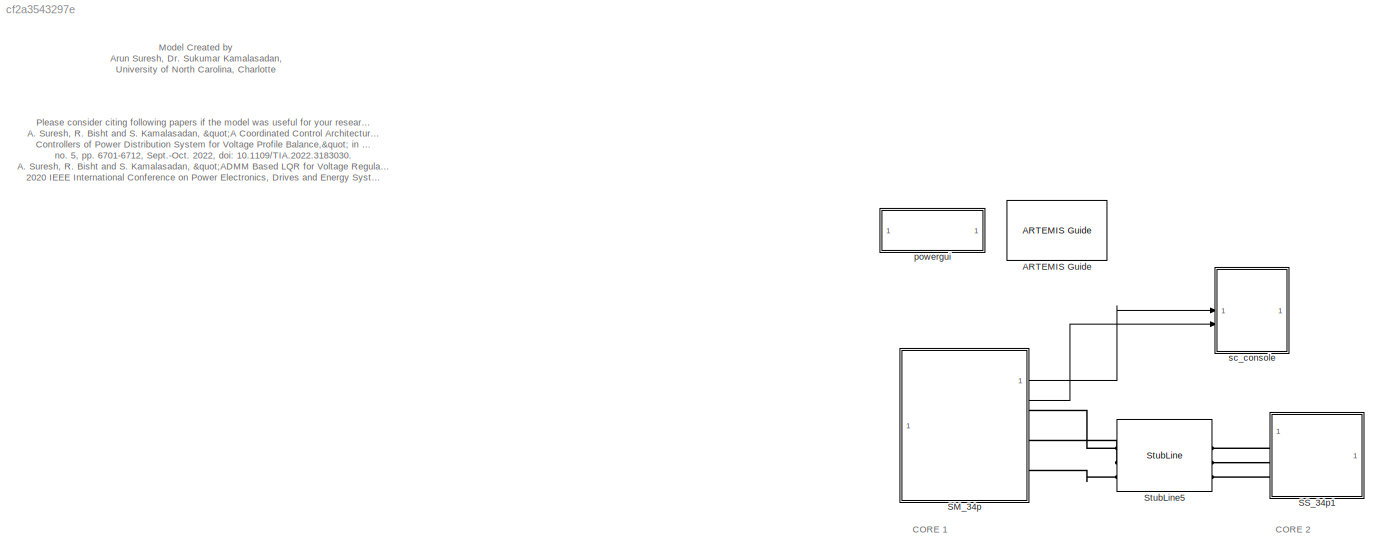
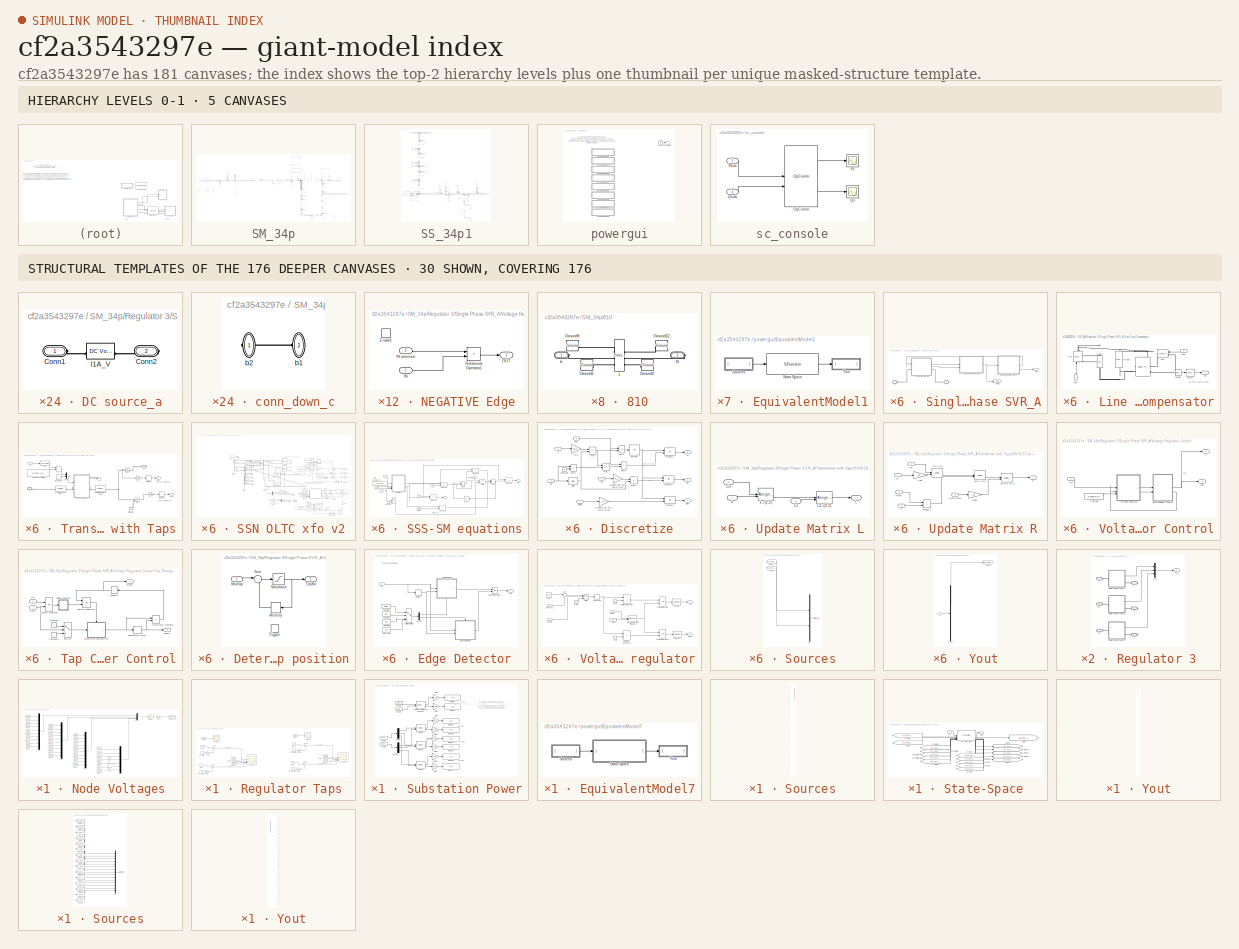
[diagram: thumbnail index - top-2 hierarchy levels (5 canvases) + 30 structural-template representatives of the remaining 176 canvases]
MODEL slx_cf2a3543297e
KIND model
CONFIG AbsTol = auto
CONFIG EnableMultiTasking = off
CONFIG FixedStep = Ts
CONFIG InitFcn = a=1; % Loading Factor\nTs=50e-6;\n% phase to sequence conversion of RXB matrices\nc=1*exp(sqrt(-1)*(120*pi/180));\nT=[1 1 1;1 c*c c;1 c c*c];\nTinv=1/3*[1 1 1;1 c c*c;1 c*c c];\n\n% Simulation data for the IEEE 34 Node Test Feeder model\nmi2km = 1.60934;%  miles to km conversion\nft2km = 0.0003048; % feet to km conversion\nms2F = 1*1e-6/(2*pi*60);% microsiemens to Farads conversion\n\n%% Configuration 300 - s...<+2442ch>
CONFIG MaxStep = 1e-4
CONFIG MinStep = auto
CONFIG RelTol = 1e-4
CONFIG SampleTimeConstraint = Unconstrained
CONFIG SolverName = ode4
CONFIG StartTime = 0.0
CONFIG StopTime = inf
BLOCK [Reference] ARTEMIS Guide  REF=artemis/ARTEMIS/ARTEMIS Guide
  Description = 5.0_z1
  SourceBlock = artemis/ARTEMIS/ARTEMIS Guide
  SourceType = ARTEMISmethode
  Tag = FTSSmethode_opal_4hx0r99
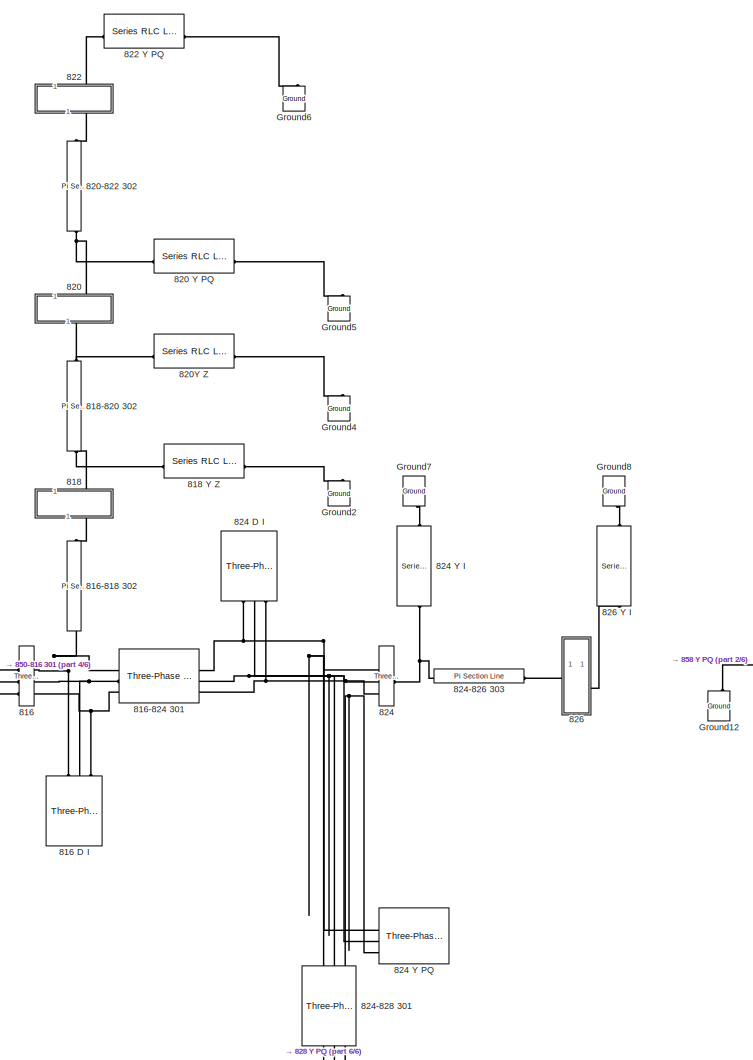
[diagram: SM_34p - part 1/6, top right region]
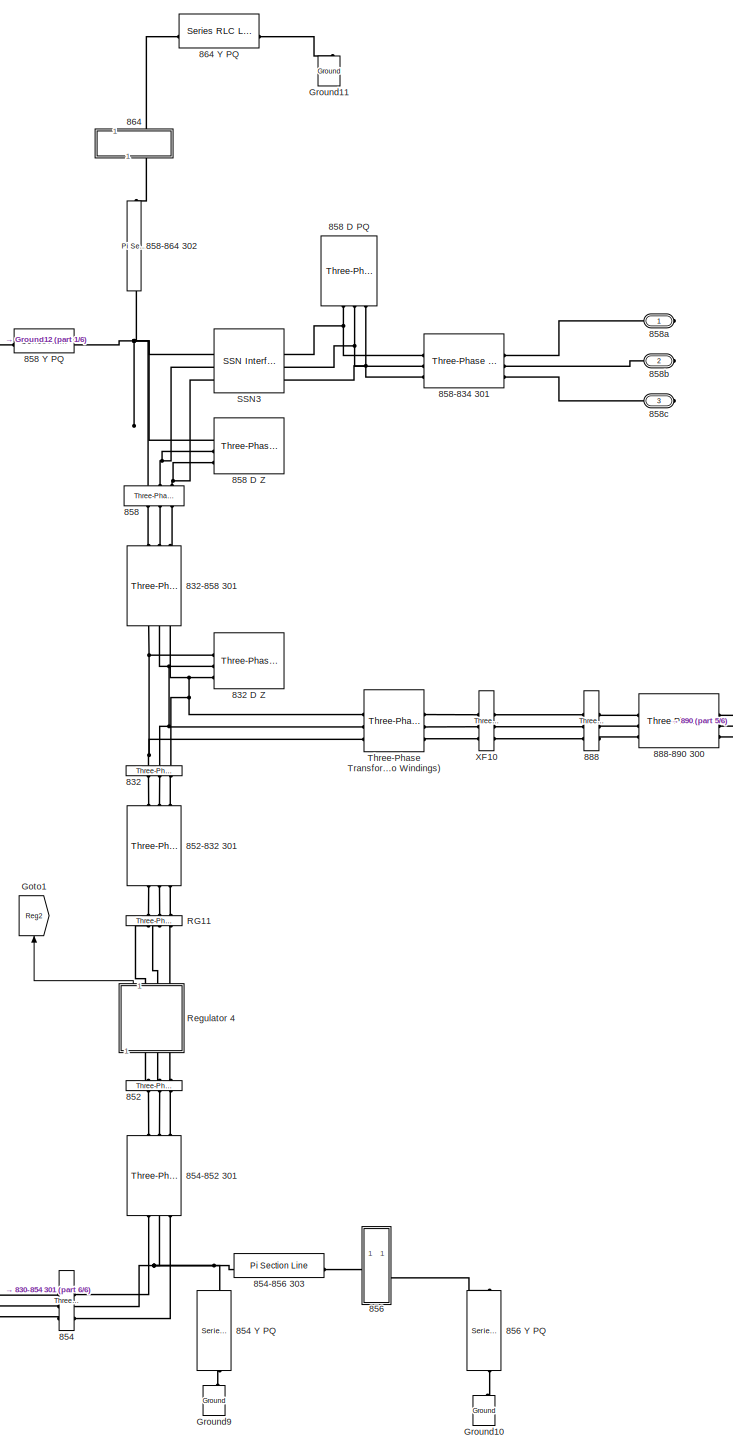
[diagram: SM_34p - part 2/6, right side, full height]
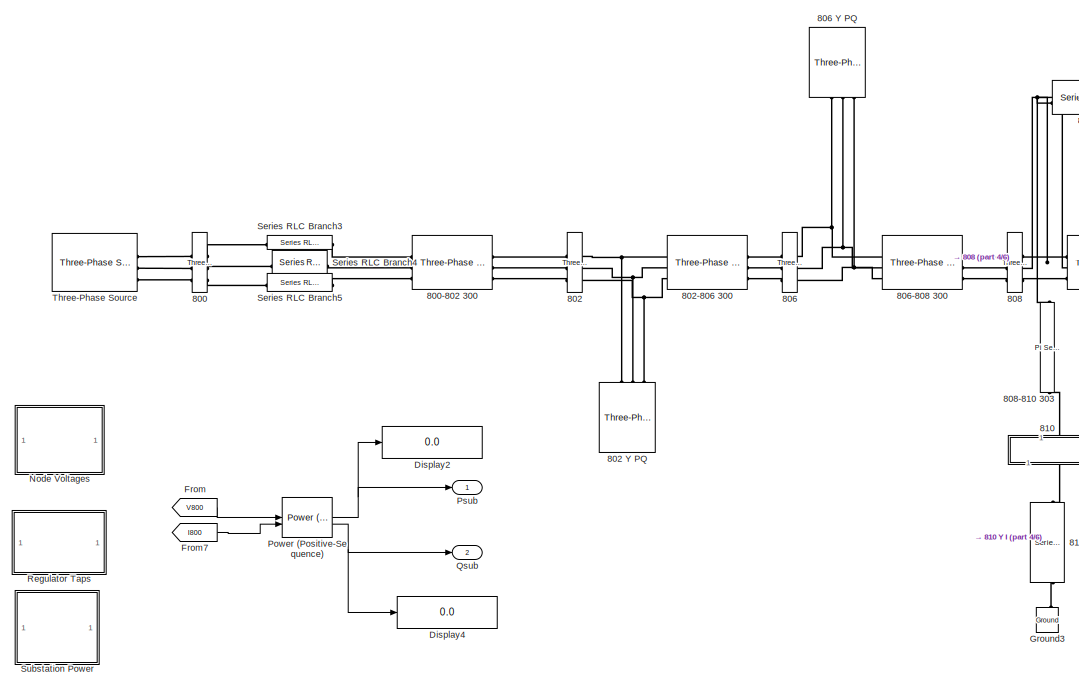
[diagram: SM_34p - part 3/6, middle left region]
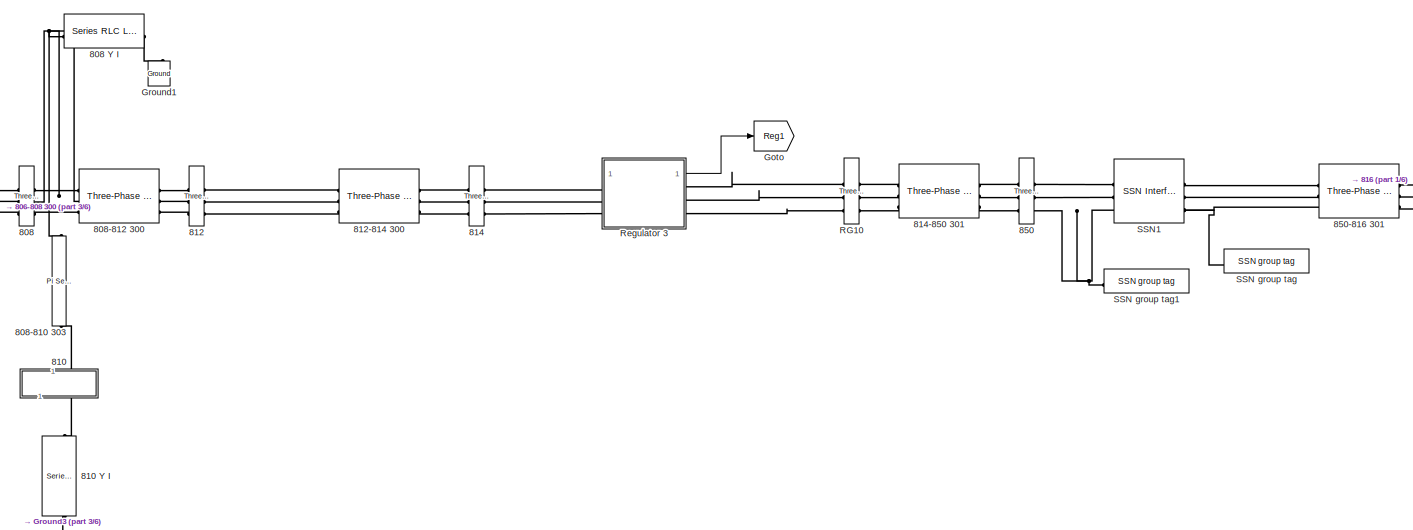
[diagram: SM_34p - part 4/6, central region]
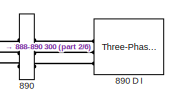
[diagram: SM_34p - part 5/6, middle right region]
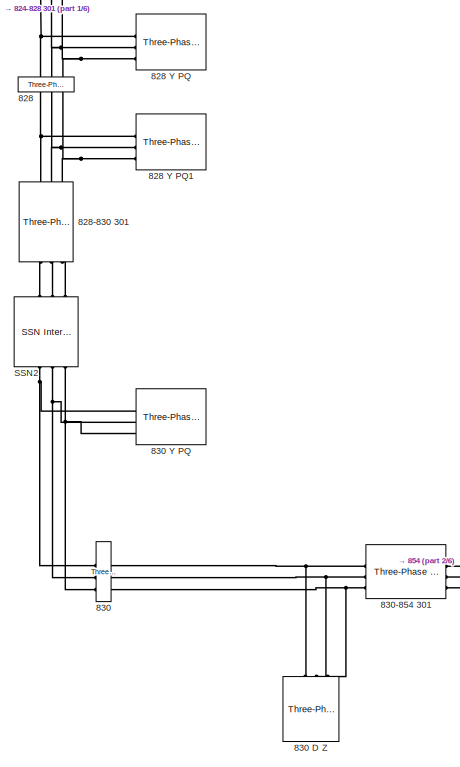
[diagram: SM_34p - part 6/6, bottom right region]
BLOCK [SubSystem] SM_34p
BLOCK [Reference] SM_34p/800  REF=spsThreePhaseVIMeasurementLib/Three-Phase
V-I Measurement
  LibrarySourceBlock = sps_lib/Sensors and Measurements/Three-Phase\nV-I Measurement
  SourceBlock = spsThreePhaseVIMeasurementLib/Three-Phase\nV-I Measurement
  SourceType = Three-Phase VI Measurement
BLOCK [Reference] SM_34p/800-802 300  REF=spsThreePhasePISectionLineLib/Three-Phase
PI Section Line
  AttributesFormatString = \n
  LibrarySourceBlock = sps_lib/Power Grid Elements/Three-Phase\nPI Section Line
  SourceBlock = spsThreePhasePISectionLineLib/Three-Phase\nPI Section Line
  SourceType = Three-Phase PI Section Line
BLOCK [Reference] SM_34p/802  REF=spsThreePhaseVIMeasurementLib/Three-Phase
V-I Measurement
  LibrarySourceBlock = sps_lib/Sensors and Measurements/Three-Phase\nV-I Measurement
  SourceBlock = spsThreePhaseVIMeasurementLib/Three-Phase\nV-I Measurement
  SourceType = Three-Phase VI Measurement
BLOCK [Reference] SM_34p/802 Y PQ  REF=spsThreePhaseSeriesRLCLoadLib/Three-Phase
Series RLC Load
  AttributesFormatString = \n
  LibrarySourceBlock = sps_lib/Passives/Three-Phase\nSeries RLC Load
  NameLocation = right
  SourceBlock = spsThreePhaseSeriesRLCLoadLib/Three-Phase\nSeries RLC Load
  SourceType = Three-Phase Series RLC Load
BLOCK [Reference] SM_34p/802-806 300  REF=spsThreePhasePISectionLineLib/Three-Phase
PI Section Line
  AttributesFormatString = \n
  LibrarySourceBlock = sps_lib/Power Grid Elements/Three-Phase\nPI Section Line
  SourceBlock = spsThreePhasePISectionLineLib/Three-Phase\nPI Section Line
  SourceType = Three-Phase PI Section Line
BLOCK [Reference] SM_34p/806  REF=spsThreePhaseVIMeasurementLib/Three-Phase
V-I Measurement
  LibrarySourceBlock = sps_lib/Sensors and Measurements/Three-Phase\nV-I Measurement
  SourceBlock = spsThreePhaseVIMeasurementLib/Three-Phase\nV-I Measurement
  SourceType = Three-Phase VI Measurement
BLOCK [Reference] SM_34p/806 Y PQ  REF=spsThreePhaseSeriesRLCLoadLib/Three-Phase
Series RLC Load
  AttributesFormatString = \n
  LibrarySourceBlock = sps_lib/Passives/Three-Phase\nSeries RLC Load
  NameLocation = left
  SourceBlock = spsThreePhaseSeriesRLCLoadLib/Three-Phase\nSeries RLC Load
  SourceType = Three-Phase Series RLC Load
BLOCK [Reference] SM_34p/806-808 300  REF=spsThreePhasePISectionLineLib/Three-Phase
PI Section Line
  AttributesFormatString = \n
  LibrarySourceBlock = sps_lib/Power Grid Elements/Three-Phase\nPI Section Line
  SourceBlock = spsThreePhasePISectionLineLib/Three-Phase\nPI Section Line
  SourceType = Three-Phase PI Section Line
BLOCK [Reference] SM_34p/808  REF=spsThreePhaseVIMeasurementLib/Three-Phase
V-I Measurement
  LibrarySourceBlock = sps_lib/Sensors and Measurements/Three-Phase\nV-I Measurement
  SourceBlock = spsThreePhaseVIMeasurementLib/Three-Phase\nV-I Measurement
  SourceType = Three-Phase VI Measurement
BLOCK [Reference] SM_34p/808 Y I  REF=spsSeriesRLCLoadLib/Series RLC Load
  AttributesFormatString = \n
  LibrarySourceBlock = sps_lib/Passives/Series RLC Load
  SourceBlock = spsSeriesRLCLoadLib/Series RLC Load
  SourceType = Series RLC Load
BLOCK [Reference] SM_34p/808-810 303  REF=spsPiSectionLineLib/Pi Section Line
  AttributesFormatString = \n
  LibrarySourceBlock = sps_lib/Power Grid Elements/Pi Section Line
  NameLocation = left
  SourceBlock = spsPiSectionLineLib/Pi Section Line
  SourceType = Pi Section Line
BLOCK [Reference] SM_34p/808-812 300  REF=spsThreePhasePISectionLineLib/Three-Phase
PI Section Line
  AttributesFormatString = \n
  LibrarySourceBlock = sps_lib/Power Grid Elements/Three-Phase\nPI Section Line
  SourceBlock = spsThreePhasePISectionLineLib/Three-Phase\nPI Section Line
  SourceType = Three-Phase PI Section Line
BLOCK [SubSystem] SM_34p/810
  NameLocation = right
BLOCK [Reference] SM_34p/810 Y I  REF=spsSeriesRLCLoadLib/Series RLC Load
  AttributesFormatString = \n
  LibrarySourceBlock = sps_lib/Passives/Series RLC Load
  NameLocation = left
  SourceBlock = spsSeriesRLCLoadLib/Series RLC Load
  SourceType = Series RLC Load
BLOCK [Reference] SM_34p/810/1  REF=spsThreePhaseVIMeasurementLib/Three-Phase
V-I Measurement
  LibrarySourceBlock = sps_lib/Sensors and Measurements/Three-Phase\nV-I Measurement
  NameLocation = top
  SourceBlock = spsThreePhaseVIMeasurementLib/Three-Phase\nV-I Measurement
  SourceType = Three-Phase VI Measurement
BLOCK [PMIOPort] SM_34p/810/B
  Port = 2
  Side = Right
BLOCK [Reference] SM_34p/810/Ground1  REF=spsGroundLib/Ground
  LibrarySourceBlock = sps_lib/Utilities/Ground
  SourceBlock = spsGroundLib/Ground
  SourceType = Ground
BLOCK [Reference] SM_34p/810/Ground12  REF=spsGroundLib/Ground
  LibrarySourceBlock = sps_lib/Utilities/Ground
  NameLocation = top
  SourceBlock = spsGroundLib/Ground
  SourceType = Ground
BLOCK [Reference] SM_34p/810/Ground2  REF=spsGroundLib/Ground
  LibrarySourceBlock = sps_lib/Utilities/Ground
  NameLocation = top
  SourceBlock = spsGroundLib/Ground
  SourceType = Ground
BLOCK [Reference] SM_34p/810/Ground9  REF=spsGroundLib/Ground
  LibrarySourceBlock = sps_lib/Utilities/Ground
  SourceBlock = spsGroundLib/Ground
  SourceType = Ground
BLOCK [PMIOPort] SM_34p/810/b
  Side = Left
BLOCK [Reference] SM_34p/812  REF=spsThreePhaseVIMeasurementLib/Three-Phase
V-I Measurement
  LibrarySourceBlock = sps_lib/Sensors and Measurements/Three-Phase\nV-I Measurement
  SourceBlock = spsThreePhaseVIMeasurementLib/Three-Phase\nV-I Measurement
  SourceType = Three-Phase VI Measurement
BLOCK [Reference] SM_34p/812-814 300  REF=spsThreePhasePISectionLineLib/Three-Phase
PI Section Line
  AttributesFormatString = \n
  LibrarySourceBlock = sps_lib/Power Grid Elements/Three-Phase\nPI Section Line
  SourceBlock = spsThreePhasePISectionLineLib/Three-Phase\nPI Section Line
  SourceType = Three-Phase PI Section Line
BLOCK [Reference] SM_34p/814  REF=spsThreePhaseVIMeasurementLib/Three-Phase
V-I Measurement
  LibrarySourceBlock = sps_lib/Sensors and Measurements/Three-Phase\nV-I Measurement
  SourceBlock = spsThreePhaseVIMeasurementLib/Three-Phase\nV-I Measurement
  SourceType = Three-Phase VI Measurement
BLOCK [Reference] SM_34p/814-850 301  REF=spsThreePhasePISectionLineLib/Three-Phase
PI Section Line
  AttributesFormatString = \n
  LibrarySourceBlock = sps_lib/Power Grid Elements/Three-Phase\nPI Section Line
  SourceBlock = spsThreePhasePISectionLineLib/Three-Phase\nPI Section Line
  SourceType = Three-Phase PI Section Line
BLOCK [Reference] SM_34p/816   REF=spsThreePhaseVIMeasurementLib/Three-Phase
V-I Measurement
  LibrarySourceBlock = sps_lib/Sensors and Measurements/Three-Phase\nV-I Measurement
  SourceBlock = spsThreePhaseVIMeasurementLib/Three-Phase\nV-I Measurement
  SourceType = Three-Phase VI Measurement
BLOCK [Reference] SM_34p/816 D I  REF=spsThreePhaseSeriesRLCLoadLib/Three-Phase
Series RLC Load
  AttributesFormatString = \n
  LibrarySourceBlock = sps_lib/Passives/Three-Phase\nSeries RLC Load
  NameLocation = right
  SourceBlock = spsThreePhaseSeriesRLCLoadLib/Three-Phase\nSeries RLC Load
  SourceType = Three-Phase Series RLC Load
BLOCK [Reference] SM_34p/816-818 302  REF=spsPiSectionLineLib/Pi Section Line
  AttributesFormatString = \n
  LibrarySourceBlock = sps_lib/Power Grid Elements/Pi Section Line
  NameLocation = right
  SourceBlock = spsPiSectionLineLib/Pi Section Line
  SourceType = Pi Section Line
BLOCK [Reference] SM_34p/816-824 301  REF=spsThreePhasePISectionLineLib/Three-Phase
PI Section Line
  AttributesFormatString = \n
  LibrarySourceBlock = sps_lib/Power Grid Elements/Three-Phase\nPI Section Line
  SourceBlock = spsThreePhasePISectionLineLib/Three-Phase\nPI Section Line
  SourceType = Three-Phase PI Section Line
BLOCK [SubSystem] SM_34p/818
  NameLocation = left
BLOCK [Reference] SM_34p/818 Y Z  REF=spsSeriesRLCLoadLib/Series RLC Load
  AttributesFormatString = \n
  LibrarySourceBlock = sps_lib/Passives/Series RLC Load
  SourceBlock = spsSeriesRLCLoadLib/Series RLC Load
  SourceType = Series RLC Load
BLOCK [Reference] SM_34p/818-820 302  REF=spsPiSectionLineLib/Pi Section Line
  AttributesFormatString = \n
  LibrarySourceBlock = sps_lib/Power Grid Elements/Pi Section Line
  NameLocation = right
  SourceBlock = spsPiSectionLineLib/Pi Section Line
  SourceType = Pi Section Line
BLOCK [Reference] SM_34p/818/1  REF=spsThreePhaseVIMeasurementLib/Three-Phase
V-I Measurement
  LibrarySourceBlock = sps_lib/Sensors and Measurements/Three-Phase\nV-I Measurement
  NameLocation = top
  SourceBlock = spsThreePhaseVIMeasurementLib/Three-Phase\nV-I Measurement
  SourceType = Three-Phase VI Measurement
BLOCK [PMIOPort] SM_34p/818/A
  Port = 2
  Side = Right
BLOCK [Reference] SM_34p/818/Ground1  REF=spsGroundLib/Ground
  LibrarySourceBlock = sps_lib/Utilities/Ground
  SourceBlock = spsGroundLib/Ground
  SourceType = Ground
BLOCK [Reference] SM_34p/818/Ground12  REF=spsGroundLib/Ground
  LibrarySourceBlock = sps_lib/Utilities/Ground
  NameLocation = top
  SourceBlock = spsGroundLib/Ground
  SourceType = Ground
BLOCK [Reference] SM_34p/818/Ground2  REF=spsGroundLib/Ground
  LibrarySourceBlock = sps_lib/Utilities/Ground
  NameLocation = top
  SourceBlock = spsGroundLib/Ground
  SourceType = Ground
BLOCK [Reference] SM_34p/818/Ground9  REF=spsGroundLib/Ground
  LibrarySourceBlock = sps_lib/Utilities/Ground
  SourceBlock = spsGroundLib/Ground
  SourceType = Ground
BLOCK [PMIOPort] SM_34p/818/a
  Side = Left
BLOCK [SubSystem] SM_34p/820
  NameLocation = left
BLOCK [Reference] SM_34p/820 Y PQ  REF=spsSeriesRLCLoadLib/Series RLC Load
  AttributesFormatString = \n
  LibrarySourceBlock = sps_lib/Passives/Series RLC Load
  SourceBlock = spsSeriesRLCLoadLib/Series RLC Load
  SourceType = Series RLC Load
BLOCK [Reference] SM_34p/820-822 302  REF=spsPiSectionLineLib/Pi Section Line
  AttributesFormatString = \n
  LibrarySourceBlock = sps_lib/Power Grid Elements/Pi Section Line
  NameLocation = right
  SourceBlock = spsPiSectionLineLib/Pi Section Line
  SourceType = Pi Section Line
BLOCK [Reference] SM_34p/820/1  REF=spsThreePhaseVIMeasurementLib/Three-Phase
V-I Measurement
  LibrarySourceBlock = sps_lib/Sensors and Measurements/Three-Phase\nV-I Measurement
  NameLocation = top
  SourceBlock = spsThreePhaseVIMeasurementLib/Three-Phase\nV-I Measurement
  SourceType = Three-Phase VI Measurement
BLOCK [PMIOPort] SM_34p/820/A
  Port = 2
  Side = Right
BLOCK [Reference] SM_34p/820/Ground1  REF=spsGroundLib/Ground
  LibrarySourceBlock = sps_lib/Utilities/Ground
  SourceBlock = spsGroundLib/Ground
  SourceType = Ground
BLOCK [Reference] SM_34p/820/Ground12  REF=spsGroundLib/Ground
  LibrarySourceBlock = sps_lib/Utilities/Ground
  NameLocation = top
  SourceBlock = spsGroundLib/Ground
  SourceType = Ground
BLOCK [Reference] SM_34p/820/Ground2  REF=spsGroundLib/Ground
  LibrarySourceBlock = sps_lib/Utilities/Ground
  NameLocation = top
  SourceBlock = spsGroundLib/Ground
  SourceType = Ground
BLOCK [Reference] SM_34p/820/Ground9  REF=spsGroundLib/Ground
  LibrarySourceBlock = sps_lib/Utilities/Ground
  SourceBlock = spsGroundLib/Ground
  SourceType = Ground
BLOCK [PMIOPort] SM_34p/820/a
  Side = Left
BLOCK [Reference] SM_34p/820Y Z  REF=spsSeriesRLCLoadLib/Series RLC Load
  AttributesFormatString = \n
  LibrarySourceBlock = sps_lib/Passives/Series RLC Load
  SourceBlock = spsSeriesRLCLoadLib/Series RLC Load
  SourceType = Series RLC Load
BLOCK [SubSystem] SM_34p/822
  NameLocation = left
BLOCK [Reference] SM_34p/822 Y PQ  REF=spsSeriesRLCLoadLib/Series RLC Load
  AttributesFormatString = \n
  LibrarySourceBlock = sps_lib/Passives/Series RLC Load
  SourceBlock = spsSeriesRLCLoadLib/Series RLC Load
  SourceType = Series RLC Load
BLOCK [Reference] SM_34p/822/1  REF=spsThreePhaseVIMeasurementLib/Three-Phase
V-I Measurement
  LibrarySourceBlock = sps_lib/Sensors and Measurements/Three-Phase\nV-I Measurement
  NameLocation = top
  SourceBlock = spsThreePhaseVIMeasurementLib/Three-Phase\nV-I Measurement
  SourceType = Three-Phase VI Measurement
BLOCK [PMIOPort] SM_34p/822/A
  Port = 2
  Side = Right
BLOCK [Reference] SM_34p/822/Ground1  REF=spsGroundLib/Ground
  LibrarySourceBlock = sps_lib/Utilities/Ground
  SourceBlock = spsGroundLib/Ground
  SourceType = Ground
BLOCK [Reference] SM_34p/822/Ground12  REF=spsGroundLib/Ground
  LibrarySourceBlock = sps_lib/Utilities/Ground
  NameLocation = top
  SourceBlock = spsGroundLib/Ground
  SourceType = Ground
BLOCK [Reference] SM_34p/822/Ground2  REF=spsGroundLib/Ground
  LibrarySourceBlock = sps_lib/Utilities/Ground
  NameLocation = top
  SourceBlock = spsGroundLib/Ground
  SourceType = Ground
BLOCK [Reference] SM_34p/822/Ground9  REF=spsGroundLib/Ground
  LibrarySourceBlock = sps_lib/Utilities/Ground
  SourceBlock = spsGroundLib/Ground
  SourceType = Ground
BLOCK [PMIOPort] SM_34p/822/a
  Side = Left
BLOCK [Reference] SM_34p/824   REF=spsThreePhaseVIMeasurementLib/Three-Phase
V-I Measurement
  LibrarySourceBlock = sps_lib/Sensors and Measurements/Three-Phase\nV-I Measurement
  SourceBlock = spsThreePhaseVIMeasurementLib/Three-Phase\nV-I Measurement
  SourceType = Three-Phase VI Measurement
BLOCK [Reference] SM_34p/824 D I  REF=spsThreePhaseSeriesRLCLoadLib/Three-Phase
Series RLC Load
  AttributesFormatString = \n
  LibrarySourceBlock = sps_lib/Passives/Three-Phase\nSeries RLC Load
  NameLocation = left
  SourceBlock = spsThreePhaseSeriesRLCLoadLib/Three-Phase\nSeries RLC Load
  SourceType = Three-Phase Series RLC Load
BLOCK [Reference] SM_34p/824 Y I  REF=spsSeriesRLCLoadLib/Series RLC Load
  AttributesFormatString = \n
  LibrarySourceBlock = sps_lib/Passives/Series RLC Load
  NameLocation = right
  SourceBlock = spsSeriesRLCLoadLib/Series RLC Load
  SourceType = Series RLC Load
BLOCK [Reference] SM_34p/824 Y PQ  REF=spsThreePhaseSeriesRLCLoadLib/Three-Phase
Series RLC Load
  AttributesFormatString = \n
  LibrarySourceBlock = sps_lib/Passives/Three-Phase\nSeries RLC Load
  NameLocation = top
  SourceBlock = spsThreePhaseSeriesRLCLoadLib/Three-Phase\nSeries RLC Load
  SourceType = Three-Phase Series RLC Load
BLOCK [Reference] SM_34p/824-826 303  REF=spsPiSectionLineLib/Pi Section Line
  AttributesFormatString = \n
  LibrarySourceBlock = sps_lib/Power Grid Elements/Pi Section Line
  SourceBlock = spsPiSectionLineLib/Pi Section Line
  SourceType = Pi Section Line
BLOCK [Reference] SM_34p/824-828 301  REF=spsThreePhasePISectionLineLib/Three-Phase
PI Section Line
  AttributesFormatString = \n
  LibrarySourceBlock = sps_lib/Power Grid Elements/Three-Phase\nPI Section Line
  NameLocation = left
  SourceBlock = spsThreePhasePISectionLineLib/Three-Phase\nPI Section Line
  SourceType = Three-Phase PI Section Line
BLOCK [SubSystem] SM_34p/826
  NameLocation = top
BLOCK [Reference] SM_34p/826 Y I  REF=spsSeriesRLCLoadLib/Series RLC Load
  AttributesFormatString = \n
  LibrarySourceBlock = sps_lib/Passives/Series RLC Load
  NameLocation = right
  SourceBlock = spsSeriesRLCLoadLib/Series RLC Load
  SourceType = Series RLC Load
BLOCK [Reference] SM_34p/826/1  REF=spsThreePhaseVIMeasurementLib/Three-Phase
V-I Measurement
  LibrarySourceBlock = sps_lib/Sensors and Measurements/Three-Phase\nV-I Measurement
  NameLocation = top
  SourceBlock = spsThreePhaseVIMeasurementLib/Three-Phase\nV-I Measurement
  SourceType = Three-Phase VI Measurement
BLOCK [PMIOPort] SM_34p/826/B
  Port = 2
  Side = Right
BLOCK [Reference] SM_34p/826/Ground1  REF=spsGroundLib/Ground
  LibrarySourceBlock = sps_lib/Utilities/Ground
  SourceBlock = spsGroundLib/Ground
  SourceType = Ground
BLOCK [Reference] SM_34p/826/Ground12  REF=spsGroundLib/Ground
  LibrarySourceBlock = sps_lib/Utilities/Ground
  NameLocation = top
  SourceBlock = spsGroundLib/Ground
  SourceType = Ground
BLOCK [Reference] SM_34p/826/Ground2  REF=spsGroundLib/Ground
  LibrarySourceBlock = sps_lib/Utilities/Ground
  NameLocation = top
  SourceBlock = spsGroundLib/Ground
  SourceType = Ground
BLOCK [Reference] SM_34p/826/Ground9  REF=spsGroundLib/Ground
  LibrarySourceBlock = sps_lib/Utilities/Ground
  SourceBlock = spsGroundLib/Ground
  SourceType = Ground
BLOCK [PMIOPort] SM_34p/826/b
  Side = Left
BLOCK [Reference] SM_34p/828  REF=spsThreePhaseVIMeasurementLib/Three-Phase
V-I Measurement
  LibrarySourceBlock = sps_lib/Sensors and Measurements/Three-Phase\nV-I Measurement
  NameLocation = left
  SourceBlock = spsThreePhaseVIMeasurementLib/Three-Phase\nV-I Measurement
  SourceType = Three-Phase VI Measurement
BLOCK [Reference] SM_34p/828 Y PQ  REF=spsThreePhaseSeriesRLCLoadLib/Three-Phase
Series RLC Load
  AttributesFormatString = \n
  LibrarySourceBlock = sps_lib/Passives/Three-Phase\nSeries RLC Load
  NameLocation = top
  SourceBlock = spsThreePhaseSeriesRLCLoadLib/Three-Phase\nSeries RLC Load
  SourceType = Three-Phase Series RLC Load
BLOCK [Reference] SM_34p/828 Y PQ1  REF=spsThreePhaseSeriesRLCLoadLib/Three-Phase
Series RLC Load
  AttributesFormatString = \n
  LibrarySourceBlock = sps_lib/Passives/Three-Phase\nSeries RLC Load
  NameLocation = top
  SourceBlock = spsThreePhaseSeriesRLCLoadLib/Three-Phase\nSeries RLC Load
  SourceType = Three-Phase Series RLC Load
BLOCK [Reference] SM_34p/828-830 301  REF=spsThreePhasePISectionLineLib/Three-Phase
PI Section Line
  AttributesFormatString = \n
  LibrarySourceBlock = sps_lib/Power Grid Elements/Three-Phase\nPI Section Line
  NameLocation = left
  SourceBlock = spsThreePhasePISectionLineLib/Three-Phase\nPI Section Line
  SourceType = Three-Phase PI Section Line
BLOCK [Reference] SM_34p/830  REF=spsThreePhaseVIMeasurementLib/Three-Phase
V-I Measurement
  LibrarySourceBlock = sps_lib/Sensors and Measurements/Three-Phase\nV-I Measurement
  SourceBlock = spsThreePhaseVIMeasurementLib/Three-Phase\nV-I Measurement
  SourceType = Three-Phase VI Measurement
BLOCK [Reference] SM_34p/830 D Z  REF=spsThreePhaseSeriesRLCLoadLib/Three-Phase
Series RLC Load
  AttributesFormatString = \n
  LibrarySourceBlock = sps_lib/Passives/Three-Phase\nSeries RLC Load
  NameLocation = right
  SourceBlock = spsThreePhaseSeriesRLCLoadLib/Three-Phase\nSeries RLC Load
  SourceType = Three-Phase Series RLC Load
BLOCK [Reference] SM_34p/830 Y PQ  REF=spsThreePhaseSeriesRLCLoadLib/Three-Phase
Series RLC Load
  AttributesFormatString = \n
  LibrarySourceBlock = sps_lib/Passives/Three-Phase\nSeries RLC Load
  NameLocation = top
  SourceBlock = spsThreePhaseSeriesRLCLoadLib/Three-Phase\nSeries RLC Load
  SourceType = Three-Phase Series RLC Load
BLOCK [Reference] SM_34p/830-854 301  REF=spsThreePhasePISectionLineLib/Three-Phase
PI Section Line
  AttributesFormatString = \n
  LibrarySourceBlock = sps_lib/Power Grid Elements/Three-Phase\nPI Section Line
  SourceBlock = spsThreePhasePISectionLineLib/Three-Phase\nPI Section Line
  SourceType = Three-Phase PI Section Line
BLOCK [Reference] SM_34p/832  REF=spsThreePhaseVIMeasurementLib/Three-Phase
V-I Measurement
  LibrarySourceBlock = sps_lib/Sensors and Measurements/Three-Phase\nV-I Measurement
  NameLocation = right
  SourceBlock = spsThreePhaseVIMeasurementLib/Three-Phase\nV-I Measurement
  SourceType = Three-Phase VI Measurement
BLOCK [Reference] SM_34p/832 D Z  REF=spsThreePhaseSeriesRLCLoadLib/Three-Phase
Series RLC Load
  AttributesFormatString = \n
  LibrarySourceBlock = sps_lib/Passives/Three-Phase\nSeries RLC Load
  NameLocation = top
  SourceBlock = spsThreePhaseSeriesRLCLoadLib/Three-Phase\nSeries RLC Load
  SourceType = Three-Phase Series RLC Load
BLOCK [Reference] SM_34p/832-858 301  REF=spsThreePhasePISectionLineLib/Three-Phase
PI Section Line
  AttributesFormatString = \n
  LibrarySourceBlock = sps_lib/Power Grid Elements/Three-Phase\nPI Section Line
  NameLocation = right
  SourceBlock = spsThreePhasePISectionLineLib/Three-Phase\nPI Section Line
  SourceType = Three-Phase PI Section Line
BLOCK [Reference] SM_34p/850  REF=spsThreePhaseVIMeasurementLib/Three-Phase
V-I Measurement
  LibrarySourceBlock = sps_lib/Sensors and Measurements/Three-Phase\nV-I Measurement
  SourceBlock = spsThreePhaseVIMeasurementLib/Three-Phase\nV-I Measurement
  SourceType = Three-Phase VI Measurement
BLOCK [Reference] SM_34p/850-816 301  REF=spsThreePhasePISectionLineLib/Three-Phase
PI Section Line
  AttributesFormatString = \n
  LibrarySourceBlock = sps_lib/Power Grid Elements/Three-Phase\nPI Section Line
  SourceBlock = spsThreePhasePISectionLineLib/Three-Phase\nPI Section Line
  SourceType = Three-Phase PI Section Line
BLOCK [Reference] SM_34p/852   REF=spsThreePhaseVIMeasurementLib/Three-Phase
V-I Measurement
  LibrarySourceBlock = sps_lib/Sensors and Measurements/Three-Phase\nV-I Measurement
  NameLocation = right
  SourceBlock = spsThreePhaseVIMeasurementLib/Three-Phase\nV-I Measurement
  SourceType = Three-Phase VI Measurement
BLOCK [Reference] SM_34p/852-832 301  REF=spsThreePhasePISectionLineLib/Three-Phase
PI Section Line
  AttributesFormatString = \n
  LibrarySourceBlock = sps_lib/Power Grid Elements/Three-Phase\nPI Section Line
  NameLocation = right
  SourceBlock = spsThreePhasePISectionLineLib/Three-Phase\nPI Section Line
  SourceType = Three-Phase PI Section Line
BLOCK [Reference] SM_34p/854  REF=spsThreePhaseVIMeasurementLib/Three-Phase
V-I Measurement
  LibrarySourceBlock = sps_lib/Sensors and Measurements/Three-Phase\nV-I Measurement
  SourceBlock = spsThreePhaseVIMeasurementLib/Three-Phase\nV-I Measurement
  SourceType = Three-Phase VI Measurement
BLOCK [Reference] SM_34p/854 Y PQ  REF=spsSeriesRLCLoadLib/Series RLC Load
  AttributesFormatString = \n
  LibrarySourceBlock = sps_lib/Passives/Series RLC Load
  NameLocation = left
  SourceBlock = spsSeriesRLCLoadLib/Series RLC Load
  SourceType = Series RLC Load
BLOCK [Reference] SM_34p/854-852 301  REF=spsThreePhasePISectionLineLib/Three-Phase
PI Section Line
  AttributesFormatString = \n
  LibrarySourceBlock = sps_lib/Power Grid Elements/Three-Phase\nPI Section Line
  NameLocation = right
  SourceBlock = spsThreePhasePISectionLineLib/Three-Phase\nPI Section Line
  SourceType = Three-Phase PI Section Line
BLOCK [Reference] SM_34p/854-856 303  REF=spsPiSectionLineLib/Pi Section Line
  AttributesFormatString = \n
  LibrarySourceBlock = sps_lib/Power Grid Elements/Pi Section Line
  SourceBlock = spsPiSectionLineLib/Pi Section Line
  SourceType = Pi Section Line
BLOCK [SubSystem] SM_34p/856
  NameLocation = top
BLOCK [Reference] SM_34p/856 Y PQ  REF=spsSeriesRLCLoadLib/Series RLC Load
  AttributesFormatString = \n
  LibrarySourceBlock = sps_lib/Passives/Series RLC Load
  NameLocation = left
  SourceBlock = spsSeriesRLCLoadLib/Series RLC Load
  SourceType = Series RLC Load
BLOCK [Reference] SM_34p/856/1  REF=spsThreePhaseVIMeasurementLib/Three-Phase
V-I Measurement
  LibrarySourceBlock = sps_lib/Sensors and Measurements/Three-Phase\nV-I Measurement
  SourceBlock = spsThreePhaseVIMeasurementLib/Three-Phase\nV-I Measurement
  SourceType = Three-Phase VI Measurement
BLOCK [PMIOPort] SM_34p/856/B
  NameLocation = top
  Port = 2
  Side = Right
BLOCK [Reference] SM_34p/856/Ground1  REF=spsGroundLib/Ground
  LibrarySourceBlock = sps_lib/Utilities/Ground
  NameLocation = top
  SourceBlock = spsGroundLib/Ground
  SourceType = Ground
BLOCK [Reference] SM_34p/856/Ground12  REF=spsGroundLib/Ground
  LibrarySourceBlock = sps_lib/Utilities/Ground
  SourceBlock = spsGroundLib/Ground
  SourceType = Ground
BLOCK [Reference] SM_34p/856/Ground2  REF=spsGroundLib/Ground
  LibrarySourceBlock = sps_lib/Utilities/Ground
  SourceBlock = spsGroundLib/Ground
  SourceType = Ground
BLOCK [Reference] SM_34p/856/Ground9  REF=spsGroundLib/Ground
  LibrarySourceBlock = sps_lib/Utilities/Ground
  NameLocation = top
  SourceBlock = spsGroundLib/Ground
  SourceType = Ground
BLOCK [PMIOPort] SM_34p/856/b
  NameLocation = top
  Side = Left
BLOCK [Reference] SM_34p/858  REF=spsThreePhaseVIMeasurementLib/Three-Phase
V-I Measurement
  LibrarySourceBlock = sps_lib/Sensors and Measurements/Three-Phase\nV-I Measurement
  NameLocation = right
  SourceBlock = spsThreePhaseVIMeasurementLib/Three-Phase\nV-I Measurement
  SourceType = Three-Phase VI Measurement
BLOCK [Reference] SM_34p/858 D PQ  REF=spsThreePhaseSeriesRLCLoadLib/Three-Phase
Series RLC Load
  AttributesFormatString = \n
  LibrarySourceBlock = sps_lib/Passives/Three-Phase\nSeries RLC Load
  NameLocation = left
  SourceBlock = spsThreePhaseSeriesRLCLoadLib/Three-Phase\nSeries RLC Load
  SourceType = Three-Phase Series RLC Load
BLOCK [Reference] SM_34p/858 D Z  REF=spsThreePhaseSeriesRLCLoadLib/Three-Phase
Series RLC Load
  AttributesFormatString = \n
  LibrarySourceBlock = sps_lib/Passives/Three-Phase\nSeries RLC Load
  NameLocation = top
  SourceBlock = spsThreePhaseSeriesRLCLoadLib/Three-Phase\nSeries RLC Load
  SourceType = Three-Phase Series RLC Load
BLOCK [Reference] SM_34p/858 Y PQ  REF=spsSeriesRLCLoadLib/Series RLC Load
  AttributesFormatString = \n
  LibrarySourceBlock = sps_lib/Passives/Series RLC Load
  NameLocation = top
  SourceBlock = spsSeriesRLCLoadLib/Series RLC Load
  SourceType = Series RLC Load
BLOCK [Reference] SM_34p/858-834 301  REF=spsThreePhasePISectionLineLib/Three-Phase
PI Section Line
  AttributesFormatString = \n
  LibrarySourceBlock = sps_lib/Power Grid Elements/Three-Phase\nPI Section Line
  SourceBlock = spsThreePhasePISectionLineLib/Three-Phase\nPI Section Line
  SourceType = Three-Phase PI Section Line
BLOCK [Reference] SM_34p/858-864 302  REF=spsPiSectionLineLib/Pi Section Line
  AttributesFormatString = \n
  LibrarySourceBlock = sps_lib/Power Grid Elements/Pi Section Line
  NameLocation = right
  SourceBlock = spsPiSectionLineLib/Pi Section Line
  SourceType = Pi Section Line
BLOCK [PMIOPort] SM_34p/858a
  Side = Right
BLOCK [PMIOPort] SM_34p/858b
  Port = 2
  Side = Right
BLOCK [PMIOPort] SM_34p/858c
  Port = 3
  Side = Right
BLOCK [SubSystem] SM_34p/864
  NameLocation = left
BLOCK [Reference] SM_34p/864 Y PQ  REF=spsSeriesRLCLoadLib/Series RLC Load
  AttributesFormatString = \n
  LibrarySourceBlock = sps_lib/Passives/Series RLC Load
  SourceBlock = spsSeriesRLCLoadLib/Series RLC Load
  SourceType = Series RLC Load
BLOCK [Reference] SM_34p/864/1  REF=spsThreePhaseVIMeasurementLib/Three-Phase
V-I Measurement
  LibrarySourceBlock = sps_lib/Sensors and Measurements/Three-Phase\nV-I Measurement
  NameLocation = top
  SourceBlock = spsThreePhaseVIMeasurementLib/Three-Phase\nV-I Measurement
  SourceType = Three-Phase VI Measurement
BLOCK [PMIOPort] SM_34p/864/A
  Port = 2
  Side = Right
BLOCK [Reference] SM_34p/864/Ground1  REF=spsGroundLib/Ground
  LibrarySourceBlock = sps_lib/Utilities/Ground
  SourceBlock = spsGroundLib/Ground
  SourceType = Ground
BLOCK [Reference] SM_34p/864/Ground12  REF=spsGroundLib/Ground
  LibrarySourceBlock = sps_lib/Utilities/Ground
  NameLocation = top
  SourceBlock = spsGroundLib/Ground
  SourceType = Ground
BLOCK [Reference] SM_34p/864/Ground2  REF=spsGroundLib/Ground
  LibrarySourceBlock = sps_lib/Utilities/Ground
  NameLocation = top
  SourceBlock = spsGroundLib/Ground
  SourceType = Ground
BLOCK [Reference] SM_34p/864/Ground9  REF=spsGroundLib/Ground
  LibrarySourceBlock = sps_lib/Utilities/Ground
  SourceBlock = spsGroundLib/Ground
  SourceType = Ground
BLOCK [PMIOPort] SM_34p/864/a
  Side = Left
BLOCK [Reference] SM_34p/888  REF=spsThreePhaseVIMeasurementLib/Three-Phase
V-I Measurement
  LibrarySourceBlock = sps_lib/Sensors and Measurements/Three-Phase\nV-I Measurement
  SourceBlock = spsThreePhaseVIMeasurementLib/Three-Phase\nV-I Measurement
  SourceType = Three-Phase VI Measurement
BLOCK [Reference] SM_34p/888-890 300  REF=spsThreePhasePISectionLineLib/Three-Phase
PI Section Line
  AttributesFormatString = \n
  LibrarySourceBlock = sps_lib/Power Grid Elements/Three-Phase\nPI Section Line
  SourceBlock = spsThreePhasePISectionLineLib/Three-Phase\nPI Section Line
  SourceType = Three-Phase PI Section Line
BLOCK [Reference] SM_34p/890  REF=spsThreePhaseVIMeasurementLib/Three-Phase
V-I Measurement
  LibrarySourceBlock = sps_lib/Sensors and Measurements/Three-Phase\nV-I Measurement
  SourceBlock = spsThreePhaseVIMeasurementLib/Three-Phase\nV-I Measurement
  SourceType = Three-Phase VI Measurement
BLOCK [Reference] SM_34p/890 D I  REF=spsThreePhaseSeriesRLCLoadLib/Three-Phase
Series RLC Load
  AttributesFormatString = \n
  LibrarySourceBlock = sps_lib/Passives/Three-Phase\nSeries RLC Load
  NameLocation = top
  SourceBlock = spsThreePhaseSeriesRLCLoadLib/Three-Phase\nSeries RLC Load
  SourceType = Three-Phase Series RLC Load
BLOCK [Display] SM_34p/Display2
  Decimation = 1
BLOCK [Display] SM_34p/Display4
  Decimation = 1
BLOCK [From] SM_34p/From
  GotoTag = V800
  TagVisibility = global
BLOCK [From] SM_34p/From7
  GotoTag = I800
  TagVisibility = global
BLOCK [Goto] SM_34p/Goto
  GotoTag = Reg1
  TagVisibility = global
BLOCK [Goto] SM_34p/Goto1
  GotoTag = Reg2
  NameLocation = right
  TagVisibility = global
BLOCK [Reference] SM_34p/Ground1  REF=spsGroundLib/Ground
  LibrarySourceBlock = sps_lib/Utilities/Ground
  NameLocation = right
  SourceBlock = spsGroundLib/Ground
  SourceType = Ground
BLOCK [Reference] SM_34p/Ground10  REF=spsGroundLib/Ground
  LibrarySourceBlock = sps_lib/Utilities/Ground
  NameLocation = right
  SourceBlock = spsGroundLib/Ground
  SourceType = Ground
BLOCK [Reference] SM_34p/Ground11  REF=spsGroundLib/Ground
  LibrarySourceBlock = sps_lib/Utilities/Ground
  NameLocation = right
  SourceBlock = spsGroundLib/Ground
  SourceType = Ground
BLOCK [Reference] SM_34p/Ground12  REF=spsGroundLib/Ground
  LibrarySourceBlock = sps_lib/Utilities/Ground
  NameLocation = right
  SourceBlock = spsGroundLib/Ground
  SourceType = Ground
BLOCK [Reference] SM_34p/Ground2  REF=spsGroundLib/Ground
  LibrarySourceBlock = sps_lib/Utilities/Ground
  NameLocation = right
  SourceBlock = spsGroundLib/Ground
  SourceType = Ground
BLOCK [Reference] SM_34p/Ground3  REF=spsGroundLib/Ground
  LibrarySourceBlock = sps_lib/Utilities/Ground
  NameLocation = right
  SourceBlock = spsGroundLib/Ground
  SourceType = Ground
BLOCK [Reference] SM_34p/Ground4  REF=spsGroundLib/Ground
  LibrarySourceBlock = sps_lib/Utilities/Ground
  NameLocation = right
  SourceBlock = spsGroundLib/Ground
  SourceType = Ground
BLOCK [Reference] SM_34p/Ground5  REF=spsGroundLib/Ground
  LibrarySourceBlock = sps_lib/Utilities/Ground
  NameLocation = right
  SourceBlock = spsGroundLib/Ground
  SourceType = Ground
BLOCK [Reference] SM_34p/Ground6  REF=spsGroundLib/Ground
  LibrarySourceBlock = sps_lib/Utilities/Ground
  NameLocation = right
  SourceBlock = spsGroundLib/Ground
  SourceType = Ground
BLOCK [Reference] SM_34p/Ground7  REF=spsGroundLib/Ground
  LibrarySourceBlock = sps_lib/Utilities/Ground
  NameLocation = left
  SourceBlock = spsGroundLib/Ground
  SourceType = Ground
BLOCK [Reference] SM_34p/Ground8  REF=spsGroundLib/Ground
  LibrarySourceBlock = sps_lib/Utilities/Ground
  NameLocation = left
  SourceBlock = spsGroundLib/Ground
  SourceType = Ground
BLOCK [Reference] SM_34p/Ground9  REF=spsGroundLib/Ground
  LibrarySourceBlock = sps_lib/Utilities/Ground
  NameLocation = right
  SourceBlock = spsGroundLib/Ground
  SourceType = Ground
BLOCK [SubSystem] SM_34p/Node Voltages
  Commented = on
BLOCK [From] SM_34p/Node Voltages/From1
  GotoTag = V802
  TagVisibility = global
BLOCK [From] SM_34p/Node Voltages/From10
  GotoTag = V816
  TagVisibility = global
BLOCK [From] SM_34p/Node Voltages/From11
  GotoTag = V820
  TagVisibility = global
BLOCK [From] SM_34p/Node Voltages/From12
  GotoTag = V824
  TagVisibility = global
BLOCK [From] SM_34p/Node Voltages/From13
  GotoTag = V822
  TagVisibility = global
BLOCK [From] SM_34p/Node Voltages/From14
  GotoTag = V828
  TagVisibility = global
BLOCK [From] SM_34p/Node Voltages/From15
  GotoTag = V854
  TagVisibility = global
BLOCK [From] SM_34p/Node Voltages/From16
  GotoTag = V830
  TagVisibility = global
BLOCK [From] SM_34p/Node Voltages/From17
  GotoTag = V826
  TagVisibility = global
BLOCK [From] SM_34p/Node Voltages/From18
  GotoTag = RG11
  TagVisibility = global
BLOCK [From] SM_34p/Node Voltages/From19
  GotoTag = V852
  TagVisibility = global
BLOCK [From] SM_34p/Node Voltages/From2
  GotoTag = V806
  TagVisibility = global
BLOCK [From] SM_34p/Node Voltages/From20
  GotoTag = V858
  TagVisibility = global
BLOCK [From] SM_34p/Node Voltages/From21
  GotoTag = V842
  TagVisibility = global
BLOCK [From] SM_34p/Node Voltages/From22
  GotoTag = V834
  TagVisibility = global
BLOCK [From] SM_34p/Node Voltages/From23
  GotoTag = V846
  TagVisibility = global
BLOCK [From] SM_34p/Node Voltages/From24
  GotoTag = V860
  TagVisibility = global
BLOCK [From] SM_34p/Node Voltages/From25
  GotoTag = V848
  TagVisibility = global
BLOCK [From] SM_34p/Node Voltages/From26
  GotoTag = V844
  TagVisibility = global
BLOCK [From] SM_34p/Node Voltages/From27
  GotoTag = V840
  TagVisibility = global
BLOCK [From] SM_34p/Node Voltages/From28
  GotoTag = V836
  TagVisibility = global
BLOCK [From] SM_34p/Node Voltages/From29
  GotoTag = V832
  TagVisibility = global
BLOCK [From] SM_34p/Node Voltages/From3
  GotoTag = V808
  TagVisibility = global
BLOCK [From] SM_34p/Node Voltages/From30
  GotoTag = V838
  TagVisibility = global
BLOCK [From] SM_34p/Node Voltages/From31
  GotoTag = XF10
  TagVisibility = global
BLOCK [From] SM_34p/Node Voltages/From32
  GotoTag = V864
  TagVisibility = global
BLOCK [From] SM_34p/Node Voltages/From33
  GotoTag = V890
  TagVisibility = global
BLOCK [From] SM_34p/Node Voltages/From35
  GotoTag = V856
  TagVisibility = global
BLOCK [From] SM_34p/Node Voltages/From36
  GotoTag = V888
  TagVisibility = global
BLOCK [From] SM_34p/Node Voltages/From39
  GotoTag = V862
  TagVisibility = global
BLOCK [From] SM_34p/Node Voltages/From4
  GotoTag = V810
  TagVisibility = global
BLOCK [From] SM_34p/Node Voltages/From41
  GotoTag = V818
  TagVisibility = global
BLOCK [From] SM_34p/Node Voltages/From5
  GotoTag = V812
  TagVisibility = global
BLOCK [From] SM_34p/Node Voltages/From6
  GotoTag = V800
  TagVisibility = global
BLOCK [From] SM_34p/Node Voltages/From7
  GotoTag = V814
  TagVisibility = global
BLOCK [From] SM_34p/Node Voltages/From8
  GotoTag = RG10
  TagVisibility = global
BLOCK [From] SM_34p/Node Voltages/From9
  GotoTag = V850
  TagVisibility = global
BLOCK [Gain] SM_34p/Node Voltages/Gain1
  Gain = 24900/4160
BLOCK [Gain] SM_34p/Node Voltages/Gain2
  Gain = 24900/4160
BLOCK [Gain] SM_34p/Node Voltages/Gain3
  Gain = 1/(24900/sqrt(3))
BLOCK [Gain] SM_34p/Node Voltages/Gain4
  Gain = 24900/4160
BLOCK [Mux] SM_34p/Node Voltages/Mux1
  DisplayOption = bar
  Inputs = 10
BLOCK [Mux] SM_34p/Node Voltages/Mux2
  DisplayOption = bar
BLOCK [Mux] SM_34p/Node Voltages/Mux3
  DisplayOption = bar
  Inputs = 10
BLOCK [Mux] SM_34p/Node Voltages/Mux4
  DisplayOption = bar
  Inputs = 10
BLOCK [Mux] SM_34p/Node Voltages/Mux5
  DisplayOption = bar
  Inputs = 7
BLOCK [Reference] SM_34p/Node Voltages/RMS7  REF=spsRMSLib/RMS
  LibrarySourceBlock = sps_lib/Sensors and Measurements/RMS
  SourceBlock = spsRMSLib/RMS
  SourceType = RMS
BLOCK [ToWorkspace] SM_34p/Node Voltages/To Workspace
  FixptAsFi = on
  MaxDataPoints = inf
  SampleTime = 0.1
  VariableName = V34
BLOCK [Reference] SM_34p/Power (Positive-Sequence)  REF=spsPowerPositiveSequenceLib/Power
(Positive-Sequence)
  LibrarySourceBlock = sps_lib/Sensors and Measurements/Power\n(Positive-Sequence)
  SourceBlock = spsPowerPositiveSequenceLib/Power\n(Positive-Sequence)
  SourceType = Power (Positive-Sequence)
BLOCK [Outport] SM_34p/Psub
BLOCK [Outport] SM_34p/Qsub
  Port = 2
BLOCK [Reference] SM_34p/RG10  REF=spsThreePhaseVIMeasurementLib/Three-Phase
V-I Measurement
  LibrarySourceBlock = sps_lib/Sensors and Measurements/Three-Phase\nV-I Measurement
  SourceBlock = spsThreePhaseVIMeasurementLib/Three-Phase\nV-I Measurement
  SourceType = Three-Phase VI Measurement
BLOCK [Reference] SM_34p/RG11  REF=spsThreePhaseVIMeasurementLib/Three-Phase
V-I Measurement
  LibrarySourceBlock = sps_lib/Sensors and Measurements/Three-Phase\nV-I Measurement
  NameLocation = right
  SourceBlock = spsThreePhaseVIMeasurementLib/Three-Phase\nV-I Measurement
  SourceType = Three-Phase VI Measurement
BLOCK [SubSystem] SM_34p/Regulator 3
BLOCK [PMIOPort] SM_34p/Regulator 3/A
  Side = Left
BLOCK [PMIOPort] SM_34p/Regulator 3/B
  Port = 3
  Side = Left
BLOCK [PMIOPort] SM_34p/Regulator 3/C
  Port = 5
  Side = Left
BLOCK [Mux] SM_34p/Regulator 3/Mux
  DisplayOption = bar
  Inputs = 3
BLOCK [SubSystem] SM_34p/Regulator 3/Single Phase SVR_A
  LoadFcn = find_system(gcs,'FollowLinks', 'on', 'LookUnderMasks', 'all');
BLOCK [Goto] SM_34p/Regulator 3/Single Phase SVR_A/Goto1
  GotoTag = Vr1a
  TagVisibility = global
BLOCK [PMIOPort] SM_34p/Regulator 3/Single Phase SVR_A/L
  Port = 2
  Side = Right
  Tag = PMCPort
BLOCK [SubSystem] SM_34p/Regulator 3/Single Phase SVR_A/Line Drop Compensator
BLOCK [Reference] SM_34p/Regulator 3/Single Phase SVR_A/Line Drop Compensator/          REF=spsLinearTransformerLib/Linear Transformer
  LibrarySourceBlock = sps_lib/Power Grid Elements/Linear Transformer
  SourceBlock = spsLinearTransformerLib/Linear Transformer
  SourceType = Linear Transformer
BLOCK [Reference] SM_34p/Regulator 3/Single Phase SVR_A/Line Drop Compensator/CTS    REF=spsControlledCurrentSourceLib/Controlled Current Source
  LibrarySourceBlock = sps_lib/Sources/Controlled Current Source
  NameLocation = left
  SourceBlock = spsControlledCurrentSourceLib/Controlled Current Source
  SourceType = Controlled Current Source
BLOCK [Inport] SM_34p/Regulator 3/Single Phase SVR_A/Line Drop Compensator/Isec
  NameLocation = left
BLOCK [Reference] SM_34p/Regulator 3/Single Phase SVR_A/Line Drop Compensator/PTS    REF=spsControlledVoltageSourceLib/Controlled Voltage Source
  LibrarySourceBlock = sps_lib/Sources/Controlled Voltage Source
  NameLocation = top
  SourceBlock = spsControlledVoltageSourceLib/Controlled Voltage Source
  SourceType = Controlled Voltage Source
BLOCK [Reference] SM_34p/Regulator 3/Single Phase SVR_A/Line Drop Compensator/RMS  REF=spsRMSLib/RMS
  LibrarySourceBlock = sps_lib/Sensors and Measurements/RMS
  SourceBlock = spsRMSLib/RMS
  SourceType = RMS
BLOCK [Reference] SM_34p/Regulator 3/Single Phase SVR_A/Line Drop Compensator/Raux  REF=spsSeriesRLCBranchLib/Series RLC Branch
  LibrarySourceBlock = sps_lib/Passives/Series RLC Branch
  NameLocation = left
  SourceBlock = spsSeriesRLCBranchLib/Series RLC Branch
  SourceType = Series RLC Branch
BLOCK [Reference] SM_34p/Regulator 3/Single Phase SVR_A/Line Drop Compensator/Rc+jXc  REF=spsSeriesRLCBranchLib/Series RLC Branch
  LibrarySourceBlock = sps_lib/Passives/Series RLC Branch
  NameLocation = left
  SourceBlock = spsSeriesRLCBranchLib/Series RLC Branch
  SourceType = Series RLC Branch
BLOCK [Reference] SM_34p/Regulator 3/Single Phase SVR_A/Line Drop Compensator/VRelay  REF=spsVoltageMeasurementLib/Voltage Measurement
  LibrarySourceBlock = sps_lib/Sensors and Measurements/Voltage Measurement
  SourceBlock = spsVoltageMeasurementLib/Voltage Measurement
  SourceType = Voltage Measurement
BLOCK [Outport] SM_34p/Regulator 3/Single Phase SVR_A/Line Drop Compensator/Vm
BLOCK [Inport] SM_34p/Regulator 3/Single Phase SVR_A/Line Drop Compensator/Vsec
  Port = 2
BLOCK [PMIOPort] SM_34p/Regulator 3/Single Phase SVR_A/S
  Side = Left
  Tag = PMCPort
BLOCK [Outport] SM_34p/Regulator 3/Single Phase SVR_A/Tap
  VectorParamsAs1DForOutWhenUnconnected = off
BLOCK [SubSystem] SM_34p/Regulator 3/Single Phase SVR_A/Transformer with Taps
BLOCK [Terminator] SM_34p/Regulator 3/Single Phase SVR_A/Transformer with Taps/   
BLOCK [Gain] SM_34p/Regulator 3/Single Phase SVR_A/Transformer with Taps/    
  Gain = 1/ptRatio
BLOCK [Gain] SM_34p/Regulator 3/Single Phase SVR_A/Transformer with Taps/ 1
  Gain = -1/ctRatio
BLOCK [Constant] SM_34p/Regulator 3/Single Phase SVR_A/Transformer with Taps/Back-Euler
BLOCK [Reference] SM_34p/Regulator 3/Single Phase SVR_A/Transformer with Taps/CT1  REF=spsCurrentMeasurementLib/Current Measurement
  LibrarySourceBlock = sps_lib/Sensors and Measurements/Current Measurement
  NameLocation = top
  SourceBlock = spsCurrentMeasurementLib/Current Measurement
  SourceType = Current Measurement
BLOCK [Fcn] SM_34p/Regulator 3/Single Phase SVR_A/Transformer with Taps/Fcn
  Expr = 1+0.1*u(1)/16
BLOCK [Reference] SM_34p/Regulator 3/Single Phase SVR_A/Transformer with Taps/Ground1  REF=spsGroundLib/Ground
  NameLocation = right
  SourceBlock = spsGroundLib/Ground
  SourceType = Ground
BLOCK [Outport] SM_34p/Regulator 3/Single Phase SVR_A/Transformer with Taps/Isec
BLOCK [PMIOPort] SM_34p/Regulator 3/Single Phase SVR_A/Transformer with Taps/L
  Side = Right
  Tag = PMCPort
BLOCK [Memory] SM_34p/Regulator 3/Single Phase SVR_A/Transformer with Taps/Memory
BLOCK [Memory] SM_34p/Regulator 3/Single Phase SVR_A/Transformer with Taps/Memory1
BLOCK [Mux] SM_34p/Regulator 3/Single Phase SVR_A/Transformer with Taps/Mux1
  DisplayOption = bar
  Inputs = 2
BLOCK [Inport] SM_34p/Regulator 3/Single Phase SVR_A/Transformer with Taps/N
BLOCK [Reference] SM_34p/Regulator 3/Single Phase SVR_A/Transformer with Taps/PT  REF=spsVoltageMeasurementLib/Voltage Measurement
  LibrarySourceBlock = sps_lib/Sensors and Measurements/Voltage Measurement
  SourceBlock = spsVoltageMeasurementLib/Voltage Measurement
  SourceType = Voltage Measurement
BLOCK [PMIOPort] SM_34p/Regulator 3/Single Phase SVR_A/Transformer with Taps/S
  Port = 2
  Side = Left
BLOCK [Reference] SM_34p/Regulator 3/Single Phase SVR_A/Transformer with Taps/SSN Interface Block (1ph)  REF=ssn_lib/SSN Interface Block (1ph)
  SourceBlock = ssn_lib/SSN Interface Block (1ph)
  SourceType = ARTEMiS-SSN Nodal interface Blocks
BLOCK [Reference] SM_34p/Regulator 3/Single Phase SVR_A/Transformer with Taps/SSN Interface Block (1ph)2  REF=ssn_lib/SSN Interface Block (1ph)
  SourceBlock = ssn_lib/SSN Interface Block (1ph)
  SourceType = ARTEMiS-SSN Nodal interface Blocks
BLOCK [SubSystem] SM_34p/Regulator 3/Single Phase SVR_A/Transformer with Taps/SSN OLTC xfo v2
  AncestorBlock = artemis/SSN/SSN OLTC/SSN OLTC xfo v2
  CopyFcn = str=tempname;                          \nstr=strrep(str(end-20:end),'_','x');   \nset_param(gcb,'taggg',str);            \nset_param(gcb,'LinkStatus','inactive');
  LibrarySourceBlock = artemis/SSN/SSN OLTC/SSN OLTC xfo v2
BLOCK [Abs] SM_34p/Regulator 3/Single Phase SVR_A/Transformer with Taps/SSN OLTC xfo v2/Abs
  NameLocation = top
  SaturateOnIntegerOverflow = off
BLOCK [Constant] SM_34p/Regulator 3/Single Phase SVR_A/Transformer with Taps/SSN OLTC xfo v2/Bin
  Value = [1 0 -1  0 ; 0 1 0 -1 ; 0 0 0 0 ]
BLOCK [Constant] SM_34p/Regulator 3/Single Phase SVR_A/Transformer with Taps/SSN OLTC xfo v2/Bphi
  Value = [0;0;0]
  VectorParams1D = off
BLOCK [Reference] SM_34p/Regulator 3/Single Phase SVR_A/Transformer with Taps/SSN OLTC xfo v2/Compare To Constant  REF=simulink/Logic and Bit
Operations/Compare
To Constant
  NameLocation = top
  SourceBlock = simulink/Logic and Bit\nOperations/Compare\nTo Constant
  SourceType = Compare To Constant
BLOCK [SubSystem] SM_34p/Regulator 3/Single Phase SVR_A/Transformer with Taps/SSN OLTC xfo v2/DC source_a
  NameLocation = top
BLOCK [PMIOPort] SM_34p/Regulator 3/Single Phase SVR_A/Transformer with Taps/SSN OLTC xfo v2/DC source_a/Conn1
  Side = Left
BLOCK [PMIOPort] SM_34p/Regulator 3/Single Phase SVR_A/Transformer with Taps/SSN OLTC xfo v2/DC source_a/Conn2
  Port = 2
  Side = Right
BLOCK [Reference] SM_34p/Regulator 3/Single Phase SVR_A/Transformer with Taps/SSN OLTC xfo v2/DC source_a/I1A_V  REF=spsDCVoltageSourceLib/DC Voltage Source
  LibrarySourceBlock = sps_lib/Sources/DC Voltage Source
  SourceBlock = spsDCVoltageSourceLib/DC Voltage Source
  SourceType = DC Voltage Source
BLOCK [SubSystem] SM_34p/Regulator 3/Single Phase SVR_A/Transformer with Taps/SSN OLTC xfo v2/DC source_b
BLOCK [PMIOPort] SM_34p/Regulator 3/Single Phase SVR_A/Transformer with Taps/SSN OLTC xfo v2/DC source_b/Conn3
  Side = Left
BLOCK [PMIOPort] SM_34p/Regulator 3/Single Phase SVR_A/Transformer with Taps/SSN OLTC xfo v2/DC source_b/Conn4
  Port = 2
  Side = Right
BLOCK [Reference] SM_34p/Regulator 3/Single Phase SVR_A/Transformer with Taps/SSN OLTC xfo v2/DC source_b/I1B_V  REF=spsDCVoltageSourceLib/DC Voltage Source
  LibrarySourceBlock = sps_lib/Sources/DC Voltage Source
  SourceBlock = spsDCVoltageSourceLib/DC Voltage Source
  SourceType = DC Voltage Source
BLOCK [SubSystem] SM_34p/Regulator 3/Single Phase SVR_A/Transformer with Taps/SSN OLTC xfo v2/DC source_c
  NameLocation = top
BLOCK [PMIOPort] SM_34p/Regulator 3/Single Phase SVR_A/Transformer with Taps/SSN OLTC xfo v2/DC source_c/Conn1
  Side = Left
BLOCK [PMIOPort] SM_34p/Regulator 3/Single Phase SVR_A/Transformer with Taps/SSN OLTC xfo v2/DC source_c/Conn2
  Port = 2
  Side = Right
BLOCK [Reference] SM_34p/Regulator 3/Single Phase SVR_A/Transformer with Taps/SSN OLTC xfo v2/DC source_c/I1C_V  REF=spsDCVoltageSourceLib/DC Voltage Source
  LibrarySourceBlock = sps_lib/Sources/DC Voltage Source
  SourceBlock = spsDCVoltageSourceLib/DC Voltage Source
  SourceType = DC Voltage Source
BLOCK [SubSystem] SM_34p/Regulator 3/Single Phase SVR_A/Transformer with Taps/SSN OLTC xfo v2/DC source_d
BLOCK [PMIOPort] SM_34p/Regulator 3/Single Phase SVR_A/Transformer with Taps/SSN OLTC xfo v2/DC source_d/Conn3
  Side = Left
BLOCK [PMIOPort] SM_34p/Regulator 3/Single Phase SVR_A/Transformer with Taps/SSN OLTC xfo v2/DC source_d/Conn4
  Port = 2
  Side = Right
BLOCK [Reference] SM_34p/Regulator 3/Single Phase SVR_A/Transformer with Taps/SSN OLTC xfo v2/DC source_d/I1D_V  REF=spsDCVoltageSourceLib/DC Voltage Source
  LibrarySourceBlock = sps_lib/Sources/DC Voltage Source
  SourceBlock = spsDCVoltageSourceLib/DC Voltage Source
  SourceType = DC Voltage Source
BLOCK [Demux] SM_34p/Regulator 3/Single Phase SVR_A/Transformer with Taps/SSN OLTC xfo v2/Demux
BLOCK [From] SM_34p/Regulator 3/Single Phase SVR_A/Transformer with Taps/SSN OLTC xfo v2/FromV
  CloseFcn = tagdialog Close
  GotoTag = ssn_ext_sys_from_V_ce4x9218xa137594c517a
  TagVisibility = global
BLOCK [From] SM_34p/Regulator 3/Single Phase SVR_A/Transformer with Taps/SSN OLTC xfo v2/FromV1
  CloseFcn = tagdialog Close
  GotoTag = k
BLOCK [From] SM_34p/Regulator 3/Single Phase SVR_A/Transformer with Taps/SSN OLTC xfo v2/FromV10
  CloseFcn = tagdialog Close
  GotoTag = phi0
  NameLocation = top
BLOCK [From] SM_34p/Regulator 3/Single Phase SVR_A/Transformer with Taps/SSN OLTC xfo v2/FromV11
  CloseFcn = tagdialog Close
  GotoTag = Bphic
  NameLocation = top
BLOCK [From] SM_34p/Regulator 3/Single Phase SVR_A/Transformer with Taps/SSN OLTC xfo v2/FromV12
  CloseFcn = tagdialog Close
  GotoTag = be
  NameLocation = top
BLOCK [From] SM_34p/Regulator 3/Single Phase SVR_A/Transformer with Taps/SSN OLTC xfo v2/FromV2
  CloseFcn = tagdialog Close
  GotoTag = L2
BLOCK [From] SM_34p/Regulator 3/Single Phase SVR_A/Transformer with Taps/SSN OLTC xfo v2/FromV3
  CloseFcn = tagdialog Close
  GotoTag = R2
BLOCK [From] SM_34p/Regulator 3/Single Phase SVR_A/Transformer with Taps/SSN OLTC xfo v2/FromV4
  CloseFcn = tagdialog Close
  GotoTag = Lm
BLOCK [From] SM_34p/Regulator 3/Single Phase SVR_A/Transformer with Taps/SSN OLTC xfo v2/FromV5
  CloseFcn = tagdialog Close
  GotoTag = k
BLOCK [From] SM_34p/Regulator 3/Single Phase SVR_A/Transformer with Taps/SSN OLTC xfo v2/FromV6
  CloseFcn = tagdialog Close
  GotoTag = Ac
  NameLocation = top
BLOCK [From] SM_34p/Regulator 3/Single Phase SVR_A/Transformer with Taps/SSN OLTC xfo v2/FromV7
  CloseFcn = tagdialog Close
  GotoTag = Bc
  NameLocation = top
BLOCK [From] SM_34p/Regulator 3/Single Phase SVR_A/Transformer with Taps/SSN OLTC xfo v2/FromV8
  CloseFcn = tagdialog Close
  GotoTag = Cc
  NameLocation = top
BLOCK [From] SM_34p/Regulator 3/Single Phase SVR_A/Transformer with Taps/SSN OLTC xfo v2/FromV9
  CloseFcn = tagdialog Close
  GotoTag = Vnode
  NameLocation = top
BLOCK [Gain] SM_34p/Regulator 3/Single Phase SVR_A/Transformer with Taps/SSN OLTC xfo v2/Gain
BLOCK [Gain] SM_34p/Regulator 3/Single Phase SVR_A/Transformer with Taps/SSN OLTC xfo v2/Gain1
BLOCK [Goto] SM_34p/Regulator 3/Single Phase SVR_A/Transformer with Taps/SSN OLTC xfo v2/Goto1
  GotoTag = Bc
BLOCK [Goto] SM_34p/Regulator 3/Single Phase SVR_A/Transformer with Taps/SSN OLTC xfo v2/Goto2
  GotoTag = Cc
BLOCK [Goto] SM_34p/Regulator 3/Single Phase SVR_A/Transformer with Taps/SSN OLTC xfo v2/Goto3
  GotoTag = Ac
BLOCK [Goto] SM_34p/Regulator 3/Single Phase SVR_A/Transformer with Taps/SSN OLTC xfo v2/Goto4
  GotoTag = Bphic
BLOCK [Goto] SM_34p/Regulator 3/Single Phase SVR_A/Transformer with Taps/SSN OLTC xfo v2/GotoHist
  GotoTag = ssn_ext_sys_goto_Hist_ce4x9218xa137594c517a
  TagVisibility = global
BLOCK [Goto] SM_34p/Regulator 3/Single Phase SVR_A/Transformer with Taps/SSN OLTC xfo v2/GotoHist1
  GotoTag = k
BLOCK [Goto] SM_34p/Regulator 3/Single Phase SVR_A/Transformer with Taps/SSN OLTC xfo v2/GotoHist2
  GotoTag = L2
BLOCK [Goto] SM_34p/Regulator 3/Single Phase SVR_A/Transformer with Taps/SSN OLTC xfo v2/GotoHist3
  GotoTag = R2
BLOCK [Goto] SM_34p/Regulator 3/Single Phase SVR_A/Transformer with Taps/SSN OLTC xfo v2/GotoHist4
  GotoTag = Lm
BLOCK [Goto] SM_34p/Regulator 3/Single Phase SVR_A/Transformer with Taps/SSN OLTC xfo v2/GotoHist5
  GotoTag = Vnode
BLOCK [Goto] SM_34p/Regulator 3/Single Phase SVR_A/Transformer with Taps/SSN OLTC xfo v2/GotoHist6
  GotoTag = phi0
BLOCK [Goto] SM_34p/Regulator 3/Single Phase SVR_A/Transformer with Taps/SSN OLTC xfo v2/GotoHist7
  GotoTag = be
BLOCK [Goto] SM_34p/Regulator 3/Single Phase SVR_A/Transformer with Taps/SSN OLTC xfo v2/GotoY
  GotoTag = ssn_ext_sys_goto_Y_ce4x9218xa137594c517a
  NameLocation = top
  TagVisibility = global
BLOCK [Reference] SM_34p/Regulator 3/Single Phase SVR_A/Transformer with Taps/SSN OLTC xfo v2/Ground1  REF=spsGroundLib/Ground
  AttributesFormatString = \n
  NameLocation = right
  SourceBlock = spsGroundLib/Ground
  SourceType = Ground
BLOCK [Reference] SM_34p/Regulator 3/Single Phase SVR_A/Transformer with Taps/SSN OLTC xfo v2/Ground2  REF=spsGroundLib/Ground
  AttributesFormatString = \n
  NameLocation = right
  SourceBlock = spsGroundLib/Ground
  SourceType = Ground
BLOCK [Reference] SM_34p/Regulator 3/Single Phase SVR_A/Transformer with Taps/SSN OLTC xfo v2/Ground3  REF=spsGroundLib/Ground
  AttributesFormatString = \n
  NameLocation = right
  SourceBlock = spsGroundLib/Ground
  SourceType = Ground
BLOCK [Reference] SM_34p/Regulator 3/Single Phase SVR_A/Transformer with Taps/SSN OLTC xfo v2/I1A  REF=spsACCurrentSourceLib/AC Current Source
  LibrarySourceBlock = sps_lib/Sources/AC Current Source
  NameLocation = right
  SourceBlock = spsACCurrentSourceLib/AC Current Source
  SourceType = AC Current Source
BLOCK [Reference] SM_34p/Regulator 3/Single Phase SVR_A/Transformer with Taps/SSN OLTC xfo v2/I1B  REF=spsACCurrentSourceLib/AC Current Source
  LibrarySourceBlock = sps_lib/Sources/AC Current Source
  NameLocation = right
  SourceBlock = spsACCurrentSourceLib/AC Current Source
  SourceType = AC Current Source
BLOCK [Constant] SM_34p/Regulator 3/Single Phase SVR_A/Transformer with Taps/SSN OLTC xfo v2/L
  Value = [L1 0 1; 0 0 0;0 0 1]
BLOCK [Constant] SM_34p/Regulator 3/Single Phase SVR_A/Transformer with Taps/SSN OLTC xfo v2/Lm
  Value = Lcore
BLOCK [Constant] SM_34p/Regulator 3/Single Phase SVR_A/Transformer with Taps/SSN OLTC xfo v2/Lm_sat
  Value = Lsat
BLOCK [Math] SM_34p/Regulator 3/Single Phase SVR_A/Transformer with Taps/SSN OLTC xfo v2/Math Function2
  NameLocation = top
  Operator = transpose
  SignedPower = on
BLOCK [Memory] SM_34p/Regulator 3/Single Phase SVR_A/Transformer with Taps/SSN OLTC xfo v2/Memory
  NameLocation = left
BLOCK [Mux] SM_34p/Regulator 3/Single Phase SVR_A/Transformer with Taps/SSN OLTC xfo v2/Mux1
  DisplayOption = bar
  Inputs = 2
BLOCK [Product] SM_34p/Regulator 3/Single Phase SVR_A/Transformer with Taps/SSN OLTC xfo v2/Product
  Multiplication = Matrix(*)
  RndMeth = Zero
BLOCK [Product] SM_34p/Regulator 3/Single Phase SVR_A/Transformer with Taps/SSN OLTC xfo v2/Product1
  Inputs = */
  RndMeth = Zero
BLOCK [Product] SM_34p/Regulator 3/Single Phase SVR_A/Transformer with Taps/SSN OLTC xfo v2/Product2
  Multiplication = Matrix(*)
  RndMeth = Zero
BLOCK [Product] SM_34p/Regulator 3/Single Phase SVR_A/Transformer with Taps/SSN OLTC xfo v2/Product3
  Multiplication = Matrix(*)
  RndMeth = Zero
BLOCK [Constant] SM_34p/Regulator 3/Single Phase SVR_A/Transformer with Taps/SSN OLTC xfo v2/R
  Value = [-R1 0 0; 0 0 0;Rcore 0 0]
BLOCK [Reference] SM_34p/Regulator 3/Single Phase SVR_A/Transformer with Taps/SSN OLTC xfo v2/R   REF=spsSeriesRLCBranchLib/Series RLC Branch
  AttributesFormatString = \n
  LibrarySourceBlock = sps_lib/Passives/Series RLC Branch
  SourceBlock = spsSeriesRLCBranchLib/Series RLC Branch
  SourceType = Series RLC Branch
BLOCK [Reference] SM_34p/Regulator 3/Single Phase SVR_A/Transformer with Taps/SSN OLTC xfo v2/R 1  REF=spsSeriesRLCBranchLib/Series RLC Branch
  AttributesFormatString = \n
  LibrarySourceBlock = sps_lib/Passives/Series RLC Branch
  SourceBlock = spsSeriesRLCBranchLib/Series RLC Branch
  SourceType = Series RLC Branch
BLOCK [Reference] SM_34p/Regulator 3/Single Phase SVR_A/Transformer with Taps/SSN OLTC xfo v2/R 2  REF=spsSeriesRLCBranchLib/Series RLC Branch
  AttributesFormatString = \n
  LibrarySourceBlock = sps_lib/Passives/Series RLC Branch
  SourceBlock = spsSeriesRLCBranchLib/Series RLC Branch
  SourceType = Series RLC Branch
BLOCK [Reference] SM_34p/Regulator 3/Single Phase SVR_A/Transformer with Taps/SSN OLTC xfo v2/R 3  REF=spsSeriesRLCBranchLib/Series RLC Branch
  AttributesFormatString = \n
  LibrarySourceBlock = sps_lib/Passives/Series RLC Branch
  SourceBlock = spsSeriesRLCBranchLib/Series RLC Branch
  SourceType = Series RLC Branch
BLOCK [Reference] SM_34p/Regulator 3/Single Phase SVR_A/Transformer with Taps/SSN OLTC xfo v2/R 4  REF=spsSeriesRLCBranchLib/Series RLC Branch
  AttributesFormatString = \n
  LibrarySourceBlock = sps_lib/Passives/Series RLC Branch
  SourceBlock = spsSeriesRLCBranchLib/Series RLC Branch
  SourceType = Series RLC Branch
BLOCK [Reference] SM_34p/Regulator 3/Single Phase SVR_A/Transformer with Taps/SSN OLTC xfo v2/R 5  REF=spsSeriesRLCBranchLib/Series RLC Branch
  AttributesFormatString = \n
  LibrarySourceBlock = sps_lib/Passives/Series RLC Branch
  SourceBlock = spsSeriesRLCBranchLib/Series RLC Branch
  SourceType = Series RLC Branch
BLOCK [Reference] SM_34p/Regulator 3/Single Phase SVR_A/Transformer with Taps/SSN OLTC xfo v2/R 6  REF=spsSeriesRLCBranchLib/Series RLC Branch
  AttributesFormatString = \n
  LibrarySourceBlock = sps_lib/Passives/Series RLC Branch
  SourceBlock = spsSeriesRLCBranchLib/Series RLC Branch
  SourceType = Series RLC Branch
BLOCK [Reference] SM_34p/Regulator 3/Single Phase SVR_A/Transformer with Taps/SSN OLTC xfo v2/R 7  REF=spsSeriesRLCBranchLib/Series RLC Branch
  AttributesFormatString = \n
  LibrarySourceBlock = sps_lib/Passives/Series RLC Branch
  SourceBlock = spsSeriesRLCBranchLib/Series RLC Branch
  SourceType = Series RLC Branch
BLOCK [Reference] SM_34p/Regulator 3/Single Phase SVR_A/Transformer with Taps/SSN OLTC xfo v2/R 8  REF=spsSeriesRLCBranchLib/Series RLC Branch
  AttributesFormatString = \n
  LibrarySourceBlock = sps_lib/Passives/Series RLC Branch
  SourceBlock = spsSeriesRLCBranchLib/Series RLC Branch
  SourceType = Series RLC Branch
BLOCK [Reference] SM_34p/Regulator 3/Single Phase SVR_A/Transformer with Taps/SSN OLTC xfo v2/R 9  REF=spsSeriesRLCBranchLib/Series RLC Branch
  AttributesFormatString = \n
  LibrarySourceBlock = sps_lib/Passives/Series RLC Branch
  SourceBlock = spsSeriesRLCBranchLib/Series RLC Branch
  SourceType = Series RLC Branch
BLOCK [Constant] SM_34p/Regulator 3/Single Phase SVR_A/Transformer with Taps/SSN OLTC xfo v2/Rcore
  Value = Rcore
BLOCK [Assignment] SM_34p/Regulator 3/Single Phase SVR_A/Transformer with Taps/SSN OLTC xfo v2/Rm//Lm->(3,1) 
  IndexOptions = Index vector (dialog),Index vector (dialog)
  Indices = 3,1
  NumberOfDimensions = 2
  OutputSizes = 1,1
BLOCK [SubSystem] SM_34p/Regulator 3/Single Phase SVR_A/Transformer with Taps/SSN OLTC xfo v2/SSS-SM equations
BLOCK [Inport] SM_34p/Regulator 3/Single Phase SVR_A/Transformer with Taps/SSN OLTC xfo v2/SSS-SM equations/A
  NameLocation = top
BLOCK [Inport] SM_34p/Regulator 3/Single Phase SVR_A/Transformer with Taps/SSN OLTC xfo v2/SSS-SM equations/B
  NameLocation = top
  Port = 2
BLOCK [Inport] SM_34p/Regulator 3/Single Phase SVR_A/Transformer with Taps/SSN OLTC xfo v2/SSS-SM equations/Bphic
  Port = 6
BLOCK [Inport] SM_34p/Regulator 3/Single Phase SVR_A/Transformer with Taps/SSN OLTC xfo v2/SSS-SM equations/C
  NameLocation = top
  Port = 3
BLOCK [Constant] SM_34p/Regulator 3/Single Phase SVR_A/Transformer with Taps/SSN OLTC xfo v2/SSS-SM equations/Constant
BLOCK [SubSystem] SM_34p/Regulator 3/Single Phase SVR_A/Transformer with Taps/SSN OLTC xfo v2/SSS-SM equations/Discretize
BLOCK [Inport] SM_34p/Regulator 3/Single Phase SVR_A/Transformer with Taps/SSN OLTC xfo v2/SSS-SM equations/Discretize/Ac
BLOCK [Outport] SM_34p/Regulator 3/Single Phase SVR_A/Transformer with Taps/SSN OLTC xfo v2/SSS-SM equations/Discretize/Ad
  VectorParamsAs1DForOutWhenUnconnected = off
BLOCK [Inport] SM_34p/Regulator 3/Single Phase SVR_A/Transformer with Taps/SSN OLTC xfo v2/SSS-SM equations/Discretize/Bc
  NameLocation = top
  Port = 2
BLOCK [Outport] SM_34p/Regulator 3/Single Phase SVR_A/Transformer with Taps/SSN OLTC xfo v2/SSS-SM equations/Discretize/Bd
  Port = 2
  VectorParamsAs1DForOutWhenUnconnected = off
BLOCK [Outport] SM_34p/Regulator 3/Single Phase SVR_A/Transformer with Taps/SSN OLTC xfo v2/SSS-SM equations/Discretize/Bdin
  Port = 3
  VectorParamsAs1DForOutWhenUnconnected = off
BLOCK [Bias] SM_34p/Regulator 3/Single Phase SVR_A/Transformer with Taps/SSN OLTC xfo v2/SSS-SM equations/Discretize/Bias
  Bias = 1
  SaturateOnIntegerOverflow = off
BLOCK [Inport] SM_34p/Regulator 3/Single Phase SVR_A/Transformer with Taps/SSN OLTC xfo v2/SSS-SM equations/Discretize/Bphic
  Port = 4
BLOCK [Constant] SM_34p/Regulator 3/Single Phase SVR_A/Transformer with Taps/SSN OLTC xfo v2/SSS-SM equations/Discretize/Constant
BLOCK [Product] SM_34p/Regulator 3/Single Phase SVR_A/Transformer with Taps/SSN OLTC xfo v2/SSS-SM equations/Discretize/Product1
  Multiplication = Matrix(*)
  OutDataTypeStr = Inherit: Same as first input
  SaturateOnIntegerOverflow = on
BLOCK [Product] SM_34p/Regulator 3/Single Phase SVR_A/Transformer with Taps/SSN OLTC xfo v2/SSS-SM equations/Discretize/Product2
  Multiplication = Matrix(*)
  OutDataTypeStr = Inherit: Same as first input
  SaturateOnIntegerOverflow = on
BLOCK [Product] SM_34p/Regulator 3/Single Phase SVR_A/Transformer with Taps/SSN OLTC xfo v2/SSS-SM equations/Discretize/Product4
  Multiplication = Matrix(*)
  OutDataTypeStr = Inherit: Same as first input
  SaturateOnIntegerOverflow = on
BLOCK [Sum] SM_34p/Regulator 3/Single Phase SVR_A/Transformer with Taps/SSN OLTC xfo v2/SSS-SM equations/Discretize/Sum1
  IconShape = rectangular
  Inputs = +-
  SaturateOnIntegerOverflow = on
BLOCK [Sum] SM_34p/Regulator 3/Single Phase SVR_A/Transformer with Taps/SSN OLTC xfo v2/SSS-SM equations/Discretize/Sum2
  IconShape = rectangular
  Inputs = -+
  SaturateOnIntegerOverflow = on
BLOCK [Sum] SM_34p/Regulator 3/Single Phase SVR_A/Transformer with Taps/SSN OLTC xfo v2/SSS-SM equations/Discretize/Sum5
  IconShape = rectangular
  SaturateOnIntegerOverflow = on
BLOCK [Gain] SM_34p/Regulator 3/Single Phase SVR_A/Transformer with Taps/SSN OLTC xfo v2/SSS-SM equations/Discretize/Ts//2
  Gain = Ts/2
  OutDataTypeStr = Inherit: Same as input
  ParamDataTypeStr = Inherit: Same as input
  SaturateOnIntegerOverflow = on
BLOCK [Inport] SM_34p/Regulator 3/Single Phase SVR_A/Transformer with Taps/SSN OLTC xfo v2/SSS-SM equations/Discretize/Unity
  Port = 3
BLOCK [Inport] SM_34p/Regulator 3/Single Phase SVR_A/Transformer with Taps/SSN OLTC xfo v2/SSS-SM equations/Discretize/be
  Port = 5
BLOCK [Product] SM_34p/Regulator 3/Single Phase SVR_A/Transformer with Taps/SSN OLTC xfo v2/SSS-SM equations/Discretize/inversion
  Inputs = /
  Multiplication = Matrix(*)
  RndMeth = Zero
BLOCK [Product] SM_34p/Regulator 3/Single Phase SVR_A/Transformer with Taps/SSN OLTC xfo v2/SSS-SM equations/Discretize/mult
BLOCK [Product] SM_34p/Regulator 3/Single Phase SVR_A/Transformer with Taps/SSN OLTC xfo v2/SSS-SM equations/Discretize/mult1
BLOCK [Product] SM_34p/Regulator 3/Single Phase SVR_A/Transformer with Taps/SSN OLTC xfo v2/SSS-SM equations/Discretize/mult2
BLOCK [Gain] SM_34p/Regulator 3/Single Phase SVR_A/Transformer with Taps/SSN OLTC xfo v2/SSS-SM equations/Discretize/trapeze has Ts//2 factor on B
  Gain = Ts/2
  OutDataTypeStr = Inherit: Same as input
  ParamDataTypeStr = Inherit: Same as input
  SaturateOnIntegerOverflow = on
BLOCK [Gain] SM_34p/Regulator 3/Single Phase SVR_A/Transformer with Taps/SSN OLTC xfo v2/SSS-SM equations/Discretize/trapeze has Ts//2 factor on B1
  Gain = Ts
  OutDataTypeStr = Inherit: Same as input
  ParamDataTypeStr = Inherit: Same as input
  SaturateOnIntegerOverflow = on
BLOCK [Inport] SM_34p/Regulator 3/Single Phase SVR_A/Transformer with Taps/SSN OLTC xfo v2/SSS-SM equations/Flux0
  Port = 5
BLOCK [Outport] SM_34p/Regulator 3/Single Phase SVR_A/Transformer with Taps/SSN OLTC xfo v2/SSS-SM equations/Ihist
  Port = 2
  VectorParamsAs1DForOutWhenUnconnected = off
BLOCK [Product] SM_34p/Regulator 3/Single Phase SVR_A/Transformer with Taps/SSN OLTC xfo v2/SSS-SM equations/Product1
  Multiplication = Matrix(*)
  OutDataTypeStr = Inherit: Same as first input
  SaturateOnIntegerOverflow = on
BLOCK [Product] SM_34p/Regulator 3/Single Phase SVR_A/Transformer with Taps/SSN OLTC xfo v2/SSS-SM equations/Product2
  Multiplication = Matrix(*)
  OutDataTypeStr = Inherit: Same as first input
  SaturateOnIntegerOverflow = on
BLOCK [Product] SM_34p/Regulator 3/Single Phase SVR_A/Transformer with Taps/SSN OLTC xfo v2/SSS-SM equations/Product3
  Multiplication = Matrix(*)
  OutDataTypeStr = Inherit: Same as first input
  SaturateOnIntegerOverflow = on
BLOCK [Product] SM_34p/Regulator 3/Single Phase SVR_A/Transformer with Taps/SSN OLTC xfo v2/SSS-SM equations/Product5
  Multiplication = Matrix(*)
  OutDataTypeStr = Inherit: Same as first input
  SaturateOnIntegerOverflow = on
BLOCK [Product] SM_34p/Regulator 3/Single Phase SVR_A/Transformer with Taps/SSN OLTC xfo v2/SSS-SM equations/Product6
  Multiplication = Matrix(*)
  OutDataTypeStr = Inherit: Same as first input
  SaturateOnIntegerOverflow = on
BLOCK [Sum] SM_34p/Regulator 3/Single Phase SVR_A/Transformer with Taps/SSN OLTC xfo v2/SSS-SM equations/Sum1
  IconShape = rectangular
  Inputs = -+
  SaturateOnIntegerOverflow = on
BLOCK [Sum] SM_34p/Regulator 3/Single Phase SVR_A/Transformer with Taps/SSN OLTC xfo v2/SSS-SM equations/Sum2
  IconShape = rectangular
  Inputs = +++
  SaturateOnIntegerOverflow = on
BLOCK [Sum] SM_34p/Regulator 3/Single Phase SVR_A/Transformer with Taps/SSN OLTC xfo v2/SSS-SM equations/Sum3
  IconShape = rectangular
  SaturateOnIntegerOverflow = on
BLOCK [Outport] SM_34p/Regulator 3/Single Phase SVR_A/Transformer with Taps/SSN OLTC xfo v2/SSS-SM equations/Y
  VectorParamsAs1DForOutWhenUnconnected = off
BLOCK [Inport] SM_34p/Regulator 3/Single Phase SVR_A/Transformer with Taps/SSN OLTC xfo v2/SSS-SM equations/be
  Port = 7
BLOCK [Product] SM_34p/Regulator 3/Single Phase SVR_A/Transformer with Taps/SSN OLTC xfo v2/SSS-SM equations/mult1
BLOCK [Inport] SM_34p/Regulator 3/Single Phase SVR_A/Transformer with Taps/SSN OLTC xfo v2/SSS-SM equations/u
  Port = 4
BLOCK [Constant] SM_34p/Regulator 3/Single Phase SVR_A/Transformer with Taps/SSN OLTC xfo v2/SSS-SM equations/u5
  Value = eye(3,3)
BLOCK [Outport] SM_34p/Regulator 3/Single Phase SVR_A/Transformer with Taps/SSN OLTC xfo v2/SSS-SM equations/x
  NameLocation = top
  Port = 3
  VectorParamsAs1DForOutWhenUnconnected = off
BLOCK [UnitDelay] SM_34p/Regulator 3/Single Phase SVR_A/Transformer with Taps/SSN OLTC xfo v2/SSS-SM equations/z-1
  HasFrameUpgradeWarning = on
  NameLocation = top
  SampleTime = Ts
BLOCK [Selector] SM_34p/Regulator 3/Single Phase SVR_A/Transformer with Taps/SSN OLTC xfo v2/SelectorHist
  IndexOptions = Index vector (dialog)
  Indices = hist_sel
  InputPortWidth = 4
  NameLocation = top
  OutputSizes = 1
BLOCK [Selector] SM_34p/Regulator 3/Single Phase SVR_A/Transformer with Taps/SSN OLTC xfo v2/SelectorHist1
  IndexOptions = Index vector (dialog)
  Indices = 3
  InputPortWidth = 3
  NameLocation = top
  OutputSizes = 1
BLOCK [Selector] SM_34p/Regulator 3/Single Phase SVR_A/Transformer with Taps/SSN OLTC xfo v2/SelectorVin
  IndexOptions = Index vector (dialog)
  Indices = vin_sel
  InputPortWidth = 5
  NameLocation = top
  OutputSizes = 1
BLOCK [Selector] SM_34p/Regulator 3/Single Phase SVR_A/Transformer with Taps/SSN OLTC xfo v2/SelectorY
  IndexOptions = Index vector (dialog),Index vector (dialog)
  Indices = hist_sel,hist_sel
  InputPortWidth = 4
  NumberOfDimensions = 2
  OutputSizes = 1,1
BLOCK [Signum] SM_34p/Regulator 3/Single Phase SVR_A/Transformer with Taps/SSN OLTC xfo v2/Sign
  NameLocation = top
BLOCK [Switch] SM_34p/Regulator 3/Single Phase SVR_A/Transformer with Taps/SSN OLTC xfo v2/Switch4
  InputSameDT = off
  SaturateOnIntegerOverflow = off
  Threshold = 0.5
BLOCK [Switch] SM_34p/Regulator 3/Single Phase SVR_A/Transformer with Taps/SSN OLTC xfo v2/Switch5
  InputSameDT = off
  SaturateOnIntegerOverflow = off
  Threshold = 0.5
BLOCK [Terminator] SM_34p/Regulator 3/Single Phase SVR_A/Transformer with Taps/SSN OLTC xfo v2/Terminator
BLOCK [Terminator] SM_34p/Regulator 3/Single Phase SVR_A/Transformer with Taps/SSN OLTC xfo v2/Terminator1
BLOCK [Terminator] SM_34p/Regulator 3/Single Phase SVR_A/Transformer with Taps/SSN OLTC xfo v2/Terminator2
BLOCK [Terminator] SM_34p/Regulator 3/Single Phase SVR_A/Transformer with Taps/SSN OLTC xfo v2/Terminator3
BLOCK [Terminator] SM_34p/Regulator 3/Single Phase SVR_A/Transformer with Taps/SSN OLTC xfo v2/Terminator4
BLOCK [UnitDelay] SM_34p/Regulator 3/Single Phase SVR_A/Transformer with Taps/SSN OLTC xfo v2/Unit Delay
  HasFrameUpgradeWarning = on
  SampleTime = Ts
BLOCK [SubSystem] SM_34p/Regulator 3/Single Phase SVR_A/Transformer with Taps/SSN OLTC xfo v2/Update Matrix L
BLOCK [Outport] SM_34p/Regulator 3/Single Phase SVR_A/Transformer with Taps/SSN OLTC xfo v2/Update Matrix L/L
  VectorParamsAs1DForOutWhenUnconnected = off
BLOCK [Inport] SM_34p/Regulator 3/Single Phase SVR_A/Transformer with Taps/SSN OLTC xfo v2/Update Matrix L/L2
  Port = 2
BLOCK [Assignment] SM_34p/Regulator 3/Single Phase SVR_A/Transformer with Taps/SSN OLTC xfo v2/Update Matrix L/L2->(2,2) 
  IndexOptions = Index vector (dialog),Index vector (dialog)
  Indices = [2],[2]
  NumberOfDimensions = 2
  OutputSizes = 1,1
BLOCK [Inport] SM_34p/Regulator 3/Single Phase SVR_A/Transformer with Taps/SSN OLTC xfo v2/Update Matrix L/Lin
  Port = 3
BLOCK [Inport] SM_34p/Regulator 3/Single Phase SVR_A/Transformer with Taps/SSN OLTC xfo v2/Update Matrix L/k
BLOCK [Assignment] SM_34p/Regulator 3/Single Phase SVR_A/Transformer with Taps/SSN OLTC xfo v2/Update Matrix L/k->(2,3)
  IndexOptions = Index vector (dialog),Index vector (dialog)
  Indices = [2],[3]
  NumberOfDimensions = 2
  OutputSizes = 1,1
BLOCK [SubSystem] SM_34p/Regulator 3/Single Phase SVR_A/Transformer with Taps/SSN OLTC xfo v2/Update Matrix R
BLOCK [Assignment] SM_34p/Regulator 3/Single Phase SVR_A/Transformer with Taps/SSN OLTC xfo v2/Update Matrix R/-R2->(2,2) 
  IndexOptions = Index vector (dialog),Index vector (dialog)
  Indices = [2],[2]
  NumberOfDimensions = 2
  OutputSizes = 1,1
BLOCK [Assignment] SM_34p/Regulator 3/Single Phase SVR_A/Transformer with Taps/SSN OLTC xfo v2/Update Matrix R/-Rm//Lm->(3,3)
  IndexOptions = Index vector (dialog),Index vector (dialog)
  Indices = 3,3
  NumberOfDimensions = 2
  OutputSizes = 1,1
BLOCK [Gain] SM_34p/Regulator 3/Single Phase SVR_A/Transformer with Taps/SSN OLTC xfo v2/Update Matrix R/Gain
  Gain = -1
BLOCK [Gain] SM_34p/Regulator 3/Single Phase SVR_A/Transformer with Taps/SSN OLTC xfo v2/Update Matrix R/Gain1
  Gain = -1
BLOCK [Product] SM_34p/Regulator 3/Single Phase SVR_A/Transformer with Taps/SSN OLTC xfo v2/Update Matrix R/Product1
  RndMeth = Zero
BLOCK [Outport] SM_34p/Regulator 3/Single Phase SVR_A/Transformer with Taps/SSN OLTC xfo v2/Update Matrix R/R
  VectorParamsAs1DForOutWhenUnconnected = off
BLOCK [Inport] SM_34p/Regulator 3/Single Phase SVR_A/Transformer with Taps/SSN OLTC xfo v2/Update Matrix R/R2
BLOCK [Inport] SM_34p/Regulator 3/Single Phase SVR_A/Transformer with Taps/SSN OLTC xfo v2/Update Matrix R/Rcore
  Port = 4
BLOCK [Inport] SM_34p/Regulator 3/Single Phase SVR_A/Transformer with Taps/SSN OLTC xfo v2/Update Matrix R/Rcore//Lcore
  Port = 5
BLOCK [Inport] SM_34p/Regulator 3/Single Phase SVR_A/Transformer with Taps/SSN OLTC xfo v2/Update Matrix R/Rin
  Port = 2
BLOCK [Inport] SM_34p/Regulator 3/Single Phase SVR_A/Transformer with Taps/SSN OLTC xfo v2/Update Matrix R/k
  Port = 3
BLOCK [Assignment] SM_34p/Regulator 3/Single Phase SVR_A/Transformer with Taps/SSN OLTC xfo v2/Update Matrix R/kRm->(3,2)
  IndexOptions = Index vector (dialog),Index vector (dialog)
  Indices = 3,2
  NumberOfDimensions = 2
  OutputSizes = 1,1
BLOCK [Reference] SM_34p/Regulator 3/Single Phase SVR_A/Transformer with Taps/SSN OLTC xfo v2/VM_I1A  REF=spsVoltageMeasurementLib/Voltage Measurement
  LibrarySourceBlock = sps_lib/Sensors and Measurements/Voltage Measurement
  SourceBlock = spsVoltageMeasurementLib/Voltage Measurement
  SourceType = Voltage Measurement
BLOCK [Reference] SM_34p/Regulator 3/Single Phase SVR_A/Transformer with Taps/SSN OLTC xfo v2/VM_I1B  REF=spsVoltageMeasurementLib/Voltage Measurement
  LibrarySourceBlock = sps_lib/Sensors and Measurements/Voltage Measurement
  SourceBlock = spsVoltageMeasurementLib/Voltage Measurement
  SourceType = Voltage Measurement
BLOCK [Reference] SM_34p/Regulator 3/Single Phase SVR_A/Transformer with Taps/SSN OLTC xfo v2/VM_I1C  REF=spsVoltageMeasurementLib/Voltage Measurement
  LibrarySourceBlock = sps_lib/Sensors and Measurements/Voltage Measurement
  SourceBlock = spsVoltageMeasurementLib/Voltage Measurement
  SourceType = Voltage Measurement
BLOCK [Reference] SM_34p/Regulator 3/Single Phase SVR_A/Transformer with Taps/SSN OLTC xfo v2/VM_I1D  REF=spsVoltageMeasurementLib/Voltage Measurement
  LibrarySourceBlock = sps_lib/Sensors and Measurements/Voltage Measurement
  SourceBlock = spsVoltageMeasurementLib/Voltage Measurement
  SourceType = Voltage Measurement
BLOCK [PMIOPort] SM_34p/Regulator 3/Single Phase SVR_A/Transformer with Taps/SSN OLTC xfo v2/a
  Side = Left
BLOCK [PMIOPort] SM_34p/Regulator 3/Single Phase SVR_A/Transformer with Taps/SSN OLTC xfo v2/b
  Port = 2
  Side = Right
BLOCK [SubSystem] SM_34p/Regulator 3/Single Phase SVR_A/Transformer with Taps/SSN OLTC xfo v2/conn_down_c
  NameLocation = left
BLOCK [PMIOPort] SM_34p/Regulator 3/Single Phase SVR_A/Transformer with Taps/SSN OLTC xfo v2/conn_down_c/b1
  Port = 2
  Side = Left
BLOCK [PMIOPort] SM_34p/Regulator 3/Single Phase SVR_A/Transformer with Taps/SSN OLTC xfo v2/conn_down_c/b2
  NameLocation = top
  Side = Right
BLOCK [SubSystem] SM_34p/Regulator 3/Single Phase SVR_A/Transformer with Taps/SSN OLTC xfo v2/conn_down_d
  NameLocation = right
BLOCK [PMIOPort] SM_34p/Regulator 3/Single Phase SVR_A/Transformer with Taps/SSN OLTC xfo v2/conn_down_d/b1
  Port = 2
  Side = Left
BLOCK [PMIOPort] SM_34p/Regulator 3/Single Phase SVR_A/Transformer with Taps/SSN OLTC xfo v2/conn_down_d/b2
  NameLocation = top
  Side = Right
BLOCK [SubSystem] SM_34p/Regulator 3/Single Phase SVR_A/Transformer with Taps/SSN OLTC xfo v2/conn_up_c
  NameLocation = left
BLOCK [PMIOPort] SM_34p/Regulator 3/Single Phase SVR_A/Transformer with Taps/SSN OLTC xfo v2/conn_up_c/b1
  Port = 2
  Side = Left
BLOCK [PMIOPort] SM_34p/Regulator 3/Single Phase SVR_A/Transformer with Taps/SSN OLTC xfo v2/conn_up_c/b2
  NameLocation = top
  Side = Right
BLOCK [SubSystem] SM_34p/Regulator 3/Single Phase SVR_A/Transformer with Taps/SSN OLTC xfo v2/conn_up_d
  NameLocation = right
BLOCK [PMIOPort] SM_34p/Regulator 3/Single Phase SVR_A/Transformer with Taps/SSN OLTC xfo v2/conn_up_d/b1
  Port = 2
  Side = Left
BLOCK [PMIOPort] SM_34p/Regulator 3/Single Phase SVR_A/Transformer with Taps/SSN OLTC xfo v2/conn_up_d/b2
  NameLocation = top
  Side = Right
BLOCK [Constant] SM_34p/Regulator 3/Single Phase SVR_A/Transformer with Taps/SSN OLTC xfo v2/current_status
  Value = 2
BLOCK [Product] SM_34p/Regulator 3/Single Phase SVR_A/Transformer with Taps/SSN OLTC xfo v2/inversion2
  Inputs = /
  Multiplication = Matrix(*)
  RndMeth = Zero
BLOCK [Outport] SM_34p/Regulator 3/Single Phase SVR_A/Transformer with Taps/SSN OLTC xfo v2/meas
  InitialOutput = 0
  VectorParamsAs1DForOutWhenUnconnected = off
BLOCK [Product] SM_34p/Regulator 3/Single Phase SVR_A/Transformer with Taps/SSN OLTC xfo v2/mult
BLOCK [Inport] SM_34p/Regulator 3/Single Phase SVR_A/Transformer with Taps/SSN OLTC xfo v2/params
  NameLocation = top
BLOCK [Constant] SM_34p/Regulator 3/Single Phase SVR_A/Transformer with Taps/SSN OLTC xfo v2/phi0
  Value = 0
BLOCK [Constant] SM_34p/Regulator 3/Single Phase SVR_A/Transformer with Taps/SSN OLTC xfo v2/phi0+sat
  Value = phisat-(phisat/Lcore*Lsat)
BLOCK [Constant] SM_34p/Regulator 3/Single Phase SVR_A/Transformer with Taps/SSN OLTC xfo v2/zeros
  Value = Vinzeros
BLOCK [Constant] SM_34p/Regulator 3/Single Phase SVR_A/Transformer with Taps/Transfo R2-L2-turnratio
  NameLocation = top
  Value = [0.0001 0.00001 1]
BLOCK [Outport] SM_34p/Regulator 3/Single Phase SVR_A/Transformer with Taps/Vsec
  Port = 2
BLOCK [Product] SM_34p/Regulator 3/Single Phase SVR_A/Transformer with Taps/x
  RndMeth = Zero
BLOCK [SubSystem] SM_34p/Regulator 3/Single Phase SVR_A/Voltage Regulator Control
BLOCK [Constant] SM_34p/Regulator 3/Single Phase SVR_A/Voltage Regulator Control/Constant
  Value = RegulatorOn
BLOCK [Outport] SM_34p/Regulator 3/Single Phase SVR_A/Voltage Regulator Control/N
BLOCK [Outport] SM_34p/Regulator 3/Single Phase SVR_A/Voltage Regulator Control/Tap
  Port = 2
BLOCK [SubSystem] SM_34p/Regulator 3/Single Phase SVR_A/Voltage Regulator Control/Tap Changer Control
BLOCK [Constant] SM_34p/Regulator 3/Single Phase SVR_A/Voltage Regulator Control/Tap Changer Control/Constant
  Value = -1
BLOCK [Constant] SM_34p/Regulator 3/Single Phase SVR_A/Voltage Regulator Control/Tap Changer Control/Constant1
BLOCK [SubSystem] SM_34p/Regulator 3/Single Phase SVR_A/Voltage Regulator Control/Tap Changer Control/Determine tap position
BLOCK [Memory] SM_34p/Regulator 3/Single Phase SVR_A/Voltage Regulator Control/Tap Changer Control/Determine tap position/Memory
  InheritSampleTime = on
  InitialCondition = InitialPosition
BLOCK [Inport] SM_34p/Regulator 3/Single Phase SVR_A/Voltage Regulator Control/Tap Changer Control/Determine tap position/NewTap
BLOCK [Saturate] SM_34p/Regulator 3/Single Phase SVR_A/Voltage Regulator Control/Tap Changer Control/Determine tap position/Saturation
  LowerLimit = MinMaxTap(1)
  UpperLimit = MinMaxTap(2)
BLOCK [Sum] SM_34p/Regulator 3/Single Phase SVR_A/Voltage Regulator Control/Tap Changer Control/Determine tap position/Sum
  Inputs = |++
  SaturateOnIntegerOverflow = on
BLOCK [Outport] SM_34p/Regulator 3/Single Phase SVR_A/Voltage Regulator Control/Tap Changer Control/Determine tap position/TapNo
  InitialOutput = InitialPosition
  VectorParamsAs1DForOutWhenUnconnected = off
BLOCK [TriggerPort] SM_34p/Regulator 3/Single Phase SVR_A/Voltage Regulator Control/Tap Changer Control/Determine tap position/Trigger
  VariantControl = Variant
BLOCK [Inport] SM_34p/Regulator 3/Single Phase SVR_A/Voltage Regulator Control/Tap Changer Control/Down 
  Port = 2
BLOCK [SubSystem] SM_34p/Regulator 3/Single Phase SVR_A/Voltage Regulator Control/Tap Changer Control/Edge Detector
  DialogController = POWERSYS.PowerSysDialog
  ShowPortLabels = none
BLOCK [Constant] SM_34p/Regulator 3/Single Phase SVR_A/Voltage Regulator Control/Tap Changer Control/Edge Detector/Constant1
  Value = model
BLOCK [Demux] SM_34p/Regulator 3/Single Phase SVR_A/Voltage Regulator Control/Tap Changer Control/Edge Detector/Demux
  DisplayOption = none
  Outputs = 2
BLOCK [Inport] SM_34p/Regulator 3/Single Phase SVR_A/Voltage Regulator Control/Tap Changer Control/Edge Detector/In
BLOCK [Logic] SM_34p/Regulator 3/Single Phase SVR_A/Voltage Regulator Control/Tap Changer Control/Edge Detector/Logical Operator1
  Operator = OR
BLOCK [Memory] SM_34p/Regulator 3/Single Phase SVR_A/Voltage Regulator Control/Tap Changer Control/Edge Detector/Memory
  InitialCondition = ic
  LinearizeAsDelay = on
BLOCK [MultiPortSwitch] SM_34p/Regulator 3/Single Phase SVR_A/Voltage Regulator Control/Tap Changer Control/Edge Detector/Multiport Switch
  InputSameDT = off
BLOCK [SubSystem] SM_34p/Regulator 3/Single Phase SVR_A/Voltage Regulator Control/Tap Changer Control/Edge Detector/NEGATIVE Edge
  TreatAsAtomicUnit = on
BLOCK [EnablePort] SM_34p/Regulator 3/Single Phase SVR_A/Voltage Regulator Control/Tap Changer Control/Edge Detector/NEGATIVE Edge/Enable
  PropagateVarSize = During execution
BLOCK [Inport] SM_34p/Regulator 3/Single Phase SVR_A/Voltage Regulator Control/Tap Changer Control/Edge Detector/NEGATIVE Edge/IN
BLOCK [Inport] SM_34p/Regulator 3/Single Phase SVR_A/Voltage Regulator Control/Tap Changer Control/Edge Detector/NEGATIVE Edge/IN previous
  Port = 2
BLOCK [Outport] SM_34p/Regulator 3/Single Phase SVR_A/Voltage Regulator Control/Tap Changer Control/Edge Detector/NEGATIVE Edge/OUT
  VectorParamsAs1DForOutWhenUnconnected = off
BLOCK [RelationalOperator] SM_34p/Regulator 3/Single Phase SVR_A/Voltage Regulator Control/Tap Changer Control/Edge Detector/NEGATIVE Edge/Relational Operator1
  Operator = >
BLOCK [Outport] SM_34p/Regulator 3/Single Phase SVR_A/Voltage Regulator Control/Tap Changer Control/Edge Detector/Out
  VectorParamsAs1DForOutWhenUnconnected = off
BLOCK [SubSystem] SM_34p/Regulator 3/Single Phase SVR_A/Voltage Regulator Control/Tap Changer Control/Edge Detector/POSITIVE Edge
  NameLocation = top
  TreatAsAtomicUnit = on
BLOCK [EnablePort] SM_34p/Regulator 3/Single Phase SVR_A/Voltage Regulator Control/Tap Changer Control/Edge Detector/POSITIVE Edge/Enable
  PropagateVarSize = During execution
BLOCK [Inport] SM_34p/Regulator 3/Single Phase SVR_A/Voltage Regulator Control/Tap Changer Control/Edge Detector/POSITIVE Edge/IN
BLOCK [Inport] SM_34p/Regulator 3/Single Phase SVR_A/Voltage Regulator Control/Tap Changer Control/Edge Detector/POSITIVE Edge/IN previous
  Port = 2
BLOCK [Outport] SM_34p/Regulator 3/Single Phase SVR_A/Voltage Regulator Control/Tap Changer Control/Edge Detector/POSITIVE Edge/OUT
  VectorParamsAs1DForOutWhenUnconnected = off
BLOCK [RelationalOperator] SM_34p/Regulator 3/Single Phase SVR_A/Voltage Regulator Control/Tap Changer Control/Edge Detector/POSITIVE Edge/Relational Operator1
  Operator = >
BLOCK [Constant] SM_34p/Regulator 3/Single Phase SVR_A/Voltage Regulator Control/Tap Changer Control/Edge Detector/either edge
  Value = [1 1]
BLOCK [Constant] SM_34p/Regulator 3/Single Phase SVR_A/Voltage Regulator Control/Tap Changer Control/Edge Detector/neg. edge
  Value = [0 1]
BLOCK [Constant] SM_34p/Regulator 3/Single Phase SVR_A/Voltage Regulator Control/Tap Changer Control/Edge Detector/pos. edge
  Value = [1 0]
BLOCK [Logic] SM_34p/Regulator 3/Single Phase SVR_A/Voltage Regulator Control/Tap Changer Control/Logical Operator
  AllPortsSameDT = off
  Operator = OR
BLOCK [Logic] SM_34p/Regulator 3/Single Phase SVR_A/Voltage Regulator Control/Tap Changer Control/Logical Operator1
  AllPortsSameDT = off
BLOCK [TransportDelay] SM_34p/Regulator 3/Single Phase SVR_A/Voltage Regulator Control/Tap Changer Control/Mechanical Delay
  BufferSize = 5120
  DelayTime = MecDelay
  InitialOutput = InitialPosition
BLOCK [Memory] SM_34p/Regulator 3/Single Phase SVR_A/Voltage Regulator Control/Tap Changer Control/Memory
  InheritSampleTime = on
  InitialCondition = 1
BLOCK [Outport] SM_34p/Regulator 3/Single Phase SVR_A/Voltage Regulator Control/Tap Changer Control/Ready
  Port = 2
  VectorParamsAs1DForOutWhenUnconnected = off
BLOCK [RelationalOperator] SM_34p/Regulator 3/Single Phase SVR_A/Voltage Regulator Control/Tap Changer Control/Relational Operator
  InputSameDT = off
  Operator = ==
  OutDataTypeStr = float('double')
BLOCK [Switch] SM_34p/Regulator 3/Single Phase SVR_A/Voltage Regulator Control/Tap Changer Control/Switch
  InputSameDT = off
  Threshold = 0.5
BLOCK [Outport] SM_34p/Regulator 3/Single Phase SVR_A/Voltage Regulator Control/Tap Changer Control/TapNo
  VectorParamsAs1DForOutWhenUnconnected = off
BLOCK [Inport] SM_34p/Regulator 3/Single Phase SVR_A/Voltage Regulator Control/Tap Changer Control/Up 
BLOCK [Inport] SM_34p/Regulator 3/Single Phase SVR_A/Voltage Regulator Control/Vm
BLOCK [SubSystem] SM_34p/Regulator 3/Single Phase SVR_A/Voltage Regulator Control/Voltage regulator
BLOCK [DeadZone] SM_34p/Regulator 3/Single Phase SVR_A/Voltage Regulator Control/Voltage regulator/Dead Zone
  LowerValue = -DeadBand/2
  UpperValue = +DeadBand/2
BLOCK [Reference] SM_34p/Regulator 3/Single Phase SVR_A/Voltage Regulator Control/Voltage regulator/Discrete Variable Time Delay  REF=spsDiscreteVariableTimeDelayLib/Discrete Variable
Time Delay
  LibrarySourceBlock = sps_lib/Control/Discrete Variable\nTime Delay
  SourceBlock = spsDiscreteVariableTimeDelayLib/Discrete Variable\nTime Delay
  SourceType = Discrete Variable Time Delay
BLOCK [Outport] SM_34p/Regulator 3/Single Phase SVR_A/Voltage Regulator Control/Voltage regulator/Down
  Port = 2
  VectorParamsAs1DForOutWhenUnconnected = off
BLOCK [Logic] SM_34p/Regulator 3/Single Phase SVR_A/Voltage Regulator Control/Voltage regulator/Logical Operator
  AllPortsSameDT = off
BLOCK [Logic] SM_34p/Regulator 3/Single Phase SVR_A/Voltage Regulator Control/Voltage regulator/Logical Operator1
  AllPortsSameDT = off
BLOCK [Reference] SM_34p/Regulator 3/Single Phase SVR_A/Voltage Regulator Control/Voltage regulator/On Delay  REF=spsOnDelayLib/On Delay
  LibrarySourceBlock = sps_lib/Control/On Delay
  SourceBlock = spsOnDelayLib/On Delay
  SourceType = On/Off Delay
BLOCK [Reference] SM_34p/Regulator 3/Single Phase SVR_A/Voltage Regulator Control/Voltage regulator/On Delay1  REF=spsOnDelayLib/On Delay
  LibrarySourceBlock = sps_lib/Control/On Delay
  SourceBlock = spsOnDelayLib/On Delay
  SourceType = On/Off Delay
BLOCK [Inport] SM_34p/Regulator 3/Single Phase SVR_A/Voltage Regulator Control/Voltage regulator/Ready
  Port = 2
BLOCK [Inport] SM_34p/Regulator 3/Single Phase SVR_A/Voltage Regulator Control/Voltage regulator/RegOn
  Port = 3
BLOCK [RelationalOperator] SM_34p/Regulator 3/Single Phase SVR_A/Voltage Regulator Control/Voltage regulator/Relational Operator
  InputSameDT = off
  Operator = >
BLOCK [RelationalOperator] SM_34p/Regulator 3/Single Phase SVR_A/Voltage Regulator Control/Voltage regulator/Relational Operator1
  InputSameDT = off
  Operator = <
BLOCK [Sum] SM_34p/Regulator 3/Single Phase SVR_A/Voltage Regulator Control/Voltage regulator/Sum
  Inputs = |+-
  SaturateOnIntegerOverflow = on
BLOCK [Switch] SM_34p/Regulator 3/Single Phase SVR_A/Voltage Regulator Control/Voltage regulator/Switch
  InputSameDT = off
  Threshold = 1.5
BLOCK [Outport] SM_34p/Regulator 3/Single Phase SVR_A/Voltage Regulator Control/Voltage regulator/Up
  VectorParamsAs1DForOutWhenUnconnected = off
BLOCK [Inport] SM_34p/Regulator 3/Single Phase SVR_A/Voltage Regulator Control/Voltage regulator/Vmes (pu)
BLOCK [Constant] SM_34p/Regulator 3/Single Phase SVR_A/Voltage Regulator Control/Voltage regulator/Vref
  Value = Vref
BLOCK [Constant] SM_34p/Regulator 3/Single Phase SVR_A/Voltage Regulator Control/Voltage regulator/Vref1
  Value = 0
BLOCK [Constant] SM_34p/Regulator 3/Single Phase SVR_A/Voltage Regulator Control/Voltage regulator/Vref2
  Value = 0
BLOCK [Constant] SM_34p/Regulator 3/Single Phase SVR_A/Voltage Regulator Control/Voltage regulator/Vref3
  Value = 0
BLOCK [Constant] SM_34p/Regulator 3/Single Phase SVR_A/Voltage Regulator Control/Voltage regulator/Vref4
  Value = 3/60
BLOCK [SubSystem] SM_34p/Regulator 3/Single Phase SVR_B
  LoadFcn = find_system(gcs,'FollowLinks', 'on', 'LookUnderMasks', 'all');
BLOCK [Goto] SM_34p/Regulator 3/Single Phase SVR_B/Goto
  GotoTag = Vr1b
  TagVisibility = global
BLOCK [PMIOPort] SM_34p/Regulator 3/Single Phase SVR_B/L
  Port = 2
  Side = Right
  Tag = PMCPort
BLOCK [SubSystem] SM_34p/Regulator 3/Single Phase SVR_B/Line Drop Compensator
BLOCK [Reference] SM_34p/Regulator 3/Single Phase SVR_B/Line Drop Compensator/          REF=spsLinearTransformerLib/Linear Transformer
  LibrarySourceBlock = sps_lib/Power Grid Elements/Linear Transformer
  SourceBlock = spsLinearTransformerLib/Linear Transformer
  SourceType = Linear Transformer
BLOCK [Reference] SM_34p/Regulator 3/Single Phase SVR_B/Line Drop Compensator/CTS    REF=spsControlledCurrentSourceLib/Controlled Current Source
  LibrarySourceBlock = sps_lib/Sources/Controlled Current Source
  NameLocation = left
  SourceBlock = spsControlledCurrentSourceLib/Controlled Current Source
  SourceType = Controlled Current Source
BLOCK [Inport] SM_34p/Regulator 3/Single Phase SVR_B/Line Drop Compensator/Isec
  NameLocation = left
BLOCK [Reference] SM_34p/Regulator 3/Single Phase SVR_B/Line Drop Compensator/PTS    REF=spsControlledVoltageSourceLib/Controlled Voltage Source
  LibrarySourceBlock = sps_lib/Sources/Controlled Voltage Source
  NameLocation = top
  SourceBlock = spsControlledVoltageSourceLib/Controlled Voltage Source
  SourceType = Controlled Voltage Source
BLOCK [Reference] SM_34p/Regulator 3/Single Phase SVR_B/Line Drop Compensator/RMS  REF=spsRMSLib/RMS
  LibrarySourceBlock = sps_lib/Sensors and Measurements/RMS
  SourceBlock = spsRMSLib/RMS
  SourceType = RMS
BLOCK [Reference] SM_34p/Regulator 3/Single Phase SVR_B/Line Drop Compensator/Raux  REF=spsSeriesRLCBranchLib/Series RLC Branch
  LibrarySourceBlock = sps_lib/Passives/Series RLC Branch
  NameLocation = left
  SourceBlock = spsSeriesRLCBranchLib/Series RLC Branch
  SourceType = Series RLC Branch
BLOCK [Reference] SM_34p/Regulator 3/Single Phase SVR_B/Line Drop Compensator/Rc+jXc  REF=spsSeriesRLCBranchLib/Series RLC Branch
  LibrarySourceBlock = sps_lib/Passives/Series RLC Branch
  NameLocation = left
  SourceBlock = spsSeriesRLCBranchLib/Series RLC Branch
  SourceType = Series RLC Branch
BLOCK [Reference] SM_34p/Regulator 3/Single Phase SVR_B/Line Drop Compensator/VRelay  REF=spsVoltageMeasurementLib/Voltage Measurement
  LibrarySourceBlock = sps_lib/Sensors and Measurements/Voltage Measurement
  SourceBlock = spsVoltageMeasurementLib/Voltage Measurement
  SourceType = Voltage Measurement
BLOCK [Outport] SM_34p/Regulator 3/Single Phase SVR_B/Line Drop Compensator/Vm
BLOCK [Inport] SM_34p/Regulator 3/Single Phase SVR_B/Line Drop Compensator/Vsec
  Port = 2
BLOCK [PMIOPort] SM_34p/Regulator 3/Single Phase SVR_B/S
  Side = Left
  Tag = PMCPort
BLOCK [Outport] SM_34p/Regulator 3/Single Phase SVR_B/Tap
  VectorParamsAs1DForOutWhenUnconnected = off
BLOCK [SubSystem] SM_34p/Regulator 3/Single Phase SVR_B/Transformer with Taps
BLOCK [Terminator] SM_34p/Regulator 3/Single Phase SVR_B/Transformer with Taps/   
BLOCK [Gain] SM_34p/Regulator 3/Single Phase SVR_B/Transformer with Taps/    
  Gain = 1/ptRatio
BLOCK [Gain] SM_34p/Regulator 3/Single Phase SVR_B/Transformer with Taps/ 1
  Gain = -1/ctRatio
BLOCK [Constant] SM_34p/Regulator 3/Single Phase SVR_B/Transformer with Taps/Back-Euler
BLOCK [Reference] SM_34p/Regulator 3/Single Phase SVR_B/Transformer with Taps/CT1  REF=spsCurrentMeasurementLib/Current Measurement
  LibrarySourceBlock = sps_lib/Sensors and Measurements/Current Measurement
  NameLocation = top
  SourceBlock = spsCurrentMeasurementLib/Current Measurement
  SourceType = Current Measurement
BLOCK [Fcn] SM_34p/Regulator 3/Single Phase SVR_B/Transformer with Taps/Fcn
  Expr = 1+0.1*u(1)/16
BLOCK [Reference] SM_34p/Regulator 3/Single Phase SVR_B/Transformer with Taps/Ground1  REF=spsGroundLib/Ground
  NameLocation = right
  SourceBlock = spsGroundLib/Ground
  SourceType = Ground
BLOCK [Outport] SM_34p/Regulator 3/Single Phase SVR_B/Transformer with Taps/Isec
BLOCK [PMIOPort] SM_34p/Regulator 3/Single Phase SVR_B/Transformer with Taps/L
  Side = Right
  Tag = PMCPort
BLOCK [Memory] SM_34p/Regulator 3/Single Phase SVR_B/Transformer with Taps/Memory
BLOCK [Memory] SM_34p/Regulator 3/Single Phase SVR_B/Transformer with Taps/Memory1
BLOCK [Mux] SM_34p/Regulator 3/Single Phase SVR_B/Transformer with Taps/Mux1
  DisplayOption = bar
  Inputs = 2
BLOCK [Inport] SM_34p/Regulator 3/Single Phase SVR_B/Transformer with Taps/N
BLOCK [Reference] SM_34p/Regulator 3/Single Phase SVR_B/Transformer with Taps/PT  REF=spsVoltageMeasurementLib/Voltage Measurement
  LibrarySourceBlock = sps_lib/Sensors and Measurements/Voltage Measurement
  SourceBlock = spsVoltageMeasurementLib/Voltage Measurement
  SourceType = Voltage Measurement
BLOCK [PMIOPort] SM_34p/Regulator 3/Single Phase SVR_B/Transformer with Taps/S
  Port = 2
  Side = Left
BLOCK [Reference] SM_34p/Regulator 3/Single Phase SVR_B/Transformer with Taps/SSN Interface Block (1ph)  REF=ssn_lib/SSN Interface Block (1ph)
  SourceBlock = ssn_lib/SSN Interface Block (1ph)
  SourceType = ARTEMiS-SSN Nodal interface Blocks
BLOCK [Reference] SM_34p/Regulator 3/Single Phase SVR_B/Transformer with Taps/SSN Interface Block (1ph)2  REF=ssn_lib/SSN Interface Block (1ph)
  SourceBlock = ssn_lib/SSN Interface Block (1ph)
  SourceType = ARTEMiS-SSN Nodal interface Blocks
BLOCK [SubSystem] SM_34p/Regulator 3/Single Phase SVR_B/Transformer with Taps/SSN OLTC xfo v2
  AncestorBlock = artemis/SSN/SSN OLTC/SSN OLTC xfo v2
  CopyFcn = str=tempname;                          \nstr=strrep(str(end-20:end),'_','x');   \nset_param(gcb,'taggg',str);            \nset_param(gcb,'LinkStatus','inactive');
  LibrarySourceBlock = artemis/SSN/SSN OLTC/SSN OLTC xfo v2
BLOCK [Abs] SM_34p/Regulator 3/Single Phase SVR_B/Transformer with Taps/SSN OLTC xfo v2/Abs
  NameLocation = top
  SaturateOnIntegerOverflow = off
BLOCK [Constant] SM_34p/Regulator 3/Single Phase SVR_B/Transformer with Taps/SSN OLTC xfo v2/Bin
  Value = [1 0 -1  0 ; 0 1 0 -1 ; 0 0 0 0 ]
BLOCK [Constant] SM_34p/Regulator 3/Single Phase SVR_B/Transformer with Taps/SSN OLTC xfo v2/Bphi
  Value = [0;0;0]
  VectorParams1D = off
BLOCK [Reference] SM_34p/Regulator 3/Single Phase SVR_B/Transformer with Taps/SSN OLTC xfo v2/Compare To Constant  REF=simulink/Logic and Bit
Operations/Compare
To Constant
  NameLocation = top
  SourceBlock = simulink/Logic and Bit\nOperations/Compare\nTo Constant
  SourceType = Compare To Constant
BLOCK [SubSystem] SM_34p/Regulator 3/Single Phase SVR_B/Transformer with Taps/SSN OLTC xfo v2/DC source_a
  NameLocation = top
BLOCK [PMIOPort] SM_34p/Regulator 3/Single Phase SVR_B/Transformer with Taps/SSN OLTC xfo v2/DC source_a/Conn1
  Side = Left
BLOCK [PMIOPort] SM_34p/Regulator 3/Single Phase SVR_B/Transformer with Taps/SSN OLTC xfo v2/DC source_a/Conn2
  Port = 2
  Side = Right
BLOCK [Reference] SM_34p/Regulator 3/Single Phase SVR_B/Transformer with Taps/SSN OLTC xfo v2/DC source_a/I1A_V  REF=spsDCVoltageSourceLib/DC Voltage Source
  LibrarySourceBlock = sps_lib/Sources/DC Voltage Source
  SourceBlock = spsDCVoltageSourceLib/DC Voltage Source
  SourceType = DC Voltage Source
BLOCK [SubSystem] SM_34p/Regulator 3/Single Phase SVR_B/Transformer with Taps/SSN OLTC xfo v2/DC source_b
BLOCK [PMIOPort] SM_34p/Regulator 3/Single Phase SVR_B/Transformer with Taps/SSN OLTC xfo v2/DC source_b/Conn3
  Side = Left
BLOCK [PMIOPort] SM_34p/Regulator 3/Single Phase SVR_B/Transformer with Taps/SSN OLTC xfo v2/DC source_b/Conn4
  Port = 2
  Side = Right
BLOCK [Reference] SM_34p/Regulator 3/Single Phase SVR_B/Transformer with Taps/SSN OLTC xfo v2/DC source_b/I1B_V  REF=spsDCVoltageSourceLib/DC Voltage Source
  LibrarySourceBlock = sps_lib/Sources/DC Voltage Source
  SourceBlock = spsDCVoltageSourceLib/DC Voltage Source
  SourceType = DC Voltage Source
BLOCK [SubSystem] SM_34p/Regulator 3/Single Phase SVR_B/Transformer with Taps/SSN OLTC xfo v2/DC source_c
  NameLocation = top
BLOCK [PMIOPort] SM_34p/Regulator 3/Single Phase SVR_B/Transformer with Taps/SSN OLTC xfo v2/DC source_c/Conn1
  Side = Left
BLOCK [PMIOPort] SM_34p/Regulator 3/Single Phase SVR_B/Transformer with Taps/SSN OLTC xfo v2/DC source_c/Conn2
  Port = 2
  Side = Right
BLOCK [Reference] SM_34p/Regulator 3/Single Phase SVR_B/Transformer with Taps/SSN OLTC xfo v2/DC source_c/I1C_V  REF=spsDCVoltageSourceLib/DC Voltage Source
  LibrarySourceBlock = sps_lib/Sources/DC Voltage Source
  SourceBlock = spsDCVoltageSourceLib/DC Voltage Source
  SourceType = DC Voltage Source
BLOCK [SubSystem] SM_34p/Regulator 3/Single Phase SVR_B/Transformer with Taps/SSN OLTC xfo v2/DC source_d
BLOCK [PMIOPort] SM_34p/Regulator 3/Single Phase SVR_B/Transformer with Taps/SSN OLTC xfo v2/DC source_d/Conn3
  Side = Left
BLOCK [PMIOPort] SM_34p/Regulator 3/Single Phase SVR_B/Transformer with Taps/SSN OLTC xfo v2/DC source_d/Conn4
  Port = 2
  Side = Right
BLOCK [Reference] SM_34p/Regulator 3/Single Phase SVR_B/Transformer with Taps/SSN OLTC xfo v2/DC source_d/I1D_V  REF=spsDCVoltageSourceLib/DC Voltage Source
  LibrarySourceBlock = sps_lib/Sources/DC Voltage Source
  SourceBlock = spsDCVoltageSourceLib/DC Voltage Source
  SourceType = DC Voltage Source
BLOCK [Demux] SM_34p/Regulator 3/Single Phase SVR_B/Transformer with Taps/SSN OLTC xfo v2/Demux
BLOCK [From] SM_34p/Regulator 3/Single Phase SVR_B/Transformer with Taps/SSN OLTC xfo v2/FromV
  CloseFcn = tagdialog Close
  GotoTag = ssn_ext_sys_from_V_687x9d5fx6fb80ff9f5a3
  TagVisibility = global
BLOCK [From] SM_34p/Regulator 3/Single Phase SVR_B/Transformer with Taps/SSN OLTC xfo v2/FromV1
  CloseFcn = tagdialog Close
  GotoTag = k
BLOCK [From] SM_34p/Regulator 3/Single Phase SVR_B/Transformer with Taps/SSN OLTC xfo v2/FromV10
  CloseFcn = tagdialog Close
  GotoTag = phi0
  NameLocation = top
BLOCK [From] SM_34p/Regulator 3/Single Phase SVR_B/Transformer with Taps/SSN OLTC xfo v2/FromV11
  CloseFcn = tagdialog Close
  GotoTag = Bphic
  NameLocation = top
BLOCK [From] SM_34p/Regulator 3/Single Phase SVR_B/Transformer with Taps/SSN OLTC xfo v2/FromV12
  CloseFcn = tagdialog Close
  GotoTag = be
  NameLocation = top
BLOCK [From] SM_34p/Regulator 3/Single Phase SVR_B/Transformer with Taps/SSN OLTC xfo v2/FromV2
  CloseFcn = tagdialog Close
  GotoTag = L2
BLOCK [From] SM_34p/Regulator 3/Single Phase SVR_B/Transformer with Taps/SSN OLTC xfo v2/FromV3
  CloseFcn = tagdialog Close
  GotoTag = R2
BLOCK [From] SM_34p/Regulator 3/Single Phase SVR_B/Transformer with Taps/SSN OLTC xfo v2/FromV4
  CloseFcn = tagdialog Close
  GotoTag = Lm
BLOCK [From] SM_34p/Regulator 3/Single Phase SVR_B/Transformer with Taps/SSN OLTC xfo v2/FromV5
  CloseFcn = tagdialog Close
  GotoTag = k
BLOCK [From] SM_34p/Regulator 3/Single Phase SVR_B/Transformer with Taps/SSN OLTC xfo v2/FromV6
  CloseFcn = tagdialog Close
  GotoTag = Ac
  NameLocation = top
BLOCK [From] SM_34p/Regulator 3/Single Phase SVR_B/Transformer with Taps/SSN OLTC xfo v2/FromV7
  CloseFcn = tagdialog Close
  GotoTag = Bc
  NameLocation = top
BLOCK [From] SM_34p/Regulator 3/Single Phase SVR_B/Transformer with Taps/SSN OLTC xfo v2/FromV8
  CloseFcn = tagdialog Close
  GotoTag = Cc
  NameLocation = top
BLOCK [From] SM_34p/Regulator 3/Single Phase SVR_B/Transformer with Taps/SSN OLTC xfo v2/FromV9
  CloseFcn = tagdialog Close
  GotoTag = Vnode
  NameLocation = top
BLOCK [Gain] SM_34p/Regulator 3/Single Phase SVR_B/Transformer with Taps/SSN OLTC xfo v2/Gain
BLOCK [Gain] SM_34p/Regulator 3/Single Phase SVR_B/Transformer with Taps/SSN OLTC xfo v2/Gain1
BLOCK [Goto] SM_34p/Regulator 3/Single Phase SVR_B/Transformer with Taps/SSN OLTC xfo v2/Goto1
  GotoTag = Bc
BLOCK [Goto] SM_34p/Regulator 3/Single Phase SVR_B/Transformer with Taps/SSN OLTC xfo v2/Goto2
  GotoTag = Cc
BLOCK [Goto] SM_34p/Regulator 3/Single Phase SVR_B/Transformer with Taps/SSN OLTC xfo v2/Goto3
  GotoTag = Ac
BLOCK [Goto] SM_34p/Regulator 3/Single Phase SVR_B/Transformer with Taps/SSN OLTC xfo v2/Goto4
  GotoTag = Bphic
BLOCK [Goto] SM_34p/Regulator 3/Single Phase SVR_B/Transformer with Taps/SSN OLTC xfo v2/GotoHist
  GotoTag = ssn_ext_sys_goto_Hist_687x9d5fx6fb80ff9f5a3
  TagVisibility = global
BLOCK [Goto] SM_34p/Regulator 3/Single Phase SVR_B/Transformer with Taps/SSN OLTC xfo v2/GotoHist1
  GotoTag = k
BLOCK [Goto] SM_34p/Regulator 3/Single Phase SVR_B/Transformer with Taps/SSN OLTC xfo v2/GotoHist2
  GotoTag = L2
BLOCK [Goto] SM_34p/Regulator 3/Single Phase SVR_B/Transformer with Taps/SSN OLTC xfo v2/GotoHist3
  GotoTag = R2
BLOCK [Goto] SM_34p/Regulator 3/Single Phase SVR_B/Transformer with Taps/SSN OLTC xfo v2/GotoHist4
  GotoTag = Lm
BLOCK [Goto] SM_34p/Regulator 3/Single Phase SVR_B/Transformer with Taps/SSN OLTC xfo v2/GotoHist5
  GotoTag = Vnode
BLOCK [Goto] SM_34p/Regulator 3/Single Phase SVR_B/Transformer with Taps/SSN OLTC xfo v2/GotoHist6
  GotoTag = phi0
BLOCK [Goto] SM_34p/Regulator 3/Single Phase SVR_B/Transformer with Taps/SSN OLTC xfo v2/GotoHist7
  GotoTag = be
BLOCK [Goto] SM_34p/Regulator 3/Single Phase SVR_B/Transformer with Taps/SSN OLTC xfo v2/GotoY
  GotoTag = ssn_ext_sys_goto_Y_687x9d5fx6fb80ff9f5a3
  NameLocation = top
  TagVisibility = global
BLOCK [Reference] SM_34p/Regulator 3/Single Phase SVR_B/Transformer with Taps/SSN OLTC xfo v2/Ground1  REF=spsGroundLib/Ground
  AttributesFormatString = \n
  NameLocation = right
  SourceBlock = spsGroundLib/Ground
  SourceType = Ground
BLOCK [Reference] SM_34p/Regulator 3/Single Phase SVR_B/Transformer with Taps/SSN OLTC xfo v2/Ground2  REF=spsGroundLib/Ground
  AttributesFormatString = \n
  NameLocation = right
  SourceBlock = spsGroundLib/Ground
  SourceType = Ground
BLOCK [Reference] SM_34p/Regulator 3/Single Phase SVR_B/Transformer with Taps/SSN OLTC xfo v2/Ground3  REF=spsGroundLib/Ground
  AttributesFormatString = \n
  NameLocation = right
  SourceBlock = spsGroundLib/Ground
  SourceType = Ground
BLOCK [Reference] SM_34p/Regulator 3/Single Phase SVR_B/Transformer with Taps/SSN OLTC xfo v2/I1A  REF=spsACCurrentSourceLib/AC Current Source
  LibrarySourceBlock = sps_lib/Sources/AC Current Source
  NameLocation = right
  SourceBlock = spsACCurrentSourceLib/AC Current Source
  SourceType = AC Current Source
BLOCK [Reference] SM_34p/Regulator 3/Single Phase SVR_B/Transformer with Taps/SSN OLTC xfo v2/I1B  REF=spsACCurrentSourceLib/AC Current Source
  LibrarySourceBlock = sps_lib/Sources/AC Current Source
  NameLocation = right
  SourceBlock = spsACCurrentSourceLib/AC Current Source
  SourceType = AC Current Source
BLOCK [Constant] SM_34p/Regulator 3/Single Phase SVR_B/Transformer with Taps/SSN OLTC xfo v2/L
  Value = [L1 0 1; 0 0 0;0 0 1]
BLOCK [Constant] SM_34p/Regulator 3/Single Phase SVR_B/Transformer with Taps/SSN OLTC xfo v2/Lm
  Value = Lcore
BLOCK [Constant] SM_34p/Regulator 3/Single Phase SVR_B/Transformer with Taps/SSN OLTC xfo v2/Lm_sat
  Value = Lsat
BLOCK [Math] SM_34p/Regulator 3/Single Phase SVR_B/Transformer with Taps/SSN OLTC xfo v2/Math Function2
  NameLocation = top
  Operator = transpose
  SignedPower = on
BLOCK [Memory] SM_34p/Regulator 3/Single Phase SVR_B/Transformer with Taps/SSN OLTC xfo v2/Memory
  NameLocation = left
BLOCK [Mux] SM_34p/Regulator 3/Single Phase SVR_B/Transformer with Taps/SSN OLTC xfo v2/Mux1
  DisplayOption = bar
  Inputs = 2
BLOCK [Product] SM_34p/Regulator 3/Single Phase SVR_B/Transformer with Taps/SSN OLTC xfo v2/Product
  Multiplication = Matrix(*)
  RndMeth = Zero
BLOCK [Product] SM_34p/Regulator 3/Single Phase SVR_B/Transformer with Taps/SSN OLTC xfo v2/Product1
  Inputs = */
  RndMeth = Zero
BLOCK [Product] SM_34p/Regulator 3/Single Phase SVR_B/Transformer with Taps/SSN OLTC xfo v2/Product2
  Multiplication = Matrix(*)
  RndMeth = Zero
BLOCK [Product] SM_34p/Regulator 3/Single Phase SVR_B/Transformer with Taps/SSN OLTC xfo v2/Product3
  Multiplication = Matrix(*)
  RndMeth = Zero
BLOCK [Constant] SM_34p/Regulator 3/Single Phase SVR_B/Transformer with Taps/SSN OLTC xfo v2/R
  Value = [-R1 0 0; 0 0 0;Rcore 0 0]
BLOCK [Reference] SM_34p/Regulator 3/Single Phase SVR_B/Transformer with Taps/SSN OLTC xfo v2/R   REF=spsSeriesRLCBranchLib/Series RLC Branch
  AttributesFormatString = \n
  LibrarySourceBlock = sps_lib/Passives/Series RLC Branch
  SourceBlock = spsSeriesRLCBranchLib/Series RLC Branch
  SourceType = Series RLC Branch
BLOCK [Reference] SM_34p/Regulator 3/Single Phase SVR_B/Transformer with Taps/SSN OLTC xfo v2/R 1  REF=spsSeriesRLCBranchLib/Series RLC Branch
  AttributesFormatString = \n
  LibrarySourceBlock = sps_lib/Passives/Series RLC Branch
  SourceBlock = spsSeriesRLCBranchLib/Series RLC Branch
  SourceType = Series RLC Branch
BLOCK [Reference] SM_34p/Regulator 3/Single Phase SVR_B/Transformer with Taps/SSN OLTC xfo v2/R 2  REF=spsSeriesRLCBranchLib/Series RLC Branch
  AttributesFormatString = \n
  LibrarySourceBlock = sps_lib/Passives/Series RLC Branch
  SourceBlock = spsSeriesRLCBranchLib/Series RLC Branch
  SourceType = Series RLC Branch
BLOCK [Reference] SM_34p/Regulator 3/Single Phase SVR_B/Transformer with Taps/SSN OLTC xfo v2/R 3  REF=spsSeriesRLCBranchLib/Series RLC Branch
  AttributesFormatString = \n
  LibrarySourceBlock = sps_lib/Passives/Series RLC Branch
  SourceBlock = spsSeriesRLCBranchLib/Series RLC Branch
  SourceType = Series RLC Branch
BLOCK [Reference] SM_34p/Regulator 3/Single Phase SVR_B/Transformer with Taps/SSN OLTC xfo v2/R 4  REF=spsSeriesRLCBranchLib/Series RLC Branch
  AttributesFormatString = \n
  LibrarySourceBlock = sps_lib/Passives/Series RLC Branch
  SourceBlock = spsSeriesRLCBranchLib/Series RLC Branch
  SourceType = Series RLC Branch
BLOCK [Reference] SM_34p/Regulator 3/Single Phase SVR_B/Transformer with Taps/SSN OLTC xfo v2/R 5  REF=spsSeriesRLCBranchLib/Series RLC Branch
  AttributesFormatString = \n
  LibrarySourceBlock = sps_lib/Passives/Series RLC Branch
  SourceBlock = spsSeriesRLCBranchLib/Series RLC Branch
  SourceType = Series RLC Branch
BLOCK [Reference] SM_34p/Regulator 3/Single Phase SVR_B/Transformer with Taps/SSN OLTC xfo v2/R 6  REF=spsSeriesRLCBranchLib/Series RLC Branch
  AttributesFormatString = \n
  LibrarySourceBlock = sps_lib/Passives/Series RLC Branch
  SourceBlock = spsSeriesRLCBranchLib/Series RLC Branch
  SourceType = Series RLC Branch
BLOCK [Reference] SM_34p/Regulator 3/Single Phase SVR_B/Transformer with Taps/SSN OLTC xfo v2/R 7  REF=spsSeriesRLCBranchLib/Series RLC Branch
  AttributesFormatString = \n
  LibrarySourceBlock = sps_lib/Passives/Series RLC Branch
  SourceBlock = spsSeriesRLCBranchLib/Series RLC Branch
  SourceType = Series RLC Branch
BLOCK [Reference] SM_34p/Regulator 3/Single Phase SVR_B/Transformer with Taps/SSN OLTC xfo v2/R 8  REF=spsSeriesRLCBranchLib/Series RLC Branch
  AttributesFormatString = \n
  LibrarySourceBlock = sps_lib/Passives/Series RLC Branch
  SourceBlock = spsSeriesRLCBranchLib/Series RLC Branch
  SourceType = Series RLC Branch
BLOCK [Reference] SM_34p/Regulator 3/Single Phase SVR_B/Transformer with Taps/SSN OLTC xfo v2/R 9  REF=spsSeriesRLCBranchLib/Series RLC Branch
  AttributesFormatString = \n
  LibrarySourceBlock = sps_lib/Passives/Series RLC Branch
  SourceBlock = spsSeriesRLCBranchLib/Series RLC Branch
  SourceType = Series RLC Branch
BLOCK [Constant] SM_34p/Regulator 3/Single Phase SVR_B/Transformer with Taps/SSN OLTC xfo v2/Rcore
  Value = Rcore
BLOCK [Assignment] SM_34p/Regulator 3/Single Phase SVR_B/Transformer with Taps/SSN OLTC xfo v2/Rm//Lm->(3,1) 
  IndexOptions = Index vector (dialog),Index vector (dialog)
  Indices = 3,1
  NumberOfDimensions = 2
  OutputSizes = 1,1
BLOCK [SubSystem] SM_34p/Regulator 3/Single Phase SVR_B/Transformer with Taps/SSN OLTC xfo v2/SSS-SM equations
BLOCK [Inport] SM_34p/Regulator 3/Single Phase SVR_B/Transformer with Taps/SSN OLTC xfo v2/SSS-SM equations/A
  NameLocation = top
BLOCK [Inport] SM_34p/Regulator 3/Single Phase SVR_B/Transformer with Taps/SSN OLTC xfo v2/SSS-SM equations/B
  NameLocation = top
  Port = 2
BLOCK [Inport] SM_34p/Regulator 3/Single Phase SVR_B/Transformer with Taps/SSN OLTC xfo v2/SSS-SM equations/Bphic
  Port = 6
BLOCK [Inport] SM_34p/Regulator 3/Single Phase SVR_B/Transformer with Taps/SSN OLTC xfo v2/SSS-SM equations/C
  NameLocation = top
  Port = 3
BLOCK [Constant] SM_34p/Regulator 3/Single Phase SVR_B/Transformer with Taps/SSN OLTC xfo v2/SSS-SM equations/Constant
BLOCK [SubSystem] SM_34p/Regulator 3/Single Phase SVR_B/Transformer with Taps/SSN OLTC xfo v2/SSS-SM equations/Discretize
BLOCK [Inport] SM_34p/Regulator 3/Single Phase SVR_B/Transformer with Taps/SSN OLTC xfo v2/SSS-SM equations/Discretize/Ac
BLOCK [Outport] SM_34p/Regulator 3/Single Phase SVR_B/Transformer with Taps/SSN OLTC xfo v2/SSS-SM equations/Discretize/Ad
  VectorParamsAs1DForOutWhenUnconnected = off
BLOCK [Inport] SM_34p/Regulator 3/Single Phase SVR_B/Transformer with Taps/SSN OLTC xfo v2/SSS-SM equations/Discretize/Bc
  NameLocation = top
  Port = 2
BLOCK [Outport] SM_34p/Regulator 3/Single Phase SVR_B/Transformer with Taps/SSN OLTC xfo v2/SSS-SM equations/Discretize/Bd
  Port = 2
  VectorParamsAs1DForOutWhenUnconnected = off
BLOCK [Outport] SM_34p/Regulator 3/Single Phase SVR_B/Transformer with Taps/SSN OLTC xfo v2/SSS-SM equations/Discretize/Bdin
  Port = 3
  VectorParamsAs1DForOutWhenUnconnected = off
BLOCK [Bias] SM_34p/Regulator 3/Single Phase SVR_B/Transformer with Taps/SSN OLTC xfo v2/SSS-SM equations/Discretize/Bias
  Bias = 1
  SaturateOnIntegerOverflow = off
BLOCK [Inport] SM_34p/Regulator 3/Single Phase SVR_B/Transformer with Taps/SSN OLTC xfo v2/SSS-SM equations/Discretize/Bphic
  Port = 4
BLOCK [Constant] SM_34p/Regulator 3/Single Phase SVR_B/Transformer with Taps/SSN OLTC xfo v2/SSS-SM equations/Discretize/Constant
BLOCK [Product] SM_34p/Regulator 3/Single Phase SVR_B/Transformer with Taps/SSN OLTC xfo v2/SSS-SM equations/Discretize/Product1
  Multiplication = Matrix(*)
  OutDataTypeStr = Inherit: Same as first input
  SaturateOnIntegerOverflow = on
BLOCK [Product] SM_34p/Regulator 3/Single Phase SVR_B/Transformer with Taps/SSN OLTC xfo v2/SSS-SM equations/Discretize/Product2
  Multiplication = Matrix(*)
  OutDataTypeStr = Inherit: Same as first input
  SaturateOnIntegerOverflow = on
BLOCK [Product] SM_34p/Regulator 3/Single Phase SVR_B/Transformer with Taps/SSN OLTC xfo v2/SSS-SM equations/Discretize/Product4
  Multiplication = Matrix(*)
  OutDataTypeStr = Inherit: Same as first input
  SaturateOnIntegerOverflow = on
BLOCK [Sum] SM_34p/Regulator 3/Single Phase SVR_B/Transformer with Taps/SSN OLTC xfo v2/SSS-SM equations/Discretize/Sum1
  IconShape = rectangular
  Inputs = +-
  SaturateOnIntegerOverflow = on
BLOCK [Sum] SM_34p/Regulator 3/Single Phase SVR_B/Transformer with Taps/SSN OLTC xfo v2/SSS-SM equations/Discretize/Sum2
  IconShape = rectangular
  Inputs = -+
  SaturateOnIntegerOverflow = on
BLOCK [Sum] SM_34p/Regulator 3/Single Phase SVR_B/Transformer with Taps/SSN OLTC xfo v2/SSS-SM equations/Discretize/Sum5
  IconShape = rectangular
  SaturateOnIntegerOverflow = on
BLOCK [Gain] SM_34p/Regulator 3/Single Phase SVR_B/Transformer with Taps/SSN OLTC xfo v2/SSS-SM equations/Discretize/Ts//2
  Gain = Ts/2
  OutDataTypeStr = Inherit: Same as input
  ParamDataTypeStr = Inherit: Same as input
  SaturateOnIntegerOverflow = on
BLOCK [Inport] SM_34p/Regulator 3/Single Phase SVR_B/Transformer with Taps/SSN OLTC xfo v2/SSS-SM equations/Discretize/Unity
  Port = 3
BLOCK [Inport] SM_34p/Regulator 3/Single Phase SVR_B/Transformer with Taps/SSN OLTC xfo v2/SSS-SM equations/Discretize/be
  Port = 5
BLOCK [Product] SM_34p/Regulator 3/Single Phase SVR_B/Transformer with Taps/SSN OLTC xfo v2/SSS-SM equations/Discretize/inversion
  Inputs = /
  Multiplication = Matrix(*)
  RndMeth = Zero
BLOCK [Product] SM_34p/Regulator 3/Single Phase SVR_B/Transformer with Taps/SSN OLTC xfo v2/SSS-SM equations/Discretize/mult
BLOCK [Product] SM_34p/Regulator 3/Single Phase SVR_B/Transformer with Taps/SSN OLTC xfo v2/SSS-SM equations/Discretize/mult1
BLOCK [Product] SM_34p/Regulator 3/Single Phase SVR_B/Transformer with Taps/SSN OLTC xfo v2/SSS-SM equations/Discretize/mult2
BLOCK [Gain] SM_34p/Regulator 3/Single Phase SVR_B/Transformer with Taps/SSN OLTC xfo v2/SSS-SM equations/Discretize/trapeze has Ts//2 factor on B
  Gain = Ts/2
  OutDataTypeStr = Inherit: Same as input
  ParamDataTypeStr = Inherit: Same as input
  SaturateOnIntegerOverflow = on
BLOCK [Gain] SM_34p/Regulator 3/Single Phase SVR_B/Transformer with Taps/SSN OLTC xfo v2/SSS-SM equations/Discretize/trapeze has Ts//2 factor on B1
  Gain = Ts
  OutDataTypeStr = Inherit: Same as input
  ParamDataTypeStr = Inherit: Same as input
  SaturateOnIntegerOverflow = on
BLOCK [Inport] SM_34p/Regulator 3/Single Phase SVR_B/Transformer with Taps/SSN OLTC xfo v2/SSS-SM equations/Flux0
  Port = 5
BLOCK [Outport] SM_34p/Regulator 3/Single Phase SVR_B/Transformer with Taps/SSN OLTC xfo v2/SSS-SM equations/Ihist
  Port = 2
  VectorParamsAs1DForOutWhenUnconnected = off
BLOCK [Product] SM_34p/Regulator 3/Single Phase SVR_B/Transformer with Taps/SSN OLTC xfo v2/SSS-SM equations/Product1
  Multiplication = Matrix(*)
  OutDataTypeStr = Inherit: Same as first input
  SaturateOnIntegerOverflow = on
BLOCK [Product] SM_34p/Regulator 3/Single Phase SVR_B/Transformer with Taps/SSN OLTC xfo v2/SSS-SM equations/Product2
  Multiplication = Matrix(*)
  OutDataTypeStr = Inherit: Same as first input
  SaturateOnIntegerOverflow = on
BLOCK [Product] SM_34p/Regulator 3/Single Phase SVR_B/Transformer with Taps/SSN OLTC xfo v2/SSS-SM equations/Product3
  Multiplication = Matrix(*)
  OutDataTypeStr = Inherit: Same as first input
  SaturateOnIntegerOverflow = on
BLOCK [Product] SM_34p/Regulator 3/Single Phase SVR_B/Transformer with Taps/SSN OLTC xfo v2/SSS-SM equations/Product5
  Multiplication = Matrix(*)
  OutDataTypeStr = Inherit: Same as first input
  SaturateOnIntegerOverflow = on
BLOCK [Product] SM_34p/Regulator 3/Single Phase SVR_B/Transformer with Taps/SSN OLTC xfo v2/SSS-SM equations/Product6
  Multiplication = Matrix(*)
  OutDataTypeStr = Inherit: Same as first input
  SaturateOnIntegerOverflow = on
BLOCK [Sum] SM_34p/Regulator 3/Single Phase SVR_B/Transformer with Taps/SSN OLTC xfo v2/SSS-SM equations/Sum1
  IconShape = rectangular
  Inputs = -+
  SaturateOnIntegerOverflow = on
BLOCK [Sum] SM_34p/Regulator 3/Single Phase SVR_B/Transformer with Taps/SSN OLTC xfo v2/SSS-SM equations/Sum2
  IconShape = rectangular
  Inputs = +++
  SaturateOnIntegerOverflow = on
BLOCK [Sum] SM_34p/Regulator 3/Single Phase SVR_B/Transformer with Taps/SSN OLTC xfo v2/SSS-SM equations/Sum3
  IconShape = rectangular
  SaturateOnIntegerOverflow = on
BLOCK [Outport] SM_34p/Regulator 3/Single Phase SVR_B/Transformer with Taps/SSN OLTC xfo v2/SSS-SM equations/Y
  VectorParamsAs1DForOutWhenUnconnected = off
BLOCK [Inport] SM_34p/Regulator 3/Single Phase SVR_B/Transformer with Taps/SSN OLTC xfo v2/SSS-SM equations/be
  Port = 7
BLOCK [Product] SM_34p/Regulator 3/Single Phase SVR_B/Transformer with Taps/SSN OLTC xfo v2/SSS-SM equations/mult1
BLOCK [Inport] SM_34p/Regulator 3/Single Phase SVR_B/Transformer with Taps/SSN OLTC xfo v2/SSS-SM equations/u
  Port = 4
BLOCK [Constant] SM_34p/Regulator 3/Single Phase SVR_B/Transformer with Taps/SSN OLTC xfo v2/SSS-SM equations/u5
  Value = eye(3,3)
BLOCK [Outport] SM_34p/Regulator 3/Single Phase SVR_B/Transformer with Taps/SSN OLTC xfo v2/SSS-SM equations/x
  NameLocation = top
  Port = 3
  VectorParamsAs1DForOutWhenUnconnected = off
BLOCK [UnitDelay] SM_34p/Regulator 3/Single Phase SVR_B/Transformer with Taps/SSN OLTC xfo v2/SSS-SM equations/z-1
  HasFrameUpgradeWarning = on
  NameLocation = top
  SampleTime = Ts
BLOCK [Selector] SM_34p/Regulator 3/Single Phase SVR_B/Transformer with Taps/SSN OLTC xfo v2/SelectorHist
  IndexOptions = Index vector (dialog)
  Indices = hist_sel
  InputPortWidth = 4
  NameLocation = top
  OutputSizes = 1
BLOCK [Selector] SM_34p/Regulator 3/Single Phase SVR_B/Transformer with Taps/SSN OLTC xfo v2/SelectorHist1
  IndexOptions = Index vector (dialog)
  Indices = 3
  InputPortWidth = 3
  NameLocation = top
  OutputSizes = 1
BLOCK [Selector] SM_34p/Regulator 3/Single Phase SVR_B/Transformer with Taps/SSN OLTC xfo v2/SelectorVin
  IndexOptions = Index vector (dialog)
  Indices = vin_sel
  InputPortWidth = 5
  NameLocation = top
  OutputSizes = 1
BLOCK [Selector] SM_34p/Regulator 3/Single Phase SVR_B/Transformer with Taps/SSN OLTC xfo v2/SelectorY
  IndexOptions = Index vector (dialog),Index vector (dialog)
  Indices = hist_sel,hist_sel
  InputPortWidth = 4
  NumberOfDimensions = 2
  OutputSizes = 1,1
BLOCK [Signum] SM_34p/Regulator 3/Single Phase SVR_B/Transformer with Taps/SSN OLTC xfo v2/Sign
  NameLocation = top
BLOCK [Switch] SM_34p/Regulator 3/Single Phase SVR_B/Transformer with Taps/SSN OLTC xfo v2/Switch4
  InputSameDT = off
  SaturateOnIntegerOverflow = off
  Threshold = 0.5
BLOCK [Switch] SM_34p/Regulator 3/Single Phase SVR_B/Transformer with Taps/SSN OLTC xfo v2/Switch5
  InputSameDT = off
  SaturateOnIntegerOverflow = off
  Threshold = 0.5
BLOCK [Terminator] SM_34p/Regulator 3/Single Phase SVR_B/Transformer with Taps/SSN OLTC xfo v2/Terminator
BLOCK [Terminator] SM_34p/Regulator 3/Single Phase SVR_B/Transformer with Taps/SSN OLTC xfo v2/Terminator1
BLOCK [Terminator] SM_34p/Regulator 3/Single Phase SVR_B/Transformer with Taps/SSN OLTC xfo v2/Terminator2
BLOCK [Terminator] SM_34p/Regulator 3/Single Phase SVR_B/Transformer with Taps/SSN OLTC xfo v2/Terminator3
BLOCK [Terminator] SM_34p/Regulator 3/Single Phase SVR_B/Transformer with Taps/SSN OLTC xfo v2/Terminator4
BLOCK [UnitDelay] SM_34p/Regulator 3/Single Phase SVR_B/Transformer with Taps/SSN OLTC xfo v2/Unit Delay
  HasFrameUpgradeWarning = on
  SampleTime = Ts
BLOCK [SubSystem] SM_34p/Regulator 3/Single Phase SVR_B/Transformer with Taps/SSN OLTC xfo v2/Update Matrix L
BLOCK [Outport] SM_34p/Regulator 3/Single Phase SVR_B/Transformer with Taps/SSN OLTC xfo v2/Update Matrix L/L
  VectorParamsAs1DForOutWhenUnconnected = off
BLOCK [Inport] SM_34p/Regulator 3/Single Phase SVR_B/Transformer with Taps/SSN OLTC xfo v2/Update Matrix L/L2
  Port = 2
BLOCK [Assignment] SM_34p/Regulator 3/Single Phase SVR_B/Transformer with Taps/SSN OLTC xfo v2/Update Matrix L/L2->(2,2) 
  IndexOptions = Index vector (dialog),Index vector (dialog)
  Indices = [2],[2]
  NumberOfDimensions = 2
  OutputSizes = 1,1
BLOCK [Inport] SM_34p/Regulator 3/Single Phase SVR_B/Transformer with Taps/SSN OLTC xfo v2/Update Matrix L/Lin
  Port = 3
BLOCK [Inport] SM_34p/Regulator 3/Single Phase SVR_B/Transformer with Taps/SSN OLTC xfo v2/Update Matrix L/k
BLOCK [Assignment] SM_34p/Regulator 3/Single Phase SVR_B/Transformer with Taps/SSN OLTC xfo v2/Update Matrix L/k->(2,3)
  IndexOptions = Index vector (dialog),Index vector (dialog)
  Indices = [2],[3]
  NumberOfDimensions = 2
  OutputSizes = 1,1
BLOCK [SubSystem] SM_34p/Regulator 3/Single Phase SVR_B/Transformer with Taps/SSN OLTC xfo v2/Update Matrix R
BLOCK [Assignment] SM_34p/Regulator 3/Single Phase SVR_B/Transformer with Taps/SSN OLTC xfo v2/Update Matrix R/-R2->(2,2) 
  IndexOptions = Index vector (dialog),Index vector (dialog)
  Indices = [2],[2]
  NumberOfDimensions = 2
  OutputSizes = 1,1
BLOCK [Assignment] SM_34p/Regulator 3/Single Phase SVR_B/Transformer with Taps/SSN OLTC xfo v2/Update Matrix R/-Rm//Lm->(3,3)
  IndexOptions = Index vector (dialog),Index vector (dialog)
  Indices = 3,3
  NumberOfDimensions = 2
  OutputSizes = 1,1
BLOCK [Gain] SM_34p/Regulator 3/Single Phase SVR_B/Transformer with Taps/SSN OLTC xfo v2/Update Matrix R/Gain
  Gain = -1
BLOCK [Gain] SM_34p/Regulator 3/Single Phase SVR_B/Transformer with Taps/SSN OLTC xfo v2/Update Matrix R/Gain1
  Gain = -1
BLOCK [Product] SM_34p/Regulator 3/Single Phase SVR_B/Transformer with Taps/SSN OLTC xfo v2/Update Matrix R/Product1
  RndMeth = Zero
BLOCK [Outport] SM_34p/Regulator 3/Single Phase SVR_B/Transformer with Taps/SSN OLTC xfo v2/Update Matrix R/R
  VectorParamsAs1DForOutWhenUnconnected = off
BLOCK [Inport] SM_34p/Regulator 3/Single Phase SVR_B/Transformer with Taps/SSN OLTC xfo v2/Update Matrix R/R2
BLOCK [Inport] SM_34p/Regulator 3/Single Phase SVR_B/Transformer with Taps/SSN OLTC xfo v2/Update Matrix R/Rcore
  Port = 4
BLOCK [Inport] SM_34p/Regulator 3/Single Phase SVR_B/Transformer with Taps/SSN OLTC xfo v2/Update Matrix R/Rcore//Lcore
  Port = 5
BLOCK [Inport] SM_34p/Regulator 3/Single Phase SVR_B/Transformer with Taps/SSN OLTC xfo v2/Update Matrix R/Rin
  Port = 2
BLOCK [Inport] SM_34p/Regulator 3/Single Phase SVR_B/Transformer with Taps/SSN OLTC xfo v2/Update Matrix R/k
  Port = 3
BLOCK [Assignment] SM_34p/Regulator 3/Single Phase SVR_B/Transformer with Taps/SSN OLTC xfo v2/Update Matrix R/kRm->(3,2)
  IndexOptions = Index vector (dialog),Index vector (dialog)
  Indices = 3,2
  NumberOfDimensions = 2
  OutputSizes = 1,1
BLOCK [Reference] SM_34p/Regulator 3/Single Phase SVR_B/Transformer with Taps/SSN OLTC xfo v2/VM_I1A  REF=spsVoltageMeasurementLib/Voltage Measurement
  LibrarySourceBlock = sps_lib/Sensors and Measurements/Voltage Measurement
  SourceBlock = spsVoltageMeasurementLib/Voltage Measurement
  SourceType = Voltage Measurement
BLOCK [Reference] SM_34p/Regulator 3/Single Phase SVR_B/Transformer with Taps/SSN OLTC xfo v2/VM_I1B  REF=spsVoltageMeasurementLib/Voltage Measurement
  LibrarySourceBlock = sps_lib/Sensors and Measurements/Voltage Measurement
  SourceBlock = spsVoltageMeasurementLib/Voltage Measurement
  SourceType = Voltage Measurement
BLOCK [Reference] SM_34p/Regulator 3/Single Phase SVR_B/Transformer with Taps/SSN OLTC xfo v2/VM_I1C  REF=spsVoltageMeasurementLib/Voltage Measurement
  LibrarySourceBlock = sps_lib/Sensors and Measurements/Voltage Measurement
  SourceBlock = spsVoltageMeasurementLib/Voltage Measurement
  SourceType = Voltage Measurement
BLOCK [Reference] SM_34p/Regulator 3/Single Phase SVR_B/Transformer with Taps/SSN OLTC xfo v2/VM_I1D  REF=spsVoltageMeasurementLib/Voltage Measurement
  LibrarySourceBlock = sps_lib/Sensors and Measurements/Voltage Measurement
  SourceBlock = spsVoltageMeasurementLib/Voltage Measurement
  SourceType = Voltage Measurement
BLOCK [PMIOPort] SM_34p/Regulator 3/Single Phase SVR_B/Transformer with Taps/SSN OLTC xfo v2/a
  Side = Left
BLOCK [PMIOPort] SM_34p/Regulator 3/Single Phase SVR_B/Transformer with Taps/SSN OLTC xfo v2/b
  Port = 2
  Side = Right
BLOCK [SubSystem] SM_34p/Regulator 3/Single Phase SVR_B/Transformer with Taps/SSN OLTC xfo v2/conn_down_c
  NameLocation = left
BLOCK [PMIOPort] SM_34p/Regulator 3/Single Phase SVR_B/Transformer with Taps/SSN OLTC xfo v2/conn_down_c/b1
  Port = 2
  Side = Left
BLOCK [PMIOPort] SM_34p/Regulator 3/Single Phase SVR_B/Transformer with Taps/SSN OLTC xfo v2/conn_down_c/b2
  NameLocation = top
  Side = Right
BLOCK [SubSystem] SM_34p/Regulator 3/Single Phase SVR_B/Transformer with Taps/SSN OLTC xfo v2/conn_down_d
  NameLocation = right
BLOCK [PMIOPort] SM_34p/Regulator 3/Single Phase SVR_B/Transformer with Taps/SSN OLTC xfo v2/conn_down_d/b1
  Port = 2
  Side = Left
BLOCK [PMIOPort] SM_34p/Regulator 3/Single Phase SVR_B/Transformer with Taps/SSN OLTC xfo v2/conn_down_d/b2
  NameLocation = top
  Side = Right
BLOCK [SubSystem] SM_34p/Regulator 3/Single Phase SVR_B/Transformer with Taps/SSN OLTC xfo v2/conn_up_c
  NameLocation = left
BLOCK [PMIOPort] SM_34p/Regulator 3/Single Phase SVR_B/Transformer with Taps/SSN OLTC xfo v2/conn_up_c/b1
  Port = 2
  Side = Left
BLOCK [PMIOPort] SM_34p/Regulator 3/Single Phase SVR_B/Transformer with Taps/SSN OLTC xfo v2/conn_up_c/b2
  NameLocation = top
  Side = Right
BLOCK [SubSystem] SM_34p/Regulator 3/Single Phase SVR_B/Transformer with Taps/SSN OLTC xfo v2/conn_up_d
  NameLocation = right
BLOCK [PMIOPort] SM_34p/Regulator 3/Single Phase SVR_B/Transformer with Taps/SSN OLTC xfo v2/conn_up_d/b1
  Port = 2
  Side = Left
BLOCK [PMIOPort] SM_34p/Regulator 3/Single Phase SVR_B/Transformer with Taps/SSN OLTC xfo v2/conn_up_d/b2
  NameLocation = top
  Side = Right
BLOCK [Constant] SM_34p/Regulator 3/Single Phase SVR_B/Transformer with Taps/SSN OLTC xfo v2/current_status
  Value = 2
BLOCK [Product] SM_34p/Regulator 3/Single Phase SVR_B/Transformer with Taps/SSN OLTC xfo v2/inversion2
  Inputs = /
  Multiplication = Matrix(*)
  RndMeth = Zero
BLOCK [Outport] SM_34p/Regulator 3/Single Phase SVR_B/Transformer with Taps/SSN OLTC xfo v2/meas
  InitialOutput = 0
  VectorParamsAs1DForOutWhenUnconnected = off
BLOCK [Product] SM_34p/Regulator 3/Single Phase SVR_B/Transformer with Taps/SSN OLTC xfo v2/mult
BLOCK [Inport] SM_34p/Regulator 3/Single Phase SVR_B/Transformer with Taps/SSN OLTC xfo v2/params
  NameLocation = top
BLOCK [Constant] SM_34p/Regulator 3/Single Phase SVR_B/Transformer with Taps/SSN OLTC xfo v2/phi0
  Value = 0
BLOCK [Constant] SM_34p/Regulator 3/Single Phase SVR_B/Transformer with Taps/SSN OLTC xfo v2/phi0+sat
  Value = phisat-(phisat/Lcore*Lsat)
BLOCK [Constant] SM_34p/Regulator 3/Single Phase SVR_B/Transformer with Taps/SSN OLTC xfo v2/zeros
  Value = Vinzeros
BLOCK [Constant] SM_34p/Regulator 3/Single Phase SVR_B/Transformer with Taps/Transfo R2-L2-turnratio
  NameLocation = top
  Value = [0.0001 0.00001 1]
BLOCK [Outport] SM_34p/Regulator 3/Single Phase SVR_B/Transformer with Taps/Vsec
  Port = 2
BLOCK [Product] SM_34p/Regulator 3/Single Phase SVR_B/Transformer with Taps/x
  RndMeth = Zero
BLOCK [SubSystem] SM_34p/Regulator 3/Single Phase SVR_B/Voltage Regulator Control
BLOCK [Constant] SM_34p/Regulator 3/Single Phase SVR_B/Voltage Regulator Control/Constant
  Value = RegulatorOn
BLOCK [Outport] SM_34p/Regulator 3/Single Phase SVR_B/Voltage Regulator Control/N
BLOCK [Outport] SM_34p/Regulator 3/Single Phase SVR_B/Voltage Regulator Control/Tap
  Port = 2
BLOCK [SubSystem] SM_34p/Regulator 3/Single Phase SVR_B/Voltage Regulator Control/Tap Changer Control
BLOCK [Constant] SM_34p/Regulator 3/Single Phase SVR_B/Voltage Regulator Control/Tap Changer Control/Constant
  Value = -1
BLOCK [Constant] SM_34p/Regulator 3/Single Phase SVR_B/Voltage Regulator Control/Tap Changer Control/Constant1
BLOCK [SubSystem] SM_34p/Regulator 3/Single Phase SVR_B/Voltage Regulator Control/Tap Changer Control/Determine tap position
BLOCK [Memory] SM_34p/Regulator 3/Single Phase SVR_B/Voltage Regulator Control/Tap Changer Control/Determine tap position/Memory
  InheritSampleTime = on
  InitialCondition = InitialPosition
BLOCK [Inport] SM_34p/Regulator 3/Single Phase SVR_B/Voltage Regulator Control/Tap Changer Control/Determine tap position/NewTap
BLOCK [Saturate] SM_34p/Regulator 3/Single Phase SVR_B/Voltage Regulator Control/Tap Changer Control/Determine tap position/Saturation
  LowerLimit = MinMaxTap(1)
  UpperLimit = MinMaxTap(2)
BLOCK [Sum] SM_34p/Regulator 3/Single Phase SVR_B/Voltage Regulator Control/Tap Changer Control/Determine tap position/Sum
  Inputs = |++
  SaturateOnIntegerOverflow = on
BLOCK [Outport] SM_34p/Regulator 3/Single Phase SVR_B/Voltage Regulator Control/Tap Changer Control/Determine tap position/TapNo
  InitialOutput = InitialPosition
  VectorParamsAs1DForOutWhenUnconnected = off
BLOCK [TriggerPort] SM_34p/Regulator 3/Single Phase SVR_B/Voltage Regulator Control/Tap Changer Control/Determine tap position/Trigger
  VariantControl = Variant
BLOCK [Inport] SM_34p/Regulator 3/Single Phase SVR_B/Voltage Regulator Control/Tap Changer Control/Down 
  Port = 2
BLOCK [SubSystem] SM_34p/Regulator 3/Single Phase SVR_B/Voltage Regulator Control/Tap Changer Control/Edge Detector
  DialogController = POWERSYS.PowerSysDialog
  ShowPortLabels = none
BLOCK [Constant] SM_34p/Regulator 3/Single Phase SVR_B/Voltage Regulator Control/Tap Changer Control/Edge Detector/Constant1
  Value = model
BLOCK [Demux] SM_34p/Regulator 3/Single Phase SVR_B/Voltage Regulator Control/Tap Changer Control/Edge Detector/Demux
  DisplayOption = none
  Outputs = 2
BLOCK [Inport] SM_34p/Regulator 3/Single Phase SVR_B/Voltage Regulator Control/Tap Changer Control/Edge Detector/In
BLOCK [Logic] SM_34p/Regulator 3/Single Phase SVR_B/Voltage Regulator Control/Tap Changer Control/Edge Detector/Logical Operator1
  Operator = OR
BLOCK [Memory] SM_34p/Regulator 3/Single Phase SVR_B/Voltage Regulator Control/Tap Changer Control/Edge Detector/Memory
  InitialCondition = ic
  LinearizeAsDelay = on
BLOCK [MultiPortSwitch] SM_34p/Regulator 3/Single Phase SVR_B/Voltage Regulator Control/Tap Changer Control/Edge Detector/Multiport Switch
  InputSameDT = off
BLOCK [SubSystem] SM_34p/Regulator 3/Single Phase SVR_B/Voltage Regulator Control/Tap Changer Control/Edge Detector/NEGATIVE Edge
  TreatAsAtomicUnit = on
BLOCK [EnablePort] SM_34p/Regulator 3/Single Phase SVR_B/Voltage Regulator Control/Tap Changer Control/Edge Detector/NEGATIVE Edge/Enable
  PropagateVarSize = During execution
BLOCK [Inport] SM_34p/Regulator 3/Single Phase SVR_B/Voltage Regulator Control/Tap Changer Control/Edge Detector/NEGATIVE Edge/IN
BLOCK [Inport] SM_34p/Regulator 3/Single Phase SVR_B/Voltage Regulator Control/Tap Changer Control/Edge Detector/NEGATIVE Edge/IN previous
  Port = 2
BLOCK [Outport] SM_34p/Regulator 3/Single Phase SVR_B/Voltage Regulator Control/Tap Changer Control/Edge Detector/NEGATIVE Edge/OUT
  VectorParamsAs1DForOutWhenUnconnected = off
BLOCK [RelationalOperator] SM_34p/Regulator 3/Single Phase SVR_B/Voltage Regulator Control/Tap Changer Control/Edge Detector/NEGATIVE Edge/Relational Operator1
  Operator = >
BLOCK [Outport] SM_34p/Regulator 3/Single Phase SVR_B/Voltage Regulator Control/Tap Changer Control/Edge Detector/Out
  VectorParamsAs1DForOutWhenUnconnected = off
BLOCK [SubSystem] SM_34p/Regulator 3/Single Phase SVR_B/Voltage Regulator Control/Tap Changer Control/Edge Detector/POSITIVE Edge
  NameLocation = top
  TreatAsAtomicUnit = on
BLOCK [EnablePort] SM_34p/Regulator 3/Single Phase SVR_B/Voltage Regulator Control/Tap Changer Control/Edge Detector/POSITIVE Edge/Enable
  PropagateVarSize = During execution
BLOCK [Inport] SM_34p/Regulator 3/Single Phase SVR_B/Voltage Regulator Control/Tap Changer Control/Edge Detector/POSITIVE Edge/IN
BLOCK [Inport] SM_34p/Regulator 3/Single Phase SVR_B/Voltage Regulator Control/Tap Changer Control/Edge Detector/POSITIVE Edge/IN previous
  Port = 2
BLOCK [Outport] SM_34p/Regulator 3/Single Phase SVR_B/Voltage Regulator Control/Tap Changer Control/Edge Detector/POSITIVE Edge/OUT
  VectorParamsAs1DForOutWhenUnconnected = off
BLOCK [RelationalOperator] SM_34p/Regulator 3/Single Phase SVR_B/Voltage Regulator Control/Tap Changer Control/Edge Detector/POSITIVE Edge/Relational Operator1
  Operator = >
BLOCK [Constant] SM_34p/Regulator 3/Single Phase SVR_B/Voltage Regulator Control/Tap Changer Control/Edge Detector/either edge
  Value = [1 1]
BLOCK [Constant] SM_34p/Regulator 3/Single Phase SVR_B/Voltage Regulator Control/Tap Changer Control/Edge Detector/neg. edge
  Value = [0 1]
BLOCK [Constant] SM_34p/Regulator 3/Single Phase SVR_B/Voltage Regulator Control/Tap Changer Control/Edge Detector/pos. edge
  Value = [1 0]
BLOCK [Logic] SM_34p/Regulator 3/Single Phase SVR_B/Voltage Regulator Control/Tap Changer Control/Logical Operator
  AllPortsSameDT = off
  Operator = OR
BLOCK [Logic] SM_34p/Regulator 3/Single Phase SVR_B/Voltage Regulator Control/Tap Changer Control/Logical Operator1
  AllPortsSameDT = off
BLOCK [TransportDelay] SM_34p/Regulator 3/Single Phase SVR_B/Voltage Regulator Control/Tap Changer Control/Mechanical Delay
  BufferSize = 5120
  DelayTime = MecDelay
  InitialOutput = InitialPosition
BLOCK [Memory] SM_34p/Regulator 3/Single Phase SVR_B/Voltage Regulator Control/Tap Changer Control/Memory
  InheritSampleTime = on
  InitialCondition = 1
BLOCK [Outport] SM_34p/Regulator 3/Single Phase SVR_B/Voltage Regulator Control/Tap Changer Control/Ready
  Port = 2
  VectorParamsAs1DForOutWhenUnconnected = off
BLOCK [RelationalOperator] SM_34p/Regulator 3/Single Phase SVR_B/Voltage Regulator Control/Tap Changer Control/Relational Operator
  InputSameDT = off
  Operator = ==
  OutDataTypeStr = float('double')
BLOCK [Switch] SM_34p/Regulator 3/Single Phase SVR_B/Voltage Regulator Control/Tap Changer Control/Switch
  InputSameDT = off
  Threshold = 0.5
BLOCK [Outport] SM_34p/Regulator 3/Single Phase SVR_B/Voltage Regulator Control/Tap Changer Control/TapNo
  VectorParamsAs1DForOutWhenUnconnected = off
BLOCK [Inport] SM_34p/Regulator 3/Single Phase SVR_B/Voltage Regulator Control/Tap Changer Control/Up 
BLOCK [Inport] SM_34p/Regulator 3/Single Phase SVR_B/Voltage Regulator Control/Vm
BLOCK [SubSystem] SM_34p/Regulator 3/Single Phase SVR_B/Voltage Regulator Control/Voltage regulator
BLOCK [DeadZone] SM_34p/Regulator 3/Single Phase SVR_B/Voltage Regulator Control/Voltage regulator/Dead Zone
  LowerValue = -DeadBand/2
  UpperValue = +DeadBand/2
BLOCK [Reference] SM_34p/Regulator 3/Single Phase SVR_B/Voltage Regulator Control/Voltage regulator/Discrete Variable Time Delay  REF=spsDiscreteVariableTimeDelayLib/Discrete Variable
Time Delay
  LibrarySourceBlock = sps_lib/Control/Discrete Variable\nTime Delay
  SourceBlock = spsDiscreteVariableTimeDelayLib/Discrete Variable\nTime Delay
  SourceType = Discrete Variable Time Delay
BLOCK [Outport] SM_34p/Regulator 3/Single Phase SVR_B/Voltage Regulator Control/Voltage regulator/Down
  Port = 2
  VectorParamsAs1DForOutWhenUnconnected = off
BLOCK [Logic] SM_34p/Regulator 3/Single Phase SVR_B/Voltage Regulator Control/Voltage regulator/Logical Operator
  AllPortsSameDT = off
BLOCK [Logic] SM_34p/Regulator 3/Single Phase SVR_B/Voltage Regulator Control/Voltage regulator/Logical Operator1
  AllPortsSameDT = off
BLOCK [Reference] SM_34p/Regulator 3/Single Phase SVR_B/Voltage Regulator Control/Voltage regulator/On Delay  REF=spsOnDelayLib/On Delay
  LibrarySourceBlock = sps_lib/Control/On Delay
  SourceBlock = spsOnDelayLib/On Delay
  SourceType = On/Off Delay
BLOCK [Reference] SM_34p/Regulator 3/Single Phase SVR_B/Voltage Regulator Control/Voltage regulator/On Delay1  REF=spsOnDelayLib/On Delay
  LibrarySourceBlock = sps_lib/Control/On Delay
  SourceBlock = spsOnDelayLib/On Delay
  SourceType = On/Off Delay
BLOCK [Inport] SM_34p/Regulator 3/Single Phase SVR_B/Voltage Regulator Control/Voltage regulator/Ready
  Port = 2
BLOCK [Inport] SM_34p/Regulator 3/Single Phase SVR_B/Voltage Regulator Control/Voltage regulator/RegOn
  Port = 3
BLOCK [RelationalOperator] SM_34p/Regulator 3/Single Phase SVR_B/Voltage Regulator Control/Voltage regulator/Relational Operator
  InputSameDT = off
  Operator = >
BLOCK [RelationalOperator] SM_34p/Regulator 3/Single Phase SVR_B/Voltage Regulator Control/Voltage regulator/Relational Operator1
  InputSameDT = off
  Operator = <
BLOCK [Sum] SM_34p/Regulator 3/Single Phase SVR_B/Voltage Regulator Control/Voltage regulator/Sum
  Inputs = |+-
  SaturateOnIntegerOverflow = on
BLOCK [Switch] SM_34p/Regulator 3/Single Phase SVR_B/Voltage Regulator Control/Voltage regulator/Switch
  InputSameDT = off
  Threshold = 1.5
BLOCK [Outport] SM_34p/Regulator 3/Single Phase SVR_B/Voltage Regulator Control/Voltage regulator/Up
  VectorParamsAs1DForOutWhenUnconnected = off
BLOCK [Inport] SM_34p/Regulator 3/Single Phase SVR_B/Voltage Regulator Control/Voltage regulator/Vmes (pu)
BLOCK [Constant] SM_34p/Regulator 3/Single Phase SVR_B/Voltage Regulator Control/Voltage regulator/Vref
  Value = Vref
BLOCK [Constant] SM_34p/Regulator 3/Single Phase SVR_B/Voltage Regulator Control/Voltage regulator/Vref1
  Value = 0
BLOCK [Constant] SM_34p/Regulator 3/Single Phase SVR_B/Voltage Regulator Control/Voltage regulator/Vref2
  Value = 0
BLOCK [Constant] SM_34p/Regulator 3/Single Phase SVR_B/Voltage Regulator Control/Voltage regulator/Vref3
  Value = 0
BLOCK [Constant] SM_34p/Regulator 3/Single Phase SVR_B/Voltage Regulator Control/Voltage regulator/Vref4
  Value = 3/60
BLOCK [SubSystem] SM_34p/Regulator 3/Single Phase SVR_C
  LoadFcn = find_system(gcs,'FollowLinks', 'on', 'LookUnderMasks', 'all');
BLOCK [Goto] SM_34p/Regulator 3/Single Phase SVR_C/Goto
  GotoTag = Vr1c
  TagVisibility = global
BLOCK [PMIOPort] SM_34p/Regulator 3/Single Phase SVR_C/L
  Port = 2
  Side = Right
  Tag = PMCPort
BLOCK [SubSystem] SM_34p/Regulator 3/Single Phase SVR_C/Line Drop Compensator
BLOCK [Reference] SM_34p/Regulator 3/Single Phase SVR_C/Line Drop Compensator/          REF=spsLinearTransformerLib/Linear Transformer
  LibrarySourceBlock = sps_lib/Power Grid Elements/Linear Transformer
  SourceBlock = spsLinearTransformerLib/Linear Transformer
  SourceType = Linear Transformer
BLOCK [Reference] SM_34p/Regulator 3/Single Phase SVR_C/Line Drop Compensator/CTS    REF=spsControlledCurrentSourceLib/Controlled Current Source
  LibrarySourceBlock = sps_lib/Sources/Controlled Current Source
  NameLocation = left
  SourceBlock = spsControlledCurrentSourceLib/Controlled Current Source
  SourceType = Controlled Current Source
BLOCK [Inport] SM_34p/Regulator 3/Single Phase SVR_C/Line Drop Compensator/Isec
  NameLocation = left
BLOCK [Reference] SM_34p/Regulator 3/Single Phase SVR_C/Line Drop Compensator/PTS    REF=spsControlledVoltageSourceLib/Controlled Voltage Source
  LibrarySourceBlock = sps_lib/Sources/Controlled Voltage Source
  NameLocation = top
  SourceBlock = spsControlledVoltageSourceLib/Controlled Voltage Source
  SourceType = Controlled Voltage Source
BLOCK [Reference] SM_34p/Regulator 3/Single Phase SVR_C/Line Drop Compensator/RMS  REF=spsRMSLib/RMS
  LibrarySourceBlock = sps_lib/Sensors and Measurements/RMS
  SourceBlock = spsRMSLib/RMS
  SourceType = RMS
BLOCK [Reference] SM_34p/Regulator 3/Single Phase SVR_C/Line Drop Compensator/Raux  REF=spsSeriesRLCBranchLib/Series RLC Branch
  LibrarySourceBlock = sps_lib/Passives/Series RLC Branch
  NameLocation = left
  SourceBlock = spsSeriesRLCBranchLib/Series RLC Branch
  SourceType = Series RLC Branch
BLOCK [Reference] SM_34p/Regulator 3/Single Phase SVR_C/Line Drop Compensator/Rc+jXc  REF=spsSeriesRLCBranchLib/Series RLC Branch
  LibrarySourceBlock = sps_lib/Passives/Series RLC Branch
  NameLocation = left
  SourceBlock = spsSeriesRLCBranchLib/Series RLC Branch
  SourceType = Series RLC Branch
BLOCK [Reference] SM_34p/Regulator 3/Single Phase SVR_C/Line Drop Compensator/VRelay  REF=spsVoltageMeasurementLib/Voltage Measurement
  LibrarySourceBlock = sps_lib/Sensors and Measurements/Voltage Measurement
  SourceBlock = spsVoltageMeasurementLib/Voltage Measurement
  SourceType = Voltage Measurement
BLOCK [Outport] SM_34p/Regulator 3/Single Phase SVR_C/Line Drop Compensator/Vm
BLOCK [Inport] SM_34p/Regulator 3/Single Phase SVR_C/Line Drop Compensator/Vsec
  Port = 2
BLOCK [PMIOPort] SM_34p/Regulator 3/Single Phase SVR_C/S
  Side = Left
  Tag = PMCPort
BLOCK [Outport] SM_34p/Regulator 3/Single Phase SVR_C/Tap
  VectorParamsAs1DForOutWhenUnconnected = off
BLOCK [SubSystem] SM_34p/Regulator 3/Single Phase SVR_C/Transformer with Taps
BLOCK [Terminator] SM_34p/Regulator 3/Single Phase SVR_C/Transformer with Taps/   
BLOCK [Gain] SM_34p/Regulator 3/Single Phase SVR_C/Transformer with Taps/    
  Gain = 1/ptRatio
BLOCK [Gain] SM_34p/Regulator 3/Single Phase SVR_C/Transformer with Taps/ 1
  Gain = -1/ctRatio
BLOCK [Constant] SM_34p/Regulator 3/Single Phase SVR_C/Transformer with Taps/Back-Euler
BLOCK [Reference] SM_34p/Regulator 3/Single Phase SVR_C/Transformer with Taps/CT1  REF=spsCurrentMeasurementLib/Current Measurement
  LibrarySourceBlock = sps_lib/Sensors and Measurements/Current Measurement
  NameLocation = top
  SourceBlock = spsCurrentMeasurementLib/Current Measurement
  SourceType = Current Measurement
BLOCK [Fcn] SM_34p/Regulator 3/Single Phase SVR_C/Transformer with Taps/Fcn
  Expr = 1+0.1*u(1)/16
BLOCK [Reference] SM_34p/Regulator 3/Single Phase SVR_C/Transformer with Taps/Ground1  REF=spsGroundLib/Ground
  NameLocation = right
  SourceBlock = spsGroundLib/Ground
  SourceType = Ground
BLOCK [Outport] SM_34p/Regulator 3/Single Phase SVR_C/Transformer with Taps/Isec
BLOCK [PMIOPort] SM_34p/Regulator 3/Single Phase SVR_C/Transformer with Taps/L
  Side = Right
  Tag = PMCPort
BLOCK [Memory] SM_34p/Regulator 3/Single Phase SVR_C/Transformer with Taps/Memory
BLOCK [Memory] SM_34p/Regulator 3/Single Phase SVR_C/Transformer with Taps/Memory1
BLOCK [Mux] SM_34p/Regulator 3/Single Phase SVR_C/Transformer with Taps/Mux1
  DisplayOption = bar
  Inputs = 2
BLOCK [Inport] SM_34p/Regulator 3/Single Phase SVR_C/Transformer with Taps/N
BLOCK [Reference] SM_34p/Regulator 3/Single Phase SVR_C/Transformer with Taps/PT  REF=spsVoltageMeasurementLib/Voltage Measurement
  LibrarySourceBlock = sps_lib/Sensors and Measurements/Voltage Measurement
  SourceBlock = spsVoltageMeasurementLib/Voltage Measurement
  SourceType = Voltage Measurement
BLOCK [PMIOPort] SM_34p/Regulator 3/Single Phase SVR_C/Transformer with Taps/S
  Port = 2
  Side = Left
BLOCK [Reference] SM_34p/Regulator 3/Single Phase SVR_C/Transformer with Taps/SSN Interface Block (1ph)  REF=ssn_lib/SSN Interface Block (1ph)
  SourceBlock = ssn_lib/SSN Interface Block (1ph)
  SourceType = ARTEMiS-SSN Nodal interface Blocks
BLOCK [Reference] SM_34p/Regulator 3/Single Phase SVR_C/Transformer with Taps/SSN Interface Block (1ph)2  REF=ssn_lib/SSN Interface Block (1ph)
  SourceBlock = ssn_lib/SSN Interface Block (1ph)
  SourceType = ARTEMiS-SSN Nodal interface Blocks
BLOCK [SubSystem] SM_34p/Regulator 3/Single Phase SVR_C/Transformer with Taps/SSN OLTC xfo v2
  AncestorBlock = artemis/SSN/SSN OLTC/SSN OLTC xfo v2
  CopyFcn = str=tempname;                          \nstr=strrep(str(end-20:end),'_','x');   \nset_param(gcb,'taggg',str);            \nset_param(gcb,'LinkStatus','inactive');
  LibrarySourceBlock = artemis/SSN/SSN OLTC/SSN OLTC xfo v2
BLOCK [Abs] SM_34p/Regulator 3/Single Phase SVR_C/Transformer with Taps/SSN OLTC xfo v2/Abs
  NameLocation = top
  SaturateOnIntegerOverflow = off
BLOCK [Constant] SM_34p/Regulator 3/Single Phase SVR_C/Transformer with Taps/SSN OLTC xfo v2/Bin
  Value = [1 0 -1  0 ; 0 1 0 -1 ; 0 0 0 0 ]
BLOCK [Constant] SM_34p/Regulator 3/Single Phase SVR_C/Transformer with Taps/SSN OLTC xfo v2/Bphi
  Value = [0;0;0]
  VectorParams1D = off
BLOCK [Reference] SM_34p/Regulator 3/Single Phase SVR_C/Transformer with Taps/SSN OLTC xfo v2/Compare To Constant  REF=simulink/Logic and Bit
Operations/Compare
To Constant
  NameLocation = top
  SourceBlock = simulink/Logic and Bit\nOperations/Compare\nTo Constant
  SourceType = Compare To Constant
BLOCK [SubSystem] SM_34p/Regulator 3/Single Phase SVR_C/Transformer with Taps/SSN OLTC xfo v2/DC source_a
  NameLocation = top
BLOCK [PMIOPort] SM_34p/Regulator 3/Single Phase SVR_C/Transformer with Taps/SSN OLTC xfo v2/DC source_a/Conn1
  Side = Left
BLOCK [PMIOPort] SM_34p/Regulator 3/Single Phase SVR_C/Transformer with Taps/SSN OLTC xfo v2/DC source_a/Conn2
  Port = 2
  Side = Right
BLOCK [Reference] SM_34p/Regulator 3/Single Phase SVR_C/Transformer with Taps/SSN OLTC xfo v2/DC source_a/I1A_V  REF=spsDCVoltageSourceLib/DC Voltage Source
  LibrarySourceBlock = sps_lib/Sources/DC Voltage Source
  SourceBlock = spsDCVoltageSourceLib/DC Voltage Source
  SourceType = DC Voltage Source
BLOCK [SubSystem] SM_34p/Regulator 3/Single Phase SVR_C/Transformer with Taps/SSN OLTC xfo v2/DC source_b
BLOCK [PMIOPort] SM_34p/Regulator 3/Single Phase SVR_C/Transformer with Taps/SSN OLTC xfo v2/DC source_b/Conn3
  Side = Left
BLOCK [PMIOPort] SM_34p/Regulator 3/Single Phase SVR_C/Transformer with Taps/SSN OLTC xfo v2/DC source_b/Conn4
  Port = 2
  Side = Right
BLOCK [Reference] SM_34p/Regulator 3/Single Phase SVR_C/Transformer with Taps/SSN OLTC xfo v2/DC source_b/I1B_V  REF=spsDCVoltageSourceLib/DC Voltage Source
  LibrarySourceBlock = sps_lib/Sources/DC Voltage Source
  SourceBlock = spsDCVoltageSourceLib/DC Voltage Source
  SourceType = DC Voltage Source
BLOCK [SubSystem] SM_34p/Regulator 3/Single Phase SVR_C/Transformer with Taps/SSN OLTC xfo v2/DC source_c
  NameLocation = top
BLOCK [PMIOPort] SM_34p/Regulator 3/Single Phase SVR_C/Transformer with Taps/SSN OLTC xfo v2/DC source_c/Conn1
  Side = Left
BLOCK [PMIOPort] SM_34p/Regulator 3/Single Phase SVR_C/Transformer with Taps/SSN OLTC xfo v2/DC source_c/Conn2
  Port = 2
  Side = Right
BLOCK [Reference] SM_34p/Regulator 3/Single Phase SVR_C/Transformer with Taps/SSN OLTC xfo v2/DC source_c/I1C_V  REF=spsDCVoltageSourceLib/DC Voltage Source
  LibrarySourceBlock = sps_lib/Sources/DC Voltage Source
  SourceBlock = spsDCVoltageSourceLib/DC Voltage Source
  SourceType = DC Voltage Source
BLOCK [SubSystem] SM_34p/Regulator 3/Single Phase SVR_C/Transformer with Taps/SSN OLTC xfo v2/DC source_d
BLOCK [PMIOPort] SM_34p/Regulator 3/Single Phase SVR_C/Transformer with Taps/SSN OLTC xfo v2/DC source_d/Conn3
  Side = Left
BLOCK [PMIOPort] SM_34p/Regulator 3/Single Phase SVR_C/Transformer with Taps/SSN OLTC xfo v2/DC source_d/Conn4
  Port = 2
  Side = Right
BLOCK [Reference] SM_34p/Regulator 3/Single Phase SVR_C/Transformer with Taps/SSN OLTC xfo v2/DC source_d/I1D_V  REF=spsDCVoltageSourceLib/DC Voltage Source
  LibrarySourceBlock = sps_lib/Sources/DC Voltage Source
  SourceBlock = spsDCVoltageSourceLib/DC Voltage Source
  SourceType = DC Voltage Source
BLOCK [Demux] SM_34p/Regulator 3/Single Phase SVR_C/Transformer with Taps/SSN OLTC xfo v2/Demux
BLOCK [From] SM_34p/Regulator 3/Single Phase SVR_C/Transformer with Taps/SSN OLTC xfo v2/FromV
  CloseFcn = tagdialog Close
  GotoTag = ssn_ext_sys_from_V_e41xb614x261f7399655c
  TagVisibility = global
BLOCK [From] SM_34p/Regulator 3/Single Phase SVR_C/Transformer with Taps/SSN OLTC xfo v2/FromV1
  CloseFcn = tagdialog Close
  GotoTag = k
BLOCK [From] SM_34p/Regulator 3/Single Phase SVR_C/Transformer with Taps/SSN OLTC xfo v2/FromV10
  CloseFcn = tagdialog Close
  GotoTag = phi0
  NameLocation = top
BLOCK [From] SM_34p/Regulator 3/Single Phase SVR_C/Transformer with Taps/SSN OLTC xfo v2/FromV11
  CloseFcn = tagdialog Close
  GotoTag = Bphic
  NameLocation = top
BLOCK [From] SM_34p/Regulator 3/Single Phase SVR_C/Transformer with Taps/SSN OLTC xfo v2/FromV12
  CloseFcn = tagdialog Close
  GotoTag = be
  NameLocation = top
BLOCK [From] SM_34p/Regulator 3/Single Phase SVR_C/Transformer with Taps/SSN OLTC xfo v2/FromV2
  CloseFcn = tagdialog Close
  GotoTag = L2
BLOCK [From] SM_34p/Regulator 3/Single Phase SVR_C/Transformer with Taps/SSN OLTC xfo v2/FromV3
  CloseFcn = tagdialog Close
  GotoTag = R2
BLOCK [From] SM_34p/Regulator 3/Single Phase SVR_C/Transformer with Taps/SSN OLTC xfo v2/FromV4
  CloseFcn = tagdialog Close
  GotoTag = Lm
BLOCK [From] SM_34p/Regulator 3/Single Phase SVR_C/Transformer with Taps/SSN OLTC xfo v2/FromV5
  CloseFcn = tagdialog Close
  GotoTag = k
BLOCK [From] SM_34p/Regulator 3/Single Phase SVR_C/Transformer with Taps/SSN OLTC xfo v2/FromV6
  CloseFcn = tagdialog Close
  GotoTag = Ac
  NameLocation = top
BLOCK [From] SM_34p/Regulator 3/Single Phase SVR_C/Transformer with Taps/SSN OLTC xfo v2/FromV7
  CloseFcn = tagdialog Close
  GotoTag = Bc
  NameLocation = top
BLOCK [From] SM_34p/Regulator 3/Single Phase SVR_C/Transformer with Taps/SSN OLTC xfo v2/FromV8
  CloseFcn = tagdialog Close
  GotoTag = Cc
  NameLocation = top
BLOCK [From] SM_34p/Regulator 3/Single Phase SVR_C/Transformer with Taps/SSN OLTC xfo v2/FromV9
  CloseFcn = tagdialog Close
  GotoTag = Vnode
  NameLocation = top
BLOCK [Gain] SM_34p/Regulator 3/Single Phase SVR_C/Transformer with Taps/SSN OLTC xfo v2/Gain
BLOCK [Gain] SM_34p/Regulator 3/Single Phase SVR_C/Transformer with Taps/SSN OLTC xfo v2/Gain1
BLOCK [Goto] SM_34p/Regulator 3/Single Phase SVR_C/Transformer with Taps/SSN OLTC xfo v2/Goto1
  GotoTag = Bc
BLOCK [Goto] SM_34p/Regulator 3/Single Phase SVR_C/Transformer with Taps/SSN OLTC xfo v2/Goto2
  GotoTag = Cc
BLOCK [Goto] SM_34p/Regulator 3/Single Phase SVR_C/Transformer with Taps/SSN OLTC xfo v2/Goto3
  GotoTag = Ac
BLOCK [Goto] SM_34p/Regulator 3/Single Phase SVR_C/Transformer with Taps/SSN OLTC xfo v2/Goto4
  GotoTag = Bphic
BLOCK [Goto] SM_34p/Regulator 3/Single Phase SVR_C/Transformer with Taps/SSN OLTC xfo v2/GotoHist
  GotoTag = ssn_ext_sys_goto_Hist_e41xb614x261f7399655c
  TagVisibility = global
BLOCK [Goto] SM_34p/Regulator 3/Single Phase SVR_C/Transformer with Taps/SSN OLTC xfo v2/GotoHist1
  GotoTag = k
BLOCK [Goto] SM_34p/Regulator 3/Single Phase SVR_C/Transformer with Taps/SSN OLTC xfo v2/GotoHist2
  GotoTag = L2
BLOCK [Goto] SM_34p/Regulator 3/Single Phase SVR_C/Transformer with Taps/SSN OLTC xfo v2/GotoHist3
  GotoTag = R2
BLOCK [Goto] SM_34p/Regulator 3/Single Phase SVR_C/Transformer with Taps/SSN OLTC xfo v2/GotoHist4
  GotoTag = Lm
BLOCK [Goto] SM_34p/Regulator 3/Single Phase SVR_C/Transformer with Taps/SSN OLTC xfo v2/GotoHist5
  GotoTag = Vnode
BLOCK [Goto] SM_34p/Regulator 3/Single Phase SVR_C/Transformer with Taps/SSN OLTC xfo v2/GotoHist6
  GotoTag = phi0
BLOCK [Goto] SM_34p/Regulator 3/Single Phase SVR_C/Transformer with Taps/SSN OLTC xfo v2/GotoHist7
  GotoTag = be
BLOCK [Goto] SM_34p/Regulator 3/Single Phase SVR_C/Transformer with Taps/SSN OLTC xfo v2/GotoY
  GotoTag = ssn_ext_sys_goto_Y_e41xb614x261f7399655c
  NameLocation = top
  TagVisibility = global
BLOCK [Reference] SM_34p/Regulator 3/Single Phase SVR_C/Transformer with Taps/SSN OLTC xfo v2/Ground1  REF=spsGroundLib/Ground
  AttributesFormatString = \n
  NameLocation = right
  SourceBlock = spsGroundLib/Ground
  SourceType = Ground
BLOCK [Reference] SM_34p/Regulator 3/Single Phase SVR_C/Transformer with Taps/SSN OLTC xfo v2/Ground2  REF=spsGroundLib/Ground
  AttributesFormatString = \n
  NameLocation = right
  SourceBlock = spsGroundLib/Ground
  SourceType = Ground
BLOCK [Reference] SM_34p/Regulator 3/Single Phase SVR_C/Transformer with Taps/SSN OLTC xfo v2/Ground3  REF=spsGroundLib/Ground
  AttributesFormatString = \n
  NameLocation = right
  SourceBlock = spsGroundLib/Ground
  SourceType = Ground
BLOCK [Reference] SM_34p/Regulator 3/Single Phase SVR_C/Transformer with Taps/SSN OLTC xfo v2/I1A  REF=spsACCurrentSourceLib/AC Current Source
  LibrarySourceBlock = sps_lib/Sources/AC Current Source
  NameLocation = right
  SourceBlock = spsACCurrentSourceLib/AC Current Source
  SourceType = AC Current Source
BLOCK [Reference] SM_34p/Regulator 3/Single Phase SVR_C/Transformer with Taps/SSN OLTC xfo v2/I1B  REF=spsACCurrentSourceLib/AC Current Source
  LibrarySourceBlock = sps_lib/Sources/AC Current Source
  NameLocation = right
  SourceBlock = spsACCurrentSourceLib/AC Current Source
  SourceType = AC Current Source
BLOCK [Constant] SM_34p/Regulator 3/Single Phase SVR_C/Transformer with Taps/SSN OLTC xfo v2/L
  Value = [L1 0 1; 0 0 0;0 0 1]
BLOCK [Constant] SM_34p/Regulator 3/Single Phase SVR_C/Transformer with Taps/SSN OLTC xfo v2/Lm
  Value = Lcore
BLOCK [Constant] SM_34p/Regulator 3/Single Phase SVR_C/Transformer with Taps/SSN OLTC xfo v2/Lm_sat
  Value = Lsat
BLOCK [Math] SM_34p/Regulator 3/Single Phase SVR_C/Transformer with Taps/SSN OLTC xfo v2/Math Function2
  NameLocation = top
  Operator = transpose
  SignedPower = on
BLOCK [Memory] SM_34p/Regulator 3/Single Phase SVR_C/Transformer with Taps/SSN OLTC xfo v2/Memory
  NameLocation = left
BLOCK [Mux] SM_34p/Regulator 3/Single Phase SVR_C/Transformer with Taps/SSN OLTC xfo v2/Mux1
  DisplayOption = bar
  Inputs = 2
BLOCK [Product] SM_34p/Regulator 3/Single Phase SVR_C/Transformer with Taps/SSN OLTC xfo v2/Product
  Multiplication = Matrix(*)
  RndMeth = Zero
BLOCK [Product] SM_34p/Regulator 3/Single Phase SVR_C/Transformer with Taps/SSN OLTC xfo v2/Product1
  Inputs = */
  RndMeth = Zero
BLOCK [Product] SM_34p/Regulator 3/Single Phase SVR_C/Transformer with Taps/SSN OLTC xfo v2/Product2
  Multiplication = Matrix(*)
  RndMeth = Zero
BLOCK [Product] SM_34p/Regulator 3/Single Phase SVR_C/Transformer with Taps/SSN OLTC xfo v2/Product3
  Multiplication = Matrix(*)
  RndMeth = Zero
BLOCK [Constant] SM_34p/Regulator 3/Single Phase SVR_C/Transformer with Taps/SSN OLTC xfo v2/R
  Value = [-R1 0 0; 0 0 0;Rcore 0 0]
BLOCK [Reference] SM_34p/Regulator 3/Single Phase SVR_C/Transformer with Taps/SSN OLTC xfo v2/R   REF=spsSeriesRLCBranchLib/Series RLC Branch
  AttributesFormatString = \n
  LibrarySourceBlock = sps_lib/Passives/Series RLC Branch
  SourceBlock = spsSeriesRLCBranchLib/Series RLC Branch
  SourceType = Series RLC Branch
BLOCK [Reference] SM_34p/Regulator 3/Single Phase SVR_C/Transformer with Taps/SSN OLTC xfo v2/R 1  REF=spsSeriesRLCBranchLib/Series RLC Branch
  AttributesFormatString = \n
  LibrarySourceBlock = sps_lib/Passives/Series RLC Branch
  SourceBlock = spsSeriesRLCBranchLib/Series RLC Branch
  SourceType = Series RLC Branch
BLOCK [Reference] SM_34p/Regulator 3/Single Phase SVR_C/Transformer with Taps/SSN OLTC xfo v2/R 2  REF=spsSeriesRLCBranchLib/Series RLC Branch
  AttributesFormatString = \n
  LibrarySourceBlock = sps_lib/Passives/Series RLC Branch
  SourceBlock = spsSeriesRLCBranchLib/Series RLC Branch
  SourceType = Series RLC Branch
BLOCK [Reference] SM_34p/Regulator 3/Single Phase SVR_C/Transformer with Taps/SSN OLTC xfo v2/R 3  REF=spsSeriesRLCBranchLib/Series RLC Branch
  AttributesFormatString = \n
  LibrarySourceBlock = sps_lib/Passives/Series RLC Branch
  SourceBlock = spsSeriesRLCBranchLib/Series RLC Branch
  SourceType = Series RLC Branch
BLOCK [Reference] SM_34p/Regulator 3/Single Phase SVR_C/Transformer with Taps/SSN OLTC xfo v2/R 4  REF=spsSeriesRLCBranchLib/Series RLC Branch
  AttributesFormatString = \n
  LibrarySourceBlock = sps_lib/Passives/Series RLC Branch
  SourceBlock = spsSeriesRLCBranchLib/Series RLC Branch
  SourceType = Series RLC Branch
BLOCK [Reference] SM_34p/Regulator 3/Single Phase SVR_C/Transformer with Taps/SSN OLTC xfo v2/R 5  REF=spsSeriesRLCBranchLib/Series RLC Branch
  AttributesFormatString = \n
  LibrarySourceBlock = sps_lib/Passives/Series RLC Branch
  SourceBlock = spsSeriesRLCBranchLib/Series RLC Branch
  SourceType = Series RLC Branch
BLOCK [Reference] SM_34p/Regulator 3/Single Phase SVR_C/Transformer with Taps/SSN OLTC xfo v2/R 6  REF=spsSeriesRLCBranchLib/Series RLC Branch
  AttributesFormatString = \n
  LibrarySourceBlock = sps_lib/Passives/Series RLC Branch
  SourceBlock = spsSeriesRLCBranchLib/Series RLC Branch
  SourceType = Series RLC Branch
BLOCK [Reference] SM_34p/Regulator 3/Single Phase SVR_C/Transformer with Taps/SSN OLTC xfo v2/R 7  REF=spsSeriesRLCBranchLib/Series RLC Branch
  AttributesFormatString = \n
  LibrarySourceBlock = sps_lib/Passives/Series RLC Branch
  SourceBlock = spsSeriesRLCBranchLib/Series RLC Branch
  SourceType = Series RLC Branch
BLOCK [Reference] SM_34p/Regulator 3/Single Phase SVR_C/Transformer with Taps/SSN OLTC xfo v2/R 8  REF=spsSeriesRLCBranchLib/Series RLC Branch
  AttributesFormatString = \n
  LibrarySourceBlock = sps_lib/Passives/Series RLC Branch
  SourceBlock = spsSeriesRLCBranchLib/Series RLC Branch
  SourceType = Series RLC Branch
BLOCK [Reference] SM_34p/Regulator 3/Single Phase SVR_C/Transformer with Taps/SSN OLTC xfo v2/R 9  REF=spsSeriesRLCBranchLib/Series RLC Branch
  AttributesFormatString = \n
  LibrarySourceBlock = sps_lib/Passives/Series RLC Branch
  SourceBlock = spsSeriesRLCBranchLib/Series RLC Branch
  SourceType = Series RLC Branch
BLOCK [Constant] SM_34p/Regulator 3/Single Phase SVR_C/Transformer with Taps/SSN OLTC xfo v2/Rcore
  Value = Rcore
BLOCK [Assignment] SM_34p/Regulator 3/Single Phase SVR_C/Transformer with Taps/SSN OLTC xfo v2/Rm//Lm->(3,1) 
  IndexOptions = Index vector (dialog),Index vector (dialog)
  Indices = 3,1
  NumberOfDimensions = 2
  OutputSizes = 1,1
BLOCK [SubSystem] SM_34p/Regulator 3/Single Phase SVR_C/Transformer with Taps/SSN OLTC xfo v2/SSS-SM equations
BLOCK [Inport] SM_34p/Regulator 3/Single Phase SVR_C/Transformer with Taps/SSN OLTC xfo v2/SSS-SM equations/A
  NameLocation = top
BLOCK [Inport] SM_34p/Regulator 3/Single Phase SVR_C/Transformer with Taps/SSN OLTC xfo v2/SSS-SM equations/B
  NameLocation = top
  Port = 2
BLOCK [Inport] SM_34p/Regulator 3/Single Phase SVR_C/Transformer with Taps/SSN OLTC xfo v2/SSS-SM equations/Bphic
  Port = 6
BLOCK [Inport] SM_34p/Regulator 3/Single Phase SVR_C/Transformer with Taps/SSN OLTC xfo v2/SSS-SM equations/C
  NameLocation = top
  Port = 3
BLOCK [Constant] SM_34p/Regulator 3/Single Phase SVR_C/Transformer with Taps/SSN OLTC xfo v2/SSS-SM equations/Constant
BLOCK [SubSystem] SM_34p/Regulator 3/Single Phase SVR_C/Transformer with Taps/SSN OLTC xfo v2/SSS-SM equations/Discretize
BLOCK [Inport] SM_34p/Regulator 3/Single Phase SVR_C/Transformer with Taps/SSN OLTC xfo v2/SSS-SM equations/Discretize/Ac
BLOCK [Outport] SM_34p/Regulator 3/Single Phase SVR_C/Transformer with Taps/SSN OLTC xfo v2/SSS-SM equations/Discretize/Ad
  VectorParamsAs1DForOutWhenUnconnected = off
BLOCK [Inport] SM_34p/Regulator 3/Single Phase SVR_C/Transformer with Taps/SSN OLTC xfo v2/SSS-SM equations/Discretize/Bc
  NameLocation = top
  Port = 2
BLOCK [Outport] SM_34p/Regulator 3/Single Phase SVR_C/Transformer with Taps/SSN OLTC xfo v2/SSS-SM equations/Discretize/Bd
  Port = 2
  VectorParamsAs1DForOutWhenUnconnected = off
BLOCK [Outport] SM_34p/Regulator 3/Single Phase SVR_C/Transformer with Taps/SSN OLTC xfo v2/SSS-SM equations/Discretize/Bdin
  Port = 3
  VectorParamsAs1DForOutWhenUnconnected = off
BLOCK [Bias] SM_34p/Regulator 3/Single Phase SVR_C/Transformer with Taps/SSN OLTC xfo v2/SSS-SM equations/Discretize/Bias
  Bias = 1
  SaturateOnIntegerOverflow = off
BLOCK [Inport] SM_34p/Regulator 3/Single Phase SVR_C/Transformer with Taps/SSN OLTC xfo v2/SSS-SM equations/Discretize/Bphic
  Port = 4
BLOCK [Constant] SM_34p/Regulator 3/Single Phase SVR_C/Transformer with Taps/SSN OLTC xfo v2/SSS-SM equations/Discretize/Constant
BLOCK [Product] SM_34p/Regulator 3/Single Phase SVR_C/Transformer with Taps/SSN OLTC xfo v2/SSS-SM equations/Discretize/Product1
  Multiplication = Matrix(*)
  OutDataTypeStr = Inherit: Same as first input
  SaturateOnIntegerOverflow = on
BLOCK [Product] SM_34p/Regulator 3/Single Phase SVR_C/Transformer with Taps/SSN OLTC xfo v2/SSS-SM equations/Discretize/Product2
  Multiplication = Matrix(*)
  OutDataTypeStr = Inherit: Same as first input
  SaturateOnIntegerOverflow = on
BLOCK [Product] SM_34p/Regulator 3/Single Phase SVR_C/Transformer with Taps/SSN OLTC xfo v2/SSS-SM equations/Discretize/Product4
  Multiplication = Matrix(*)
  OutDataTypeStr = Inherit: Same as first input
  SaturateOnIntegerOverflow = on
BLOCK [Sum] SM_34p/Regulator 3/Single Phase SVR_C/Transformer with Taps/SSN OLTC xfo v2/SSS-SM equations/Discretize/Sum1
  IconShape = rectangular
  Inputs = +-
  SaturateOnIntegerOverflow = on
BLOCK [Sum] SM_34p/Regulator 3/Single Phase SVR_C/Transformer with Taps/SSN OLTC xfo v2/SSS-SM equations/Discretize/Sum2
  IconShape = rectangular
  Inputs = -+
  SaturateOnIntegerOverflow = on
BLOCK [Sum] SM_34p/Regulator 3/Single Phase SVR_C/Transformer with Taps/SSN OLTC xfo v2/SSS-SM equations/Discretize/Sum5
  IconShape = rectangular
  SaturateOnIntegerOverflow = on
BLOCK [Gain] SM_34p/Regulator 3/Single Phase SVR_C/Transformer with Taps/SSN OLTC xfo v2/SSS-SM equations/Discretize/Ts//2
  Gain = Ts/2
  OutDataTypeStr = Inherit: Same as input
  ParamDataTypeStr = Inherit: Same as input
  SaturateOnIntegerOverflow = on
BLOCK [Inport] SM_34p/Regulator 3/Single Phase SVR_C/Transformer with Taps/SSN OLTC xfo v2/SSS-SM equations/Discretize/Unity
  Port = 3
BLOCK [Inport] SM_34p/Regulator 3/Single Phase SVR_C/Transformer with Taps/SSN OLTC xfo v2/SSS-SM equations/Discretize/be
  Port = 5
BLOCK [Product] SM_34p/Regulator 3/Single Phase SVR_C/Transformer with Taps/SSN OLTC xfo v2/SSS-SM equations/Discretize/inversion
  Inputs = /
  Multiplication = Matrix(*)
  RndMeth = Zero
BLOCK [Product] SM_34p/Regulator 3/Single Phase SVR_C/Transformer with Taps/SSN OLTC xfo v2/SSS-SM equations/Discretize/mult
BLOCK [Product] SM_34p/Regulator 3/Single Phase SVR_C/Transformer with Taps/SSN OLTC xfo v2/SSS-SM equations/Discretize/mult1
BLOCK [Product] SM_34p/Regulator 3/Single Phase SVR_C/Transformer with Taps/SSN OLTC xfo v2/SSS-SM equations/Discretize/mult2
BLOCK [Gain] SM_34p/Regulator 3/Single Phase SVR_C/Transformer with Taps/SSN OLTC xfo v2/SSS-SM equations/Discretize/trapeze has Ts//2 factor on B
  Gain = Ts/2
  OutDataTypeStr = Inherit: Same as input
  ParamDataTypeStr = Inherit: Same as input
  SaturateOnIntegerOverflow = on
BLOCK [Gain] SM_34p/Regulator 3/Single Phase SVR_C/Transformer with Taps/SSN OLTC xfo v2/SSS-SM equations/Discretize/trapeze has Ts//2 factor on B1
  Gain = Ts
  OutDataTypeStr = Inherit: Same as input
  ParamDataTypeStr = Inherit: Same as input
  SaturateOnIntegerOverflow = on
BLOCK [Inport] SM_34p/Regulator 3/Single Phase SVR_C/Transformer with Taps/SSN OLTC xfo v2/SSS-SM equations/Flux0
  Port = 5
BLOCK [Outport] SM_34p/Regulator 3/Single Phase SVR_C/Transformer with Taps/SSN OLTC xfo v2/SSS-SM equations/Ihist
  Port = 2
  VectorParamsAs1DForOutWhenUnconnected = off
BLOCK [Product] SM_34p/Regulator 3/Single Phase SVR_C/Transformer with Taps/SSN OLTC xfo v2/SSS-SM equations/Product1
  Multiplication = Matrix(*)
  OutDataTypeStr = Inherit: Same as first input
  SaturateOnIntegerOverflow = on
BLOCK [Product] SM_34p/Regulator 3/Single Phase SVR_C/Transformer with Taps/SSN OLTC xfo v2/SSS-SM equations/Product2
  Multiplication = Matrix(*)
  OutDataTypeStr = Inherit: Same as first input
  SaturateOnIntegerOverflow = on
BLOCK [Product] SM_34p/Regulator 3/Single Phase SVR_C/Transformer with Taps/SSN OLTC xfo v2/SSS-SM equations/Product3
  Multiplication = Matrix(*)
  OutDataTypeStr = Inherit: Same as first input
  SaturateOnIntegerOverflow = on
BLOCK [Product] SM_34p/Regulator 3/Single Phase SVR_C/Transformer with Taps/SSN OLTC xfo v2/SSS-SM equations/Product5
  Multiplication = Matrix(*)
  OutDataTypeStr = Inherit: Same as first input
  SaturateOnIntegerOverflow = on
BLOCK [Product] SM_34p/Regulator 3/Single Phase SVR_C/Transformer with Taps/SSN OLTC xfo v2/SSS-SM equations/Product6
  Multiplication = Matrix(*)
  OutDataTypeStr = Inherit: Same as first input
  SaturateOnIntegerOverflow = on
BLOCK [Sum] SM_34p/Regulator 3/Single Phase SVR_C/Transformer with Taps/SSN OLTC xfo v2/SSS-SM equations/Sum1
  IconShape = rectangular
  Inputs = -+
  SaturateOnIntegerOverflow = on
BLOCK [Sum] SM_34p/Regulator 3/Single Phase SVR_C/Transformer with Taps/SSN OLTC xfo v2/SSS-SM equations/Sum2
  IconShape = rectangular
  Inputs = +++
  SaturateOnIntegerOverflow = on
BLOCK [Sum] SM_34p/Regulator 3/Single Phase SVR_C/Transformer with Taps/SSN OLTC xfo v2/SSS-SM equations/Sum3
  IconShape = rectangular
  SaturateOnIntegerOverflow = on
BLOCK [Outport] SM_34p/Regulator 3/Single Phase SVR_C/Transformer with Taps/SSN OLTC xfo v2/SSS-SM equations/Y
  VectorParamsAs1DForOutWhenUnconnected = off
BLOCK [Inport] SM_34p/Regulator 3/Single Phase SVR_C/Transformer with Taps/SSN OLTC xfo v2/SSS-SM equations/be
  Port = 7
BLOCK [Product] SM_34p/Regulator 3/Single Phase SVR_C/Transformer with Taps/SSN OLTC xfo v2/SSS-SM equations/mult1
BLOCK [Inport] SM_34p/Regulator 3/Single Phase SVR_C/Transformer with Taps/SSN OLTC xfo v2/SSS-SM equations/u
  Port = 4
BLOCK [Constant] SM_34p/Regulator 3/Single Phase SVR_C/Transformer with Taps/SSN OLTC xfo v2/SSS-SM equations/u5
  Value = eye(3,3)
BLOCK [Outport] SM_34p/Regulator 3/Single Phase SVR_C/Transformer with Taps/SSN OLTC xfo v2/SSS-SM equations/x
  NameLocation = top
  Port = 3
  VectorParamsAs1DForOutWhenUnconnected = off
BLOCK [UnitDelay] SM_34p/Regulator 3/Single Phase SVR_C/Transformer with Taps/SSN OLTC xfo v2/SSS-SM equations/z-1
  HasFrameUpgradeWarning = on
  NameLocation = top
  SampleTime = Ts
BLOCK [Selector] SM_34p/Regulator 3/Single Phase SVR_C/Transformer with Taps/SSN OLTC xfo v2/SelectorHist
  IndexOptions = Index vector (dialog)
  Indices = hist_sel
  InputPortWidth = 4
  NameLocation = top
  OutputSizes = 1
BLOCK [Selector] SM_34p/Regulator 3/Single Phase SVR_C/Transformer with Taps/SSN OLTC xfo v2/SelectorHist1
  IndexOptions = Index vector (dialog)
  Indices = 3
  InputPortWidth = 3
  NameLocation = top
  OutputSizes = 1
BLOCK [Selector] SM_34p/Regulator 3/Single Phase SVR_C/Transformer with Taps/SSN OLTC xfo v2/SelectorVin
  IndexOptions = Index vector (dialog)
  Indices = vin_sel
  InputPortWidth = 5
  NameLocation = top
  OutputSizes = 1
BLOCK [Selector] SM_34p/Regulator 3/Single Phase SVR_C/Transformer with Taps/SSN OLTC xfo v2/SelectorY
  IndexOptions = Index vector (dialog),Index vector (dialog)
  Indices = hist_sel,hist_sel
  InputPortWidth = 4
  NumberOfDimensions = 2
  OutputSizes = 1,1
BLOCK [Signum] SM_34p/Regulator 3/Single Phase SVR_C/Transformer with Taps/SSN OLTC xfo v2/Sign
  NameLocation = top
BLOCK [Switch] SM_34p/Regulator 3/Single Phase SVR_C/Transformer with Taps/SSN OLTC xfo v2/Switch4
  InputSameDT = off
  SaturateOnIntegerOverflow = off
  Threshold = 0.5
BLOCK [Switch] SM_34p/Regulator 3/Single Phase SVR_C/Transformer with Taps/SSN OLTC xfo v2/Switch5
  InputSameDT = off
  SaturateOnIntegerOverflow = off
  Threshold = 0.5
BLOCK [Terminator] SM_34p/Regulator 3/Single Phase SVR_C/Transformer with Taps/SSN OLTC xfo v2/Terminator
BLOCK [Terminator] SM_34p/Regulator 3/Single Phase SVR_C/Transformer with Taps/SSN OLTC xfo v2/Terminator1
BLOCK [Terminator] SM_34p/Regulator 3/Single Phase SVR_C/Transformer with Taps/SSN OLTC xfo v2/Terminator2
BLOCK [Terminator] SM_34p/Regulator 3/Single Phase SVR_C/Transformer with Taps/SSN OLTC xfo v2/Terminator3
BLOCK [Terminator] SM_34p/Regulator 3/Single Phase SVR_C/Transformer with Taps/SSN OLTC xfo v2/Terminator4
BLOCK [UnitDelay] SM_34p/Regulator 3/Single Phase SVR_C/Transformer with Taps/SSN OLTC xfo v2/Unit Delay
  HasFrameUpgradeWarning = on
  SampleTime = Ts
BLOCK [SubSystem] SM_34p/Regulator 3/Single Phase SVR_C/Transformer with Taps/SSN OLTC xfo v2/Update Matrix L
BLOCK [Outport] SM_34p/Regulator 3/Single Phase SVR_C/Transformer with Taps/SSN OLTC xfo v2/Update Matrix L/L
  VectorParamsAs1DForOutWhenUnconnected = off
BLOCK [Inport] SM_34p/Regulator 3/Single Phase SVR_C/Transformer with Taps/SSN OLTC xfo v2/Update Matrix L/L2
  Port = 2
BLOCK [Assignment] SM_34p/Regulator 3/Single Phase SVR_C/Transformer with Taps/SSN OLTC xfo v2/Update Matrix L/L2->(2,2) 
  IndexOptions = Index vector (dialog),Index vector (dialog)
  Indices = [2],[2]
  NumberOfDimensions = 2
  OutputSizes = 1,1
BLOCK [Inport] SM_34p/Regulator 3/Single Phase SVR_C/Transformer with Taps/SSN OLTC xfo v2/Update Matrix L/Lin
  Port = 3
BLOCK [Inport] SM_34p/Regulator 3/Single Phase SVR_C/Transformer with Taps/SSN OLTC xfo v2/Update Matrix L/k
BLOCK [Assignment] SM_34p/Regulator 3/Single Phase SVR_C/Transformer with Taps/SSN OLTC xfo v2/Update Matrix L/k->(2,3)
  IndexOptions = Index vector (dialog),Index vector (dialog)
  Indices = [2],[3]
  NumberOfDimensions = 2
  OutputSizes = 1,1
BLOCK [SubSystem] SM_34p/Regulator 3/Single Phase SVR_C/Transformer with Taps/SSN OLTC xfo v2/Update Matrix R
BLOCK [Assignment] SM_34p/Regulator 3/Single Phase SVR_C/Transformer with Taps/SSN OLTC xfo v2/Update Matrix R/-R2->(2,2) 
  IndexOptions = Index vector (dialog),Index vector (dialog)
  Indices = [2],[2]
  NumberOfDimensions = 2
  OutputSizes = 1,1
BLOCK [Assignment] SM_34p/Regulator 3/Single Phase SVR_C/Transformer with Taps/SSN OLTC xfo v2/Update Matrix R/-Rm//Lm->(3,3)
  IndexOptions = Index vector (dialog),Index vector (dialog)
  Indices = 3,3
  NumberOfDimensions = 2
  OutputSizes = 1,1
BLOCK [Gain] SM_34p/Regulator 3/Single Phase SVR_C/Transformer with Taps/SSN OLTC xfo v2/Update Matrix R/Gain
  Gain = -1
BLOCK [Gain] SM_34p/Regulator 3/Single Phase SVR_C/Transformer with Taps/SSN OLTC xfo v2/Update Matrix R/Gain1
  Gain = -1
BLOCK [Product] SM_34p/Regulator 3/Single Phase SVR_C/Transformer with Taps/SSN OLTC xfo v2/Update Matrix R/Product1
  RndMeth = Zero
BLOCK [Outport] SM_34p/Regulator 3/Single Phase SVR_C/Transformer with Taps/SSN OLTC xfo v2/Update Matrix R/R
  VectorParamsAs1DForOutWhenUnconnected = off
BLOCK [Inport] SM_34p/Regulator 3/Single Phase SVR_C/Transformer with Taps/SSN OLTC xfo v2/Update Matrix R/R2
BLOCK [Inport] SM_34p/Regulator 3/Single Phase SVR_C/Transformer with Taps/SSN OLTC xfo v2/Update Matrix R/Rcore
  Port = 4
BLOCK [Inport] SM_34p/Regulator 3/Single Phase SVR_C/Transformer with Taps/SSN OLTC xfo v2/Update Matrix R/Rcore//Lcore
  Port = 5
BLOCK [Inport] SM_34p/Regulator 3/Single Phase SVR_C/Transformer with Taps/SSN OLTC xfo v2/Update Matrix R/Rin
  Port = 2
BLOCK [Inport] SM_34p/Regulator 3/Single Phase SVR_C/Transformer with Taps/SSN OLTC xfo v2/Update Matrix R/k
  Port = 3
BLOCK [Assignment] SM_34p/Regulator 3/Single Phase SVR_C/Transformer with Taps/SSN OLTC xfo v2/Update Matrix R/kRm->(3,2)
  IndexOptions = Index vector (dialog),Index vector (dialog)
  Indices = 3,2
  NumberOfDimensions = 2
  OutputSizes = 1,1
BLOCK [Reference] SM_34p/Regulator 3/Single Phase SVR_C/Transformer with Taps/SSN OLTC xfo v2/VM_I1A  REF=spsVoltageMeasurementLib/Voltage Measurement
  LibrarySourceBlock = sps_lib/Sensors and Measurements/Voltage Measurement
  SourceBlock = spsVoltageMeasurementLib/Voltage Measurement
  SourceType = Voltage Measurement
BLOCK [Reference] SM_34p/Regulator 3/Single Phase SVR_C/Transformer with Taps/SSN OLTC xfo v2/VM_I1B  REF=spsVoltageMeasurementLib/Voltage Measurement
  LibrarySourceBlock = sps_lib/Sensors and Measurements/Voltage Measurement
  SourceBlock = spsVoltageMeasurementLib/Voltage Measurement
  SourceType = Voltage Measurement
BLOCK [Reference] SM_34p/Regulator 3/Single Phase SVR_C/Transformer with Taps/SSN OLTC xfo v2/VM_I1C  REF=spsVoltageMeasurementLib/Voltage Measurement
  LibrarySourceBlock = sps_lib/Sensors and Measurements/Voltage Measurement
  SourceBlock = spsVoltageMeasurementLib/Voltage Measurement
  SourceType = Voltage Measurement
BLOCK [Reference] SM_34p/Regulator 3/Single Phase SVR_C/Transformer with Taps/SSN OLTC xfo v2/VM_I1D  REF=spsVoltageMeasurementLib/Voltage Measurement
  LibrarySourceBlock = sps_lib/Sensors and Measurements/Voltage Measurement
  SourceBlock = spsVoltageMeasurementLib/Voltage Measurement
  SourceType = Voltage Measurement
BLOCK [PMIOPort] SM_34p/Regulator 3/Single Phase SVR_C/Transformer with Taps/SSN OLTC xfo v2/a
  Side = Left
BLOCK [PMIOPort] SM_34p/Regulator 3/Single Phase SVR_C/Transformer with Taps/SSN OLTC xfo v2/b
  Port = 2
  Side = Right
BLOCK [SubSystem] SM_34p/Regulator 3/Single Phase SVR_C/Transformer with Taps/SSN OLTC xfo v2/conn_down_c
  NameLocation = left
BLOCK [PMIOPort] SM_34p/Regulator 3/Single Phase SVR_C/Transformer with Taps/SSN OLTC xfo v2/conn_down_c/b1
  Port = 2
  Side = Left
BLOCK [PMIOPort] SM_34p/Regulator 3/Single Phase SVR_C/Transformer with Taps/SSN OLTC xfo v2/conn_down_c/b2
  NameLocation = top
  Side = Right
BLOCK [SubSystem] SM_34p/Regulator 3/Single Phase SVR_C/Transformer with Taps/SSN OLTC xfo v2/conn_down_d
  NameLocation = right
BLOCK [PMIOPort] SM_34p/Regulator 3/Single Phase SVR_C/Transformer with Taps/SSN OLTC xfo v2/conn_down_d/b1
  Port = 2
  Side = Left
BLOCK [PMIOPort] SM_34p/Regulator 3/Single Phase SVR_C/Transformer with Taps/SSN OLTC xfo v2/conn_down_d/b2
  NameLocation = top
  Side = Right
BLOCK [SubSystem] SM_34p/Regulator 3/Single Phase SVR_C/Transformer with Taps/SSN OLTC xfo v2/conn_up_c
  NameLocation = left
BLOCK [PMIOPort] SM_34p/Regulator 3/Single Phase SVR_C/Transformer with Taps/SSN OLTC xfo v2/conn_up_c/b1
  Port = 2
  Side = Left
BLOCK [PMIOPort] SM_34p/Regulator 3/Single Phase SVR_C/Transformer with Taps/SSN OLTC xfo v2/conn_up_c/b2
  NameLocation = top
  Side = Right
BLOCK [SubSystem] SM_34p/Regulator 3/Single Phase SVR_C/Transformer with Taps/SSN OLTC xfo v2/conn_up_d
  NameLocation = right
BLOCK [PMIOPort] SM_34p/Regulator 3/Single Phase SVR_C/Transformer with Taps/SSN OLTC xfo v2/conn_up_d/b1
  Port = 2
  Side = Left
BLOCK [PMIOPort] SM_34p/Regulator 3/Single Phase SVR_C/Transformer with Taps/SSN OLTC xfo v2/conn_up_d/b2
  NameLocation = top
  Side = Right
BLOCK [Constant] SM_34p/Regulator 3/Single Phase SVR_C/Transformer with Taps/SSN OLTC xfo v2/current_status
  Value = 2
BLOCK [Product] SM_34p/Regulator 3/Single Phase SVR_C/Transformer with Taps/SSN OLTC xfo v2/inversion2
  Inputs = /
  Multiplication = Matrix(*)
  RndMeth = Zero
BLOCK [Outport] SM_34p/Regulator 3/Single Phase SVR_C/Transformer with Taps/SSN OLTC xfo v2/meas
  InitialOutput = 0
  VectorParamsAs1DForOutWhenUnconnected = off
BLOCK [Product] SM_34p/Regulator 3/Single Phase SVR_C/Transformer with Taps/SSN OLTC xfo v2/mult
BLOCK [Inport] SM_34p/Regulator 3/Single Phase SVR_C/Transformer with Taps/SSN OLTC xfo v2/params
  NameLocation = top
BLOCK [Constant] SM_34p/Regulator 3/Single Phase SVR_C/Transformer with Taps/SSN OLTC xfo v2/phi0
  Value = 0
BLOCK [Constant] SM_34p/Regulator 3/Single Phase SVR_C/Transformer with Taps/SSN OLTC xfo v2/phi0+sat
  Value = phisat-(phisat/Lcore*Lsat)
BLOCK [Constant] SM_34p/Regulator 3/Single Phase SVR_C/Transformer with Taps/SSN OLTC xfo v2/zeros
  Value = Vinzeros
BLOCK [Constant] SM_34p/Regulator 3/Single Phase SVR_C/Transformer with Taps/Transfo R2-L2-turnratio
  NameLocation = top
  Value = [0.0001 0.00001 1]
BLOCK [Outport] SM_34p/Regulator 3/Single Phase SVR_C/Transformer with Taps/Vsec
  Port = 2
BLOCK [Product] SM_34p/Regulator 3/Single Phase SVR_C/Transformer with Taps/x
  RndMeth = Zero
BLOCK [SubSystem] SM_34p/Regulator 3/Single Phase SVR_C/Voltage Regulator Control
BLOCK [Constant] SM_34p/Regulator 3/Single Phase SVR_C/Voltage Regulator Control/Constant
  Value = RegulatorOn
BLOCK [Outport] SM_34p/Regulator 3/Single Phase SVR_C/Voltage Regulator Control/N
BLOCK [Outport] SM_34p/Regulator 3/Single Phase SVR_C/Voltage Regulator Control/Tap
  Port = 2
BLOCK [SubSystem] SM_34p/Regulator 3/Single Phase SVR_C/Voltage Regulator Control/Tap Changer Control
BLOCK [Constant] SM_34p/Regulator 3/Single Phase SVR_C/Voltage Regulator Control/Tap Changer Control/Constant
  Value = -1
BLOCK [Constant] SM_34p/Regulator 3/Single Phase SVR_C/Voltage Regulator Control/Tap Changer Control/Constant1
BLOCK [SubSystem] SM_34p/Regulator 3/Single Phase SVR_C/Voltage Regulator Control/Tap Changer Control/Determine tap position
BLOCK [Memory] SM_34p/Regulator 3/Single Phase SVR_C/Voltage Regulator Control/Tap Changer Control/Determine tap position/Memory
  InheritSampleTime = on
  InitialCondition = InitialPosition
BLOCK [Inport] SM_34p/Regulator 3/Single Phase SVR_C/Voltage Regulator Control/Tap Changer Control/Determine tap position/NewTap
BLOCK [Saturate] SM_34p/Regulator 3/Single Phase SVR_C/Voltage Regulator Control/Tap Changer Control/Determine tap position/Saturation
  LowerLimit = MinMaxTap(1)
  UpperLimit = MinMaxTap(2)
BLOCK [Sum] SM_34p/Regulator 3/Single Phase SVR_C/Voltage Regulator Control/Tap Changer Control/Determine tap position/Sum
  Inputs = |++
  SaturateOnIntegerOverflow = on
BLOCK [Outport] SM_34p/Regulator 3/Single Phase SVR_C/Voltage Regulator Control/Tap Changer Control/Determine tap position/TapNo
  InitialOutput = InitialPosition
  VectorParamsAs1DForOutWhenUnconnected = off
BLOCK [TriggerPort] SM_34p/Regulator 3/Single Phase SVR_C/Voltage Regulator Control/Tap Changer Control/Determine tap position/Trigger
  VariantControl = Variant
BLOCK [Inport] SM_34p/Regulator 3/Single Phase SVR_C/Voltage Regulator Control/Tap Changer Control/Down 
  Port = 2
BLOCK [SubSystem] SM_34p/Regulator 3/Single Phase SVR_C/Voltage Regulator Control/Tap Changer Control/Edge Detector
  DialogController = POWERSYS.PowerSysDialog
  ShowPortLabels = none
BLOCK [Constant] SM_34p/Regulator 3/Single Phase SVR_C/Voltage Regulator Control/Tap Changer Control/Edge Detector/Constant1
  Value = model
BLOCK [Demux] SM_34p/Regulator 3/Single Phase SVR_C/Voltage Regulator Control/Tap Changer Control/Edge Detector/Demux
  DisplayOption = none
  Outputs = 2
BLOCK [Inport] SM_34p/Regulator 3/Single Phase SVR_C/Voltage Regulator Control/Tap Changer Control/Edge Detector/In
BLOCK [Logic] SM_34p/Regulator 3/Single Phase SVR_C/Voltage Regulator Control/Tap Changer Control/Edge Detector/Logical Operator1
  Operator = OR
BLOCK [Memory] SM_34p/Regulator 3/Single Phase SVR_C/Voltage Regulator Control/Tap Changer Control/Edge Detector/Memory
  InitialCondition = ic
  LinearizeAsDelay = on
BLOCK [MultiPortSwitch] SM_34p/Regulator 3/Single Phase SVR_C/Voltage Regulator Control/Tap Changer Control/Edge Detector/Multiport Switch
  InputSameDT = off
BLOCK [SubSystem] SM_34p/Regulator 3/Single Phase SVR_C/Voltage Regulator Control/Tap Changer Control/Edge Detector/NEGATIVE Edge
  TreatAsAtomicUnit = on
BLOCK [EnablePort] SM_34p/Regulator 3/Single Phase SVR_C/Voltage Regulator Control/Tap Changer Control/Edge Detector/NEGATIVE Edge/Enable
  PropagateVarSize = During execution
BLOCK [Inport] SM_34p/Regulator 3/Single Phase SVR_C/Voltage Regulator Control/Tap Changer Control/Edge Detector/NEGATIVE Edge/IN
BLOCK [Inport] SM_34p/Regulator 3/Single Phase SVR_C/Voltage Regulator Control/Tap Changer Control/Edge Detector/NEGATIVE Edge/IN previous
  Port = 2
BLOCK [Outport] SM_34p/Regulator 3/Single Phase SVR_C/Voltage Regulator Control/Tap Changer Control/Edge Detector/NEGATIVE Edge/OUT
  VectorParamsAs1DForOutWhenUnconnected = off
BLOCK [RelationalOperator] SM_34p/Regulator 3/Single Phase SVR_C/Voltage Regulator Control/Tap Changer Control/Edge Detector/NEGATIVE Edge/Relational Operator1
  Operator = >
BLOCK [Outport] SM_34p/Regulator 3/Single Phase SVR_C/Voltage Regulator Control/Tap Changer Control/Edge Detector/Out
  VectorParamsAs1DForOutWhenUnconnected = off
BLOCK [SubSystem] SM_34p/Regulator 3/Single Phase SVR_C/Voltage Regulator Control/Tap Changer Control/Edge Detector/POSITIVE Edge
  NameLocation = top
  TreatAsAtomicUnit = on
BLOCK [EnablePort] SM_34p/Regulator 3/Single Phase SVR_C/Voltage Regulator Control/Tap Changer Control/Edge Detector/POSITIVE Edge/Enable
  PropagateVarSize = During execution
BLOCK [Inport] SM_34p/Regulator 3/Single Phase SVR_C/Voltage Regulator Control/Tap Changer Control/Edge Detector/POSITIVE Edge/IN
BLOCK [Inport] SM_34p/Regulator 3/Single Phase SVR_C/Voltage Regulator Control/Tap Changer Control/Edge Detector/POSITIVE Edge/IN previous
  Port = 2
BLOCK [Outport] SM_34p/Regulator 3/Single Phase SVR_C/Voltage Regulator Control/Tap Changer Control/Edge Detector/POSITIVE Edge/OUT
  VectorParamsAs1DForOutWhenUnconnected = off
BLOCK [RelationalOperator] SM_34p/Regulator 3/Single Phase SVR_C/Voltage Regulator Control/Tap Changer Control/Edge Detector/POSITIVE Edge/Relational Operator1
  Operator = >
BLOCK [Constant] SM_34p/Regulator 3/Single Phase SVR_C/Voltage Regulator Control/Tap Changer Control/Edge Detector/either edge
  Value = [1 1]
BLOCK [Constant] SM_34p/Regulator 3/Single Phase SVR_C/Voltage Regulator Control/Tap Changer Control/Edge Detector/neg. edge
  Value = [0 1]
BLOCK [Constant] SM_34p/Regulator 3/Single Phase SVR_C/Voltage Regulator Control/Tap Changer Control/Edge Detector/pos. edge
  Value = [1 0]
BLOCK [Logic] SM_34p/Regulator 3/Single Phase SVR_C/Voltage Regulator Control/Tap Changer Control/Logical Operator
  AllPortsSameDT = off
  Operator = OR
BLOCK [Logic] SM_34p/Regulator 3/Single Phase SVR_C/Voltage Regulator Control/Tap Changer Control/Logical Operator1
  AllPortsSameDT = off
BLOCK [TransportDelay] SM_34p/Regulator 3/Single Phase SVR_C/Voltage Regulator Control/Tap Changer Control/Mechanical Delay
  BufferSize = 5120
  DelayTime = MecDelay
  InitialOutput = InitialPosition
BLOCK [Memory] SM_34p/Regulator 3/Single Phase SVR_C/Voltage Regulator Control/Tap Changer Control/Memory
  InheritSampleTime = on
  InitialCondition = 1
BLOCK [Outport] SM_34p/Regulator 3/Single Phase SVR_C/Voltage Regulator Control/Tap Changer Control/Ready
  Port = 2
  VectorParamsAs1DForOutWhenUnconnected = off
BLOCK [RelationalOperator] SM_34p/Regulator 3/Single Phase SVR_C/Voltage Regulator Control/Tap Changer Control/Relational Operator
  InputSameDT = off
  Operator = ==
  OutDataTypeStr = float('double')
BLOCK [Switch] SM_34p/Regulator 3/Single Phase SVR_C/Voltage Regulator Control/Tap Changer Control/Switch
  InputSameDT = off
  Threshold = 0.5
BLOCK [Outport] SM_34p/Regulator 3/Single Phase SVR_C/Voltage Regulator Control/Tap Changer Control/TapNo
  VectorParamsAs1DForOutWhenUnconnected = off
BLOCK [Inport] SM_34p/Regulator 3/Single Phase SVR_C/Voltage Regulator Control/Tap Changer Control/Up 
BLOCK [Inport] SM_34p/Regulator 3/Single Phase SVR_C/Voltage Regulator Control/Vm
BLOCK [SubSystem] SM_34p/Regulator 3/Single Phase SVR_C/Voltage Regulator Control/Voltage regulator
BLOCK [DeadZone] SM_34p/Regulator 3/Single Phase SVR_C/Voltage Regulator Control/Voltage regulator/Dead Zone
  LowerValue = -DeadBand/2
  UpperValue = +DeadBand/2
BLOCK [Reference] SM_34p/Regulator 3/Single Phase SVR_C/Voltage Regulator Control/Voltage regulator/Discrete Variable Time Delay  REF=spsDiscreteVariableTimeDelayLib/Discrete Variable
Time Delay
  LibrarySourceBlock = sps_lib/Control/Discrete Variable\nTime Delay
  SourceBlock = spsDiscreteVariableTimeDelayLib/Discrete Variable\nTime Delay
  SourceType = Discrete Variable Time Delay
BLOCK [Outport] SM_34p/Regulator 3/Single Phase SVR_C/Voltage Regulator Control/Voltage regulator/Down
  Port = 2
  VectorParamsAs1DForOutWhenUnconnected = off
BLOCK [Logic] SM_34p/Regulator 3/Single Phase SVR_C/Voltage Regulator Control/Voltage regulator/Logical Operator
  AllPortsSameDT = off
BLOCK [Logic] SM_34p/Regulator 3/Single Phase SVR_C/Voltage Regulator Control/Voltage regulator/Logical Operator1
  AllPortsSameDT = off
BLOCK [Reference] SM_34p/Regulator 3/Single Phase SVR_C/Voltage Regulator Control/Voltage regulator/On Delay  REF=spsOnDelayLib/On Delay
  LibrarySourceBlock = sps_lib/Control/On Delay
  SourceBlock = spsOnDelayLib/On Delay
  SourceType = On/Off Delay
BLOCK [Reference] SM_34p/Regulator 3/Single Phase SVR_C/Voltage Regulator Control/Voltage regulator/On Delay1  REF=spsOnDelayLib/On Delay
  LibrarySourceBlock = sps_lib/Control/On Delay
  SourceBlock = spsOnDelayLib/On Delay
  SourceType = On/Off Delay
BLOCK [Inport] SM_34p/Regulator 3/Single Phase SVR_C/Voltage Regulator Control/Voltage regulator/Ready
  Port = 2
BLOCK [Inport] SM_34p/Regulator 3/Single Phase SVR_C/Voltage Regulator Control/Voltage regulator/RegOn
  Port = 3
BLOCK [RelationalOperator] SM_34p/Regulator 3/Single Phase SVR_C/Voltage Regulator Control/Voltage regulator/Relational Operator
  InputSameDT = off
  Operator = >
BLOCK [RelationalOperator] SM_34p/Regulator 3/Single Phase SVR_C/Voltage Regulator Control/Voltage regulator/Relational Operator1
  InputSameDT = off
  Operator = <
BLOCK [Sum] SM_34p/Regulator 3/Single Phase SVR_C/Voltage Regulator Control/Voltage regulator/Sum
  Inputs = |+-
  SaturateOnIntegerOverflow = on
BLOCK [Switch] SM_34p/Regulator 3/Single Phase SVR_C/Voltage Regulator Control/Voltage regulator/Switch
  InputSameDT = off
  Threshold = 1.5
BLOCK [Outport] SM_34p/Regulator 3/Single Phase SVR_C/Voltage Regulator Control/Voltage regulator/Up
  VectorParamsAs1DForOutWhenUnconnected = off
BLOCK [Inport] SM_34p/Regulator 3/Single Phase SVR_C/Voltage Regulator Control/Voltage regulator/Vmes (pu)
BLOCK [Constant] SM_34p/Regulator 3/Single Phase SVR_C/Voltage Regulator Control/Voltage regulator/Vref
  Value = Vref
BLOCK [Constant] SM_34p/Regulator 3/Single Phase SVR_C/Voltage Regulator Control/Voltage regulator/Vref1
  Value = 0
BLOCK [Constant] SM_34p/Regulator 3/Single Phase SVR_C/Voltage Regulator Control/Voltage regulator/Vref2
  Value = 0
BLOCK [Constant] SM_34p/Regulator 3/Single Phase SVR_C/Voltage Regulator Control/Voltage regulator/Vref3
  Value = 0
BLOCK [Constant] SM_34p/Regulator 3/Single Phase SVR_C/Voltage Regulator Control/Voltage regulator/Vref4
  Value = 3/60
BLOCK [Outport] SM_34p/Regulator 3/Tap
BLOCK [PMIOPort] SM_34p/Regulator 3/a
  Port = 2
  Side = Right
BLOCK [PMIOPort] SM_34p/Regulator 3/b
  Port = 4
  Side = Right
BLOCK [PMIOPort] SM_34p/Regulator 3/c
  Port = 6
  Side = Right
BLOCK [SubSystem] SM_34p/Regulator 4
  NameLocation = right
BLOCK [PMIOPort] SM_34p/Regulator 4/A
  Side = Left
BLOCK [PMIOPort] SM_34p/Regulator 4/B
  Port = 3
  Side = Left
BLOCK [PMIOPort] SM_34p/Regulator 4/C
  Port = 5
  Side = Left
BLOCK [Mux] SM_34p/Regulator 4/Mux
  DisplayOption = bar
  Inputs = 3
BLOCK [SubSystem] SM_34p/Regulator 4/Single Phase SVR_A
  LoadFcn = find_system(gcs,'FollowLinks', 'on', 'LookUnderMasks', 'all');
BLOCK [Goto] SM_34p/Regulator 4/Single Phase SVR_A/Goto
  GotoTag = Vr2a
  TagVisibility = global
BLOCK [PMIOPort] SM_34p/Regulator 4/Single Phase SVR_A/L
  Port = 2
  Side = Right
  Tag = PMCPort
BLOCK [SubSystem] SM_34p/Regulator 4/Single Phase SVR_A/Line Drop Compensator
BLOCK [Reference] SM_34p/Regulator 4/Single Phase SVR_A/Line Drop Compensator/          REF=spsLinearTransformerLib/Linear Transformer
  LibrarySourceBlock = sps_lib/Power Grid Elements/Linear Transformer
  SourceBlock = spsLinearTransformerLib/Linear Transformer
  SourceType = Linear Transformer
BLOCK [Reference] SM_34p/Regulator 4/Single Phase SVR_A/Line Drop Compensator/CTS    REF=spsControlledCurrentSourceLib/Controlled Current Source
  LibrarySourceBlock = sps_lib/Sources/Controlled Current Source
  NameLocation = left
  SourceBlock = spsControlledCurrentSourceLib/Controlled Current Source
  SourceType = Controlled Current Source
BLOCK [Inport] SM_34p/Regulator 4/Single Phase SVR_A/Line Drop Compensator/Isec
  NameLocation = left
BLOCK [Reference] SM_34p/Regulator 4/Single Phase SVR_A/Line Drop Compensator/PTS    REF=spsControlledVoltageSourceLib/Controlled Voltage Source
  LibrarySourceBlock = sps_lib/Sources/Controlled Voltage Source
  NameLocation = top
  SourceBlock = spsControlledVoltageSourceLib/Controlled Voltage Source
  SourceType = Controlled Voltage Source
BLOCK [Reference] SM_34p/Regulator 4/Single Phase SVR_A/Line Drop Compensator/RMS  REF=spsRMSLib/RMS
  LibrarySourceBlock = sps_lib/Sensors and Measurements/RMS
  SourceBlock = spsRMSLib/RMS
  SourceType = RMS
BLOCK [Reference] SM_34p/Regulator 4/Single Phase SVR_A/Line Drop Compensator/Raux  REF=spsSeriesRLCBranchLib/Series RLC Branch
  LibrarySourceBlock = sps_lib/Passives/Series RLC Branch
  NameLocation = left
  SourceBlock = spsSeriesRLCBranchLib/Series RLC Branch
  SourceType = Series RLC Branch
BLOCK [Reference] SM_34p/Regulator 4/Single Phase SVR_A/Line Drop Compensator/Rc+jXc  REF=spsSeriesRLCBranchLib/Series RLC Branch
  LibrarySourceBlock = sps_lib/Passives/Series RLC Branch
  NameLocation = left
  SourceBlock = spsSeriesRLCBranchLib/Series RLC Branch
  SourceType = Series RLC Branch
BLOCK [Reference] SM_34p/Regulator 4/Single Phase SVR_A/Line Drop Compensator/VRelay  REF=spsVoltageMeasurementLib/Voltage Measurement
  LibrarySourceBlock = sps_lib/Sensors and Measurements/Voltage Measurement
  SourceBlock = spsVoltageMeasurementLib/Voltage Measurement
  SourceType = Voltage Measurement
BLOCK [Outport] SM_34p/Regulator 4/Single Phase SVR_A/Line Drop Compensator/Vm
BLOCK [Inport] SM_34p/Regulator 4/Single Phase SVR_A/Line Drop Compensator/Vsec
  Port = 2
BLOCK [PMIOPort] SM_34p/Regulator 4/Single Phase SVR_A/S
  Side = Left
  Tag = PMCPort
BLOCK [Outport] SM_34p/Regulator 4/Single Phase SVR_A/Tap
  VectorParamsAs1DForOutWhenUnconnected = off
BLOCK [SubSystem] SM_34p/Regulator 4/Single Phase SVR_A/Transformer with Taps
BLOCK [Terminator] SM_34p/Regulator 4/Single Phase SVR_A/Transformer with Taps/   
BLOCK [Gain] SM_34p/Regulator 4/Single Phase SVR_A/Transformer with Taps/    
  Gain = 1/ptRatio
BLOCK [Gain] SM_34p/Regulator 4/Single Phase SVR_A/Transformer with Taps/ 1
  Gain = -1/ctRatio
BLOCK [Constant] SM_34p/Regulator 4/Single Phase SVR_A/Transformer with Taps/Back-Euler
BLOCK [Reference] SM_34p/Regulator 4/Single Phase SVR_A/Transformer with Taps/CT1  REF=spsCurrentMeasurementLib/Current Measurement
  LibrarySourceBlock = sps_lib/Sensors and Measurements/Current Measurement
  NameLocation = top
  SourceBlock = spsCurrentMeasurementLib/Current Measurement
  SourceType = Current Measurement
BLOCK [Fcn] SM_34p/Regulator 4/Single Phase SVR_A/Transformer with Taps/Fcn
  Expr = 1+0.1*u(1)/16
BLOCK [Reference] SM_34p/Regulator 4/Single Phase SVR_A/Transformer with Taps/Ground1  REF=spsGroundLib/Ground
  NameLocation = right
  SourceBlock = spsGroundLib/Ground
  SourceType = Ground
BLOCK [Outport] SM_34p/Regulator 4/Single Phase SVR_A/Transformer with Taps/Isec
BLOCK [PMIOPort] SM_34p/Regulator 4/Single Phase SVR_A/Transformer with Taps/L
  Side = Right
  Tag = PMCPort
BLOCK [Memory] SM_34p/Regulator 4/Single Phase SVR_A/Transformer with Taps/Memory
BLOCK [Memory] SM_34p/Regulator 4/Single Phase SVR_A/Transformer with Taps/Memory1
BLOCK [Mux] SM_34p/Regulator 4/Single Phase SVR_A/Transformer with Taps/Mux1
  DisplayOption = bar
  Inputs = 2
BLOCK [Inport] SM_34p/Regulator 4/Single Phase SVR_A/Transformer with Taps/N
BLOCK [Reference] SM_34p/Regulator 4/Single Phase SVR_A/Transformer with Taps/PT  REF=spsVoltageMeasurementLib/Voltage Measurement
  LibrarySourceBlock = sps_lib/Sensors and Measurements/Voltage Measurement
  SourceBlock = spsVoltageMeasurementLib/Voltage Measurement
  SourceType = Voltage Measurement
BLOCK [PMIOPort] SM_34p/Regulator 4/Single Phase SVR_A/Transformer with Taps/S
  Port = 2
  Side = Left
BLOCK [Reference] SM_34p/Regulator 4/Single Phase SVR_A/Transformer with Taps/SSN Interface Block (1ph)  REF=ssn_lib/SSN Interface Block (1ph)
  SourceBlock = ssn_lib/SSN Interface Block (1ph)
  SourceType = ARTEMiS-SSN Nodal interface Blocks
BLOCK [Reference] SM_34p/Regulator 4/Single Phase SVR_A/Transformer with Taps/SSN Interface Block (1ph)2  REF=ssn_lib/SSN Interface Block (1ph)
  SourceBlock = ssn_lib/SSN Interface Block (1ph)
  SourceType = ARTEMiS-SSN Nodal interface Blocks
BLOCK [SubSystem] SM_34p/Regulator 4/Single Phase SVR_A/Transformer with Taps/SSN OLTC xfo v2
  AncestorBlock = artemis/SSN/SSN OLTC/SSN OLTC xfo v2
  CopyFcn = str=tempname;                          \nstr=strrep(str(end-20:end),'_','x');   \nset_param(gcb,'taggg',str);            \nset_param(gcb,'LinkStatus','inactive');
  LibrarySourceBlock = artemis/SSN/SSN OLTC/SSN OLTC xfo v2
BLOCK [Abs] SM_34p/Regulator 4/Single Phase SVR_A/Transformer with Taps/SSN OLTC xfo v2/Abs
  NameLocation = top
  SaturateOnIntegerOverflow = off
BLOCK [Constant] SM_34p/Regulator 4/Single Phase SVR_A/Transformer with Taps/SSN OLTC xfo v2/Bin
  Value = [1 0 -1  0 ; 0 1 0 -1 ; 0 0 0 0 ]
BLOCK [Constant] SM_34p/Regulator 4/Single Phase SVR_A/Transformer with Taps/SSN OLTC xfo v2/Bphi
  Value = [0;0;0]
  VectorParams1D = off
BLOCK [Reference] SM_34p/Regulator 4/Single Phase SVR_A/Transformer with Taps/SSN OLTC xfo v2/Compare To Constant  REF=simulink/Logic and Bit
Operations/Compare
To Constant
  NameLocation = top
  SourceBlock = simulink/Logic and Bit\nOperations/Compare\nTo Constant
  SourceType = Compare To Constant
BLOCK [SubSystem] SM_34p/Regulator 4/Single Phase SVR_A/Transformer with Taps/SSN OLTC xfo v2/DC source_a
  NameLocation = top
BLOCK [PMIOPort] SM_34p/Regulator 4/Single Phase SVR_A/Transformer with Taps/SSN OLTC xfo v2/DC source_a/Conn1
  Side = Left
BLOCK [PMIOPort] SM_34p/Regulator 4/Single Phase SVR_A/Transformer with Taps/SSN OLTC xfo v2/DC source_a/Conn2
  Port = 2
  Side = Right
BLOCK [Reference] SM_34p/Regulator 4/Single Phase SVR_A/Transformer with Taps/SSN OLTC xfo v2/DC source_a/I1A_V  REF=spsDCVoltageSourceLib/DC Voltage Source
  LibrarySourceBlock = sps_lib/Sources/DC Voltage Source
  SourceBlock = spsDCVoltageSourceLib/DC Voltage Source
  SourceType = DC Voltage Source
BLOCK [SubSystem] SM_34p/Regulator 4/Single Phase SVR_A/Transformer with Taps/SSN OLTC xfo v2/DC source_b
BLOCK [PMIOPort] SM_34p/Regulator 4/Single Phase SVR_A/Transformer with Taps/SSN OLTC xfo v2/DC source_b/Conn3
  Side = Left
BLOCK [PMIOPort] SM_34p/Regulator 4/Single Phase SVR_A/Transformer with Taps/SSN OLTC xfo v2/DC source_b/Conn4
  Port = 2
  Side = Right
BLOCK [Reference] SM_34p/Regulator 4/Single Phase SVR_A/Transformer with Taps/SSN OLTC xfo v2/DC source_b/I1B_V  REF=spsDCVoltageSourceLib/DC Voltage Source
  LibrarySourceBlock = sps_lib/Sources/DC Voltage Source
  SourceBlock = spsDCVoltageSourceLib/DC Voltage Source
  SourceType = DC Voltage Source
BLOCK [SubSystem] SM_34p/Regulator 4/Single Phase SVR_A/Transformer with Taps/SSN OLTC xfo v2/DC source_c
  NameLocation = top
BLOCK [PMIOPort] SM_34p/Regulator 4/Single Phase SVR_A/Transformer with Taps/SSN OLTC xfo v2/DC source_c/Conn1
  Side = Left
BLOCK [PMIOPort] SM_34p/Regulator 4/Single Phase SVR_A/Transformer with Taps/SSN OLTC xfo v2/DC source_c/Conn2
  Port = 2
  Side = Right
BLOCK [Reference] SM_34p/Regulator 4/Single Phase SVR_A/Transformer with Taps/SSN OLTC xfo v2/DC source_c/I1C_V  REF=spsDCVoltageSourceLib/DC Voltage Source
  LibrarySourceBlock = sps_lib/Sources/DC Voltage Source
  SourceBlock = spsDCVoltageSourceLib/DC Voltage Source
  SourceType = DC Voltage Source
BLOCK [SubSystem] SM_34p/Regulator 4/Single Phase SVR_A/Transformer with Taps/SSN OLTC xfo v2/DC source_d
BLOCK [PMIOPort] SM_34p/Regulator 4/Single Phase SVR_A/Transformer with Taps/SSN OLTC xfo v2/DC source_d/Conn3
  Side = Left
BLOCK [PMIOPort] SM_34p/Regulator 4/Single Phase SVR_A/Transformer with Taps/SSN OLTC xfo v2/DC source_d/Conn4
  Port = 2
  Side = Right
BLOCK [Reference] SM_34p/Regulator 4/Single Phase SVR_A/Transformer with Taps/SSN OLTC xfo v2/DC source_d/I1D_V  REF=spsDCVoltageSourceLib/DC Voltage Source
  LibrarySourceBlock = sps_lib/Sources/DC Voltage Source
  SourceBlock = spsDCVoltageSourceLib/DC Voltage Source
  SourceType = DC Voltage Source
BLOCK [Demux] SM_34p/Regulator 4/Single Phase SVR_A/Transformer with Taps/SSN OLTC xfo v2/Demux
BLOCK [From] SM_34p/Regulator 4/Single Phase SVR_A/Transformer with Taps/SSN OLTC xfo v2/FromV
  CloseFcn = tagdialog Close
  GotoTag = ssn_ext_sys_from_V_217x8a73x287908e35664
  TagVisibility = global
BLOCK [From] SM_34p/Regulator 4/Single Phase SVR_A/Transformer with Taps/SSN OLTC xfo v2/FromV1
  CloseFcn = tagdialog Close
  GotoTag = k
BLOCK [From] SM_34p/Regulator 4/Single Phase SVR_A/Transformer with Taps/SSN OLTC xfo v2/FromV10
  CloseFcn = tagdialog Close
  GotoTag = phi0
  NameLocation = top
BLOCK [From] SM_34p/Regulator 4/Single Phase SVR_A/Transformer with Taps/SSN OLTC xfo v2/FromV11
  CloseFcn = tagdialog Close
  GotoTag = Bphic
  NameLocation = top
BLOCK [From] SM_34p/Regulator 4/Single Phase SVR_A/Transformer with Taps/SSN OLTC xfo v2/FromV12
  CloseFcn = tagdialog Close
  GotoTag = be
  NameLocation = top
BLOCK [From] SM_34p/Regulator 4/Single Phase SVR_A/Transformer with Taps/SSN OLTC xfo v2/FromV2
  CloseFcn = tagdialog Close
  GotoTag = L2
BLOCK [From] SM_34p/Regulator 4/Single Phase SVR_A/Transformer with Taps/SSN OLTC xfo v2/FromV3
  CloseFcn = tagdialog Close
  GotoTag = R2
BLOCK [From] SM_34p/Regulator 4/Single Phase SVR_A/Transformer with Taps/SSN OLTC xfo v2/FromV4
  CloseFcn = tagdialog Close
  GotoTag = Lm
BLOCK [From] SM_34p/Regulator 4/Single Phase SVR_A/Transformer with Taps/SSN OLTC xfo v2/FromV5
  CloseFcn = tagdialog Close
  GotoTag = k
BLOCK [From] SM_34p/Regulator 4/Single Phase SVR_A/Transformer with Taps/SSN OLTC xfo v2/FromV6
  CloseFcn = tagdialog Close
  GotoTag = Ac
  NameLocation = top
BLOCK [From] SM_34p/Regulator 4/Single Phase SVR_A/Transformer with Taps/SSN OLTC xfo v2/FromV7
  CloseFcn = tagdialog Close
  GotoTag = Bc
  NameLocation = top
BLOCK [From] SM_34p/Regulator 4/Single Phase SVR_A/Transformer with Taps/SSN OLTC xfo v2/FromV8
  CloseFcn = tagdialog Close
  GotoTag = Cc
  NameLocation = top
BLOCK [From] SM_34p/Regulator 4/Single Phase SVR_A/Transformer with Taps/SSN OLTC xfo v2/FromV9
  CloseFcn = tagdialog Close
  GotoTag = Vnode
  NameLocation = top
BLOCK [Gain] SM_34p/Regulator 4/Single Phase SVR_A/Transformer with Taps/SSN OLTC xfo v2/Gain
BLOCK [Gain] SM_34p/Regulator 4/Single Phase SVR_A/Transformer with Taps/SSN OLTC xfo v2/Gain1
BLOCK [Goto] SM_34p/Regulator 4/Single Phase SVR_A/Transformer with Taps/SSN OLTC xfo v2/Goto1
  GotoTag = Bc
BLOCK [Goto] SM_34p/Regulator 4/Single Phase SVR_A/Transformer with Taps/SSN OLTC xfo v2/Goto2
  GotoTag = Cc
BLOCK [Goto] SM_34p/Regulator 4/Single Phase SVR_A/Transformer with Taps/SSN OLTC xfo v2/Goto3
  GotoTag = Ac
BLOCK [Goto] SM_34p/Regulator 4/Single Phase SVR_A/Transformer with Taps/SSN OLTC xfo v2/Goto4
  GotoTag = Bphic
BLOCK [Goto] SM_34p/Regulator 4/Single Phase SVR_A/Transformer with Taps/SSN OLTC xfo v2/GotoHist
  GotoTag = ssn_ext_sys_goto_Hist_217x8a73x287908e35664
  TagVisibility = global
BLOCK [Goto] SM_34p/Regulator 4/Single Phase SVR_A/Transformer with Taps/SSN OLTC xfo v2/GotoHist1
  GotoTag = k
BLOCK [Goto] SM_34p/Regulator 4/Single Phase SVR_A/Transformer with Taps/SSN OLTC xfo v2/GotoHist2
  GotoTag = L2
BLOCK [Goto] SM_34p/Regulator 4/Single Phase SVR_A/Transformer with Taps/SSN OLTC xfo v2/GotoHist3
  GotoTag = R2
BLOCK [Goto] SM_34p/Regulator 4/Single Phase SVR_A/Transformer with Taps/SSN OLTC xfo v2/GotoHist4
  GotoTag = Lm
BLOCK [Goto] SM_34p/Regulator 4/Single Phase SVR_A/Transformer with Taps/SSN OLTC xfo v2/GotoHist5
  GotoTag = Vnode
BLOCK [Goto] SM_34p/Regulator 4/Single Phase SVR_A/Transformer with Taps/SSN OLTC xfo v2/GotoHist6
  GotoTag = phi0
BLOCK [Goto] SM_34p/Regulator 4/Single Phase SVR_A/Transformer with Taps/SSN OLTC xfo v2/GotoHist7
  GotoTag = be
BLOCK [Goto] SM_34p/Regulator 4/Single Phase SVR_A/Transformer with Taps/SSN OLTC xfo v2/GotoY
  GotoTag = ssn_ext_sys_goto_Y_217x8a73x287908e35664
  NameLocation = top
  TagVisibility = global
BLOCK [Reference] SM_34p/Regulator 4/Single Phase SVR_A/Transformer with Taps/SSN OLTC xfo v2/Ground1  REF=spsGroundLib/Ground
  AttributesFormatString = \n
  NameLocation = right
  SourceBlock = spsGroundLib/Ground
  SourceType = Ground
BLOCK [Reference] SM_34p/Regulator 4/Single Phase SVR_A/Transformer with Taps/SSN OLTC xfo v2/Ground2  REF=spsGroundLib/Ground
  AttributesFormatString = \n
  NameLocation = right
  SourceBlock = spsGroundLib/Ground
  SourceType = Ground
BLOCK [Reference] SM_34p/Regulator 4/Single Phase SVR_A/Transformer with Taps/SSN OLTC xfo v2/Ground3  REF=spsGroundLib/Ground
  AttributesFormatString = \n
  NameLocation = right
  SourceBlock = spsGroundLib/Ground
  SourceType = Ground
BLOCK [Reference] SM_34p/Regulator 4/Single Phase SVR_A/Transformer with Taps/SSN OLTC xfo v2/I1A  REF=spsACCurrentSourceLib/AC Current Source
  LibrarySourceBlock = sps_lib/Sources/AC Current Source
  NameLocation = right
  SourceBlock = spsACCurrentSourceLib/AC Current Source
  SourceType = AC Current Source
BLOCK [Reference] SM_34p/Regulator 4/Single Phase SVR_A/Transformer with Taps/SSN OLTC xfo v2/I1B  REF=spsACCurrentSourceLib/AC Current Source
  LibrarySourceBlock = sps_lib/Sources/AC Current Source
  NameLocation = right
  SourceBlock = spsACCurrentSourceLib/AC Current Source
  SourceType = AC Current Source
BLOCK [Constant] SM_34p/Regulator 4/Single Phase SVR_A/Transformer with Taps/SSN OLTC xfo v2/L
  Value = [L1 0 1; 0 0 0;0 0 1]
BLOCK [Constant] SM_34p/Regulator 4/Single Phase SVR_A/Transformer with Taps/SSN OLTC xfo v2/Lm
  Value = Lcore
BLOCK [Constant] SM_34p/Regulator 4/Single Phase SVR_A/Transformer with Taps/SSN OLTC xfo v2/Lm_sat
  Value = Lsat
BLOCK [Math] SM_34p/Regulator 4/Single Phase SVR_A/Transformer with Taps/SSN OLTC xfo v2/Math Function2
  NameLocation = top
  Operator = transpose
  SignedPower = on
BLOCK [Memory] SM_34p/Regulator 4/Single Phase SVR_A/Transformer with Taps/SSN OLTC xfo v2/Memory
  NameLocation = left
BLOCK [Mux] SM_34p/Regulator 4/Single Phase SVR_A/Transformer with Taps/SSN OLTC xfo v2/Mux1
  DisplayOption = bar
  Inputs = 2
BLOCK [Product] SM_34p/Regulator 4/Single Phase SVR_A/Transformer with Taps/SSN OLTC xfo v2/Product
  Multiplication = Matrix(*)
  RndMeth = Zero
BLOCK [Product] SM_34p/Regulator 4/Single Phase SVR_A/Transformer with Taps/SSN OLTC xfo v2/Product1
  Inputs = */
  RndMeth = Zero
BLOCK [Product] SM_34p/Regulator 4/Single Phase SVR_A/Transformer with Taps/SSN OLTC xfo v2/Product2
  Multiplication = Matrix(*)
  RndMeth = Zero
BLOCK [Product] SM_34p/Regulator 4/Single Phase SVR_A/Transformer with Taps/SSN OLTC xfo v2/Product3
  Multiplication = Matrix(*)
  RndMeth = Zero
BLOCK [Constant] SM_34p/Regulator 4/Single Phase SVR_A/Transformer with Taps/SSN OLTC xfo v2/R
  Value = [-R1 0 0; 0 0 0;Rcore 0 0]
BLOCK [Reference] SM_34p/Regulator 4/Single Phase SVR_A/Transformer with Taps/SSN OLTC xfo v2/R   REF=spsSeriesRLCBranchLib/Series RLC Branch
  AttributesFormatString = \n
  LibrarySourceBlock = sps_lib/Passives/Series RLC Branch
  SourceBlock = spsSeriesRLCBranchLib/Series RLC Branch
  SourceType = Series RLC Branch
BLOCK [Reference] SM_34p/Regulator 4/Single Phase SVR_A/Transformer with Taps/SSN OLTC xfo v2/R 1  REF=spsSeriesRLCBranchLib/Series RLC Branch
  AttributesFormatString = \n
  LibrarySourceBlock = sps_lib/Passives/Series RLC Branch
  SourceBlock = spsSeriesRLCBranchLib/Series RLC Branch
  SourceType = Series RLC Branch
BLOCK [Reference] SM_34p/Regulator 4/Single Phase SVR_A/Transformer with Taps/SSN OLTC xfo v2/R 2  REF=spsSeriesRLCBranchLib/Series RLC Branch
  AttributesFormatString = \n
  LibrarySourceBlock = sps_lib/Passives/Series RLC Branch
  SourceBlock = spsSeriesRLCBranchLib/Series RLC Branch
  SourceType = Series RLC Branch
BLOCK [Reference] SM_34p/Regulator 4/Single Phase SVR_A/Transformer with Taps/SSN OLTC xfo v2/R 3  REF=spsSeriesRLCBranchLib/Series RLC Branch
  AttributesFormatString = \n
  LibrarySourceBlock = sps_lib/Passives/Series RLC Branch
  SourceBlock = spsSeriesRLCBranchLib/Series RLC Branch
  SourceType = Series RLC Branch
BLOCK [Reference] SM_34p/Regulator 4/Single Phase SVR_A/Transformer with Taps/SSN OLTC xfo v2/R 4  REF=spsSeriesRLCBranchLib/Series RLC Branch
  AttributesFormatString = \n
  LibrarySourceBlock = sps_lib/Passives/Series RLC Branch
  SourceBlock = spsSeriesRLCBranchLib/Series RLC Branch
  SourceType = Series RLC Branch
BLOCK [Reference] SM_34p/Regulator 4/Single Phase SVR_A/Transformer with Taps/SSN OLTC xfo v2/R 5  REF=spsSeriesRLCBranchLib/Series RLC Branch
  AttributesFormatString = \n
  LibrarySourceBlock = sps_lib/Passives/Series RLC Branch
  SourceBlock = spsSeriesRLCBranchLib/Series RLC Branch
  SourceType = Series RLC Branch
BLOCK [Reference] SM_34p/Regulator 4/Single Phase SVR_A/Transformer with Taps/SSN OLTC xfo v2/R 6  REF=spsSeriesRLCBranchLib/Series RLC Branch
  AttributesFormatString = \n
  LibrarySourceBlock = sps_lib/Passives/Series RLC Branch
  SourceBlock = spsSeriesRLCBranchLib/Series RLC Branch
  SourceType = Series RLC Branch
BLOCK [Reference] SM_34p/Regulator 4/Single Phase SVR_A/Transformer with Taps/SSN OLTC xfo v2/R 7  REF=spsSeriesRLCBranchLib/Series RLC Branch
  AttributesFormatString = \n
  LibrarySourceBlock = sps_lib/Passives/Series RLC Branch
  SourceBlock = spsSeriesRLCBranchLib/Series RLC Branch
  SourceType = Series RLC Branch
BLOCK [Reference] SM_34p/Regulator 4/Single Phase SVR_A/Transformer with Taps/SSN OLTC xfo v2/R 8  REF=spsSeriesRLCBranchLib/Series RLC Branch
  AttributesFormatString = \n
  LibrarySourceBlock = sps_lib/Passives/Series RLC Branch
  SourceBlock = spsSeriesRLCBranchLib/Series RLC Branch
  SourceType = Series RLC Branch
BLOCK [Reference] SM_34p/Regulator 4/Single Phase SVR_A/Transformer with Taps/SSN OLTC xfo v2/R 9  REF=spsSeriesRLCBranchLib/Series RLC Branch
  AttributesFormatString = \n
  LibrarySourceBlock = sps_lib/Passives/Series RLC Branch
  SourceBlock = spsSeriesRLCBranchLib/Series RLC Branch
  SourceType = Series RLC Branch
BLOCK [Constant] SM_34p/Regulator 4/Single Phase SVR_A/Transformer with Taps/SSN OLTC xfo v2/Rcore
  Value = Rcore
BLOCK [Assignment] SM_34p/Regulator 4/Single Phase SVR_A/Transformer with Taps/SSN OLTC xfo v2/Rm//Lm->(3,1) 
  IndexOptions = Index vector (dialog),Index vector (dialog)
  Indices = 3,1
  NumberOfDimensions = 2
  OutputSizes = 1,1
BLOCK [SubSystem] SM_34p/Regulator 4/Single Phase SVR_A/Transformer with Taps/SSN OLTC xfo v2/SSS-SM equations
BLOCK [Inport] SM_34p/Regulator 4/Single Phase SVR_A/Transformer with Taps/SSN OLTC xfo v2/SSS-SM equations/A
  NameLocation = top
BLOCK [Inport] SM_34p/Regulator 4/Single Phase SVR_A/Transformer with Taps/SSN OLTC xfo v2/SSS-SM equations/B
  NameLocation = top
  Port = 2
BLOCK [Inport] SM_34p/Regulator 4/Single Phase SVR_A/Transformer with Taps/SSN OLTC xfo v2/SSS-SM equations/Bphic
  Port = 6
BLOCK [Inport] SM_34p/Regulator 4/Single Phase SVR_A/Transformer with Taps/SSN OLTC xfo v2/SSS-SM equations/C
  NameLocation = top
  Port = 3
BLOCK [Constant] SM_34p/Regulator 4/Single Phase SVR_A/Transformer with Taps/SSN OLTC xfo v2/SSS-SM equations/Constant
BLOCK [SubSystem] SM_34p/Regulator 4/Single Phase SVR_A/Transformer with Taps/SSN OLTC xfo v2/SSS-SM equations/Discretize
BLOCK [Inport] SM_34p/Regulator 4/Single Phase SVR_A/Transformer with Taps/SSN OLTC xfo v2/SSS-SM equations/Discretize/Ac
BLOCK [Outport] SM_34p/Regulator 4/Single Phase SVR_A/Transformer with Taps/SSN OLTC xfo v2/SSS-SM equations/Discretize/Ad
  VectorParamsAs1DForOutWhenUnconnected = off
BLOCK [Inport] SM_34p/Regulator 4/Single Phase SVR_A/Transformer with Taps/SSN OLTC xfo v2/SSS-SM equations/Discretize/Bc
  NameLocation = top
  Port = 2
BLOCK [Outport] SM_34p/Regulator 4/Single Phase SVR_A/Transformer with Taps/SSN OLTC xfo v2/SSS-SM equations/Discretize/Bd
  Port = 2
  VectorParamsAs1DForOutWhenUnconnected = off
BLOCK [Outport] SM_34p/Regulator 4/Single Phase SVR_A/Transformer with Taps/SSN OLTC xfo v2/SSS-SM equations/Discretize/Bdin
  Port = 3
  VectorParamsAs1DForOutWhenUnconnected = off
BLOCK [Bias] SM_34p/Regulator 4/Single Phase SVR_A/Transformer with Taps/SSN OLTC xfo v2/SSS-SM equations/Discretize/Bias
  Bias = 1
  SaturateOnIntegerOverflow = off
BLOCK [Inport] SM_34p/Regulator 4/Single Phase SVR_A/Transformer with Taps/SSN OLTC xfo v2/SSS-SM equations/Discretize/Bphic
  Port = 4
BLOCK [Constant] SM_34p/Regulator 4/Single Phase SVR_A/Transformer with Taps/SSN OLTC xfo v2/SSS-SM equations/Discretize/Constant
BLOCK [Product] SM_34p/Regulator 4/Single Phase SVR_A/Transformer with Taps/SSN OLTC xfo v2/SSS-SM equations/Discretize/Product1
  Multiplication = Matrix(*)
  OutDataTypeStr = Inherit: Same as first input
  SaturateOnIntegerOverflow = on
BLOCK [Product] SM_34p/Regulator 4/Single Phase SVR_A/Transformer with Taps/SSN OLTC xfo v2/SSS-SM equations/Discretize/Product2
  Multiplication = Matrix(*)
  OutDataTypeStr = Inherit: Same as first input
  SaturateOnIntegerOverflow = on
BLOCK [Product] SM_34p/Regulator 4/Single Phase SVR_A/Transformer with Taps/SSN OLTC xfo v2/SSS-SM equations/Discretize/Product4
  Multiplication = Matrix(*)
  OutDataTypeStr = Inherit: Same as first input
  SaturateOnIntegerOverflow = on
BLOCK [Sum] SM_34p/Regulator 4/Single Phase SVR_A/Transformer with Taps/SSN OLTC xfo v2/SSS-SM equations/Discretize/Sum1
  IconShape = rectangular
  Inputs = +-
  SaturateOnIntegerOverflow = on
BLOCK [Sum] SM_34p/Regulator 4/Single Phase SVR_A/Transformer with Taps/SSN OLTC xfo v2/SSS-SM equations/Discretize/Sum2
  IconShape = rectangular
  Inputs = -+
  SaturateOnIntegerOverflow = on
BLOCK [Sum] SM_34p/Regulator 4/Single Phase SVR_A/Transformer with Taps/SSN OLTC xfo v2/SSS-SM equations/Discretize/Sum5
  IconShape = rectangular
  SaturateOnIntegerOverflow = on
BLOCK [Gain] SM_34p/Regulator 4/Single Phase SVR_A/Transformer with Taps/SSN OLTC xfo v2/SSS-SM equations/Discretize/Ts//2
  Gain = Ts/2
  OutDataTypeStr = Inherit: Same as input
  ParamDataTypeStr = Inherit: Same as input
  SaturateOnIntegerOverflow = on
BLOCK [Inport] SM_34p/Regulator 4/Single Phase SVR_A/Transformer with Taps/SSN OLTC xfo v2/SSS-SM equations/Discretize/Unity
  Port = 3
BLOCK [Inport] SM_34p/Regulator 4/Single Phase SVR_A/Transformer with Taps/SSN OLTC xfo v2/SSS-SM equations/Discretize/be
  Port = 5
BLOCK [Product] SM_34p/Regulator 4/Single Phase SVR_A/Transformer with Taps/SSN OLTC xfo v2/SSS-SM equations/Discretize/inversion
  Inputs = /
  Multiplication = Matrix(*)
  RndMeth = Zero
BLOCK [Product] SM_34p/Regulator 4/Single Phase SVR_A/Transformer with Taps/SSN OLTC xfo v2/SSS-SM equations/Discretize/mult
BLOCK [Product] SM_34p/Regulator 4/Single Phase SVR_A/Transformer with Taps/SSN OLTC xfo v2/SSS-SM equations/Discretize/mult1
BLOCK [Product] SM_34p/Regulator 4/Single Phase SVR_A/Transformer with Taps/SSN OLTC xfo v2/SSS-SM equations/Discretize/mult2
BLOCK [Gain] SM_34p/Regulator 4/Single Phase SVR_A/Transformer with Taps/SSN OLTC xfo v2/SSS-SM equations/Discretize/trapeze has Ts//2 factor on B
  Gain = Ts/2
  OutDataTypeStr = Inherit: Same as input
  ParamDataTypeStr = Inherit: Same as input
  SaturateOnIntegerOverflow = on
BLOCK [Gain] SM_34p/Regulator 4/Single Phase SVR_A/Transformer with Taps/SSN OLTC xfo v2/SSS-SM equations/Discretize/trapeze has Ts//2 factor on B1
  Gain = Ts
  OutDataTypeStr = Inherit: Same as input
  ParamDataTypeStr = Inherit: Same as input
  SaturateOnIntegerOverflow = on
BLOCK [Inport] SM_34p/Regulator 4/Single Phase SVR_A/Transformer with Taps/SSN OLTC xfo v2/SSS-SM equations/Flux0
  Port = 5
BLOCK [Outport] SM_34p/Regulator 4/Single Phase SVR_A/Transformer with Taps/SSN OLTC xfo v2/SSS-SM equations/Ihist
  Port = 2
  VectorParamsAs1DForOutWhenUnconnected = off
BLOCK [Product] SM_34p/Regulator 4/Single Phase SVR_A/Transformer with Taps/SSN OLTC xfo v2/SSS-SM equations/Product1
  Multiplication = Matrix(*)
  OutDataTypeStr = Inherit: Same as first input
  SaturateOnIntegerOverflow = on
BLOCK [Product] SM_34p/Regulator 4/Single Phase SVR_A/Transformer with Taps/SSN OLTC xfo v2/SSS-SM equations/Product2
  Multiplication = Matrix(*)
  OutDataTypeStr = Inherit: Same as first input
  SaturateOnIntegerOverflow = on
BLOCK [Product] SM_34p/Regulator 4/Single Phase SVR_A/Transformer with Taps/SSN OLTC xfo v2/SSS-SM equations/Product3
  Multiplication = Matrix(*)
  OutDataTypeStr = Inherit: Same as first input
  SaturateOnIntegerOverflow = on
BLOCK [Product] SM_34p/Regulator 4/Single Phase SVR_A/Transformer with Taps/SSN OLTC xfo v2/SSS-SM equations/Product5
  Multiplication = Matrix(*)
  OutDataTypeStr = Inherit: Same as first input
  SaturateOnIntegerOverflow = on
BLOCK [Product] SM_34p/Regulator 4/Single Phase SVR_A/Transformer with Taps/SSN OLTC xfo v2/SSS-SM equations/Product6
  Multiplication = Matrix(*)
  OutDataTypeStr = Inherit: Same as first input
  SaturateOnIntegerOverflow = on
BLOCK [Sum] SM_34p/Regulator 4/Single Phase SVR_A/Transformer with Taps/SSN OLTC xfo v2/SSS-SM equations/Sum1
  IconShape = rectangular
  Inputs = -+
  SaturateOnIntegerOverflow = on
BLOCK [Sum] SM_34p/Regulator 4/Single Phase SVR_A/Transformer with Taps/SSN OLTC xfo v2/SSS-SM equations/Sum2
  IconShape = rectangular
  Inputs = +++
  SaturateOnIntegerOverflow = on
BLOCK [Sum] SM_34p/Regulator 4/Single Phase SVR_A/Transformer with Taps/SSN OLTC xfo v2/SSS-SM equations/Sum3
  IconShape = rectangular
  SaturateOnIntegerOverflow = on
BLOCK [Outport] SM_34p/Regulator 4/Single Phase SVR_A/Transformer with Taps/SSN OLTC xfo v2/SSS-SM equations/Y
  VectorParamsAs1DForOutWhenUnconnected = off
BLOCK [Inport] SM_34p/Regulator 4/Single Phase SVR_A/Transformer with Taps/SSN OLTC xfo v2/SSS-SM equations/be
  Port = 7
BLOCK [Product] SM_34p/Regulator 4/Single Phase SVR_A/Transformer with Taps/SSN OLTC xfo v2/SSS-SM equations/mult1
BLOCK [Inport] SM_34p/Regulator 4/Single Phase SVR_A/Transformer with Taps/SSN OLTC xfo v2/SSS-SM equations/u
  Port = 4
BLOCK [Constant] SM_34p/Regulator 4/Single Phase SVR_A/Transformer with Taps/SSN OLTC xfo v2/SSS-SM equations/u5
  Value = eye(3,3)
BLOCK [Outport] SM_34p/Regulator 4/Single Phase SVR_A/Transformer with Taps/SSN OLTC xfo v2/SSS-SM equations/x
  NameLocation = top
  Port = 3
  VectorParamsAs1DForOutWhenUnconnected = off
BLOCK [UnitDelay] SM_34p/Regulator 4/Single Phase SVR_A/Transformer with Taps/SSN OLTC xfo v2/SSS-SM equations/z-1
  HasFrameUpgradeWarning = on
  NameLocation = top
  SampleTime = Ts
BLOCK [Selector] SM_34p/Regulator 4/Single Phase SVR_A/Transformer with Taps/SSN OLTC xfo v2/SelectorHist
  IndexOptions = Index vector (dialog)
  Indices = hist_sel
  InputPortWidth = 4
  NameLocation = top
  OutputSizes = 1
BLOCK [Selector] SM_34p/Regulator 4/Single Phase SVR_A/Transformer with Taps/SSN OLTC xfo v2/SelectorHist1
  IndexOptions = Index vector (dialog)
  Indices = 3
  InputPortWidth = 3
  NameLocation = top
  OutputSizes = 1
BLOCK [Selector] SM_34p/Regulator 4/Single Phase SVR_A/Transformer with Taps/SSN OLTC xfo v2/SelectorVin
  IndexOptions = Index vector (dialog)
  Indices = vin_sel
  InputPortWidth = 5
  NameLocation = top
  OutputSizes = 1
BLOCK [Selector] SM_34p/Regulator 4/Single Phase SVR_A/Transformer with Taps/SSN OLTC xfo v2/SelectorY
  IndexOptions = Index vector (dialog),Index vector (dialog)
  Indices = hist_sel,hist_sel
  InputPortWidth = 4
  NumberOfDimensions = 2
  OutputSizes = 1,1
BLOCK [Signum] SM_34p/Regulator 4/Single Phase SVR_A/Transformer with Taps/SSN OLTC xfo v2/Sign
  NameLocation = top
BLOCK [Switch] SM_34p/Regulator 4/Single Phase SVR_A/Transformer with Taps/SSN OLTC xfo v2/Switch4
  InputSameDT = off
  SaturateOnIntegerOverflow = off
  Threshold = 0.5
BLOCK [Switch] SM_34p/Regulator 4/Single Phase SVR_A/Transformer with Taps/SSN OLTC xfo v2/Switch5
  InputSameDT = off
  SaturateOnIntegerOverflow = off
  Threshold = 0.5
BLOCK [Terminator] SM_34p/Regulator 4/Single Phase SVR_A/Transformer with Taps/SSN OLTC xfo v2/Terminator
BLOCK [Terminator] SM_34p/Regulator 4/Single Phase SVR_A/Transformer with Taps/SSN OLTC xfo v2/Terminator1
BLOCK [Terminator] SM_34p/Regulator 4/Single Phase SVR_A/Transformer with Taps/SSN OLTC xfo v2/Terminator2
BLOCK [Terminator] SM_34p/Regulator 4/Single Phase SVR_A/Transformer with Taps/SSN OLTC xfo v2/Terminator3
BLOCK [Terminator] SM_34p/Regulator 4/Single Phase SVR_A/Transformer with Taps/SSN OLTC xfo v2/Terminator4
BLOCK [UnitDelay] SM_34p/Regulator 4/Single Phase SVR_A/Transformer with Taps/SSN OLTC xfo v2/Unit Delay
  HasFrameUpgradeWarning = on
  SampleTime = Ts
BLOCK [SubSystem] SM_34p/Regulator 4/Single Phase SVR_A/Transformer with Taps/SSN OLTC xfo v2/Update Matrix L
BLOCK [Outport] SM_34p/Regulator 4/Single Phase SVR_A/Transformer with Taps/SSN OLTC xfo v2/Update Matrix L/L
  VectorParamsAs1DForOutWhenUnconnected = off
BLOCK [Inport] SM_34p/Regulator 4/Single Phase SVR_A/Transformer with Taps/SSN OLTC xfo v2/Update Matrix L/L2
  Port = 2
BLOCK [Assignment] SM_34p/Regulator 4/Single Phase SVR_A/Transformer with Taps/SSN OLTC xfo v2/Update Matrix L/L2->(2,2) 
  IndexOptions = Index vector (dialog),Index vector (dialog)
  Indices = [2],[2]
  NumberOfDimensions = 2
  OutputSizes = 1,1
BLOCK [Inport] SM_34p/Regulator 4/Single Phase SVR_A/Transformer with Taps/SSN OLTC xfo v2/Update Matrix L/Lin
  Port = 3
BLOCK [Inport] SM_34p/Regulator 4/Single Phase SVR_A/Transformer with Taps/SSN OLTC xfo v2/Update Matrix L/k
BLOCK [Assignment] SM_34p/Regulator 4/Single Phase SVR_A/Transformer with Taps/SSN OLTC xfo v2/Update Matrix L/k->(2,3)
  IndexOptions = Index vector (dialog),Index vector (dialog)
  Indices = [2],[3]
  NumberOfDimensions = 2
  OutputSizes = 1,1
BLOCK [SubSystem] SM_34p/Regulator 4/Single Phase SVR_A/Transformer with Taps/SSN OLTC xfo v2/Update Matrix R
BLOCK [Assignment] SM_34p/Regulator 4/Single Phase SVR_A/Transformer with Taps/SSN OLTC xfo v2/Update Matrix R/-R2->(2,2) 
  IndexOptions = Index vector (dialog),Index vector (dialog)
  Indices = [2],[2]
  NumberOfDimensions = 2
  OutputSizes = 1,1
BLOCK [Assignment] SM_34p/Regulator 4/Single Phase SVR_A/Transformer with Taps/SSN OLTC xfo v2/Update Matrix R/-Rm//Lm->(3,3)
  IndexOptions = Index vector (dialog),Index vector (dialog)
  Indices = 3,3
  NumberOfDimensions = 2
  OutputSizes = 1,1
BLOCK [Gain] SM_34p/Regulator 4/Single Phase SVR_A/Transformer with Taps/SSN OLTC xfo v2/Update Matrix R/Gain
  Gain = -1
BLOCK [Gain] SM_34p/Regulator 4/Single Phase SVR_A/Transformer with Taps/SSN OLTC xfo v2/Update Matrix R/Gain1
  Gain = -1
BLOCK [Product] SM_34p/Regulator 4/Single Phase SVR_A/Transformer with Taps/SSN OLTC xfo v2/Update Matrix R/Product1
  RndMeth = Zero
BLOCK [Outport] SM_34p/Regulator 4/Single Phase SVR_A/Transformer with Taps/SSN OLTC xfo v2/Update Matrix R/R
  VectorParamsAs1DForOutWhenUnconnected = off
BLOCK [Inport] SM_34p/Regulator 4/Single Phase SVR_A/Transformer with Taps/SSN OLTC xfo v2/Update Matrix R/R2
BLOCK [Inport] SM_34p/Regulator 4/Single Phase SVR_A/Transformer with Taps/SSN OLTC xfo v2/Update Matrix R/Rcore
  Port = 4
BLOCK [Inport] SM_34p/Regulator 4/Single Phase SVR_A/Transformer with Taps/SSN OLTC xfo v2/Update Matrix R/Rcore//Lcore
  Port = 5
BLOCK [Inport] SM_34p/Regulator 4/Single Phase SVR_A/Transformer with Taps/SSN OLTC xfo v2/Update Matrix R/Rin
  Port = 2
BLOCK [Inport] SM_34p/Regulator 4/Single Phase SVR_A/Transformer with Taps/SSN OLTC xfo v2/Update Matrix R/k
  Port = 3
BLOCK [Assignment] SM_34p/Regulator 4/Single Phase SVR_A/Transformer with Taps/SSN OLTC xfo v2/Update Matrix R/kRm->(3,2)
  IndexOptions = Index vector (dialog),Index vector (dialog)
  Indices = 3,2
  NumberOfDimensions = 2
  OutputSizes = 1,1
BLOCK [Reference] SM_34p/Regulator 4/Single Phase SVR_A/Transformer with Taps/SSN OLTC xfo v2/VM_I1A  REF=spsVoltageMeasurementLib/Voltage Measurement
  LibrarySourceBlock = sps_lib/Sensors and Measurements/Voltage Measurement
  SourceBlock = spsVoltageMeasurementLib/Voltage Measurement
  SourceType = Voltage Measurement
BLOCK [Reference] SM_34p/Regulator 4/Single Phase SVR_A/Transformer with Taps/SSN OLTC xfo v2/VM_I1B  REF=spsVoltageMeasurementLib/Voltage Measurement
  LibrarySourceBlock = sps_lib/Sensors and Measurements/Voltage Measurement
  SourceBlock = spsVoltageMeasurementLib/Voltage Measurement
  SourceType = Voltage Measurement
BLOCK [Reference] SM_34p/Regulator 4/Single Phase SVR_A/Transformer with Taps/SSN OLTC xfo v2/VM_I1C  REF=spsVoltageMeasurementLib/Voltage Measurement
  LibrarySourceBlock = sps_lib/Sensors and Measurements/Voltage Measurement
  SourceBlock = spsVoltageMeasurementLib/Voltage Measurement
  SourceType = Voltage Measurement
BLOCK [Reference] SM_34p/Regulator 4/Single Phase SVR_A/Transformer with Taps/SSN OLTC xfo v2/VM_I1D  REF=spsVoltageMeasurementLib/Voltage Measurement
  LibrarySourceBlock = sps_lib/Sensors and Measurements/Voltage Measurement
  SourceBlock = spsVoltageMeasurementLib/Voltage Measurement
  SourceType = Voltage Measurement
BLOCK [PMIOPort] SM_34p/Regulator 4/Single Phase SVR_A/Transformer with Taps/SSN OLTC xfo v2/a
  Side = Left
BLOCK [PMIOPort] SM_34p/Regulator 4/Single Phase SVR_A/Transformer with Taps/SSN OLTC xfo v2/b
  Port = 2
  Side = Right
BLOCK [SubSystem] SM_34p/Regulator 4/Single Phase SVR_A/Transformer with Taps/SSN OLTC xfo v2/conn_down_c
  NameLocation = left
BLOCK [PMIOPort] SM_34p/Regulator 4/Single Phase SVR_A/Transformer with Taps/SSN OLTC xfo v2/conn_down_c/b1
  Port = 2
  Side = Left
BLOCK [PMIOPort] SM_34p/Regulator 4/Single Phase SVR_A/Transformer with Taps/SSN OLTC xfo v2/conn_down_c/b2
  NameLocation = top
  Side = Right
BLOCK [SubSystem] SM_34p/Regulator 4/Single Phase SVR_A/Transformer with Taps/SSN OLTC xfo v2/conn_down_d
  NameLocation = right
BLOCK [PMIOPort] SM_34p/Regulator 4/Single Phase SVR_A/Transformer with Taps/SSN OLTC xfo v2/conn_down_d/b1
  Port = 2
  Side = Left
BLOCK [PMIOPort] SM_34p/Regulator 4/Single Phase SVR_A/Transformer with Taps/SSN OLTC xfo v2/conn_down_d/b2
  NameLocation = top
  Side = Right
BLOCK [SubSystem] SM_34p/Regulator 4/Single Phase SVR_A/Transformer with Taps/SSN OLTC xfo v2/conn_up_c
  NameLocation = left
BLOCK [PMIOPort] SM_34p/Regulator 4/Single Phase SVR_A/Transformer with Taps/SSN OLTC xfo v2/conn_up_c/b1
  Port = 2
  Side = Left
BLOCK [PMIOPort] SM_34p/Regulator 4/Single Phase SVR_A/Transformer with Taps/SSN OLTC xfo v2/conn_up_c/b2
  NameLocation = top
  Side = Right
BLOCK [SubSystem] SM_34p/Regulator 4/Single Phase SVR_A/Transformer with Taps/SSN OLTC xfo v2/conn_up_d
  NameLocation = right
BLOCK [PMIOPort] SM_34p/Regulator 4/Single Phase SVR_A/Transformer with Taps/SSN OLTC xfo v2/conn_up_d/b1
  Port = 2
  Side = Left
BLOCK [PMIOPort] SM_34p/Regulator 4/Single Phase SVR_A/Transformer with Taps/SSN OLTC xfo v2/conn_up_d/b2
  NameLocation = top
  Side = Right
BLOCK [Constant] SM_34p/Regulator 4/Single Phase SVR_A/Transformer with Taps/SSN OLTC xfo v2/current_status
  Value = 2
BLOCK [Product] SM_34p/Regulator 4/Single Phase SVR_A/Transformer with Taps/SSN OLTC xfo v2/inversion2
  Inputs = /
  Multiplication = Matrix(*)
  RndMeth = Zero
BLOCK [Outport] SM_34p/Regulator 4/Single Phase SVR_A/Transformer with Taps/SSN OLTC xfo v2/meas
  InitialOutput = 0
  VectorParamsAs1DForOutWhenUnconnected = off
BLOCK [Product] SM_34p/Regulator 4/Single Phase SVR_A/Transformer with Taps/SSN OLTC xfo v2/mult
BLOCK [Inport] SM_34p/Regulator 4/Single Phase SVR_A/Transformer with Taps/SSN OLTC xfo v2/params
  NameLocation = top
BLOCK [Constant] SM_34p/Regulator 4/Single Phase SVR_A/Transformer with Taps/SSN OLTC xfo v2/phi0
  Value = 0
BLOCK [Constant] SM_34p/Regulator 4/Single Phase SVR_A/Transformer with Taps/SSN OLTC xfo v2/phi0+sat
  Value = phisat-(phisat/Lcore*Lsat)
BLOCK [Constant] SM_34p/Regulator 4/Single Phase SVR_A/Transformer with Taps/SSN OLTC xfo v2/zeros
  Value = Vinzeros
BLOCK [Constant] SM_34p/Regulator 4/Single Phase SVR_A/Transformer with Taps/Transfo R2-L2-turnratio
  NameLocation = top
  Value = [0.0001 0.00001 1]
BLOCK [Outport] SM_34p/Regulator 4/Single Phase SVR_A/Transformer with Taps/Vsec
  Port = 2
BLOCK [Product] SM_34p/Regulator 4/Single Phase SVR_A/Transformer with Taps/x
  RndMeth = Zero
BLOCK [SubSystem] SM_34p/Regulator 4/Single Phase SVR_A/Voltage Regulator Control
BLOCK [Constant] SM_34p/Regulator 4/Single Phase SVR_A/Voltage Regulator Control/Constant
  Value = RegulatorOn
BLOCK [Outport] SM_34p/Regulator 4/Single Phase SVR_A/Voltage Regulator Control/N
BLOCK [Outport] SM_34p/Regulator 4/Single Phase SVR_A/Voltage Regulator Control/Tap
  Port = 2
BLOCK [SubSystem] SM_34p/Regulator 4/Single Phase SVR_A/Voltage Regulator Control/Tap Changer Control
BLOCK [Constant] SM_34p/Regulator 4/Single Phase SVR_A/Voltage Regulator Control/Tap Changer Control/Constant
  Value = -1
BLOCK [Constant] SM_34p/Regulator 4/Single Phase SVR_A/Voltage Regulator Control/Tap Changer Control/Constant1
BLOCK [SubSystem] SM_34p/Regulator 4/Single Phase SVR_A/Voltage Regulator Control/Tap Changer Control/Determine tap position
BLOCK [Memory] SM_34p/Regulator 4/Single Phase SVR_A/Voltage Regulator Control/Tap Changer Control/Determine tap position/Memory
  InheritSampleTime = on
  InitialCondition = InitialPosition
BLOCK [Inport] SM_34p/Regulator 4/Single Phase SVR_A/Voltage Regulator Control/Tap Changer Control/Determine tap position/NewTap
BLOCK [Saturate] SM_34p/Regulator 4/Single Phase SVR_A/Voltage Regulator Control/Tap Changer Control/Determine tap position/Saturation
  LowerLimit = MinMaxTap(1)
  UpperLimit = MinMaxTap(2)
BLOCK [Sum] SM_34p/Regulator 4/Single Phase SVR_A/Voltage Regulator Control/Tap Changer Control/Determine tap position/Sum
  Inputs = |++
  SaturateOnIntegerOverflow = on
BLOCK [Outport] SM_34p/Regulator 4/Single Phase SVR_A/Voltage Regulator Control/Tap Changer Control/Determine tap position/TapNo
  InitialOutput = InitialPosition
  VectorParamsAs1DForOutWhenUnconnected = off
BLOCK [TriggerPort] SM_34p/Regulator 4/Single Phase SVR_A/Voltage Regulator Control/Tap Changer Control/Determine tap position/Trigger
  VariantControl = Variant
BLOCK [Inport] SM_34p/Regulator 4/Single Phase SVR_A/Voltage Regulator Control/Tap Changer Control/Down 
  Port = 2
BLOCK [SubSystem] SM_34p/Regulator 4/Single Phase SVR_A/Voltage Regulator Control/Tap Changer Control/Edge Detector
  DialogController = POWERSYS.PowerSysDialog
  ShowPortLabels = none
BLOCK [Constant] SM_34p/Regulator 4/Single Phase SVR_A/Voltage Regulator Control/Tap Changer Control/Edge Detector/Constant1
  Value = model
BLOCK [Demux] SM_34p/Regulator 4/Single Phase SVR_A/Voltage Regulator Control/Tap Changer Control/Edge Detector/Demux
  DisplayOption = none
  Outputs = 2
BLOCK [Inport] SM_34p/Regulator 4/Single Phase SVR_A/Voltage Regulator Control/Tap Changer Control/Edge Detector/In
BLOCK [Logic] SM_34p/Regulator 4/Single Phase SVR_A/Voltage Regulator Control/Tap Changer Control/Edge Detector/Logical Operator1
  Operator = OR
BLOCK [Memory] SM_34p/Regulator 4/Single Phase SVR_A/Voltage Regulator Control/Tap Changer Control/Edge Detector/Memory
  InitialCondition = ic
  LinearizeAsDelay = on
BLOCK [MultiPortSwitch] SM_34p/Regulator 4/Single Phase SVR_A/Voltage Regulator Control/Tap Changer Control/Edge Detector/Multiport Switch
  InputSameDT = off
BLOCK [SubSystem] SM_34p/Regulator 4/Single Phase SVR_A/Voltage Regulator Control/Tap Changer Control/Edge Detector/NEGATIVE Edge
  TreatAsAtomicUnit = on
BLOCK [EnablePort] SM_34p/Regulator 4/Single Phase SVR_A/Voltage Regulator Control/Tap Changer Control/Edge Detector/NEGATIVE Edge/Enable
  PropagateVarSize = During execution
BLOCK [Inport] SM_34p/Regulator 4/Single Phase SVR_A/Voltage Regulator Control/Tap Changer Control/Edge Detector/NEGATIVE Edge/IN
BLOCK [Inport] SM_34p/Regulator 4/Single Phase SVR_A/Voltage Regulator Control/Tap Changer Control/Edge Detector/NEGATIVE Edge/IN previous
  Port = 2
BLOCK [Outport] SM_34p/Regulator 4/Single Phase SVR_A/Voltage Regulator Control/Tap Changer Control/Edge Detector/NEGATIVE Edge/OUT
  VectorParamsAs1DForOutWhenUnconnected = off
BLOCK [RelationalOperator] SM_34p/Regulator 4/Single Phase SVR_A/Voltage Regulator Control/Tap Changer Control/Edge Detector/NEGATIVE Edge/Relational Operator1
  Operator = >
BLOCK [Outport] SM_34p/Regulator 4/Single Phase SVR_A/Voltage Regulator Control/Tap Changer Control/Edge Detector/Out
  VectorParamsAs1DForOutWhenUnconnected = off
BLOCK [SubSystem] SM_34p/Regulator 4/Single Phase SVR_A/Voltage Regulator Control/Tap Changer Control/Edge Detector/POSITIVE Edge
  NameLocation = top
  TreatAsAtomicUnit = on
BLOCK [EnablePort] SM_34p/Regulator 4/Single Phase SVR_A/Voltage Regulator Control/Tap Changer Control/Edge Detector/POSITIVE Edge/Enable
  PropagateVarSize = During execution
BLOCK [Inport] SM_34p/Regulator 4/Single Phase SVR_A/Voltage Regulator Control/Tap Changer Control/Edge Detector/POSITIVE Edge/IN
BLOCK [Inport] SM_34p/Regulator 4/Single Phase SVR_A/Voltage Regulator Control/Tap Changer Control/Edge Detector/POSITIVE Edge/IN previous
  Port = 2
BLOCK [Outport] SM_34p/Regulator 4/Single Phase SVR_A/Voltage Regulator Control/Tap Changer Control/Edge Detector/POSITIVE Edge/OUT
  VectorParamsAs1DForOutWhenUnconnected = off
BLOCK [RelationalOperator] SM_34p/Regulator 4/Single Phase SVR_A/Voltage Regulator Control/Tap Changer Control/Edge Detector/POSITIVE Edge/Relational Operator1
  Operator = >
BLOCK [Constant] SM_34p/Regulator 4/Single Phase SVR_A/Voltage Regulator Control/Tap Changer Control/Edge Detector/either edge
  Value = [1 1]
BLOCK [Constant] SM_34p/Regulator 4/Single Phase SVR_A/Voltage Regulator Control/Tap Changer Control/Edge Detector/neg. edge
  Value = [0 1]
BLOCK [Constant] SM_34p/Regulator 4/Single Phase SVR_A/Voltage Regulator Control/Tap Changer Control/Edge Detector/pos. edge
  Value = [1 0]
BLOCK [Logic] SM_34p/Regulator 4/Single Phase SVR_A/Voltage Regulator Control/Tap Changer Control/Logical Operator
  AllPortsSameDT = off
  Operator = OR
BLOCK [Logic] SM_34p/Regulator 4/Single Phase SVR_A/Voltage Regulator Control/Tap Changer Control/Logical Operator1
  AllPortsSameDT = off
BLOCK [TransportDelay] SM_34p/Regulator 4/Single Phase SVR_A/Voltage Regulator Control/Tap Changer Control/Mechanical Delay
  BufferSize = 5120
  DelayTime = MecDelay
  InitialOutput = InitialPosition
BLOCK [Memory] SM_34p/Regulator 4/Single Phase SVR_A/Voltage Regulator Control/Tap Changer Control/Memory
  InheritSampleTime = on
  InitialCondition = 1
BLOCK [Outport] SM_34p/Regulator 4/Single Phase SVR_A/Voltage Regulator Control/Tap Changer Control/Ready
  Port = 2
  VectorParamsAs1DForOutWhenUnconnected = off
BLOCK [RelationalOperator] SM_34p/Regulator 4/Single Phase SVR_A/Voltage Regulator Control/Tap Changer Control/Relational Operator
  InputSameDT = off
  Operator = ==
  OutDataTypeStr = float('double')
BLOCK [Switch] SM_34p/Regulator 4/Single Phase SVR_A/Voltage Regulator Control/Tap Changer Control/Switch
  InputSameDT = off
  Threshold = 0.5
BLOCK [Outport] SM_34p/Regulator 4/Single Phase SVR_A/Voltage Regulator Control/Tap Changer Control/TapNo
  VectorParamsAs1DForOutWhenUnconnected = off
BLOCK [Inport] SM_34p/Regulator 4/Single Phase SVR_A/Voltage Regulator Control/Tap Changer Control/Up 
BLOCK [Inport] SM_34p/Regulator 4/Single Phase SVR_A/Voltage Regulator Control/Vm
BLOCK [SubSystem] SM_34p/Regulator 4/Single Phase SVR_A/Voltage Regulator Control/Voltage regulator
BLOCK [DeadZone] SM_34p/Regulator 4/Single Phase SVR_A/Voltage Regulator Control/Voltage regulator/Dead Zone
  LowerValue = -DeadBand/2
  UpperValue = +DeadBand/2
BLOCK [Reference] SM_34p/Regulator 4/Single Phase SVR_A/Voltage Regulator Control/Voltage regulator/Discrete Variable Time Delay  REF=spsDiscreteVariableTimeDelayLib/Discrete Variable
Time Delay
  LibrarySourceBlock = sps_lib/Control/Discrete Variable\nTime Delay
  SourceBlock = spsDiscreteVariableTimeDelayLib/Discrete Variable\nTime Delay
  SourceType = Discrete Variable Time Delay
BLOCK [Outport] SM_34p/Regulator 4/Single Phase SVR_A/Voltage Regulator Control/Voltage regulator/Down
  Port = 2
  VectorParamsAs1DForOutWhenUnconnected = off
BLOCK [Logic] SM_34p/Regulator 4/Single Phase SVR_A/Voltage Regulator Control/Voltage regulator/Logical Operator
  AllPortsSameDT = off
BLOCK [Logic] SM_34p/Regulator 4/Single Phase SVR_A/Voltage Regulator Control/Voltage regulator/Logical Operator1
  AllPortsSameDT = off
BLOCK [Reference] SM_34p/Regulator 4/Single Phase SVR_A/Voltage Regulator Control/Voltage regulator/On Delay  REF=spsOnDelayLib/On Delay
  LibrarySourceBlock = sps_lib/Control/On Delay
  SourceBlock = spsOnDelayLib/On Delay
  SourceType = On/Off Delay
BLOCK [Reference] SM_34p/Regulator 4/Single Phase SVR_A/Voltage Regulator Control/Voltage regulator/On Delay1  REF=spsOnDelayLib/On Delay
  LibrarySourceBlock = sps_lib/Control/On Delay
  SourceBlock = spsOnDelayLib/On Delay
  SourceType = On/Off Delay
BLOCK [Inport] SM_34p/Regulator 4/Single Phase SVR_A/Voltage Regulator Control/Voltage regulator/Ready
  Port = 2
BLOCK [Inport] SM_34p/Regulator 4/Single Phase SVR_A/Voltage Regulator Control/Voltage regulator/RegOn
  Port = 3
BLOCK [RelationalOperator] SM_34p/Regulator 4/Single Phase SVR_A/Voltage Regulator Control/Voltage regulator/Relational Operator
  InputSameDT = off
  Operator = >
BLOCK [RelationalOperator] SM_34p/Regulator 4/Single Phase SVR_A/Voltage Regulator Control/Voltage regulator/Relational Operator1
  InputSameDT = off
  Operator = <
BLOCK [Sum] SM_34p/Regulator 4/Single Phase SVR_A/Voltage Regulator Control/Voltage regulator/Sum
  Inputs = |+-
  SaturateOnIntegerOverflow = on
BLOCK [Switch] SM_34p/Regulator 4/Single Phase SVR_A/Voltage Regulator Control/Voltage regulator/Switch
  InputSameDT = off
  Threshold = 1.5
BLOCK [Outport] SM_34p/Regulator 4/Single Phase SVR_A/Voltage Regulator Control/Voltage regulator/Up
  VectorParamsAs1DForOutWhenUnconnected = off
BLOCK [Inport] SM_34p/Regulator 4/Single Phase SVR_A/Voltage Regulator Control/Voltage regulator/Vmes (pu)
BLOCK [Constant] SM_34p/Regulator 4/Single Phase SVR_A/Voltage Regulator Control/Voltage regulator/Vref
  Value = Vref
BLOCK [Constant] SM_34p/Regulator 4/Single Phase SVR_A/Voltage Regulator Control/Voltage regulator/Vref1
  Value = 0
BLOCK [Constant] SM_34p/Regulator 4/Single Phase SVR_A/Voltage Regulator Control/Voltage regulator/Vref2
  Value = 0
BLOCK [Constant] SM_34p/Regulator 4/Single Phase SVR_A/Voltage Regulator Control/Voltage regulator/Vref3
  Value = 0
BLOCK [Constant] SM_34p/Regulator 4/Single Phase SVR_A/Voltage Regulator Control/Voltage regulator/Vref4
  Value = 3/60
BLOCK [SubSystem] SM_34p/Regulator 4/Single Phase SVR_B
  LoadFcn = find_system(gcs,'FollowLinks', 'on', 'LookUnderMasks', 'all');
BLOCK [Goto] SM_34p/Regulator 4/Single Phase SVR_B/Goto
  GotoTag = Vr2b
  TagVisibility = global
BLOCK [PMIOPort] SM_34p/Regulator 4/Single Phase SVR_B/L
  Port = 2
  Side = Right
  Tag = PMCPort
BLOCK [SubSystem] SM_34p/Regulator 4/Single Phase SVR_B/Line Drop Compensator
BLOCK [Reference] SM_34p/Regulator 4/Single Phase SVR_B/Line Drop Compensator/          REF=spsLinearTransformerLib/Linear Transformer
  LibrarySourceBlock = sps_lib/Power Grid Elements/Linear Transformer
  SourceBlock = spsLinearTransformerLib/Linear Transformer
  SourceType = Linear Transformer
BLOCK [Reference] SM_34p/Regulator 4/Single Phase SVR_B/Line Drop Compensator/CTS    REF=spsControlledCurrentSourceLib/Controlled Current Source
  LibrarySourceBlock = sps_lib/Sources/Controlled Current Source
  NameLocation = left
  SourceBlock = spsControlledCurrentSourceLib/Controlled Current Source
  SourceType = Controlled Current Source
BLOCK [Inport] SM_34p/Regulator 4/Single Phase SVR_B/Line Drop Compensator/Isec
  NameLocation = left
BLOCK [Reference] SM_34p/Regulator 4/Single Phase SVR_B/Line Drop Compensator/PTS    REF=spsControlledVoltageSourceLib/Controlled Voltage Source
  LibrarySourceBlock = sps_lib/Sources/Controlled Voltage Source
  NameLocation = top
  SourceBlock = spsControlledVoltageSourceLib/Controlled Voltage Source
  SourceType = Controlled Voltage Source
BLOCK [Reference] SM_34p/Regulator 4/Single Phase SVR_B/Line Drop Compensator/RMS  REF=spsRMSLib/RMS
  LibrarySourceBlock = sps_lib/Sensors and Measurements/RMS
  SourceBlock = spsRMSLib/RMS
  SourceType = RMS
BLOCK [Reference] SM_34p/Regulator 4/Single Phase SVR_B/Line Drop Compensator/Raux  REF=spsSeriesRLCBranchLib/Series RLC Branch
  LibrarySourceBlock = sps_lib/Passives/Series RLC Branch
  NameLocation = left
  SourceBlock = spsSeriesRLCBranchLib/Series RLC Branch
  SourceType = Series RLC Branch
BLOCK [Reference] SM_34p/Regulator 4/Single Phase SVR_B/Line Drop Compensator/Rc+jXc  REF=spsSeriesRLCBranchLib/Series RLC Branch
  LibrarySourceBlock = sps_lib/Passives/Series RLC Branch
  NameLocation = left
  SourceBlock = spsSeriesRLCBranchLib/Series RLC Branch
  SourceType = Series RLC Branch
BLOCK [Reference] SM_34p/Regulator 4/Single Phase SVR_B/Line Drop Compensator/VRelay  REF=spsVoltageMeasurementLib/Voltage Measurement
  LibrarySourceBlock = sps_lib/Sensors and Measurements/Voltage Measurement
  SourceBlock = spsVoltageMeasurementLib/Voltage Measurement
  SourceType = Voltage Measurement
BLOCK [Outport] SM_34p/Regulator 4/Single Phase SVR_B/Line Drop Compensator/Vm
BLOCK [Inport] SM_34p/Regulator 4/Single Phase SVR_B/Line Drop Compensator/Vsec
  Port = 2
BLOCK [PMIOPort] SM_34p/Regulator 4/Single Phase SVR_B/S
  Side = Left
  Tag = PMCPort
BLOCK [Outport] SM_34p/Regulator 4/Single Phase SVR_B/Tap
  VectorParamsAs1DForOutWhenUnconnected = off
BLOCK [SubSystem] SM_34p/Regulator 4/Single Phase SVR_B/Transformer with Taps
BLOCK [Terminator] SM_34p/Regulator 4/Single Phase SVR_B/Transformer with Taps/   
BLOCK [Gain] SM_34p/Regulator 4/Single Phase SVR_B/Transformer with Taps/    
  Gain = 1/ptRatio
BLOCK [Gain] SM_34p/Regulator 4/Single Phase SVR_B/Transformer with Taps/ 1
  Gain = -1/ctRatio
BLOCK [Constant] SM_34p/Regulator 4/Single Phase SVR_B/Transformer with Taps/Back-Euler
BLOCK [Reference] SM_34p/Regulator 4/Single Phase SVR_B/Transformer with Taps/CT1  REF=spsCurrentMeasurementLib/Current Measurement
  LibrarySourceBlock = sps_lib/Sensors and Measurements/Current Measurement
  NameLocation = top
  SourceBlock = spsCurrentMeasurementLib/Current Measurement
  SourceType = Current Measurement
BLOCK [Fcn] SM_34p/Regulator 4/Single Phase SVR_B/Transformer with Taps/Fcn
  Expr = 1+0.1*u(1)/16
BLOCK [Reference] SM_34p/Regulator 4/Single Phase SVR_B/Transformer with Taps/Ground1  REF=spsGroundLib/Ground
  NameLocation = right
  SourceBlock = spsGroundLib/Ground
  SourceType = Ground
BLOCK [Outport] SM_34p/Regulator 4/Single Phase SVR_B/Transformer with Taps/Isec
BLOCK [PMIOPort] SM_34p/Regulator 4/Single Phase SVR_B/Transformer with Taps/L
  Side = Right
  Tag = PMCPort
BLOCK [Memory] SM_34p/Regulator 4/Single Phase SVR_B/Transformer with Taps/Memory
BLOCK [Memory] SM_34p/Regulator 4/Single Phase SVR_B/Transformer with Taps/Memory1
BLOCK [Mux] SM_34p/Regulator 4/Single Phase SVR_B/Transformer with Taps/Mux1
  DisplayOption = bar
  Inputs = 2
BLOCK [Inport] SM_34p/Regulator 4/Single Phase SVR_B/Transformer with Taps/N
BLOCK [Reference] SM_34p/Regulator 4/Single Phase SVR_B/Transformer with Taps/PT  REF=spsVoltageMeasurementLib/Voltage Measurement
  LibrarySourceBlock = sps_lib/Sensors and Measurements/Voltage Measurement
  SourceBlock = spsVoltageMeasurementLib/Voltage Measurement
  SourceType = Voltage Measurement
BLOCK [PMIOPort] SM_34p/Regulator 4/Single Phase SVR_B/Transformer with Taps/S
  Port = 2
  Side = Left
BLOCK [Reference] SM_34p/Regulator 4/Single Phase SVR_B/Transformer with Taps/SSN Interface Block (1ph)  REF=ssn_lib/SSN Interface Block (1ph)
  SourceBlock = ssn_lib/SSN Interface Block (1ph)
  SourceType = ARTEMiS-SSN Nodal interface Blocks
BLOCK [Reference] SM_34p/Regulator 4/Single Phase SVR_B/Transformer with Taps/SSN Interface Block (1ph)2  REF=ssn_lib/SSN Interface Block (1ph)
  SourceBlock = ssn_lib/SSN Interface Block (1ph)
  SourceType = ARTEMiS-SSN Nodal interface Blocks
BLOCK [SubSystem] SM_34p/Regulator 4/Single Phase SVR_B/Transformer with Taps/SSN OLTC xfo v2
  AncestorBlock = artemis/SSN/SSN OLTC/SSN OLTC xfo v2
  CopyFcn = str=tempname;                          \nstr=strrep(str(end-20:end),'_','x');   \nset_param(gcb,'taggg',str);            \nset_param(gcb,'LinkStatus','inactive');
  LibrarySourceBlock = artemis/SSN/SSN OLTC/SSN OLTC xfo v2
BLOCK [Abs] SM_34p/Regulator 4/Single Phase SVR_B/Transformer with Taps/SSN OLTC xfo v2/Abs
  NameLocation = top
  SaturateOnIntegerOverflow = off
BLOCK [Constant] SM_34p/Regulator 4/Single Phase SVR_B/Transformer with Taps/SSN OLTC xfo v2/Bin
  Value = [1 0 -1  0 ; 0 1 0 -1 ; 0 0 0 0 ]
BLOCK [Constant] SM_34p/Regulator 4/Single Phase SVR_B/Transformer with Taps/SSN OLTC xfo v2/Bphi
  Value = [0;0;0]
  VectorParams1D = off
BLOCK [Reference] SM_34p/Regulator 4/Single Phase SVR_B/Transformer with Taps/SSN OLTC xfo v2/Compare To Constant  REF=simulink/Logic and Bit
Operations/Compare
To Constant
  NameLocation = top
  SourceBlock = simulink/Logic and Bit\nOperations/Compare\nTo Constant
  SourceType = Compare To Constant
BLOCK [SubSystem] SM_34p/Regulator 4/Single Phase SVR_B/Transformer with Taps/SSN OLTC xfo v2/DC source_a
  NameLocation = top
BLOCK [PMIOPort] SM_34p/Regulator 4/Single Phase SVR_B/Transformer with Taps/SSN OLTC xfo v2/DC source_a/Conn1
  Side = Left
BLOCK [PMIOPort] SM_34p/Regulator 4/Single Phase SVR_B/Transformer with Taps/SSN OLTC xfo v2/DC source_a/Conn2
  Port = 2
  Side = Right
BLOCK [Reference] SM_34p/Regulator 4/Single Phase SVR_B/Transformer with Taps/SSN OLTC xfo v2/DC source_a/I1A_V  REF=spsDCVoltageSourceLib/DC Voltage Source
  LibrarySourceBlock = sps_lib/Sources/DC Voltage Source
  SourceBlock = spsDCVoltageSourceLib/DC Voltage Source
  SourceType = DC Voltage Source
BLOCK [SubSystem] SM_34p/Regulator 4/Single Phase SVR_B/Transformer with Taps/SSN OLTC xfo v2/DC source_b
BLOCK [PMIOPort] SM_34p/Regulator 4/Single Phase SVR_B/Transformer with Taps/SSN OLTC xfo v2/DC source_b/Conn3
  Side = Left
BLOCK [PMIOPort] SM_34p/Regulator 4/Single Phase SVR_B/Transformer with Taps/SSN OLTC xfo v2/DC source_b/Conn4
  Port = 2
  Side = Right
BLOCK [Reference] SM_34p/Regulator 4/Single Phase SVR_B/Transformer with Taps/SSN OLTC xfo v2/DC source_b/I1B_V  REF=spsDCVoltageSourceLib/DC Voltage Source
  LibrarySourceBlock = sps_lib/Sources/DC Voltage Source
  SourceBlock = spsDCVoltageSourceLib/DC Voltage Source
  SourceType = DC Voltage Source
BLOCK [SubSystem] SM_34p/Regulator 4/Single Phase SVR_B/Transformer with Taps/SSN OLTC xfo v2/DC source_c
  NameLocation = top
BLOCK [PMIOPort] SM_34p/Regulator 4/Single Phase SVR_B/Transformer with Taps/SSN OLTC xfo v2/DC source_c/Conn1
  Side = Left
BLOCK [PMIOPort] SM_34p/Regulator 4/Single Phase SVR_B/Transformer with Taps/SSN OLTC xfo v2/DC source_c/Conn2
  Port = 2
  Side = Right
BLOCK [Reference] SM_34p/Regulator 4/Single Phase SVR_B/Transformer with Taps/SSN OLTC xfo v2/DC source_c/I1C_V  REF=spsDCVoltageSourceLib/DC Voltage Source
  LibrarySourceBlock = sps_lib/Sources/DC Voltage Source
  SourceBlock = spsDCVoltageSourceLib/DC Voltage Source
  SourceType = DC Voltage Source
BLOCK [SubSystem] SM_34p/Regulator 4/Single Phase SVR_B/Transformer with Taps/SSN OLTC xfo v2/DC source_d
BLOCK [PMIOPort] SM_34p/Regulator 4/Single Phase SVR_B/Transformer with Taps/SSN OLTC xfo v2/DC source_d/Conn3
  Side = Left
BLOCK [PMIOPort] SM_34p/Regulator 4/Single Phase SVR_B/Transformer with Taps/SSN OLTC xfo v2/DC source_d/Conn4
  Port = 2
  Side = Right
BLOCK [Reference] SM_34p/Regulator 4/Single Phase SVR_B/Transformer with Taps/SSN OLTC xfo v2/DC source_d/I1D_V  REF=spsDCVoltageSourceLib/DC Voltage Source
  LibrarySourceBlock = sps_lib/Sources/DC Voltage Source
  SourceBlock = spsDCVoltageSourceLib/DC Voltage Source
  SourceType = DC Voltage Source
BLOCK [Demux] SM_34p/Regulator 4/Single Phase SVR_B/Transformer with Taps/SSN OLTC xfo v2/Demux
BLOCK [From] SM_34p/Regulator 4/Single Phase SVR_B/Transformer with Taps/SSN OLTC xfo v2/FromV
  CloseFcn = tagdialog Close
  GotoTag = ssn_ext_sys_from_V_21cxb72ex3f0a0e37a867
  TagVisibility = global
BLOCK [From] SM_34p/Regulator 4/Single Phase SVR_B/Transformer with Taps/SSN OLTC xfo v2/FromV1
  CloseFcn = tagdialog Close
  GotoTag = k
BLOCK [From] SM_34p/Regulator 4/Single Phase SVR_B/Transformer with Taps/SSN OLTC xfo v2/FromV10
  CloseFcn = tagdialog Close
  GotoTag = phi0
  NameLocation = top
BLOCK [From] SM_34p/Regulator 4/Single Phase SVR_B/Transformer with Taps/SSN OLTC xfo v2/FromV11
  CloseFcn = tagdialog Close
  GotoTag = Bphic
  NameLocation = top
BLOCK [From] SM_34p/Regulator 4/Single Phase SVR_B/Transformer with Taps/SSN OLTC xfo v2/FromV12
  CloseFcn = tagdialog Close
  GotoTag = be
  NameLocation = top
BLOCK [From] SM_34p/Regulator 4/Single Phase SVR_B/Transformer with Taps/SSN OLTC xfo v2/FromV2
  CloseFcn = tagdialog Close
  GotoTag = L2
BLOCK [From] SM_34p/Regulator 4/Single Phase SVR_B/Transformer with Taps/SSN OLTC xfo v2/FromV3
  CloseFcn = tagdialog Close
  GotoTag = R2
BLOCK [From] SM_34p/Regulator 4/Single Phase SVR_B/Transformer with Taps/SSN OLTC xfo v2/FromV4
  CloseFcn = tagdialog Close
  GotoTag = Lm
BLOCK [From] SM_34p/Regulator 4/Single Phase SVR_B/Transformer with Taps/SSN OLTC xfo v2/FromV5
  CloseFcn = tagdialog Close
  GotoTag = k
BLOCK [From] SM_34p/Regulator 4/Single Phase SVR_B/Transformer with Taps/SSN OLTC xfo v2/FromV6
  CloseFcn = tagdialog Close
  GotoTag = Ac
  NameLocation = top
BLOCK [From] SM_34p/Regulator 4/Single Phase SVR_B/Transformer with Taps/SSN OLTC xfo v2/FromV7
  CloseFcn = tagdialog Close
  GotoTag = Bc
  NameLocation = top
BLOCK [From] SM_34p/Regulator 4/Single Phase SVR_B/Transformer with Taps/SSN OLTC xfo v2/FromV8
  CloseFcn = tagdialog Close
  GotoTag = Cc
  NameLocation = top
BLOCK [From] SM_34p/Regulator 4/Single Phase SVR_B/Transformer with Taps/SSN OLTC xfo v2/FromV9
  CloseFcn = tagdialog Close
  GotoTag = Vnode
  NameLocation = top
BLOCK [Gain] SM_34p/Regulator 4/Single Phase SVR_B/Transformer with Taps/SSN OLTC xfo v2/Gain
BLOCK [Gain] SM_34p/Regulator 4/Single Phase SVR_B/Transformer with Taps/SSN OLTC xfo v2/Gain1
BLOCK [Goto] SM_34p/Regulator 4/Single Phase SVR_B/Transformer with Taps/SSN OLTC xfo v2/Goto1
  GotoTag = Bc
BLOCK [Goto] SM_34p/Regulator 4/Single Phase SVR_B/Transformer with Taps/SSN OLTC xfo v2/Goto2
  GotoTag = Cc
BLOCK [Goto] SM_34p/Regulator 4/Single Phase SVR_B/Transformer with Taps/SSN OLTC xfo v2/Goto3
  GotoTag = Ac
BLOCK [Goto] SM_34p/Regulator 4/Single Phase SVR_B/Transformer with Taps/SSN OLTC xfo v2/Goto4
  GotoTag = Bphic
BLOCK [Goto] SM_34p/Regulator 4/Single Phase SVR_B/Transformer with Taps/SSN OLTC xfo v2/GotoHist
  GotoTag = ssn_ext_sys_goto_Hist_21cxb72ex3f0a0e37a867
  TagVisibility = global
BLOCK [Goto] SM_34p/Regulator 4/Single Phase SVR_B/Transformer with Taps/SSN OLTC xfo v2/GotoHist1
  GotoTag = k
BLOCK [Goto] SM_34p/Regulator 4/Single Phase SVR_B/Transformer with Taps/SSN OLTC xfo v2/GotoHist2
  GotoTag = L2
BLOCK [Goto] SM_34p/Regulator 4/Single Phase SVR_B/Transformer with Taps/SSN OLTC xfo v2/GotoHist3
  GotoTag = R2
BLOCK [Goto] SM_34p/Regulator 4/Single Phase SVR_B/Transformer with Taps/SSN OLTC xfo v2/GotoHist4
  GotoTag = Lm
BLOCK [Goto] SM_34p/Regulator 4/Single Phase SVR_B/Transformer with Taps/SSN OLTC xfo v2/GotoHist5
  GotoTag = Vnode
BLOCK [Goto] SM_34p/Regulator 4/Single Phase SVR_B/Transformer with Taps/SSN OLTC xfo v2/GotoHist6
  GotoTag = phi0
BLOCK [Goto] SM_34p/Regulator 4/Single Phase SVR_B/Transformer with Taps/SSN OLTC xfo v2/GotoHist7
  GotoTag = be
BLOCK [Goto] SM_34p/Regulator 4/Single Phase SVR_B/Transformer with Taps/SSN OLTC xfo v2/GotoY
  GotoTag = ssn_ext_sys_goto_Y_21cxb72ex3f0a0e37a867
  NameLocation = top
  TagVisibility = global
BLOCK [Reference] SM_34p/Regulator 4/Single Phase SVR_B/Transformer with Taps/SSN OLTC xfo v2/Ground1  REF=spsGroundLib/Ground
  AttributesFormatString = \n
  NameLocation = right
  SourceBlock = spsGroundLib/Ground
  SourceType = Ground
BLOCK [Reference] SM_34p/Regulator 4/Single Phase SVR_B/Transformer with Taps/SSN OLTC xfo v2/Ground2  REF=spsGroundLib/Ground
  AttributesFormatString = \n
  NameLocation = right
  SourceBlock = spsGroundLib/Ground
  SourceType = Ground
BLOCK [Reference] SM_34p/Regulator 4/Single Phase SVR_B/Transformer with Taps/SSN OLTC xfo v2/Ground3  REF=spsGroundLib/Ground
  AttributesFormatString = \n
  NameLocation = right
  SourceBlock = spsGroundLib/Ground
  SourceType = Ground
BLOCK [Reference] SM_34p/Regulator 4/Single Phase SVR_B/Transformer with Taps/SSN OLTC xfo v2/I1A  REF=spsACCurrentSourceLib/AC Current Source
  LibrarySourceBlock = sps_lib/Sources/AC Current Source
  NameLocation = right
  SourceBlock = spsACCurrentSourceLib/AC Current Source
  SourceType = AC Current Source
BLOCK [Reference] SM_34p/Regulator 4/Single Phase SVR_B/Transformer with Taps/SSN OLTC xfo v2/I1B  REF=spsACCurrentSourceLib/AC Current Source
  LibrarySourceBlock = sps_lib/Sources/AC Current Source
  NameLocation = right
  SourceBlock = spsACCurrentSourceLib/AC Current Source
  SourceType = AC Current Source
BLOCK [Constant] SM_34p/Regulator 4/Single Phase SVR_B/Transformer with Taps/SSN OLTC xfo v2/L
  Value = [L1 0 1; 0 0 0;0 0 1]
BLOCK [Constant] SM_34p/Regulator 4/Single Phase SVR_B/Transformer with Taps/SSN OLTC xfo v2/Lm
  Value = Lcore
BLOCK [Constant] SM_34p/Regulator 4/Single Phase SVR_B/Transformer with Taps/SSN OLTC xfo v2/Lm_sat
  Value = Lsat
BLOCK [Math] SM_34p/Regulator 4/Single Phase SVR_B/Transformer with Taps/SSN OLTC xfo v2/Math Function2
  NameLocation = top
  Operator = transpose
  SignedPower = on
BLOCK [Memory] SM_34p/Regulator 4/Single Phase SVR_B/Transformer with Taps/SSN OLTC xfo v2/Memory
  NameLocation = left
BLOCK [Mux] SM_34p/Regulator 4/Single Phase SVR_B/Transformer with Taps/SSN OLTC xfo v2/Mux1
  DisplayOption = bar
  Inputs = 2
BLOCK [Product] SM_34p/Regulator 4/Single Phase SVR_B/Transformer with Taps/SSN OLTC xfo v2/Product
  Multiplication = Matrix(*)
  RndMeth = Zero
BLOCK [Product] SM_34p/Regulator 4/Single Phase SVR_B/Transformer with Taps/SSN OLTC xfo v2/Product1
  Inputs = */
  RndMeth = Zero
BLOCK [Product] SM_34p/Regulator 4/Single Phase SVR_B/Transformer with Taps/SSN OLTC xfo v2/Product2
  Multiplication = Matrix(*)
  RndMeth = Zero
BLOCK [Product] SM_34p/Regulator 4/Single Phase SVR_B/Transformer with Taps/SSN OLTC xfo v2/Product3
  Multiplication = Matrix(*)
  RndMeth = Zero
BLOCK [Constant] SM_34p/Regulator 4/Single Phase SVR_B/Transformer with Taps/SSN OLTC xfo v2/R
  Value = [-R1 0 0; 0 0 0;Rcore 0 0]
BLOCK [Reference] SM_34p/Regulator 4/Single Phase SVR_B/Transformer with Taps/SSN OLTC xfo v2/R   REF=spsSeriesRLCBranchLib/Series RLC Branch
  AttributesFormatString = \n
  LibrarySourceBlock = sps_lib/Passives/Series RLC Branch
  SourceBlock = spsSeriesRLCBranchLib/Series RLC Branch
  SourceType = Series RLC Branch
BLOCK [Reference] SM_34p/Regulator 4/Single Phase SVR_B/Transformer with Taps/SSN OLTC xfo v2/R 1  REF=spsSeriesRLCBranchLib/Series RLC Branch
  AttributesFormatString = \n
  LibrarySourceBlock = sps_lib/Passives/Series RLC Branch
  SourceBlock = spsSeriesRLCBranchLib/Series RLC Branch
  SourceType = Series RLC Branch
BLOCK [Reference] SM_34p/Regulator 4/Single Phase SVR_B/Transformer with Taps/SSN OLTC xfo v2/R 2  REF=spsSeriesRLCBranchLib/Series RLC Branch
  AttributesFormatString = \n
  LibrarySourceBlock = sps_lib/Passives/Series RLC Branch
  SourceBlock = spsSeriesRLCBranchLib/Series RLC Branch
  SourceType = Series RLC Branch
BLOCK [Reference] SM_34p/Regulator 4/Single Phase SVR_B/Transformer with Taps/SSN OLTC xfo v2/R 3  REF=spsSeriesRLCBranchLib/Series RLC Branch
  AttributesFormatString = \n
  LibrarySourceBlock = sps_lib/Passives/Series RLC Branch
  SourceBlock = spsSeriesRLCBranchLib/Series RLC Branch
  SourceType = Series RLC Branch
BLOCK [Reference] SM_34p/Regulator 4/Single Phase SVR_B/Transformer with Taps/SSN OLTC xfo v2/R 4  REF=spsSeriesRLCBranchLib/Series RLC Branch
  AttributesFormatString = \n
  LibrarySourceBlock = sps_lib/Passives/Series RLC Branch
  SourceBlock = spsSeriesRLCBranchLib/Series RLC Branch
  SourceType = Series RLC Branch
BLOCK [Reference] SM_34p/Regulator 4/Single Phase SVR_B/Transformer with Taps/SSN OLTC xfo v2/R 5  REF=spsSeriesRLCBranchLib/Series RLC Branch
  AttributesFormatString = \n
  LibrarySourceBlock = sps_lib/Passives/Series RLC Branch
  SourceBlock = spsSeriesRLCBranchLib/Series RLC Branch
  SourceType = Series RLC Branch
BLOCK [Reference] SM_34p/Regulator 4/Single Phase SVR_B/Transformer with Taps/SSN OLTC xfo v2/R 6  REF=spsSeriesRLCBranchLib/Series RLC Branch
  AttributesFormatString = \n
  LibrarySourceBlock = sps_lib/Passives/Series RLC Branch
  SourceBlock = spsSeriesRLCBranchLib/Series RLC Branch
  SourceType = Series RLC Branch
BLOCK [Reference] SM_34p/Regulator 4/Single Phase SVR_B/Transformer with Taps/SSN OLTC xfo v2/R 7  REF=spsSeriesRLCBranchLib/Series RLC Branch
  AttributesFormatString = \n
  LibrarySourceBlock = sps_lib/Passives/Series RLC Branch
  SourceBlock = spsSeriesRLCBranchLib/Series RLC Branch
  SourceType = Series RLC Branch
BLOCK [Reference] SM_34p/Regulator 4/Single Phase SVR_B/Transformer with Taps/SSN OLTC xfo v2/R 8  REF=spsSeriesRLCBranchLib/Series RLC Branch
  AttributesFormatString = \n
  LibrarySourceBlock = sps_lib/Passives/Series RLC Branch
  SourceBlock = spsSeriesRLCBranchLib/Series RLC Branch
  SourceType = Series RLC Branch
BLOCK [Reference] SM_34p/Regulator 4/Single Phase SVR_B/Transformer with Taps/SSN OLTC xfo v2/R 9  REF=spsSeriesRLCBranchLib/Series RLC Branch
  AttributesFormatString = \n
  LibrarySourceBlock = sps_lib/Passives/Series RLC Branch
  SourceBlock = spsSeriesRLCBranchLib/Series RLC Branch
  SourceType = Series RLC Branch
BLOCK [Constant] SM_34p/Regulator 4/Single Phase SVR_B/Transformer with Taps/SSN OLTC xfo v2/Rcore
  Value = Rcore
BLOCK [Assignment] SM_34p/Regulator 4/Single Phase SVR_B/Transformer with Taps/SSN OLTC xfo v2/Rm//Lm->(3,1) 
  IndexOptions = Index vector (dialog),Index vector (dialog)
  Indices = 3,1
  NumberOfDimensions = 2
  OutputSizes = 1,1
BLOCK [SubSystem] SM_34p/Regulator 4/Single Phase SVR_B/Transformer with Taps/SSN OLTC xfo v2/SSS-SM equations
BLOCK [Inport] SM_34p/Regulator 4/Single Phase SVR_B/Transformer with Taps/SSN OLTC xfo v2/SSS-SM equations/A
  NameLocation = top
BLOCK [Inport] SM_34p/Regulator 4/Single Phase SVR_B/Transformer with Taps/SSN OLTC xfo v2/SSS-SM equations/B
  NameLocation = top
  Port = 2
BLOCK [Inport] SM_34p/Regulator 4/Single Phase SVR_B/Transformer with Taps/SSN OLTC xfo v2/SSS-SM equations/Bphic
  Port = 6
BLOCK [Inport] SM_34p/Regulator 4/Single Phase SVR_B/Transformer with Taps/SSN OLTC xfo v2/SSS-SM equations/C
  NameLocation = top
  Port = 3
BLOCK [Constant] SM_34p/Regulator 4/Single Phase SVR_B/Transformer with Taps/SSN OLTC xfo v2/SSS-SM equations/Constant
BLOCK [SubSystem] SM_34p/Regulator 4/Single Phase SVR_B/Transformer with Taps/SSN OLTC xfo v2/SSS-SM equations/Discretize
BLOCK [Inport] SM_34p/Regulator 4/Single Phase SVR_B/Transformer with Taps/SSN OLTC xfo v2/SSS-SM equations/Discretize/Ac
BLOCK [Outport] SM_34p/Regulator 4/Single Phase SVR_B/Transformer with Taps/SSN OLTC xfo v2/SSS-SM equations/Discretize/Ad
  VectorParamsAs1DForOutWhenUnconnected = off
BLOCK [Inport] SM_34p/Regulator 4/Single Phase SVR_B/Transformer with Taps/SSN OLTC xfo v2/SSS-SM equations/Discretize/Bc
  NameLocation = top
  Port = 2
BLOCK [Outport] SM_34p/Regulator 4/Single Phase SVR_B/Transformer with Taps/SSN OLTC xfo v2/SSS-SM equations/Discretize/Bd
  Port = 2
  VectorParamsAs1DForOutWhenUnconnected = off
BLOCK [Outport] SM_34p/Regulator 4/Single Phase SVR_B/Transformer with Taps/SSN OLTC xfo v2/SSS-SM equations/Discretize/Bdin
  Port = 3
  VectorParamsAs1DForOutWhenUnconnected = off
BLOCK [Bias] SM_34p/Regulator 4/Single Phase SVR_B/Transformer with Taps/SSN OLTC xfo v2/SSS-SM equations/Discretize/Bias
  Bias = 1
  SaturateOnIntegerOverflow = off
BLOCK [Inport] SM_34p/Regulator 4/Single Phase SVR_B/Transformer with Taps/SSN OLTC xfo v2/SSS-SM equations/Discretize/Bphic
  Port = 4
BLOCK [Constant] SM_34p/Regulator 4/Single Phase SVR_B/Transformer with Taps/SSN OLTC xfo v2/SSS-SM equations/Discretize/Constant
BLOCK [Product] SM_34p/Regulator 4/Single Phase SVR_B/Transformer with Taps/SSN OLTC xfo v2/SSS-SM equations/Discretize/Product1
  Multiplication = Matrix(*)
  OutDataTypeStr = Inherit: Same as first input
  SaturateOnIntegerOverflow = on
BLOCK [Product] SM_34p/Regulator 4/Single Phase SVR_B/Transformer with Taps/SSN OLTC xfo v2/SSS-SM equations/Discretize/Product2
  Multiplication = Matrix(*)
  OutDataTypeStr = Inherit: Same as first input
  SaturateOnIntegerOverflow = on
BLOCK [Product] SM_34p/Regulator 4/Single Phase SVR_B/Transformer with Taps/SSN OLTC xfo v2/SSS-SM equations/Discretize/Product4
  Multiplication = Matrix(*)
  OutDataTypeStr = Inherit: Same as first input
  SaturateOnIntegerOverflow = on
BLOCK [Sum] SM_34p/Regulator 4/Single Phase SVR_B/Transformer with Taps/SSN OLTC xfo v2/SSS-SM equations/Discretize/Sum1
  IconShape = rectangular
  Inputs = +-
  SaturateOnIntegerOverflow = on
BLOCK [Sum] SM_34p/Regulator 4/Single Phase SVR_B/Transformer with Taps/SSN OLTC xfo v2/SSS-SM equations/Discretize/Sum2
  IconShape = rectangular
  Inputs = -+
  SaturateOnIntegerOverflow = on
BLOCK [Sum] SM_34p/Regulator 4/Single Phase SVR_B/Transformer with Taps/SSN OLTC xfo v2/SSS-SM equations/Discretize/Sum5
  IconShape = rectangular
  SaturateOnIntegerOverflow = on
BLOCK [Gain] SM_34p/Regulator 4/Single Phase SVR_B/Transformer with Taps/SSN OLTC xfo v2/SSS-SM equations/Discretize/Ts//2
  Gain = Ts/2
  OutDataTypeStr = Inherit: Same as input
  ParamDataTypeStr = Inherit: Same as input
  SaturateOnIntegerOverflow = on
BLOCK [Inport] SM_34p/Regulator 4/Single Phase SVR_B/Transformer with Taps/SSN OLTC xfo v2/SSS-SM equations/Discretize/Unity
  Port = 3
BLOCK [Inport] SM_34p/Regulator 4/Single Phase SVR_B/Transformer with Taps/SSN OLTC xfo v2/SSS-SM equations/Discretize/be
  Port = 5
BLOCK [Product] SM_34p/Regulator 4/Single Phase SVR_B/Transformer with Taps/SSN OLTC xfo v2/SSS-SM equations/Discretize/inversion
  Inputs = /
  Multiplication = Matrix(*)
  RndMeth = Zero
BLOCK [Product] SM_34p/Regulator 4/Single Phase SVR_B/Transformer with Taps/SSN OLTC xfo v2/SSS-SM equations/Discretize/mult
BLOCK [Product] SM_34p/Regulator 4/Single Phase SVR_B/Transformer with Taps/SSN OLTC xfo v2/SSS-SM equations/Discretize/mult1
BLOCK [Product] SM_34p/Regulator 4/Single Phase SVR_B/Transformer with Taps/SSN OLTC xfo v2/SSS-SM equations/Discretize/mult2
BLOCK [Gain] SM_34p/Regulator 4/Single Phase SVR_B/Transformer with Taps/SSN OLTC xfo v2/SSS-SM equations/Discretize/trapeze has Ts//2 factor on B
  Gain = Ts/2
  OutDataTypeStr = Inherit: Same as input
  ParamDataTypeStr = Inherit: Same as input
  SaturateOnIntegerOverflow = on
BLOCK [Gain] SM_34p/Regulator 4/Single Phase SVR_B/Transformer with Taps/SSN OLTC xfo v2/SSS-SM equations/Discretize/trapeze has Ts//2 factor on B1
  Gain = Ts
  OutDataTypeStr = Inherit: Same as input
  ParamDataTypeStr = Inherit: Same as input
  SaturateOnIntegerOverflow = on
BLOCK [Inport] SM_34p/Regulator 4/Single Phase SVR_B/Transformer with Taps/SSN OLTC xfo v2/SSS-SM equations/Flux0
  Port = 5
BLOCK [Outport] SM_34p/Regulator 4/Single Phase SVR_B/Transformer with Taps/SSN OLTC xfo v2/SSS-SM equations/Ihist
  Port = 2
  VectorParamsAs1DForOutWhenUnconnected = off
BLOCK [Product] SM_34p/Regulator 4/Single Phase SVR_B/Transformer with Taps/SSN OLTC xfo v2/SSS-SM equations/Product1
  Multiplication = Matrix(*)
  OutDataTypeStr = Inherit: Same as first input
  SaturateOnIntegerOverflow = on
BLOCK [Product] SM_34p/Regulator 4/Single Phase SVR_B/Transformer with Taps/SSN OLTC xfo v2/SSS-SM equations/Product2
  Multiplication = Matrix(*)
  OutDataTypeStr = Inherit: Same as first input
  SaturateOnIntegerOverflow = on
BLOCK [Product] SM_34p/Regulator 4/Single Phase SVR_B/Transformer with Taps/SSN OLTC xfo v2/SSS-SM equations/Product3
  Multiplication = Matrix(*)
  OutDataTypeStr = Inherit: Same as first input
  SaturateOnIntegerOverflow = on
BLOCK [Product] SM_34p/Regulator 4/Single Phase SVR_B/Transformer with Taps/SSN OLTC xfo v2/SSS-SM equations/Product5
  Multiplication = Matrix(*)
  OutDataTypeStr = Inherit: Same as first input
  SaturateOnIntegerOverflow = on
BLOCK [Product] SM_34p/Regulator 4/Single Phase SVR_B/Transformer with Taps/SSN OLTC xfo v2/SSS-SM equations/Product6
  Multiplication = Matrix(*)
  OutDataTypeStr = Inherit: Same as first input
  SaturateOnIntegerOverflow = on
BLOCK [Sum] SM_34p/Regulator 4/Single Phase SVR_B/Transformer with Taps/SSN OLTC xfo v2/SSS-SM equations/Sum1
  IconShape = rectangular
  Inputs = -+
  SaturateOnIntegerOverflow = on
BLOCK [Sum] SM_34p/Regulator 4/Single Phase SVR_B/Transformer with Taps/SSN OLTC xfo v2/SSS-SM equations/Sum2
  IconShape = rectangular
  Inputs = +++
  SaturateOnIntegerOverflow = on
BLOCK [Sum] SM_34p/Regulator 4/Single Phase SVR_B/Transformer with Taps/SSN OLTC xfo v2/SSS-SM equations/Sum3
  IconShape = rectangular
  SaturateOnIntegerOverflow = on
BLOCK [Outport] SM_34p/Regulator 4/Single Phase SVR_B/Transformer with Taps/SSN OLTC xfo v2/SSS-SM equations/Y
  VectorParamsAs1DForOutWhenUnconnected = off
BLOCK [Inport] SM_34p/Regulator 4/Single Phase SVR_B/Transformer with Taps/SSN OLTC xfo v2/SSS-SM equations/be
  Port = 7
BLOCK [Product] SM_34p/Regulator 4/Single Phase SVR_B/Transformer with Taps/SSN OLTC xfo v2/SSS-SM equations/mult1
BLOCK [Inport] SM_34p/Regulator 4/Single Phase SVR_B/Transformer with Taps/SSN OLTC xfo v2/SSS-SM equations/u
  Port = 4
BLOCK [Constant] SM_34p/Regulator 4/Single Phase SVR_B/Transformer with Taps/SSN OLTC xfo v2/SSS-SM equations/u5
  Value = eye(3,3)
BLOCK [Outport] SM_34p/Regulator 4/Single Phase SVR_B/Transformer with Taps/SSN OLTC xfo v2/SSS-SM equations/x
  NameLocation = top
  Port = 3
  VectorParamsAs1DForOutWhenUnconnected = off
BLOCK [UnitDelay] SM_34p/Regulator 4/Single Phase SVR_B/Transformer with Taps/SSN OLTC xfo v2/SSS-SM equations/z-1
  HasFrameUpgradeWarning = on
  NameLocation = top
  SampleTime = Ts
BLOCK [Selector] SM_34p/Regulator 4/Single Phase SVR_B/Transformer with Taps/SSN OLTC xfo v2/SelectorHist
  IndexOptions = Index vector (dialog)
  Indices = hist_sel
  InputPortWidth = 4
  NameLocation = top
  OutputSizes = 1
BLOCK [Selector] SM_34p/Regulator 4/Single Phase SVR_B/Transformer with Taps/SSN OLTC xfo v2/SelectorHist1
  IndexOptions = Index vector (dialog)
  Indices = 3
  InputPortWidth = 3
  NameLocation = top
  OutputSizes = 1
BLOCK [Selector] SM_34p/Regulator 4/Single Phase SVR_B/Transformer with Taps/SSN OLTC xfo v2/SelectorVin
  IndexOptions = Index vector (dialog)
  Indices = vin_sel
  InputPortWidth = 5
  NameLocation = top
  OutputSizes = 1
BLOCK [Selector] SM_34p/Regulator 4/Single Phase SVR_B/Transformer with Taps/SSN OLTC xfo v2/SelectorY
  IndexOptions = Index vector (dialog),Index vector (dialog)
  Indices = hist_sel,hist_sel
  InputPortWidth = 4
  NumberOfDimensions = 2
  OutputSizes = 1,1
BLOCK [Signum] SM_34p/Regulator 4/Single Phase SVR_B/Transformer with Taps/SSN OLTC xfo v2/Sign
  NameLocation = top
BLOCK [Switch] SM_34p/Regulator 4/Single Phase SVR_B/Transformer with Taps/SSN OLTC xfo v2/Switch4
  InputSameDT = off
  SaturateOnIntegerOverflow = off
  Threshold = 0.5
BLOCK [Switch] SM_34p/Regulator 4/Single Phase SVR_B/Transformer with Taps/SSN OLTC xfo v2/Switch5
  InputSameDT = off
  SaturateOnIntegerOverflow = off
  Threshold = 0.5
BLOCK [Terminator] SM_34p/Regulator 4/Single Phase SVR_B/Transformer with Taps/SSN OLTC xfo v2/Terminator
BLOCK [Terminator] SM_34p/Regulator 4/Single Phase SVR_B/Transformer with Taps/SSN OLTC xfo v2/Terminator1
BLOCK [Terminator] SM_34p/Regulator 4/Single Phase SVR_B/Transformer with Taps/SSN OLTC xfo v2/Terminator2
BLOCK [Terminator] SM_34p/Regulator 4/Single Phase SVR_B/Transformer with Taps/SSN OLTC xfo v2/Terminator3
BLOCK [Terminator] SM_34p/Regulator 4/Single Phase SVR_B/Transformer with Taps/SSN OLTC xfo v2/Terminator4
BLOCK [UnitDelay] SM_34p/Regulator 4/Single Phase SVR_B/Transformer with Taps/SSN OLTC xfo v2/Unit Delay
  HasFrameUpgradeWarning = on
  SampleTime = Ts
BLOCK [SubSystem] SM_34p/Regulator 4/Single Phase SVR_B/Transformer with Taps/SSN OLTC xfo v2/Update Matrix L
BLOCK [Outport] SM_34p/Regulator 4/Single Phase SVR_B/Transformer with Taps/SSN OLTC xfo v2/Update Matrix L/L
  VectorParamsAs1DForOutWhenUnconnected = off
BLOCK [Inport] SM_34p/Regulator 4/Single Phase SVR_B/Transformer with Taps/SSN OLTC xfo v2/Update Matrix L/L2
  Port = 2
BLOCK [Assignment] SM_34p/Regulator 4/Single Phase SVR_B/Transformer with Taps/SSN OLTC xfo v2/Update Matrix L/L2->(2,2) 
  IndexOptions = Index vector (dialog),Index vector (dialog)
  Indices = [2],[2]
  NumberOfDimensions = 2
  OutputSizes = 1,1
BLOCK [Inport] SM_34p/Regulator 4/Single Phase SVR_B/Transformer with Taps/SSN OLTC xfo v2/Update Matrix L/Lin
  Port = 3
BLOCK [Inport] SM_34p/Regulator 4/Single Phase SVR_B/Transformer with Taps/SSN OLTC xfo v2/Update Matrix L/k
BLOCK [Assignment] SM_34p/Regulator 4/Single Phase SVR_B/Transformer with Taps/SSN OLTC xfo v2/Update Matrix L/k->(2,3)
  IndexOptions = Index vector (dialog),Index vector (dialog)
  Indices = [2],[3]
  NumberOfDimensions = 2
  OutputSizes = 1,1
BLOCK [SubSystem] SM_34p/Regulator 4/Single Phase SVR_B/Transformer with Taps/SSN OLTC xfo v2/Update Matrix R
BLOCK [Assignment] SM_34p/Regulator 4/Single Phase SVR_B/Transformer with Taps/SSN OLTC xfo v2/Update Matrix R/-R2->(2,2) 
  IndexOptions = Index vector (dialog),Index vector (dialog)
  Indices = [2],[2]
  NumberOfDimensions = 2
  OutputSizes = 1,1
BLOCK [Assignment] SM_34p/Regulator 4/Single Phase SVR_B/Transformer with Taps/SSN OLTC xfo v2/Update Matrix R/-Rm//Lm->(3,3)
  IndexOptions = Index vector (dialog),Index vector (dialog)
  Indices = 3,3
  NumberOfDimensions = 2
  OutputSizes = 1,1
BLOCK [Gain] SM_34p/Regulator 4/Single Phase SVR_B/Transformer with Taps/SSN OLTC xfo v2/Update Matrix R/Gain
  Gain = -1
BLOCK [Gain] SM_34p/Regulator 4/Single Phase SVR_B/Transformer with Taps/SSN OLTC xfo v2/Update Matrix R/Gain1
  Gain = -1
BLOCK [Product] SM_34p/Regulator 4/Single Phase SVR_B/Transformer with Taps/SSN OLTC xfo v2/Update Matrix R/Product1
  RndMeth = Zero
BLOCK [Outport] SM_34p/Regulator 4/Single Phase SVR_B/Transformer with Taps/SSN OLTC xfo v2/Update Matrix R/R
  VectorParamsAs1DForOutWhenUnconnected = off
BLOCK [Inport] SM_34p/Regulator 4/Single Phase SVR_B/Transformer with Taps/SSN OLTC xfo v2/Update Matrix R/R2
BLOCK [Inport] SM_34p/Regulator 4/Single Phase SVR_B/Transformer with Taps/SSN OLTC xfo v2/Update Matrix R/Rcore
  Port = 4
BLOCK [Inport] SM_34p/Regulator 4/Single Phase SVR_B/Transformer with Taps/SSN OLTC xfo v2/Update Matrix R/Rcore//Lcore
  Port = 5
BLOCK [Inport] SM_34p/Regulator 4/Single Phase SVR_B/Transformer with Taps/SSN OLTC xfo v2/Update Matrix R/Rin
  Port = 2
BLOCK [Inport] SM_34p/Regulator 4/Single Phase SVR_B/Transformer with Taps/SSN OLTC xfo v2/Update Matrix R/k
  Port = 3
BLOCK [Assignment] SM_34p/Regulator 4/Single Phase SVR_B/Transformer with Taps/SSN OLTC xfo v2/Update Matrix R/kRm->(3,2)
  IndexOptions = Index vector (dialog),Index vector (dialog)
  Indices = 3,2
  NumberOfDimensions = 2
  OutputSizes = 1,1
BLOCK [Reference] SM_34p/Regulator 4/Single Phase SVR_B/Transformer with Taps/SSN OLTC xfo v2/VM_I1A  REF=spsVoltageMeasurementLib/Voltage Measurement
  LibrarySourceBlock = sps_lib/Sensors and Measurements/Voltage Measurement
  SourceBlock = spsVoltageMeasurementLib/Voltage Measurement
  SourceType = Voltage Measurement
BLOCK [Reference] SM_34p/Regulator 4/Single Phase SVR_B/Transformer with Taps/SSN OLTC xfo v2/VM_I1B  REF=spsVoltageMeasurementLib/Voltage Measurement
  LibrarySourceBlock = sps_lib/Sensors and Measurements/Voltage Measurement
  SourceBlock = spsVoltageMeasurementLib/Voltage Measurement
  SourceType = Voltage Measurement
BLOCK [Reference] SM_34p/Regulator 4/Single Phase SVR_B/Transformer with Taps/SSN OLTC xfo v2/VM_I1C  REF=spsVoltageMeasurementLib/Voltage Measurement
  LibrarySourceBlock = sps_lib/Sensors and Measurements/Voltage Measurement
  SourceBlock = spsVoltageMeasurementLib/Voltage Measurement
  SourceType = Voltage Measurement
BLOCK [Reference] SM_34p/Regulator 4/Single Phase SVR_B/Transformer with Taps/SSN OLTC xfo v2/VM_I1D  REF=spsVoltageMeasurementLib/Voltage Measurement
  LibrarySourceBlock = sps_lib/Sensors and Measurements/Voltage Measurement
  SourceBlock = spsVoltageMeasurementLib/Voltage Measurement
  SourceType = Voltage Measurement
BLOCK [PMIOPort] SM_34p/Regulator 4/Single Phase SVR_B/Transformer with Taps/SSN OLTC xfo v2/a
  Side = Left
BLOCK [PMIOPort] SM_34p/Regulator 4/Single Phase SVR_B/Transformer with Taps/SSN OLTC xfo v2/b
  Port = 2
  Side = Right
BLOCK [SubSystem] SM_34p/Regulator 4/Single Phase SVR_B/Transformer with Taps/SSN OLTC xfo v2/conn_down_c
  NameLocation = left
BLOCK [PMIOPort] SM_34p/Regulator 4/Single Phase SVR_B/Transformer with Taps/SSN OLTC xfo v2/conn_down_c/b1
  Port = 2
  Side = Left
BLOCK [PMIOPort] SM_34p/Regulator 4/Single Phase SVR_B/Transformer with Taps/SSN OLTC xfo v2/conn_down_c/b2
  NameLocation = top
  Side = Right
BLOCK [SubSystem] SM_34p/Regulator 4/Single Phase SVR_B/Transformer with Taps/SSN OLTC xfo v2/conn_down_d
  NameLocation = right
BLOCK [PMIOPort] SM_34p/Regulator 4/Single Phase SVR_B/Transformer with Taps/SSN OLTC xfo v2/conn_down_d/b1
  Port = 2
  Side = Left
BLOCK [PMIOPort] SM_34p/Regulator 4/Single Phase SVR_B/Transformer with Taps/SSN OLTC xfo v2/conn_down_d/b2
  NameLocation = top
  Side = Right
BLOCK [SubSystem] SM_34p/Regulator 4/Single Phase SVR_B/Transformer with Taps/SSN OLTC xfo v2/conn_up_c
  NameLocation = left
BLOCK [PMIOPort] SM_34p/Regulator 4/Single Phase SVR_B/Transformer with Taps/SSN OLTC xfo v2/conn_up_c/b1
  Port = 2
  Side = Left
BLOCK [PMIOPort] SM_34p/Regulator 4/Single Phase SVR_B/Transformer with Taps/SSN OLTC xfo v2/conn_up_c/b2
  NameLocation = top
  Side = Right
BLOCK [SubSystem] SM_34p/Regulator 4/Single Phase SVR_B/Transformer with Taps/SSN OLTC xfo v2/conn_up_d
  NameLocation = right
BLOCK [PMIOPort] SM_34p/Regulator 4/Single Phase SVR_B/Transformer with Taps/SSN OLTC xfo v2/conn_up_d/b1
  Port = 2
  Side = Left
BLOCK [PMIOPort] SM_34p/Regulator 4/Single Phase SVR_B/Transformer with Taps/SSN OLTC xfo v2/conn_up_d/b2
  NameLocation = top
  Side = Right
BLOCK [Constant] SM_34p/Regulator 4/Single Phase SVR_B/Transformer with Taps/SSN OLTC xfo v2/current_status
  Value = 2
BLOCK [Product] SM_34p/Regulator 4/Single Phase SVR_B/Transformer with Taps/SSN OLTC xfo v2/inversion2
  Inputs = /
  Multiplication = Matrix(*)
  RndMeth = Zero
BLOCK [Outport] SM_34p/Regulator 4/Single Phase SVR_B/Transformer with Taps/SSN OLTC xfo v2/meas
  InitialOutput = 0
  VectorParamsAs1DForOutWhenUnconnected = off
BLOCK [Product] SM_34p/Regulator 4/Single Phase SVR_B/Transformer with Taps/SSN OLTC xfo v2/mult
BLOCK [Inport] SM_34p/Regulator 4/Single Phase SVR_B/Transformer with Taps/SSN OLTC xfo v2/params
  NameLocation = top
BLOCK [Constant] SM_34p/Regulator 4/Single Phase SVR_B/Transformer with Taps/SSN OLTC xfo v2/phi0
  Value = 0
BLOCK [Constant] SM_34p/Regulator 4/Single Phase SVR_B/Transformer with Taps/SSN OLTC xfo v2/phi0+sat
  Value = phisat-(phisat/Lcore*Lsat)
BLOCK [Constant] SM_34p/Regulator 4/Single Phase SVR_B/Transformer with Taps/SSN OLTC xfo v2/zeros
  Value = Vinzeros
BLOCK [Constant] SM_34p/Regulator 4/Single Phase SVR_B/Transformer with Taps/Transfo R2-L2-turnratio
  NameLocation = top
  Value = [0.0001 0.00001 1]
BLOCK [Outport] SM_34p/Regulator 4/Single Phase SVR_B/Transformer with Taps/Vsec
  Port = 2
BLOCK [Product] SM_34p/Regulator 4/Single Phase SVR_B/Transformer with Taps/x
  RndMeth = Zero
BLOCK [SubSystem] SM_34p/Regulator 4/Single Phase SVR_B/Voltage Regulator Control
BLOCK [Constant] SM_34p/Regulator 4/Single Phase SVR_B/Voltage Regulator Control/Constant
  Value = RegulatorOn
BLOCK [Outport] SM_34p/Regulator 4/Single Phase SVR_B/Voltage Regulator Control/N
BLOCK [Outport] SM_34p/Regulator 4/Single Phase SVR_B/Voltage Regulator Control/Tap
  Port = 2
BLOCK [SubSystem] SM_34p/Regulator 4/Single Phase SVR_B/Voltage Regulator Control/Tap Changer Control
BLOCK [Constant] SM_34p/Regulator 4/Single Phase SVR_B/Voltage Regulator Control/Tap Changer Control/Constant
  Value = -1
BLOCK [Constant] SM_34p/Regulator 4/Single Phase SVR_B/Voltage Regulator Control/Tap Changer Control/Constant1
BLOCK [SubSystem] SM_34p/Regulator 4/Single Phase SVR_B/Voltage Regulator Control/Tap Changer Control/Determine tap position
BLOCK [Memory] SM_34p/Regulator 4/Single Phase SVR_B/Voltage Regulator Control/Tap Changer Control/Determine tap position/Memory
  InheritSampleTime = on
  InitialCondition = InitialPosition
BLOCK [Inport] SM_34p/Regulator 4/Single Phase SVR_B/Voltage Regulator Control/Tap Changer Control/Determine tap position/NewTap
BLOCK [Saturate] SM_34p/Regulator 4/Single Phase SVR_B/Voltage Regulator Control/Tap Changer Control/Determine tap position/Saturation
  LowerLimit = MinMaxTap(1)
  UpperLimit = MinMaxTap(2)
BLOCK [Sum] SM_34p/Regulator 4/Single Phase SVR_B/Voltage Regulator Control/Tap Changer Control/Determine tap position/Sum
  Inputs = |++
  SaturateOnIntegerOverflow = on
BLOCK [Outport] SM_34p/Regulator 4/Single Phase SVR_B/Voltage Regulator Control/Tap Changer Control/Determine tap position/TapNo
  InitialOutput = InitialPosition
  VectorParamsAs1DForOutWhenUnconnected = off
BLOCK [TriggerPort] SM_34p/Regulator 4/Single Phase SVR_B/Voltage Regulator Control/Tap Changer Control/Determine tap position/Trigger
  VariantControl = Variant
BLOCK [Inport] SM_34p/Regulator 4/Single Phase SVR_B/Voltage Regulator Control/Tap Changer Control/Down 
  Port = 2
BLOCK [SubSystem] SM_34p/Regulator 4/Single Phase SVR_B/Voltage Regulator Control/Tap Changer Control/Edge Detector
  DialogController = POWERSYS.PowerSysDialog
  ShowPortLabels = none
BLOCK [Constant] SM_34p/Regulator 4/Single Phase SVR_B/Voltage Regulator Control/Tap Changer Control/Edge Detector/Constant1
  Value = model
BLOCK [Demux] SM_34p/Regulator 4/Single Phase SVR_B/Voltage Regulator Control/Tap Changer Control/Edge Detector/Demux
  DisplayOption = none
  Outputs = 2
BLOCK [Inport] SM_34p/Regulator 4/Single Phase SVR_B/Voltage Regulator Control/Tap Changer Control/Edge Detector/In
BLOCK [Logic] SM_34p/Regulator 4/Single Phase SVR_B/Voltage Regulator Control/Tap Changer Control/Edge Detector/Logical Operator1
  Operator = OR
BLOCK [Memory] SM_34p/Regulator 4/Single Phase SVR_B/Voltage Regulator Control/Tap Changer Control/Edge Detector/Memory
  InitialCondition = ic
  LinearizeAsDelay = on
BLOCK [MultiPortSwitch] SM_34p/Regulator 4/Single Phase SVR_B/Voltage Regulator Control/Tap Changer Control/Edge Detector/Multiport Switch
  InputSameDT = off
BLOCK [SubSystem] SM_34p/Regulator 4/Single Phase SVR_B/Voltage Regulator Control/Tap Changer Control/Edge Detector/NEGATIVE Edge
  TreatAsAtomicUnit = on
BLOCK [EnablePort] SM_34p/Regulator 4/Single Phase SVR_B/Voltage Regulator Control/Tap Changer Control/Edge Detector/NEGATIVE Edge/Enable
  PropagateVarSize = During execution
BLOCK [Inport] SM_34p/Regulator 4/Single Phase SVR_B/Voltage Regulator Control/Tap Changer Control/Edge Detector/NEGATIVE Edge/IN
BLOCK [Inport] SM_34p/Regulator 4/Single Phase SVR_B/Voltage Regulator Control/Tap Changer Control/Edge Detector/NEGATIVE Edge/IN previous
  Port = 2
BLOCK [Outport] SM_34p/Regulator 4/Single Phase SVR_B/Voltage Regulator Control/Tap Changer Control/Edge Detector/NEGATIVE Edge/OUT
  VectorParamsAs1DForOutWhenUnconnected = off
BLOCK [RelationalOperator] SM_34p/Regulator 4/Single Phase SVR_B/Voltage Regulator Control/Tap Changer Control/Edge Detector/NEGATIVE Edge/Relational Operator1
  Operator = >
BLOCK [Outport] SM_34p/Regulator 4/Single Phase SVR_B/Voltage Regulator Control/Tap Changer Control/Edge Detector/Out
  VectorParamsAs1DForOutWhenUnconnected = off
BLOCK [SubSystem] SM_34p/Regulator 4/Single Phase SVR_B/Voltage Regulator Control/Tap Changer Control/Edge Detector/POSITIVE Edge
  NameLocation = top
  TreatAsAtomicUnit = on
BLOCK [EnablePort] SM_34p/Regulator 4/Single Phase SVR_B/Voltage Regulator Control/Tap Changer Control/Edge Detector/POSITIVE Edge/Enable
  PropagateVarSize = During execution
BLOCK [Inport] SM_34p/Regulator 4/Single Phase SVR_B/Voltage Regulator Control/Tap Changer Control/Edge Detector/POSITIVE Edge/IN
BLOCK [Inport] SM_34p/Regulator 4/Single Phase SVR_B/Voltage Regulator Control/Tap Changer Control/Edge Detector/POSITIVE Edge/IN previous
  Port = 2
BLOCK [Outport] SM_34p/Regulator 4/Single Phase SVR_B/Voltage Regulator Control/Tap Changer Control/Edge Detector/POSITIVE Edge/OUT
  VectorParamsAs1DForOutWhenUnconnected = off
BLOCK [RelationalOperator] SM_34p/Regulator 4/Single Phase SVR_B/Voltage Regulator Control/Tap Changer Control/Edge Detector/POSITIVE Edge/Relational Operator1
  Operator = >
BLOCK [Constant] SM_34p/Regulator 4/Single Phase SVR_B/Voltage Regulator Control/Tap Changer Control/Edge Detector/either edge
  Value = [1 1]
BLOCK [Constant] SM_34p/Regulator 4/Single Phase SVR_B/Voltage Regulator Control/Tap Changer Control/Edge Detector/neg. edge
  Value = [0 1]
BLOCK [Constant] SM_34p/Regulator 4/Single Phase SVR_B/Voltage Regulator Control/Tap Changer Control/Edge Detector/pos. edge
  Value = [1 0]
BLOCK [Logic] SM_34p/Regulator 4/Single Phase SVR_B/Voltage Regulator Control/Tap Changer Control/Logical Operator
  AllPortsSameDT = off
  Operator = OR
BLOCK [Logic] SM_34p/Regulator 4/Single Phase SVR_B/Voltage Regulator Control/Tap Changer Control/Logical Operator1
  AllPortsSameDT = off
BLOCK [TransportDelay] SM_34p/Regulator 4/Single Phase SVR_B/Voltage Regulator Control/Tap Changer Control/Mechanical Delay
  BufferSize = 5120
  DelayTime = MecDelay
  InitialOutput = InitialPosition
BLOCK [Memory] SM_34p/Regulator 4/Single Phase SVR_B/Voltage Regulator Control/Tap Changer Control/Memory
  InheritSampleTime = on
  InitialCondition = 1
BLOCK [Outport] SM_34p/Regulator 4/Single Phase SVR_B/Voltage Regulator Control/Tap Changer Control/Ready
  Port = 2
  VectorParamsAs1DForOutWhenUnconnected = off
BLOCK [RelationalOperator] SM_34p/Regulator 4/Single Phase SVR_B/Voltage Regulator Control/Tap Changer Control/Relational Operator
  InputSameDT = off
  Operator = ==
  OutDataTypeStr = float('double')
BLOCK [Switch] SM_34p/Regulator 4/Single Phase SVR_B/Voltage Regulator Control/Tap Changer Control/Switch
  InputSameDT = off
  Threshold = 0.5
BLOCK [Outport] SM_34p/Regulator 4/Single Phase SVR_B/Voltage Regulator Control/Tap Changer Control/TapNo
  VectorParamsAs1DForOutWhenUnconnected = off
BLOCK [Inport] SM_34p/Regulator 4/Single Phase SVR_B/Voltage Regulator Control/Tap Changer Control/Up 
BLOCK [Inport] SM_34p/Regulator 4/Single Phase SVR_B/Voltage Regulator Control/Vm
BLOCK [SubSystem] SM_34p/Regulator 4/Single Phase SVR_B/Voltage Regulator Control/Voltage regulator
BLOCK [DeadZone] SM_34p/Regulator 4/Single Phase SVR_B/Voltage Regulator Control/Voltage regulator/Dead Zone
  LowerValue = -DeadBand/2
  UpperValue = +DeadBand/2
BLOCK [Reference] SM_34p/Regulator 4/Single Phase SVR_B/Voltage Regulator Control/Voltage regulator/Discrete Variable Time Delay  REF=spsDiscreteVariableTimeDelayLib/Discrete Variable
Time Delay
  LibrarySourceBlock = sps_lib/Control/Discrete Variable\nTime Delay
  SourceBlock = spsDiscreteVariableTimeDelayLib/Discrete Variable\nTime Delay
  SourceType = Discrete Variable Time Delay
BLOCK [Outport] SM_34p/Regulator 4/Single Phase SVR_B/Voltage Regulator Control/Voltage regulator/Down
  Port = 2
  VectorParamsAs1DForOutWhenUnconnected = off
BLOCK [Logic] SM_34p/Regulator 4/Single Phase SVR_B/Voltage Regulator Control/Voltage regulator/Logical Operator
  AllPortsSameDT = off
BLOCK [Logic] SM_34p/Regulator 4/Single Phase SVR_B/Voltage Regulator Control/Voltage regulator/Logical Operator1
  AllPortsSameDT = off
BLOCK [Reference] SM_34p/Regulator 4/Single Phase SVR_B/Voltage Regulator Control/Voltage regulator/On Delay  REF=spsOnDelayLib/On Delay
  LibrarySourceBlock = sps_lib/Control/On Delay
  SourceBlock = spsOnDelayLib/On Delay
  SourceType = On/Off Delay
BLOCK [Reference] SM_34p/Regulator 4/Single Phase SVR_B/Voltage Regulator Control/Voltage regulator/On Delay1  REF=spsOnDelayLib/On Delay
  LibrarySourceBlock = sps_lib/Control/On Delay
  SourceBlock = spsOnDelayLib/On Delay
  SourceType = On/Off Delay
BLOCK [Inport] SM_34p/Regulator 4/Single Phase SVR_B/Voltage Regulator Control/Voltage regulator/Ready
  Port = 2
BLOCK [Inport] SM_34p/Regulator 4/Single Phase SVR_B/Voltage Regulator Control/Voltage regulator/RegOn
  Port = 3
BLOCK [RelationalOperator] SM_34p/Regulator 4/Single Phase SVR_B/Voltage Regulator Control/Voltage regulator/Relational Operator
  InputSameDT = off
  Operator = >
BLOCK [RelationalOperator] SM_34p/Regulator 4/Single Phase SVR_B/Voltage Regulator Control/Voltage regulator/Relational Operator1
  InputSameDT = off
  Operator = <
BLOCK [Sum] SM_34p/Regulator 4/Single Phase SVR_B/Voltage Regulator Control/Voltage regulator/Sum
  Inputs = |+-
  SaturateOnIntegerOverflow = on
BLOCK [Switch] SM_34p/Regulator 4/Single Phase SVR_B/Voltage Regulator Control/Voltage regulator/Switch
  InputSameDT = off
  Threshold = 1.5
BLOCK [Outport] SM_34p/Regulator 4/Single Phase SVR_B/Voltage Regulator Control/Voltage regulator/Up
  VectorParamsAs1DForOutWhenUnconnected = off
BLOCK [Inport] SM_34p/Regulator 4/Single Phase SVR_B/Voltage Regulator Control/Voltage regulator/Vmes (pu)
BLOCK [Constant] SM_34p/Regulator 4/Single Phase SVR_B/Voltage Regulator Control/Voltage regulator/Vref
  Value = Vref
BLOCK [Constant] SM_34p/Regulator 4/Single Phase SVR_B/Voltage Regulator Control/Voltage regulator/Vref1
  Value = 0
BLOCK [Constant] SM_34p/Regulator 4/Single Phase SVR_B/Voltage Regulator Control/Voltage regulator/Vref2
  Value = 0
BLOCK [Constant] SM_34p/Regulator 4/Single Phase SVR_B/Voltage Regulator Control/Voltage regulator/Vref3
  Value = 0
BLOCK [Constant] SM_34p/Regulator 4/Single Phase SVR_B/Voltage Regulator Control/Voltage regulator/Vref4
  Value = 3/60
BLOCK [SubSystem] SM_34p/Regulator 4/Single Phase SVR_C
  LoadFcn = find_system(gcs,'FollowLinks', 'on', 'LookUnderMasks', 'all');
BLOCK [Goto] SM_34p/Regulator 4/Single Phase SVR_C/Goto
  GotoTag = Vr2c
  TagVisibility = global
BLOCK [PMIOPort] SM_34p/Regulator 4/Single Phase SVR_C/L
  Port = 2
  Side = Right
  Tag = PMCPort
BLOCK [SubSystem] SM_34p/Regulator 4/Single Phase SVR_C/Line Drop Compensator
BLOCK [Reference] SM_34p/Regulator 4/Single Phase SVR_C/Line Drop Compensator/          REF=spsLinearTransformerLib/Linear Transformer
  LibrarySourceBlock = sps_lib/Power Grid Elements/Linear Transformer
  SourceBlock = spsLinearTransformerLib/Linear Transformer
  SourceType = Linear Transformer
BLOCK [Reference] SM_34p/Regulator 4/Single Phase SVR_C/Line Drop Compensator/CTS    REF=spsControlledCurrentSourceLib/Controlled Current Source
  LibrarySourceBlock = sps_lib/Sources/Controlled Current Source
  NameLocation = left
  SourceBlock = spsControlledCurrentSourceLib/Controlled Current Source
  SourceType = Controlled Current Source
BLOCK [Inport] SM_34p/Regulator 4/Single Phase SVR_C/Line Drop Compensator/Isec
  NameLocation = left
BLOCK [Reference] SM_34p/Regulator 4/Single Phase SVR_C/Line Drop Compensator/PTS    REF=spsControlledVoltageSourceLib/Controlled Voltage Source
  LibrarySourceBlock = sps_lib/Sources/Controlled Voltage Source
  NameLocation = top
  SourceBlock = spsControlledVoltageSourceLib/Controlled Voltage Source
  SourceType = Controlled Voltage Source
BLOCK [Reference] SM_34p/Regulator 4/Single Phase SVR_C/Line Drop Compensator/RMS  REF=spsRMSLib/RMS
  LibrarySourceBlock = sps_lib/Sensors and Measurements/RMS
  SourceBlock = spsRMSLib/RMS
  SourceType = RMS
BLOCK [Reference] SM_34p/Regulator 4/Single Phase SVR_C/Line Drop Compensator/Raux  REF=spsSeriesRLCBranchLib/Series RLC Branch
  LibrarySourceBlock = sps_lib/Passives/Series RLC Branch
  NameLocation = left
  SourceBlock = spsSeriesRLCBranchLib/Series RLC Branch
  SourceType = Series RLC Branch
BLOCK [Reference] SM_34p/Regulator 4/Single Phase SVR_C/Line Drop Compensator/Rc+jXc  REF=spsSeriesRLCBranchLib/Series RLC Branch
  LibrarySourceBlock = sps_lib/Passives/Series RLC Branch
  NameLocation = left
  SourceBlock = spsSeriesRLCBranchLib/Series RLC Branch
  SourceType = Series RLC Branch
BLOCK [Reference] SM_34p/Regulator 4/Single Phase SVR_C/Line Drop Compensator/VRelay  REF=spsVoltageMeasurementLib/Voltage Measurement
  LibrarySourceBlock = sps_lib/Sensors and Measurements/Voltage Measurement
  SourceBlock = spsVoltageMeasurementLib/Voltage Measurement
  SourceType = Voltage Measurement
BLOCK [Outport] SM_34p/Regulator 4/Single Phase SVR_C/Line Drop Compensator/Vm
BLOCK [Inport] SM_34p/Regulator 4/Single Phase SVR_C/Line Drop Compensator/Vsec
  Port = 2
BLOCK [PMIOPort] SM_34p/Regulator 4/Single Phase SVR_C/S
  Side = Left
  Tag = PMCPort
BLOCK [Outport] SM_34p/Regulator 4/Single Phase SVR_C/Tap
  VectorParamsAs1DForOutWhenUnconnected = off
BLOCK [SubSystem] SM_34p/Regulator 4/Single Phase SVR_C/Transformer with Taps
BLOCK [Terminator] SM_34p/Regulator 4/Single Phase SVR_C/Transformer with Taps/   
BLOCK [Gain] SM_34p/Regulator 4/Single Phase SVR_C/Transformer with Taps/    
  Gain = 1/ptRatio
BLOCK [Gain] SM_34p/Regulator 4/Single Phase SVR_C/Transformer with Taps/ 1
  Gain = -1/ctRatio
BLOCK [Constant] SM_34p/Regulator 4/Single Phase SVR_C/Transformer with Taps/Back-Euler
BLOCK [Reference] SM_34p/Regulator 4/Single Phase SVR_C/Transformer with Taps/CT1  REF=spsCurrentMeasurementLib/Current Measurement
  LibrarySourceBlock = sps_lib/Sensors and Measurements/Current Measurement
  NameLocation = top
  SourceBlock = spsCurrentMeasurementLib/Current Measurement
  SourceType = Current Measurement
BLOCK [Fcn] SM_34p/Regulator 4/Single Phase SVR_C/Transformer with Taps/Fcn
  Expr = 1+0.1*u(1)/16
BLOCK [Reference] SM_34p/Regulator 4/Single Phase SVR_C/Transformer with Taps/Ground1  REF=spsGroundLib/Ground
  NameLocation = right
  SourceBlock = spsGroundLib/Ground
  SourceType = Ground
BLOCK [Outport] SM_34p/Regulator 4/Single Phase SVR_C/Transformer with Taps/Isec
BLOCK [PMIOPort] SM_34p/Regulator 4/Single Phase SVR_C/Transformer with Taps/L
  Side = Right
  Tag = PMCPort
BLOCK [Memory] SM_34p/Regulator 4/Single Phase SVR_C/Transformer with Taps/Memory
BLOCK [Memory] SM_34p/Regulator 4/Single Phase SVR_C/Transformer with Taps/Memory1
BLOCK [Mux] SM_34p/Regulator 4/Single Phase SVR_C/Transformer with Taps/Mux1
  DisplayOption = bar
  Inputs = 2
BLOCK [Inport] SM_34p/Regulator 4/Single Phase SVR_C/Transformer with Taps/N
BLOCK [Reference] SM_34p/Regulator 4/Single Phase SVR_C/Transformer with Taps/PT  REF=spsVoltageMeasurementLib/Voltage Measurement
  LibrarySourceBlock = sps_lib/Sensors and Measurements/Voltage Measurement
  SourceBlock = spsVoltageMeasurementLib/Voltage Measurement
  SourceType = Voltage Measurement
BLOCK [PMIOPort] SM_34p/Regulator 4/Single Phase SVR_C/Transformer with Taps/S
  Port = 2
  Side = Left
BLOCK [Reference] SM_34p/Regulator 4/Single Phase SVR_C/Transformer with Taps/SSN Interface Block (1ph)  REF=ssn_lib/SSN Interface Block (1ph)
  SourceBlock = ssn_lib/SSN Interface Block (1ph)
  SourceType = ARTEMiS-SSN Nodal interface Blocks
BLOCK [Reference] SM_34p/Regulator 4/Single Phase SVR_C/Transformer with Taps/SSN Interface Block (1ph)2  REF=ssn_lib/SSN Interface Block (1ph)
  SourceBlock = ssn_lib/SSN Interface Block (1ph)
  SourceType = ARTEMiS-SSN Nodal interface Blocks
BLOCK [SubSystem] SM_34p/Regulator 4/Single Phase SVR_C/Transformer with Taps/SSN OLTC xfo v2
  AncestorBlock = artemis/SSN/SSN OLTC/SSN OLTC xfo v2
  CopyFcn = str=tempname;                          \nstr=strrep(str(end-20:end),'_','x');   \nset_param(gcb,'taggg',str);            \nset_param(gcb,'LinkStatus','inactive');
  LibrarySourceBlock = artemis/SSN/SSN OLTC/SSN OLTC xfo v2
BLOCK [Abs] SM_34p/Regulator 4/Single Phase SVR_C/Transformer with Taps/SSN OLTC xfo v2/Abs
  NameLocation = top
  SaturateOnIntegerOverflow = off
BLOCK [Constant] SM_34p/Regulator 4/Single Phase SVR_C/Transformer with Taps/SSN OLTC xfo v2/Bin
  Value = [1 0 -1  0 ; 0 1 0 -1 ; 0 0 0 0 ]
BLOCK [Constant] SM_34p/Regulator 4/Single Phase SVR_C/Transformer with Taps/SSN OLTC xfo v2/Bphi
  Value = [0;0;0]
  VectorParams1D = off
BLOCK [Reference] SM_34p/Regulator 4/Single Phase SVR_C/Transformer with Taps/SSN OLTC xfo v2/Compare To Constant  REF=simulink/Logic and Bit
Operations/Compare
To Constant
  NameLocation = top
  SourceBlock = simulink/Logic and Bit\nOperations/Compare\nTo Constant
  SourceType = Compare To Constant
BLOCK [SubSystem] SM_34p/Regulator 4/Single Phase SVR_C/Transformer with Taps/SSN OLTC xfo v2/DC source_a
  NameLocation = top
BLOCK [PMIOPort] SM_34p/Regulator 4/Single Phase SVR_C/Transformer with Taps/SSN OLTC xfo v2/DC source_a/Conn1
  Side = Left
BLOCK [PMIOPort] SM_34p/Regulator 4/Single Phase SVR_C/Transformer with Taps/SSN OLTC xfo v2/DC source_a/Conn2
  Port = 2
  Side = Right
BLOCK [Reference] SM_34p/Regulator 4/Single Phase SVR_C/Transformer with Taps/SSN OLTC xfo v2/DC source_a/I1A_V  REF=spsDCVoltageSourceLib/DC Voltage Source
  LibrarySourceBlock = sps_lib/Sources/DC Voltage Source
  SourceBlock = spsDCVoltageSourceLib/DC Voltage Source
  SourceType = DC Voltage Source
BLOCK [SubSystem] SM_34p/Regulator 4/Single Phase SVR_C/Transformer with Taps/SSN OLTC xfo v2/DC source_b
BLOCK [PMIOPort] SM_34p/Regulator 4/Single Phase SVR_C/Transformer with Taps/SSN OLTC xfo v2/DC source_b/Conn3
  Side = Left
BLOCK [PMIOPort] SM_34p/Regulator 4/Single Phase SVR_C/Transformer with Taps/SSN OLTC xfo v2/DC source_b/Conn4
  Port = 2
  Side = Right
BLOCK [Reference] SM_34p/Regulator 4/Single Phase SVR_C/Transformer with Taps/SSN OLTC xfo v2/DC source_b/I1B_V  REF=spsDCVoltageSourceLib/DC Voltage Source
  LibrarySourceBlock = sps_lib/Sources/DC Voltage Source
  SourceBlock = spsDCVoltageSourceLib/DC Voltage Source
  SourceType = DC Voltage Source
BLOCK [SubSystem] SM_34p/Regulator 4/Single Phase SVR_C/Transformer with Taps/SSN OLTC xfo v2/DC source_c
  NameLocation = top
BLOCK [PMIOPort] SM_34p/Regulator 4/Single Phase SVR_C/Transformer with Taps/SSN OLTC xfo v2/DC source_c/Conn1
  Side = Left
BLOCK [PMIOPort] SM_34p/Regulator 4/Single Phase SVR_C/Transformer with Taps/SSN OLTC xfo v2/DC source_c/Conn2
  Port = 2
  Side = Right
BLOCK [Reference] SM_34p/Regulator 4/Single Phase SVR_C/Transformer with Taps/SSN OLTC xfo v2/DC source_c/I1C_V  REF=spsDCVoltageSourceLib/DC Voltage Source
  LibrarySourceBlock = sps_lib/Sources/DC Voltage Source
  SourceBlock = spsDCVoltageSourceLib/DC Voltage Source
  SourceType = DC Voltage Source
BLOCK [SubSystem] SM_34p/Regulator 4/Single Phase SVR_C/Transformer with Taps/SSN OLTC xfo v2/DC source_d
BLOCK [PMIOPort] SM_34p/Regulator 4/Single Phase SVR_C/Transformer with Taps/SSN OLTC xfo v2/DC source_d/Conn3
  Side = Left
BLOCK [PMIOPort] SM_34p/Regulator 4/Single Phase SVR_C/Transformer with Taps/SSN OLTC xfo v2/DC source_d/Conn4
  Port = 2
  Side = Right
BLOCK [Reference] SM_34p/Regulator 4/Single Phase SVR_C/Transformer with Taps/SSN OLTC xfo v2/DC source_d/I1D_V  REF=spsDCVoltageSourceLib/DC Voltage Source
  LibrarySourceBlock = sps_lib/Sources/DC Voltage Source
  SourceBlock = spsDCVoltageSourceLib/DC Voltage Source
  SourceType = DC Voltage Source
BLOCK [Demux] SM_34p/Regulator 4/Single Phase SVR_C/Transformer with Taps/SSN OLTC xfo v2/Demux
BLOCK [From] SM_34p/Regulator 4/Single Phase SVR_C/Transformer with Taps/SSN OLTC xfo v2/FromV
  CloseFcn = tagdialog Close
  GotoTag = ssn_ext_sys_from_V_e6axb282xa835046f3cfd
  TagVisibility = global
BLOCK [From] SM_34p/Regulator 4/Single Phase SVR_C/Transformer with Taps/SSN OLTC xfo v2/FromV1
  CloseFcn = tagdialog Close
  GotoTag = k
BLOCK [From] SM_34p/Regulator 4/Single Phase SVR_C/Transformer with Taps/SSN OLTC xfo v2/FromV10
  CloseFcn = tagdialog Close
  GotoTag = phi0
  NameLocation = top
BLOCK [From] SM_34p/Regulator 4/Single Phase SVR_C/Transformer with Taps/SSN OLTC xfo v2/FromV11
  CloseFcn = tagdialog Close
  GotoTag = Bphic
  NameLocation = top
BLOCK [From] SM_34p/Regulator 4/Single Phase SVR_C/Transformer with Taps/SSN OLTC xfo v2/FromV12
  CloseFcn = tagdialog Close
  GotoTag = be
  NameLocation = top
BLOCK [From] SM_34p/Regulator 4/Single Phase SVR_C/Transformer with Taps/SSN OLTC xfo v2/FromV2
  CloseFcn = tagdialog Close
  GotoTag = L2
BLOCK [From] SM_34p/Regulator 4/Single Phase SVR_C/Transformer with Taps/SSN OLTC xfo v2/FromV3
  CloseFcn = tagdialog Close
  GotoTag = R2
BLOCK [From] SM_34p/Regulator 4/Single Phase SVR_C/Transformer with Taps/SSN OLTC xfo v2/FromV4
  CloseFcn = tagdialog Close
  GotoTag = Lm
BLOCK [From] SM_34p/Regulator 4/Single Phase SVR_C/Transformer with Taps/SSN OLTC xfo v2/FromV5
  CloseFcn = tagdialog Close
  GotoTag = k
BLOCK [From] SM_34p/Regulator 4/Single Phase SVR_C/Transformer with Taps/SSN OLTC xfo v2/FromV6
  CloseFcn = tagdialog Close
  GotoTag = Ac
  NameLocation = top
BLOCK [From] SM_34p/Regulator 4/Single Phase SVR_C/Transformer with Taps/SSN OLTC xfo v2/FromV7
  CloseFcn = tagdialog Close
  GotoTag = Bc
  NameLocation = top
BLOCK [From] SM_34p/Regulator 4/Single Phase SVR_C/Transformer with Taps/SSN OLTC xfo v2/FromV8
  CloseFcn = tagdialog Close
  GotoTag = Cc
  NameLocation = top
BLOCK [From] SM_34p/Regulator 4/Single Phase SVR_C/Transformer with Taps/SSN OLTC xfo v2/FromV9
  CloseFcn = tagdialog Close
  GotoTag = Vnode
  NameLocation = top
BLOCK [Gain] SM_34p/Regulator 4/Single Phase SVR_C/Transformer with Taps/SSN OLTC xfo v2/Gain
BLOCK [Gain] SM_34p/Regulator 4/Single Phase SVR_C/Transformer with Taps/SSN OLTC xfo v2/Gain1
BLOCK [Goto] SM_34p/Regulator 4/Single Phase SVR_C/Transformer with Taps/SSN OLTC xfo v2/Goto1
  GotoTag = Bc
BLOCK [Goto] SM_34p/Regulator 4/Single Phase SVR_C/Transformer with Taps/SSN OLTC xfo v2/Goto2
  GotoTag = Cc
BLOCK [Goto] SM_34p/Regulator 4/Single Phase SVR_C/Transformer with Taps/SSN OLTC xfo v2/Goto3
  GotoTag = Ac
BLOCK [Goto] SM_34p/Regulator 4/Single Phase SVR_C/Transformer with Taps/SSN OLTC xfo v2/Goto4
  GotoTag = Bphic
BLOCK [Goto] SM_34p/Regulator 4/Single Phase SVR_C/Transformer with Taps/SSN OLTC xfo v2/GotoHist
  GotoTag = ssn_ext_sys_goto_Hist_e6axb282xa835046f3cfd
  TagVisibility = global
BLOCK [Goto] SM_34p/Regulator 4/Single Phase SVR_C/Transformer with Taps/SSN OLTC xfo v2/GotoHist1
  GotoTag = k
BLOCK [Goto] SM_34p/Regulator 4/Single Phase SVR_C/Transformer with Taps/SSN OLTC xfo v2/GotoHist2
  GotoTag = L2
BLOCK [Goto] SM_34p/Regulator 4/Single Phase SVR_C/Transformer with Taps/SSN OLTC xfo v2/GotoHist3
  GotoTag = R2
BLOCK [Goto] SM_34p/Regulator 4/Single Phase SVR_C/Transformer with Taps/SSN OLTC xfo v2/GotoHist4
  GotoTag = Lm
BLOCK [Goto] SM_34p/Regulator 4/Single Phase SVR_C/Transformer with Taps/SSN OLTC xfo v2/GotoHist5
  GotoTag = Vnode
BLOCK [Goto] SM_34p/Regulator 4/Single Phase SVR_C/Transformer with Taps/SSN OLTC xfo v2/GotoHist6
  GotoTag = phi0
BLOCK [Goto] SM_34p/Regulator 4/Single Phase SVR_C/Transformer with Taps/SSN OLTC xfo v2/GotoHist7
  GotoTag = be
BLOCK [Goto] SM_34p/Regulator 4/Single Phase SVR_C/Transformer with Taps/SSN OLTC xfo v2/GotoY
  GotoTag = ssn_ext_sys_goto_Y_e6axb282xa835046f3cfd
  NameLocation = top
  TagVisibility = global
BLOCK [Reference] SM_34p/Regulator 4/Single Phase SVR_C/Transformer with Taps/SSN OLTC xfo v2/Ground1  REF=spsGroundLib/Ground
  AttributesFormatString = \n
  NameLocation = right
  SourceBlock = spsGroundLib/Ground
  SourceType = Ground
BLOCK [Reference] SM_34p/Regulator 4/Single Phase SVR_C/Transformer with Taps/SSN OLTC xfo v2/Ground2  REF=spsGroundLib/Ground
  AttributesFormatString = \n
  NameLocation = right
  SourceBlock = spsGroundLib/Ground
  SourceType = Ground
BLOCK [Reference] SM_34p/Regulator 4/Single Phase SVR_C/Transformer with Taps/SSN OLTC xfo v2/Ground3  REF=spsGroundLib/Ground
  AttributesFormatString = \n
  NameLocation = right
  SourceBlock = spsGroundLib/Ground
  SourceType = Ground
BLOCK [Reference] SM_34p/Regulator 4/Single Phase SVR_C/Transformer with Taps/SSN OLTC xfo v2/I1A  REF=spsACCurrentSourceLib/AC Current Source
  LibrarySourceBlock = sps_lib/Sources/AC Current Source
  NameLocation = right
  SourceBlock = spsACCurrentSourceLib/AC Current Source
  SourceType = AC Current Source
BLOCK [Reference] SM_34p/Regulator 4/Single Phase SVR_C/Transformer with Taps/SSN OLTC xfo v2/I1B  REF=spsACCurrentSourceLib/AC Current Source
  LibrarySourceBlock = sps_lib/Sources/AC Current Source
  NameLocation = right
  SourceBlock = spsACCurrentSourceLib/AC Current Source
  SourceType = AC Current Source
BLOCK [Constant] SM_34p/Regulator 4/Single Phase SVR_C/Transformer with Taps/SSN OLTC xfo v2/L
  Value = [L1 0 1; 0 0 0;0 0 1]
BLOCK [Constant] SM_34p/Regulator 4/Single Phase SVR_C/Transformer with Taps/SSN OLTC xfo v2/Lm
  Value = Lcore
BLOCK [Constant] SM_34p/Regulator 4/Single Phase SVR_C/Transformer with Taps/SSN OLTC xfo v2/Lm_sat
  Value = Lsat
BLOCK [Math] SM_34p/Regulator 4/Single Phase SVR_C/Transformer with Taps/SSN OLTC xfo v2/Math Function2
  NameLocation = top
  Operator = transpose
  SignedPower = on
BLOCK [Memory] SM_34p/Regulator 4/Single Phase SVR_C/Transformer with Taps/SSN OLTC xfo v2/Memory
  NameLocation = left
BLOCK [Mux] SM_34p/Regulator 4/Single Phase SVR_C/Transformer with Taps/SSN OLTC xfo v2/Mux1
  DisplayOption = bar
  Inputs = 2
BLOCK [Product] SM_34p/Regulator 4/Single Phase SVR_C/Transformer with Taps/SSN OLTC xfo v2/Product
  Multiplication = Matrix(*)
  RndMeth = Zero
BLOCK [Product] SM_34p/Regulator 4/Single Phase SVR_C/Transformer with Taps/SSN OLTC xfo v2/Product1
  Inputs = */
  RndMeth = Zero
BLOCK [Product] SM_34p/Regulator 4/Single Phase SVR_C/Transformer with Taps/SSN OLTC xfo v2/Product2
  Multiplication = Matrix(*)
  RndMeth = Zero
BLOCK [Product] SM_34p/Regulator 4/Single Phase SVR_C/Transformer with Taps/SSN OLTC xfo v2/Product3
  Multiplication = Matrix(*)
  RndMeth = Zero
BLOCK [Constant] SM_34p/Regulator 4/Single Phase SVR_C/Transformer with Taps/SSN OLTC xfo v2/R
  Value = [-R1 0 0; 0 0 0;Rcore 0 0]
BLOCK [Reference] SM_34p/Regulator 4/Single Phase SVR_C/Transformer with Taps/SSN OLTC xfo v2/R   REF=spsSeriesRLCBranchLib/Series RLC Branch
  AttributesFormatString = \n
  LibrarySourceBlock = sps_lib/Passives/Series RLC Branch
  SourceBlock = spsSeriesRLCBranchLib/Series RLC Branch
  SourceType = Series RLC Branch
BLOCK [Reference] SM_34p/Regulator 4/Single Phase SVR_C/Transformer with Taps/SSN OLTC xfo v2/R 1  REF=spsSeriesRLCBranchLib/Series RLC Branch
  AttributesFormatString = \n
  LibrarySourceBlock = sps_lib/Passives/Series RLC Branch
  SourceBlock = spsSeriesRLCBranchLib/Series RLC Branch
  SourceType = Series RLC Branch
BLOCK [Reference] SM_34p/Regulator 4/Single Phase SVR_C/Transformer with Taps/SSN OLTC xfo v2/R 2  REF=spsSeriesRLCBranchLib/Series RLC Branch
  AttributesFormatString = \n
  LibrarySourceBlock = sps_lib/Passives/Series RLC Branch
  SourceBlock = spsSeriesRLCBranchLib/Series RLC Branch
  SourceType = Series RLC Branch
BLOCK [Reference] SM_34p/Regulator 4/Single Phase SVR_C/Transformer with Taps/SSN OLTC xfo v2/R 3  REF=spsSeriesRLCBranchLib/Series RLC Branch
  AttributesFormatString = \n
  LibrarySourceBlock = sps_lib/Passives/Series RLC Branch
  SourceBlock = spsSeriesRLCBranchLib/Series RLC Branch
  SourceType = Series RLC Branch
BLOCK [Reference] SM_34p/Regulator 4/Single Phase SVR_C/Transformer with Taps/SSN OLTC xfo v2/R 4  REF=spsSeriesRLCBranchLib/Series RLC Branch
  AttributesFormatString = \n
  LibrarySourceBlock = sps_lib/Passives/Series RLC Branch
  SourceBlock = spsSeriesRLCBranchLib/Series RLC Branch
  SourceType = Series RLC Branch
BLOCK [Reference] SM_34p/Regulator 4/Single Phase SVR_C/Transformer with Taps/SSN OLTC xfo v2/R 5  REF=spsSeriesRLCBranchLib/Series RLC Branch
  AttributesFormatString = \n
  LibrarySourceBlock = sps_lib/Passives/Series RLC Branch
  SourceBlock = spsSeriesRLCBranchLib/Series RLC Branch
  SourceType = Series RLC Branch
BLOCK [Reference] SM_34p/Regulator 4/Single Phase SVR_C/Transformer with Taps/SSN OLTC xfo v2/R 6  REF=spsSeriesRLCBranchLib/Series RLC Branch
  AttributesFormatString = \n
  LibrarySourceBlock = sps_lib/Passives/Series RLC Branch
  SourceBlock = spsSeriesRLCBranchLib/Series RLC Branch
  SourceType = Series RLC Branch
BLOCK [Reference] SM_34p/Regulator 4/Single Phase SVR_C/Transformer with Taps/SSN OLTC xfo v2/R 7  REF=spsSeriesRLCBranchLib/Series RLC Branch
  AttributesFormatString = \n
  LibrarySourceBlock = sps_lib/Passives/Series RLC Branch
  SourceBlock = spsSeriesRLCBranchLib/Series RLC Branch
  SourceType = Series RLC Branch
BLOCK [Reference] SM_34p/Regulator 4/Single Phase SVR_C/Transformer with Taps/SSN OLTC xfo v2/R 8  REF=spsSeriesRLCBranchLib/Series RLC Branch
  AttributesFormatString = \n
  LibrarySourceBlock = sps_lib/Passives/Series RLC Branch
  SourceBlock = spsSeriesRLCBranchLib/Series RLC Branch
  SourceType = Series RLC Branch
BLOCK [Reference] SM_34p/Regulator 4/Single Phase SVR_C/Transformer with Taps/SSN OLTC xfo v2/R 9  REF=spsSeriesRLCBranchLib/Series RLC Branch
  AttributesFormatString = \n
  LibrarySourceBlock = sps_lib/Passives/Series RLC Branch
  SourceBlock = spsSeriesRLCBranchLib/Series RLC Branch
  SourceType = Series RLC Branch
BLOCK [Constant] SM_34p/Regulator 4/Single Phase SVR_C/Transformer with Taps/SSN OLTC xfo v2/Rcore
  Value = Rcore
BLOCK [Assignment] SM_34p/Regulator 4/Single Phase SVR_C/Transformer with Taps/SSN OLTC xfo v2/Rm//Lm->(3,1) 
  IndexOptions = Index vector (dialog),Index vector (dialog)
  Indices = 3,1
  NumberOfDimensions = 2
  OutputSizes = 1,1
BLOCK [SubSystem] SM_34p/Regulator 4/Single Phase SVR_C/Transformer with Taps/SSN OLTC xfo v2/SSS-SM equations
BLOCK [Inport] SM_34p/Regulator 4/Single Phase SVR_C/Transformer with Taps/SSN OLTC xfo v2/SSS-SM equations/A
  NameLocation = top
BLOCK [Inport] SM_34p/Regulator 4/Single Phase SVR_C/Transformer with Taps/SSN OLTC xfo v2/SSS-SM equations/B
  NameLocation = top
  Port = 2
BLOCK [Inport] SM_34p/Regulator 4/Single Phase SVR_C/Transformer with Taps/SSN OLTC xfo v2/SSS-SM equations/Bphic
  Port = 6
BLOCK [Inport] SM_34p/Regulator 4/Single Phase SVR_C/Transformer with Taps/SSN OLTC xfo v2/SSS-SM equations/C
  NameLocation = top
  Port = 3
BLOCK [Constant] SM_34p/Regulator 4/Single Phase SVR_C/Transformer with Taps/SSN OLTC xfo v2/SSS-SM equations/Constant
BLOCK [SubSystem] SM_34p/Regulator 4/Single Phase SVR_C/Transformer with Taps/SSN OLTC xfo v2/SSS-SM equations/Discretize
BLOCK [Inport] SM_34p/Regulator 4/Single Phase SVR_C/Transformer with Taps/SSN OLTC xfo v2/SSS-SM equations/Discretize/Ac
BLOCK [Outport] SM_34p/Regulator 4/Single Phase SVR_C/Transformer with Taps/SSN OLTC xfo v2/SSS-SM equations/Discretize/Ad
  VectorParamsAs1DForOutWhenUnconnected = off
BLOCK [Inport] SM_34p/Regulator 4/Single Phase SVR_C/Transformer with Taps/SSN OLTC xfo v2/SSS-SM equations/Discretize/Bc
  NameLocation = top
  Port = 2
BLOCK [Outport] SM_34p/Regulator 4/Single Phase SVR_C/Transformer with Taps/SSN OLTC xfo v2/SSS-SM equations/Discretize/Bd
  Port = 2
  VectorParamsAs1DForOutWhenUnconnected = off
BLOCK [Outport] SM_34p/Regulator 4/Single Phase SVR_C/Transformer with Taps/SSN OLTC xfo v2/SSS-SM equations/Discretize/Bdin
  Port = 3
  VectorParamsAs1DForOutWhenUnconnected = off
BLOCK [Bias] SM_34p/Regulator 4/Single Phase SVR_C/Transformer with Taps/SSN OLTC xfo v2/SSS-SM equations/Discretize/Bias
  Bias = 1
  SaturateOnIntegerOverflow = off
BLOCK [Inport] SM_34p/Regulator 4/Single Phase SVR_C/Transformer with Taps/SSN OLTC xfo v2/SSS-SM equations/Discretize/Bphic
  Port = 4
BLOCK [Constant] SM_34p/Regulator 4/Single Phase SVR_C/Transformer with Taps/SSN OLTC xfo v2/SSS-SM equations/Discretize/Constant
BLOCK [Product] SM_34p/Regulator 4/Single Phase SVR_C/Transformer with Taps/SSN OLTC xfo v2/SSS-SM equations/Discretize/Product1
  Multiplication = Matrix(*)
  OutDataTypeStr = Inherit: Same as first input
  SaturateOnIntegerOverflow = on
BLOCK [Product] SM_34p/Regulator 4/Single Phase SVR_C/Transformer with Taps/SSN OLTC xfo v2/SSS-SM equations/Discretize/Product2
  Multiplication = Matrix(*)
  OutDataTypeStr = Inherit: Same as first input
  SaturateOnIntegerOverflow = on
BLOCK [Product] SM_34p/Regulator 4/Single Phase SVR_C/Transformer with Taps/SSN OLTC xfo v2/SSS-SM equations/Discretize/Product4
  Multiplication = Matrix(*)
  OutDataTypeStr = Inherit: Same as first input
  SaturateOnIntegerOverflow = on
BLOCK [Sum] SM_34p/Regulator 4/Single Phase SVR_C/Transformer with Taps/SSN OLTC xfo v2/SSS-SM equations/Discretize/Sum1
  IconShape = rectangular
  Inputs = +-
  SaturateOnIntegerOverflow = on
BLOCK [Sum] SM_34p/Regulator 4/Single Phase SVR_C/Transformer with Taps/SSN OLTC xfo v2/SSS-SM equations/Discretize/Sum2
  IconShape = rectangular
  Inputs = -+
  SaturateOnIntegerOverflow = on
BLOCK [Sum] SM_34p/Regulator 4/Single Phase SVR_C/Transformer with Taps/SSN OLTC xfo v2/SSS-SM equations/Discretize/Sum5
  IconShape = rectangular
  SaturateOnIntegerOverflow = on
BLOCK [Gain] SM_34p/Regulator 4/Single Phase SVR_C/Transformer with Taps/SSN OLTC xfo v2/SSS-SM equations/Discretize/Ts//2
  Gain = Ts/2
  OutDataTypeStr = Inherit: Same as input
  ParamDataTypeStr = Inherit: Same as input
  SaturateOnIntegerOverflow = on
BLOCK [Inport] SM_34p/Regulator 4/Single Phase SVR_C/Transformer with Taps/SSN OLTC xfo v2/SSS-SM equations/Discretize/Unity
  Port = 3
BLOCK [Inport] SM_34p/Regulator 4/Single Phase SVR_C/Transformer with Taps/SSN OLTC xfo v2/SSS-SM equations/Discretize/be
  Port = 5
BLOCK [Product] SM_34p/Regulator 4/Single Phase SVR_C/Transformer with Taps/SSN OLTC xfo v2/SSS-SM equations/Discretize/inversion
  Inputs = /
  Multiplication = Matrix(*)
  RndMeth = Zero
BLOCK [Product] SM_34p/Regulator 4/Single Phase SVR_C/Transformer with Taps/SSN OLTC xfo v2/SSS-SM equations/Discretize/mult
BLOCK [Product] SM_34p/Regulator 4/Single Phase SVR_C/Transformer with Taps/SSN OLTC xfo v2/SSS-SM equations/Discretize/mult1
BLOCK [Product] SM_34p/Regulator 4/Single Phase SVR_C/Transformer with Taps/SSN OLTC xfo v2/SSS-SM equations/Discretize/mult2
BLOCK [Gain] SM_34p/Regulator 4/Single Phase SVR_C/Transformer with Taps/SSN OLTC xfo v2/SSS-SM equations/Discretize/trapeze has Ts//2 factor on B
  Gain = Ts/2
  OutDataTypeStr = Inherit: Same as input
  ParamDataTypeStr = Inherit: Same as input
  SaturateOnIntegerOverflow = on
BLOCK [Gain] SM_34p/Regulator 4/Single Phase SVR_C/Transformer with Taps/SSN OLTC xfo v2/SSS-SM equations/Discretize/trapeze has Ts//2 factor on B1
  Gain = Ts
  OutDataTypeStr = Inherit: Same as input
  ParamDataTypeStr = Inherit: Same as input
  SaturateOnIntegerOverflow = on
BLOCK [Inport] SM_34p/Regulator 4/Single Phase SVR_C/Transformer with Taps/SSN OLTC xfo v2/SSS-SM equations/Flux0
  Port = 5
BLOCK [Outport] SM_34p/Regulator 4/Single Phase SVR_C/Transformer with Taps/SSN OLTC xfo v2/SSS-SM equations/Ihist
  Port = 2
  VectorParamsAs1DForOutWhenUnconnected = off
BLOCK [Product] SM_34p/Regulator 4/Single Phase SVR_C/Transformer with Taps/SSN OLTC xfo v2/SSS-SM equations/Product1
  Multiplication = Matrix(*)
  OutDataTypeStr = Inherit: Same as first input
  SaturateOnIntegerOverflow = on
BLOCK [Product] SM_34p/Regulator 4/Single Phase SVR_C/Transformer with Taps/SSN OLTC xfo v2/SSS-SM equations/Product2
  Multiplication = Matrix(*)
  OutDataTypeStr = Inherit: Same as first input
  SaturateOnIntegerOverflow = on
BLOCK [Product] SM_34p/Regulator 4/Single Phase SVR_C/Transformer with Taps/SSN OLTC xfo v2/SSS-SM equations/Product3
  Multiplication = Matrix(*)
  OutDataTypeStr = Inherit: Same as first input
  SaturateOnIntegerOverflow = on
BLOCK [Product] SM_34p/Regulator 4/Single Phase SVR_C/Transformer with Taps/SSN OLTC xfo v2/SSS-SM equations/Product5
  Multiplication = Matrix(*)
  OutDataTypeStr = Inherit: Same as first input
  SaturateOnIntegerOverflow = on
BLOCK [Product] SM_34p/Regulator 4/Single Phase SVR_C/Transformer with Taps/SSN OLTC xfo v2/SSS-SM equations/Product6
  Multiplication = Matrix(*)
  OutDataTypeStr = Inherit: Same as first input
  SaturateOnIntegerOverflow = on
BLOCK [Sum] SM_34p/Regulator 4/Single Phase SVR_C/Transformer with Taps/SSN OLTC xfo v2/SSS-SM equations/Sum1
  IconShape = rectangular
  Inputs = -+
  SaturateOnIntegerOverflow = on
BLOCK [Sum] SM_34p/Regulator 4/Single Phase SVR_C/Transformer with Taps/SSN OLTC xfo v2/SSS-SM equations/Sum2
  IconShape = rectangular
  Inputs = +++
  SaturateOnIntegerOverflow = on
BLOCK [Sum] SM_34p/Regulator 4/Single Phase SVR_C/Transformer with Taps/SSN OLTC xfo v2/SSS-SM equations/Sum3
  IconShape = rectangular
  SaturateOnIntegerOverflow = on
BLOCK [Outport] SM_34p/Regulator 4/Single Phase SVR_C/Transformer with Taps/SSN OLTC xfo v2/SSS-SM equations/Y
  VectorParamsAs1DForOutWhenUnconnected = off
BLOCK [Inport] SM_34p/Regulator 4/Single Phase SVR_C/Transformer with Taps/SSN OLTC xfo v2/SSS-SM equations/be
  Port = 7
BLOCK [Product] SM_34p/Regulator 4/Single Phase SVR_C/Transformer with Taps/SSN OLTC xfo v2/SSS-SM equations/mult1
BLOCK [Inport] SM_34p/Regulator 4/Single Phase SVR_C/Transformer with Taps/SSN OLTC xfo v2/SSS-SM equations/u
  Port = 4
BLOCK [Constant] SM_34p/Regulator 4/Single Phase SVR_C/Transformer with Taps/SSN OLTC xfo v2/SSS-SM equations/u5
  Value = eye(3,3)
BLOCK [Outport] SM_34p/Regulator 4/Single Phase SVR_C/Transformer with Taps/SSN OLTC xfo v2/SSS-SM equations/x
  NameLocation = top
  Port = 3
  VectorParamsAs1DForOutWhenUnconnected = off
BLOCK [UnitDelay] SM_34p/Regulator 4/Single Phase SVR_C/Transformer with Taps/SSN OLTC xfo v2/SSS-SM equations/z-1
  HasFrameUpgradeWarning = on
  NameLocation = top
  SampleTime = Ts
BLOCK [Selector] SM_34p/Regulator 4/Single Phase SVR_C/Transformer with Taps/SSN OLTC xfo v2/SelectorHist
  IndexOptions = Index vector (dialog)
  Indices = hist_sel
  InputPortWidth = 4
  NameLocation = top
  OutputSizes = 1
BLOCK [Selector] SM_34p/Regulator 4/Single Phase SVR_C/Transformer with Taps/SSN OLTC xfo v2/SelectorHist1
  IndexOptions = Index vector (dialog)
  Indices = 3
  InputPortWidth = 3
  NameLocation = top
  OutputSizes = 1
BLOCK [Selector] SM_34p/Regulator 4/Single Phase SVR_C/Transformer with Taps/SSN OLTC xfo v2/SelectorVin
  IndexOptions = Index vector (dialog)
  Indices = vin_sel
  InputPortWidth = 5
  NameLocation = top
  OutputSizes = 1
BLOCK [Selector] SM_34p/Regulator 4/Single Phase SVR_C/Transformer with Taps/SSN OLTC xfo v2/SelectorY
  IndexOptions = Index vector (dialog),Index vector (dialog)
  Indices = hist_sel,hist_sel
  InputPortWidth = 4
  NumberOfDimensions = 2
  OutputSizes = 1,1
BLOCK [Signum] SM_34p/Regulator 4/Single Phase SVR_C/Transformer with Taps/SSN OLTC xfo v2/Sign
  NameLocation = top
BLOCK [Switch] SM_34p/Regulator 4/Single Phase SVR_C/Transformer with Taps/SSN OLTC xfo v2/Switch4
  InputSameDT = off
  SaturateOnIntegerOverflow = off
  Threshold = 0.5
BLOCK [Switch] SM_34p/Regulator 4/Single Phase SVR_C/Transformer with Taps/SSN OLTC xfo v2/Switch5
  InputSameDT = off
  SaturateOnIntegerOverflow = off
  Threshold = 0.5
BLOCK [Terminator] SM_34p/Regulator 4/Single Phase SVR_C/Transformer with Taps/SSN OLTC xfo v2/Terminator
BLOCK [Terminator] SM_34p/Regulator 4/Single Phase SVR_C/Transformer with Taps/SSN OLTC xfo v2/Terminator1
BLOCK [Terminator] SM_34p/Regulator 4/Single Phase SVR_C/Transformer with Taps/SSN OLTC xfo v2/Terminator2
BLOCK [Terminator] SM_34p/Regulator 4/Single Phase SVR_C/Transformer with Taps/SSN OLTC xfo v2/Terminator3
BLOCK [Terminator] SM_34p/Regulator 4/Single Phase SVR_C/Transformer with Taps/SSN OLTC xfo v2/Terminator4
BLOCK [UnitDelay] SM_34p/Regulator 4/Single Phase SVR_C/Transformer with Taps/SSN OLTC xfo v2/Unit Delay
  HasFrameUpgradeWarning = on
  SampleTime = Ts
BLOCK [SubSystem] SM_34p/Regulator 4/Single Phase SVR_C/Transformer with Taps/SSN OLTC xfo v2/Update Matrix L
BLOCK [Outport] SM_34p/Regulator 4/Single Phase SVR_C/Transformer with Taps/SSN OLTC xfo v2/Update Matrix L/L
  VectorParamsAs1DForOutWhenUnconnected = off
BLOCK [Inport] SM_34p/Regulator 4/Single Phase SVR_C/Transformer with Taps/SSN OLTC xfo v2/Update Matrix L/L2
  Port = 2
BLOCK [Assignment] SM_34p/Regulator 4/Single Phase SVR_C/Transformer with Taps/SSN OLTC xfo v2/Update Matrix L/L2->(2,2) 
  IndexOptions = Index vector (dialog),Index vector (dialog)
  Indices = [2],[2]
  NumberOfDimensions = 2
  OutputSizes = 1,1
BLOCK [Inport] SM_34p/Regulator 4/Single Phase SVR_C/Transformer with Taps/SSN OLTC xfo v2/Update Matrix L/Lin
  Port = 3
BLOCK [Inport] SM_34p/Regulator 4/Single Phase SVR_C/Transformer with Taps/SSN OLTC xfo v2/Update Matrix L/k
BLOCK [Assignment] SM_34p/Regulator 4/Single Phase SVR_C/Transformer with Taps/SSN OLTC xfo v2/Update Matrix L/k->(2,3)
  IndexOptions = Index vector (dialog),Index vector (dialog)
  Indices = [2],[3]
  NumberOfDimensions = 2
  OutputSizes = 1,1
BLOCK [SubSystem] SM_34p/Regulator 4/Single Phase SVR_C/Transformer with Taps/SSN OLTC xfo v2/Update Matrix R
BLOCK [Assignment] SM_34p/Regulator 4/Single Phase SVR_C/Transformer with Taps/SSN OLTC xfo v2/Update Matrix R/-R2->(2,2) 
  IndexOptions = Index vector (dialog),Index vector (dialog)
  Indices = [2],[2]
  NumberOfDimensions = 2
  OutputSizes = 1,1
BLOCK [Assignment] SM_34p/Regulator 4/Single Phase SVR_C/Transformer with Taps/SSN OLTC xfo v2/Update Matrix R/-Rm//Lm->(3,3)
  IndexOptions = Index vector (dialog),Index vector (dialog)
  Indices = 3,3
  NumberOfDimensions = 2
  OutputSizes = 1,1
BLOCK [Gain] SM_34p/Regulator 4/Single Phase SVR_C/Transformer with Taps/SSN OLTC xfo v2/Update Matrix R/Gain
  Gain = -1
BLOCK [Gain] SM_34p/Regulator 4/Single Phase SVR_C/Transformer with Taps/SSN OLTC xfo v2/Update Matrix R/Gain1
  Gain = -1
BLOCK [Product] SM_34p/Regulator 4/Single Phase SVR_C/Transformer with Taps/SSN OLTC xfo v2/Update Matrix R/Product1
  RndMeth = Zero
BLOCK [Outport] SM_34p/Regulator 4/Single Phase SVR_C/Transformer with Taps/SSN OLTC xfo v2/Update Matrix R/R
  VectorParamsAs1DForOutWhenUnconnected = off
BLOCK [Inport] SM_34p/Regulator 4/Single Phase SVR_C/Transformer with Taps/SSN OLTC xfo v2/Update Matrix R/R2
BLOCK [Inport] SM_34p/Regulator 4/Single Phase SVR_C/Transformer with Taps/SSN OLTC xfo v2/Update Matrix R/Rcore
  Port = 4
BLOCK [Inport] SM_34p/Regulator 4/Single Phase SVR_C/Transformer with Taps/SSN OLTC xfo v2/Update Matrix R/Rcore//Lcore
  Port = 5
BLOCK [Inport] SM_34p/Regulator 4/Single Phase SVR_C/Transformer with Taps/SSN OLTC xfo v2/Update Matrix R/Rin
  Port = 2
BLOCK [Inport] SM_34p/Regulator 4/Single Phase SVR_C/Transformer with Taps/SSN OLTC xfo v2/Update Matrix R/k
  Port = 3
BLOCK [Assignment] SM_34p/Regulator 4/Single Phase SVR_C/Transformer with Taps/SSN OLTC xfo v2/Update Matrix R/kRm->(3,2)
  IndexOptions = Index vector (dialog),Index vector (dialog)
  Indices = 3,2
  NumberOfDimensions = 2
  OutputSizes = 1,1
BLOCK [Reference] SM_34p/Regulator 4/Single Phase SVR_C/Transformer with Taps/SSN OLTC xfo v2/VM_I1A  REF=spsVoltageMeasurementLib/Voltage Measurement
  LibrarySourceBlock = sps_lib/Sensors and Measurements/Voltage Measurement
  SourceBlock = spsVoltageMeasurementLib/Voltage Measurement
  SourceType = Voltage Measurement
BLOCK [Reference] SM_34p/Regulator 4/Single Phase SVR_C/Transformer with Taps/SSN OLTC xfo v2/VM_I1B  REF=spsVoltageMeasurementLib/Voltage Measurement
  LibrarySourceBlock = sps_lib/Sensors and Measurements/Voltage Measurement
  SourceBlock = spsVoltageMeasurementLib/Voltage Measurement
  SourceType = Voltage Measurement
BLOCK [Reference] SM_34p/Regulator 4/Single Phase SVR_C/Transformer with Taps/SSN OLTC xfo v2/VM_I1C  REF=spsVoltageMeasurementLib/Voltage Measurement
  LibrarySourceBlock = sps_lib/Sensors and Measurements/Voltage Measurement
  SourceBlock = spsVoltageMeasurementLib/Voltage Measurement
  SourceType = Voltage Measurement
BLOCK [Reference] SM_34p/Regulator 4/Single Phase SVR_C/Transformer with Taps/SSN OLTC xfo v2/VM_I1D  REF=spsVoltageMeasurementLib/Voltage Measurement
  LibrarySourceBlock = sps_lib/Sensors and Measurements/Voltage Measurement
  SourceBlock = spsVoltageMeasurementLib/Voltage Measurement
  SourceType = Voltage Measurement
BLOCK [PMIOPort] SM_34p/Regulator 4/Single Phase SVR_C/Transformer with Taps/SSN OLTC xfo v2/a
  Side = Left
BLOCK [PMIOPort] SM_34p/Regulator 4/Single Phase SVR_C/Transformer with Taps/SSN OLTC xfo v2/b
  Port = 2
  Side = Right
BLOCK [SubSystem] SM_34p/Regulator 4/Single Phase SVR_C/Transformer with Taps/SSN OLTC xfo v2/conn_down_c
  NameLocation = left
BLOCK [PMIOPort] SM_34p/Regulator 4/Single Phase SVR_C/Transformer with Taps/SSN OLTC xfo v2/conn_down_c/b1
  Port = 2
  Side = Left
BLOCK [PMIOPort] SM_34p/Regulator 4/Single Phase SVR_C/Transformer with Taps/SSN OLTC xfo v2/conn_down_c/b2
  NameLocation = top
  Side = Right
BLOCK [SubSystem] SM_34p/Regulator 4/Single Phase SVR_C/Transformer with Taps/SSN OLTC xfo v2/conn_down_d
  NameLocation = right
BLOCK [PMIOPort] SM_34p/Regulator 4/Single Phase SVR_C/Transformer with Taps/SSN OLTC xfo v2/conn_down_d/b1
  Port = 2
  Side = Left
BLOCK [PMIOPort] SM_34p/Regulator 4/Single Phase SVR_C/Transformer with Taps/SSN OLTC xfo v2/conn_down_d/b2
  NameLocation = top
  Side = Right
BLOCK [SubSystem] SM_34p/Regulator 4/Single Phase SVR_C/Transformer with Taps/SSN OLTC xfo v2/conn_up_c
  NameLocation = left
BLOCK [PMIOPort] SM_34p/Regulator 4/Single Phase SVR_C/Transformer with Taps/SSN OLTC xfo v2/conn_up_c/b1
  Port = 2
  Side = Left
BLOCK [PMIOPort] SM_34p/Regulator 4/Single Phase SVR_C/Transformer with Taps/SSN OLTC xfo v2/conn_up_c/b2
  NameLocation = top
  Side = Right
BLOCK [SubSystem] SM_34p/Regulator 4/Single Phase SVR_C/Transformer with Taps/SSN OLTC xfo v2/conn_up_d
  NameLocation = right
BLOCK [PMIOPort] SM_34p/Regulator 4/Single Phase SVR_C/Transformer with Taps/SSN OLTC xfo v2/conn_up_d/b1
  Port = 2
  Side = Left
BLOCK [PMIOPort] SM_34p/Regulator 4/Single Phase SVR_C/Transformer with Taps/SSN OLTC xfo v2/conn_up_d/b2
  NameLocation = top
  Side = Right
BLOCK [Constant] SM_34p/Regulator 4/Single Phase SVR_C/Transformer with Taps/SSN OLTC xfo v2/current_status
  Value = 2
BLOCK [Product] SM_34p/Regulator 4/Single Phase SVR_C/Transformer with Taps/SSN OLTC xfo v2/inversion2
  Inputs = /
  Multiplication = Matrix(*)
  RndMeth = Zero
BLOCK [Outport] SM_34p/Regulator 4/Single Phase SVR_C/Transformer with Taps/SSN OLTC xfo v2/meas
  InitialOutput = 0
  VectorParamsAs1DForOutWhenUnconnected = off
BLOCK [Product] SM_34p/Regulator 4/Single Phase SVR_C/Transformer with Taps/SSN OLTC xfo v2/mult
BLOCK [Inport] SM_34p/Regulator 4/Single Phase SVR_C/Transformer with Taps/SSN OLTC xfo v2/params
  NameLocation = top
BLOCK [Constant] SM_34p/Regulator 4/Single Phase SVR_C/Transformer with Taps/SSN OLTC xfo v2/phi0
  Value = 0
BLOCK [Constant] SM_34p/Regulator 4/Single Phase SVR_C/Transformer with Taps/SSN OLTC xfo v2/phi0+sat
  Value = phisat-(phisat/Lcore*Lsat)
BLOCK [Constant] SM_34p/Regulator 4/Single Phase SVR_C/Transformer with Taps/SSN OLTC xfo v2/zeros
  Value = Vinzeros
BLOCK [Constant] SM_34p/Regulator 4/Single Phase SVR_C/Transformer with Taps/Transfo R2-L2-turnratio
  NameLocation = top
  Value = [0.0001 0.00001 1]
BLOCK [Outport] SM_34p/Regulator 4/Single Phase SVR_C/Transformer with Taps/Vsec
  Port = 2
BLOCK [Product] SM_34p/Regulator 4/Single Phase SVR_C/Transformer with Taps/x
  RndMeth = Zero
BLOCK [SubSystem] SM_34p/Regulator 4/Single Phase SVR_C/Voltage Regulator Control
BLOCK [Constant] SM_34p/Regulator 4/Single Phase SVR_C/Voltage Regulator Control/Constant
  Value = RegulatorOn
BLOCK [Outport] SM_34p/Regulator 4/Single Phase SVR_C/Voltage Regulator Control/N
BLOCK [Outport] SM_34p/Regulator 4/Single Phase SVR_C/Voltage Regulator Control/Tap
  Port = 2
BLOCK [SubSystem] SM_34p/Regulator 4/Single Phase SVR_C/Voltage Regulator Control/Tap Changer Control
BLOCK [Constant] SM_34p/Regulator 4/Single Phase SVR_C/Voltage Regulator Control/Tap Changer Control/Constant
  Value = -1
BLOCK [Constant] SM_34p/Regulator 4/Single Phase SVR_C/Voltage Regulator Control/Tap Changer Control/Constant1
BLOCK [SubSystem] SM_34p/Regulator 4/Single Phase SVR_C/Voltage Regulator Control/Tap Changer Control/Determine tap position
BLOCK [Memory] SM_34p/Regulator 4/Single Phase SVR_C/Voltage Regulator Control/Tap Changer Control/Determine tap position/Memory
  InheritSampleTime = on
  InitialCondition = InitialPosition
BLOCK [Inport] SM_34p/Regulator 4/Single Phase SVR_C/Voltage Regulator Control/Tap Changer Control/Determine tap position/NewTap
BLOCK [Saturate] SM_34p/Regulator 4/Single Phase SVR_C/Voltage Regulator Control/Tap Changer Control/Determine tap position/Saturation
  LowerLimit = MinMaxTap(1)
  UpperLimit = MinMaxTap(2)
BLOCK [Sum] SM_34p/Regulator 4/Single Phase SVR_C/Voltage Regulator Control/Tap Changer Control/Determine tap position/Sum
  Inputs = |++
  SaturateOnIntegerOverflow = on
BLOCK [Outport] SM_34p/Regulator 4/Single Phase SVR_C/Voltage Regulator Control/Tap Changer Control/Determine tap position/TapNo
  InitialOutput = InitialPosition
  VectorParamsAs1DForOutWhenUnconnected = off
BLOCK [TriggerPort] SM_34p/Regulator 4/Single Phase SVR_C/Voltage Regulator Control/Tap Changer Control/Determine tap position/Trigger
  VariantControl = Variant
BLOCK [Inport] SM_34p/Regulator 4/Single Phase SVR_C/Voltage Regulator Control/Tap Changer Control/Down 
  Port = 2
BLOCK [SubSystem] SM_34p/Regulator 4/Single Phase SVR_C/Voltage Regulator Control/Tap Changer Control/Edge Detector
  DialogController = POWERSYS.PowerSysDialog
  ShowPortLabels = none
BLOCK [Constant] SM_34p/Regulator 4/Single Phase SVR_C/Voltage Regulator Control/Tap Changer Control/Edge Detector/Constant1
  Value = model
BLOCK [Demux] SM_34p/Regulator 4/Single Phase SVR_C/Voltage Regulator Control/Tap Changer Control/Edge Detector/Demux
  DisplayOption = none
  Outputs = 2
BLOCK [Inport] SM_34p/Regulator 4/Single Phase SVR_C/Voltage Regulator Control/Tap Changer Control/Edge Detector/In
BLOCK [Logic] SM_34p/Regulator 4/Single Phase SVR_C/Voltage Regulator Control/Tap Changer Control/Edge Detector/Logical Operator1
  Operator = OR
BLOCK [Memory] SM_34p/Regulator 4/Single Phase SVR_C/Voltage Regulator Control/Tap Changer Control/Edge Detector/Memory
  InitialCondition = ic
  LinearizeAsDelay = on
BLOCK [MultiPortSwitch] SM_34p/Regulator 4/Single Phase SVR_C/Voltage Regulator Control/Tap Changer Control/Edge Detector/Multiport Switch
  InputSameDT = off
BLOCK [SubSystem] SM_34p/Regulator 4/Single Phase SVR_C/Voltage Regulator Control/Tap Changer Control/Edge Detector/NEGATIVE Edge
  TreatAsAtomicUnit = on
BLOCK [EnablePort] SM_34p/Regulator 4/Single Phase SVR_C/Voltage Regulator Control/Tap Changer Control/Edge Detector/NEGATIVE Edge/Enable
  PropagateVarSize = During execution
BLOCK [Inport] SM_34p/Regulator 4/Single Phase SVR_C/Voltage Regulator Control/Tap Changer Control/Edge Detector/NEGATIVE Edge/IN
BLOCK [Inport] SM_34p/Regulator 4/Single Phase SVR_C/Voltage Regulator Control/Tap Changer Control/Edge Detector/NEGATIVE Edge/IN previous
  Port = 2
BLOCK [Outport] SM_34p/Regulator 4/Single Phase SVR_C/Voltage Regulator Control/Tap Changer Control/Edge Detector/NEGATIVE Edge/OUT
  VectorParamsAs1DForOutWhenUnconnected = off
BLOCK [RelationalOperator] SM_34p/Regulator 4/Single Phase SVR_C/Voltage Regulator Control/Tap Changer Control/Edge Detector/NEGATIVE Edge/Relational Operator1
  Operator = >
BLOCK [Outport] SM_34p/Regulator 4/Single Phase SVR_C/Voltage Regulator Control/Tap Changer Control/Edge Detector/Out
  VectorParamsAs1DForOutWhenUnconnected = off
BLOCK [SubSystem] SM_34p/Regulator 4/Single Phase SVR_C/Voltage Regulator Control/Tap Changer Control/Edge Detector/POSITIVE Edge
  NameLocation = top
  TreatAsAtomicUnit = on
BLOCK [EnablePort] SM_34p/Regulator 4/Single Phase SVR_C/Voltage Regulator Control/Tap Changer Control/Edge Detector/POSITIVE Edge/Enable
  PropagateVarSize = During execution
BLOCK [Inport] SM_34p/Regulator 4/Single Phase SVR_C/Voltage Regulator Control/Tap Changer Control/Edge Detector/POSITIVE Edge/IN
BLOCK [Inport] SM_34p/Regulator 4/Single Phase SVR_C/Voltage Regulator Control/Tap Changer Control/Edge Detector/POSITIVE Edge/IN previous
  Port = 2
BLOCK [Outport] SM_34p/Regulator 4/Single Phase SVR_C/Voltage Regulator Control/Tap Changer Control/Edge Detector/POSITIVE Edge/OUT
  VectorParamsAs1DForOutWhenUnconnected = off
BLOCK [RelationalOperator] SM_34p/Regulator 4/Single Phase SVR_C/Voltage Regulator Control/Tap Changer Control/Edge Detector/POSITIVE Edge/Relational Operator1
  Operator = >
BLOCK [Constant] SM_34p/Regulator 4/Single Phase SVR_C/Voltage Regulator Control/Tap Changer Control/Edge Detector/either edge
  Value = [1 1]
BLOCK [Constant] SM_34p/Regulator 4/Single Phase SVR_C/Voltage Regulator Control/Tap Changer Control/Edge Detector/neg. edge
  Value = [0 1]
BLOCK [Constant] SM_34p/Regulator 4/Single Phase SVR_C/Voltage Regulator Control/Tap Changer Control/Edge Detector/pos. edge
  Value = [1 0]
BLOCK [Logic] SM_34p/Regulator 4/Single Phase SVR_C/Voltage Regulator Control/Tap Changer Control/Logical Operator
  AllPortsSameDT = off
  Operator = OR
BLOCK [Logic] SM_34p/Regulator 4/Single Phase SVR_C/Voltage Regulator Control/Tap Changer Control/Logical Operator1
  AllPortsSameDT = off
BLOCK [TransportDelay] SM_34p/Regulator 4/Single Phase SVR_C/Voltage Regulator Control/Tap Changer Control/Mechanical Delay
  BufferSize = 5120
  DelayTime = MecDelay
  InitialOutput = InitialPosition
BLOCK [Memory] SM_34p/Regulator 4/Single Phase SVR_C/Voltage Regulator Control/Tap Changer Control/Memory
  InheritSampleTime = on
  InitialCondition = 1
BLOCK [Outport] SM_34p/Regulator 4/Single Phase SVR_C/Voltage Regulator Control/Tap Changer Control/Ready
  Port = 2
  VectorParamsAs1DForOutWhenUnconnected = off
BLOCK [RelationalOperator] SM_34p/Regulator 4/Single Phase SVR_C/Voltage Regulator Control/Tap Changer Control/Relational Operator
  InputSameDT = off
  Operator = ==
  OutDataTypeStr = float('double')
BLOCK [Switch] SM_34p/Regulator 4/Single Phase SVR_C/Voltage Regulator Control/Tap Changer Control/Switch
  InputSameDT = off
  Threshold = 0.5
BLOCK [Outport] SM_34p/Regulator 4/Single Phase SVR_C/Voltage Regulator Control/Tap Changer Control/TapNo
  VectorParamsAs1DForOutWhenUnconnected = off
BLOCK [Inport] SM_34p/Regulator 4/Single Phase SVR_C/Voltage Regulator Control/Tap Changer Control/Up 
BLOCK [Inport] SM_34p/Regulator 4/Single Phase SVR_C/Voltage Regulator Control/Vm
BLOCK [SubSystem] SM_34p/Regulator 4/Single Phase SVR_C/Voltage Regulator Control/Voltage regulator
BLOCK [DeadZone] SM_34p/Regulator 4/Single Phase SVR_C/Voltage Regulator Control/Voltage regulator/Dead Zone
  LowerValue = -DeadBand/2
  UpperValue = +DeadBand/2
BLOCK [Reference] SM_34p/Regulator 4/Single Phase SVR_C/Voltage Regulator Control/Voltage regulator/Discrete Variable Time Delay  REF=spsDiscreteVariableTimeDelayLib/Discrete Variable
Time Delay
  LibrarySourceBlock = sps_lib/Control/Discrete Variable\nTime Delay
  SourceBlock = spsDiscreteVariableTimeDelayLib/Discrete Variable\nTime Delay
  SourceType = Discrete Variable Time Delay
BLOCK [Outport] SM_34p/Regulator 4/Single Phase SVR_C/Voltage Regulator Control/Voltage regulator/Down
  Port = 2
  VectorParamsAs1DForOutWhenUnconnected = off
BLOCK [Logic] SM_34p/Regulator 4/Single Phase SVR_C/Voltage Regulator Control/Voltage regulator/Logical Operator
  AllPortsSameDT = off
BLOCK [Logic] SM_34p/Regulator 4/Single Phase SVR_C/Voltage Regulator Control/Voltage regulator/Logical Operator1
  AllPortsSameDT = off
BLOCK [Reference] SM_34p/Regulator 4/Single Phase SVR_C/Voltage Regulator Control/Voltage regulator/On Delay  REF=spsOnDelayLib/On Delay
  LibrarySourceBlock = sps_lib/Control/On Delay
  SourceBlock = spsOnDelayLib/On Delay
  SourceType = On/Off Delay
BLOCK [Reference] SM_34p/Regulator 4/Single Phase SVR_C/Voltage Regulator Control/Voltage regulator/On Delay1  REF=spsOnDelayLib/On Delay
  LibrarySourceBlock = sps_lib/Control/On Delay
  SourceBlock = spsOnDelayLib/On Delay
  SourceType = On/Off Delay
BLOCK [Inport] SM_34p/Regulator 4/Single Phase SVR_C/Voltage Regulator Control/Voltage regulator/Ready
  Port = 2
BLOCK [Inport] SM_34p/Regulator 4/Single Phase SVR_C/Voltage Regulator Control/Voltage regulator/RegOn
  Port = 3
BLOCK [RelationalOperator] SM_34p/Regulator 4/Single Phase SVR_C/Voltage Regulator Control/Voltage regulator/Relational Operator
  InputSameDT = off
  Operator = >
BLOCK [RelationalOperator] SM_34p/Regulator 4/Single Phase SVR_C/Voltage Regulator Control/Voltage regulator/Relational Operator1
  InputSameDT = off
  Operator = <
BLOCK [Sum] SM_34p/Regulator 4/Single Phase SVR_C/Voltage Regulator Control/Voltage regulator/Sum
  Inputs = |+-
  SaturateOnIntegerOverflow = on
BLOCK [Switch] SM_34p/Regulator 4/Single Phase SVR_C/Voltage Regulator Control/Voltage regulator/Switch
  InputSameDT = off
  Threshold = 1.5
BLOCK [Outport] SM_34p/Regulator 4/Single Phase SVR_C/Voltage Regulator Control/Voltage regulator/Up
  VectorParamsAs1DForOutWhenUnconnected = off
BLOCK [Inport] SM_34p/Regulator 4/Single Phase SVR_C/Voltage Regulator Control/Voltage regulator/Vmes (pu)
BLOCK [Constant] SM_34p/Regulator 4/Single Phase SVR_C/Voltage Regulator Control/Voltage regulator/Vref
  Value = Vref
BLOCK [Constant] SM_34p/Regulator 4/Single Phase SVR_C/Voltage Regulator Control/Voltage regulator/Vref1
  Value = 0
BLOCK [Constant] SM_34p/Regulator 4/Single Phase SVR_C/Voltage Regulator Control/Voltage regulator/Vref2
  Value = 0
BLOCK [Constant] SM_34p/Regulator 4/Single Phase SVR_C/Voltage Regulator Control/Voltage regulator/Vref3
  Value = 0
BLOCK [Constant] SM_34p/Regulator 4/Single Phase SVR_C/Voltage Regulator Control/Voltage regulator/Vref4
  Value = 3/60
BLOCK [Outport] SM_34p/Regulator 4/Tap
BLOCK [PMIOPort] SM_34p/Regulator 4/a
  Port = 2
  Side = Right
BLOCK [PMIOPort] SM_34p/Regulator 4/b
  Port = 4
  Side = Right
BLOCK [PMIOPort] SM_34p/Regulator 4/c
  Port = 6
  Side = Right
BLOCK [SubSystem] SM_34p/Regulator Taps
  Commented = on
BLOCK [Constant] SM_34p/Regulator Taps/Band Width
  Value = 2
BLOCK [Constant] SM_34p/Regulator Taps/Band Width1
  Value = 2
BLOCK [Constant] SM_34p/Regulator Taps/Band Width2
  Value = 2
BLOCK [Constant] SM_34p/Regulator Taps/Band Width3
  Value = 2
BLOCK [From] SM_34p/Regulator Taps/From
  GotoTag = Reg1
  NameLocation = top
  TagVisibility = global
BLOCK [From] SM_34p/Regulator Taps/From1
  GotoTag = Reg2
  NameLocation = top
  TagVisibility = global
BLOCK [From] SM_34p/Regulator Taps/From2
  GotoTag = Vr1a
  TagVisibility = global
BLOCK [From] SM_34p/Regulator Taps/From3
  GotoTag = Vr1b
  TagVisibility = global
BLOCK [From] SM_34p/Regulator Taps/From4
  GotoTag = Vr1c
  TagVisibility = global
BLOCK [From] SM_34p/Regulator Taps/From5
  GotoTag = Vr2a
  TagVisibility = global
BLOCK [From] SM_34p/Regulator Taps/From6
  GotoTag = Vr2b
  TagVisibility = global
BLOCK [From] SM_34p/Regulator Taps/From7
  GotoTag = Vr2c
  TagVisibility = global
BLOCK [Gain] SM_34p/Regulator Taps/Gain
  Gain = 1/2
BLOCK [Gain] SM_34p/Regulator Taps/Gain1
  Gain = 1/2
BLOCK [Gain] SM_34p/Regulator Taps/Gain2
  Gain = 1/2
BLOCK [Gain] SM_34p/Regulator Taps/Gain3
  Gain = 1/2
BLOCK [Scope] SM_34p/Regulator Taps/Scope1
  Floating = off
  NumInputPorts = 5
  ScopeSpecificationString = Simulink.scopes.TimeScopeBlockCfg('CurrentConfiguration', extmgr.ConfigurationSet(extmgr.Configuration('Core','General UI',true,'FigureColor',[1 1 1]),extmgr.Configuration('Core','Source UI',true),extmgr.Configuration('Sources','WiredSimulink',true,'DataLoggingVariableName','ScopeData1'),extmgr.Configuration('Visuals','Time Domain',true,'SerializedDisplays',{struct('MinYLimReal','118.26454','MaxYL...<+2288ch>
BLOCK [Scope] SM_34p/Regulator Taps/Scope3
  Floating = off
  NumInputPorts = 5
  ScopeSpecificationString = Simulink.scopes.TimeScopeBlockCfg('CurrentConfiguration', extmgr.ConfigurationSet(extmgr.Configuration('Core','General UI',true,'FigureColor',[1 1 1]),extmgr.Configuration('Core','Source UI',true),extmgr.Configuration('Sources','WiredSimulink',true,'DataLoggingVariableName','ScopeData2'),extmgr.Configuration('Visuals','Time Domain',true,'SerializedDisplays',{struct('MinYLimReal','119.37364','MaxYL...<+2260ch>
BLOCK [Sum] SM_34p/Regulator Taps/Sum
  Inputs = |++
BLOCK [Sum] SM_34p/Regulator Taps/Sum1
  Inputs = |+-
BLOCK [Sum] SM_34p/Regulator Taps/Sum2
  Inputs = |++
BLOCK [Sum] SM_34p/Regulator Taps/Sum3
  Inputs = |+-
BLOCK [Scope] SM_34p/Regulator Taps/Tap
  Floating = off
  NumInputPorts = 1
  ScopeSpecificationString = Simulink.scopes.TimeScopeBlockCfg('CurrentConfiguration', extmgr.ConfigurationSet(extmgr.Configuration('Core','General UI',true,'FigureColor',[1 1 1]),extmgr.Configuration('Core','Source UI',true),extmgr.Configuration('Sources','WiredSimulink',true,'DataLoggingVariableName','ScopeData2'),extmgr.Configuration('Visuals','Time Domain',true,'SerializedDisplays',{struct('MinYLimReal','3.875','MaxYLimRe...<+1849ch>
BLOCK [Scope] SM_34p/Regulator Taps/Tap1
  Floating = off
  NumInputPorts = 1
  ScopeSpecificationString = Simulink.scopes.TimeScopeBlockCfg('CurrentConfiguration', extmgr.ConfigurationSet(extmgr.Configuration('Core','General UI',true,'FigureColor',[1 1 1]),extmgr.Configuration('Core','Source UI',true),extmgr.Configuration('Sources','WiredSimulink',true,'DataLoggingVariableName','ScopeData4'),extmgr.Configuration('Visuals','Time Domain',true,'SerializedDisplays',{struct('MinYLimReal','10.75','MaxYLimRe...<+1844ch>
BLOCK [Constant] SM_34p/Regulator Taps/Vref
  Value = 122
BLOCK [Constant] SM_34p/Regulator Taps/Vref1
  Value = 122
BLOCK [Constant] SM_34p/Regulator Taps/Vref2
  Value = 124
BLOCK [Constant] SM_34p/Regulator Taps/Vref3
  Value = 124
BLOCK [Reference] SM_34p/SSN group tag  REF=artemis/SSN/SSN group tag
  SourceBlock = artemis/SSN/SSN group tag
  SourceType = SSN Group Tag
BLOCK [Reference] SM_34p/SSN group tag1  REF=artemis/SSN/SSN group tag
  SourceBlock = artemis/SSN/SSN group tag
  SourceType = SSN Group Tag
BLOCK [Reference] SM_34p/SSN1  REF=ssn_lib/SSN Interface Block (3ph)
  SourceBlock = ssn_lib/SSN Interface Block (3ph)
  SourceType = ARTEMiS-SSN Nodal interface Blocks
BLOCK [Reference] SM_34p/SSN2  REF=ssn_lib/SSN Interface Block (3ph)
  NameLocation = left
  SourceBlock = ssn_lib/SSN Interface Block (3ph)
  SourceType = ARTEMiS-SSN Nodal interface Blocks
BLOCK [Reference] SM_34p/SSN3  REF=ssn_lib/SSN Interface Block (3ph)
  SourceBlock = ssn_lib/SSN Interface Block (3ph)
  SourceType = ARTEMiS-SSN Nodal interface Blocks
BLOCK [Reference] SM_34p/Series RLC Branch3  REF=spsSeriesRLCBranchLib/Series RLC Branch
  LibrarySourceBlock = sps_lib/Passives/Series RLC Branch
  SourceBlock = spsSeriesRLCBranchLib/Series RLC Branch
  SourceType = Series RLC Branch
BLOCK [Reference] SM_34p/Series RLC Branch4  REF=spsSeriesRLCBranchLib/Series RLC Branch
  LibrarySourceBlock = sps_lib/Passives/Series RLC Branch
  SourceBlock = spsSeriesRLCBranchLib/Series RLC Branch
  SourceType = Series RLC Branch
BLOCK [Reference] SM_34p/Series RLC Branch5  REF=spsSeriesRLCBranchLib/Series RLC Branch
  LibrarySourceBlock = sps_lib/Passives/Series RLC Branch
  SourceBlock = spsSeriesRLCBranchLib/Series RLC Branch
  SourceType = Series RLC Branch
BLOCK [SubSystem] SM_34p/Substation Power
  Commented = on
BLOCK [Demux] SM_34p/Substation Power/Demux
  Outputs = 3
BLOCK [Demux] SM_34p/Substation Power/Demux1
  Outputs = 3
BLOCK [Display] SM_34p/Substation Power/Display
  Decimation = 1
BLOCK [Display] SM_34p/Substation Power/Display1
  Decimation = 1
BLOCK [Display] SM_34p/Substation Power/Display2
  Decimation = 1
BLOCK [Display] SM_34p/Substation Power/Display3
  Decimation = 1
BLOCK [Display] SM_34p/Substation Power/Display4
  Decimation = 1
BLOCK [Display] SM_34p/Substation Power/Display5
  Decimation = 1
BLOCK [Display] SM_34p/Substation Power/Display6
  Decimation = 1
BLOCK [Display] SM_34p/Substation Power/Display7
  Decimation = 1
BLOCK [From] SM_34p/Substation Power/From1
  GotoTag = V800
  TagVisibility = global
BLOCK [From] SM_34p/Substation Power/From2
  GotoTag = I800
  TagVisibility = global
BLOCK [From] SM_34p/Substation Power/From3
  GotoTag = V800
  TagVisibility = global
BLOCK [From] SM_34p/Substation Power/From4
  GotoTag = I800
  TagVisibility = global
BLOCK [Gain] SM_34p/Substation Power/Gain
  Gain = 1e-3
BLOCK [Gain] SM_34p/Substation Power/Gain1
  Gain = 1e-3
BLOCK [Gain] SM_34p/Substation Power/Gain2
  Gain = 1e-3
BLOCK [Gain] SM_34p/Substation Power/Gain3
  Gain = 1e-3
BLOCK [Gain] SM_34p/Substation Power/Gain4
  Gain = 1e-3
BLOCK [Gain] SM_34p/Substation Power/Gain5
  Gain = 1e-3
BLOCK [Gain] SM_34p/Substation Power/Gain6
  Gain = 1e-3
BLOCK [Gain] SM_34p/Substation Power/Gain7
  Gain = 1e-3
BLOCK [Reference] SM_34p/Substation Power/Power  REF=spsPowerLib/Power
  LibrarySourceBlock = sps_lib/Sensors and Measurements/Power
  SourceBlock = spsPowerLib/Power
  SourceType = Power
BLOCK [Reference] SM_34p/Substation Power/Power (Positive-Sequence)  REF=spsPowerPositiveSequenceLib/Power
(Positive-Sequence)
  LibrarySourceBlock = sps_lib/Sensors and Measurements/Power\n(Positive-Sequence)
  SourceBlock = spsPowerPositiveSequenceLib/Power\n(Positive-Sequence)
  SourceType = Power (Positive-Sequence)
BLOCK [Reference] SM_34p/Substation Power/Power1  REF=spsPowerLib/Power
  LibrarySourceBlock = sps_lib/Sensors and Measurements/Power
  SourceBlock = spsPowerLib/Power
  SourceType = Power
BLOCK [Reference] SM_34p/Substation Power/Power2  REF=spsPowerLib/Power
  LibrarySourceBlock = sps_lib/Sensors and Measurements/Power
  SourceBlock = spsPowerLib/Power
  SourceType = Power
BLOCK [Reference] SM_34p/Three-Phase Source  REF=spsThreePhaseSourceLib/Three-Phase Source
  LibrarySourceBlock = sps_lib/Sources/Three-Phase Source
  SourceBlock = spsThreePhaseSourceLib/Three-Phase Source
  SourceType = Three-Phase Source
BLOCK [Reference] SM_34p/Three-Phase Transformer (Two Windings)  REF=spsThreePhaseTransformerTwoWindingsLib/Three-Phase
Transformer
(Two Windings)
  LibrarySourceBlock = sps_lib/Power Grid Elements/Three-Phase\nTransformer\n(Two Windings)
  SourceBlock = spsThreePhaseTransformerTwoWindingsLib/Three-Phase\nTransformer\n(Two Windings)
  SourceType = Three-Phase Transformer (Two Windings)
BLOCK [Reference] SM_34p/XF10  REF=spsThreePhaseVIMeasurementLib/Three-Phase
V-I Measurement
  LibrarySourceBlock = sps_lib/Sensors and Measurements/Three-Phase\nV-I Measurement
  SourceBlock = spsThreePhaseVIMeasurementLib/Three-Phase\nV-I Measurement
  SourceType = Three-Phase VI Measurement
BLOCK [SubSystem] SS_34p1
BLOCK [Reference] SS_34p1/834  REF=spsThreePhaseVIMeasurementLib/Three-Phase
V-I Measurement
  LibrarySourceBlock = sps_lib/Sensors and Measurements/Three-Phase\nV-I Measurement
  SourceBlock = spsThreePhaseVIMeasurementLib/Three-Phase\nV-I Measurement
  SourceType = Three-Phase VI Measurement
BLOCK [Reference] SS_34p1/834 D PQ  REF=spsThreePhaseSeriesRLCLoadLib/Three-Phase
Series RLC Load
  AttributesFormatString = \n
  LibrarySourceBlock = sps_lib/Passives/Three-Phase\nSeries RLC Load
  NameLocation = right
  SourceBlock = spsThreePhaseSeriesRLCLoadLib/Three-Phase\nSeries RLC Load
  SourceType = Three-Phase Series RLC Load
BLOCK [Reference] SS_34p1/834 D Z  REF=spsThreePhaseSeriesRLCLoadLib/Three-Phase
Series RLC Load
  AttributesFormatString = \n
  LibrarySourceBlock = sps_lib/Passives/Three-Phase\nSeries RLC Load
  NameLocation = right
  SourceBlock = spsThreePhaseSeriesRLCLoadLib/Three-Phase\nSeries RLC Load
  SourceType = Three-Phase Series RLC Load
BLOCK [Reference] SS_34p1/834-842 301  REF=spsThreePhasePISectionLineLib/Three-Phase
PI Section Line
  AttributesFormatString = \n
  LibrarySourceBlock = sps_lib/Power Grid Elements/Three-Phase\nPI Section Line
  NameLocation = right
  SourceBlock = spsThreePhasePISectionLineLib/Three-Phase\nPI Section Line
  SourceType = Three-Phase PI Section Line
BLOCK [Reference] SS_34p1/834-860 301  REF=spsThreePhasePISectionLineLib/Three-Phase
PI Section Line
  AttributesFormatString = \n
  LibrarySourceBlock = sps_lib/Power Grid Elements/Three-Phase\nPI Section Line
  SourceBlock = spsThreePhasePISectionLineLib/Three-Phase\nPI Section Line
  SourceType = Three-Phase PI Section Line
BLOCK [PMIOPort] SS_34p1/834A
  Side = Left
BLOCK [PMIOPort] SS_34p1/834B
  Port = 2
  Side = Left
BLOCK [PMIOPort] SS_34p1/834C
  Port = 3
  Side = Left
BLOCK [Reference] SS_34p1/836  REF=spsThreePhaseVIMeasurementLib/Three-Phase
V-I Measurement
  LibrarySourceBlock = sps_lib/Sensors and Measurements/Three-Phase\nV-I Measurement
  SourceBlock = spsThreePhaseVIMeasurementLib/Three-Phase\nV-I Measurement
  SourceType = Three-Phase VI Measurement
BLOCK [Reference] SS_34p1/836 D I  REF=spsThreePhaseSeriesRLCLoadLib/Three-Phase
Series RLC Load
  AttributesFormatString = \n
  LibrarySourceBlock = sps_lib/Passives/Three-Phase\nSeries RLC Load
  NameLocation = right
  SourceBlock = spsThreePhaseSeriesRLCLoadLib/Three-Phase\nSeries RLC Load
  SourceType = Three-Phase Series RLC Load
BLOCK [Reference] SS_34p1/836 D PQ  REF=spsThreePhaseSeriesRLCLoadLib/Three-Phase
Series RLC Load
  AttributesFormatString = \n
  LibrarySourceBlock = sps_lib/Passives/Three-Phase\nSeries RLC Load
  NameLocation = left
  SourceBlock = spsThreePhaseSeriesRLCLoadLib/Three-Phase\nSeries RLC Load
  SourceType = Three-Phase Series RLC Load
BLOCK [Reference] SS_34p1/836-840 301  REF=spsThreePhasePISectionLineLib/Three-Phase
PI Section Line
  AttributesFormatString = \n
  LibrarySourceBlock = sps_lib/Power Grid Elements/Three-Phase\nPI Section Line
  SourceBlock = spsThreePhasePISectionLineLib/Three-Phase\nPI Section Line
  SourceType = Three-Phase PI Section Line
BLOCK [Reference] SS_34p1/836-862 301  REF=spsThreePhasePISectionLineLib/Three-Phase
PI Section Line
  AttributesFormatString = \n
  LibrarySourceBlock = sps_lib/Power Grid Elements/Three-Phase\nPI Section Line
  NameLocation = left
  SourceBlock = spsThreePhasePISectionLineLib/Three-Phase\nPI Section Line
  SourceType = Three-Phase PI Section Line
BLOCK [SubSystem] SS_34p1/838
  NameLocation = right
BLOCK [Reference] SS_34p1/838 Y PQ  REF=spsSeriesRLCLoadLib/Series RLC Load
  AttributesFormatString = \n
  LibrarySourceBlock = sps_lib/Passives/Series RLC Load
  SourceBlock = spsSeriesRLCLoadLib/Series RLC Load
  SourceType = Series RLC Load
BLOCK [Reference] SS_34p1/838/1  REF=spsThreePhaseVIMeasurementLib/Three-Phase
V-I Measurement
  LibrarySourceBlock = sps_lib/Sensors and Measurements/Three-Phase\nV-I Measurement
  SourceBlock = spsThreePhaseVIMeasurementLib/Three-Phase\nV-I Measurement
  SourceType = Three-Phase VI Measurement
BLOCK [PMIOPort] SS_34p1/838/B
  NameLocation = top
  Port = 2
  Side = Right
BLOCK [Reference] SS_34p1/838/Ground1  REF=spsGroundLib/Ground
  LibrarySourceBlock = sps_lib/Utilities/Ground
  NameLocation = top
  SourceBlock = spsGroundLib/Ground
  SourceType = Ground
BLOCK [Reference] SS_34p1/838/Ground12  REF=spsGroundLib/Ground
  LibrarySourceBlock = sps_lib/Utilities/Ground
  SourceBlock = spsGroundLib/Ground
  SourceType = Ground
BLOCK [Reference] SS_34p1/838/Ground2  REF=spsGroundLib/Ground
  LibrarySourceBlock = sps_lib/Utilities/Ground
  SourceBlock = spsGroundLib/Ground
  SourceType = Ground
BLOCK [Reference] SS_34p1/838/Ground9  REF=spsGroundLib/Ground
  LibrarySourceBlock = sps_lib/Utilities/Ground
  NameLocation = top
  SourceBlock = spsGroundLib/Ground
  SourceType = Ground
BLOCK [PMIOPort] SS_34p1/838/b
  NameLocation = top
  Side = Left
BLOCK [Reference] SS_34p1/840  REF=spsThreePhaseVIMeasurementLib/Three-Phase
V-I Measurement
  LibrarySourceBlock = sps_lib/Sensors and Measurements/Three-Phase\nV-I Measurement
  SourceBlock = spsThreePhaseVIMeasurementLib/Three-Phase\nV-I Measurement
  SourceType = Three-Phase VI Measurement
BLOCK [Reference] SS_34p1/840 D I  REF=spsThreePhaseSeriesRLCLoadLib/Three-Phase
Series RLC Load
  AttributesFormatString = \n
  LibrarySourceBlock = sps_lib/Passives/Three-Phase\nSeries RLC Load
  NameLocation = left
  SourceBlock = spsThreePhaseSeriesRLCLoadLib/Three-Phase\nSeries RLC Load
  SourceType = Three-Phase Series RLC Load
BLOCK [Reference] SS_34p1/840 Y I  REF=spsThreePhaseSeriesRLCLoadLib/Three-Phase
Series RLC Load
  AttributesFormatString = \n
  LibrarySourceBlock = sps_lib/Passives/Three-Phase\nSeries RLC Load
  NameLocation = top
  SourceBlock = spsThreePhaseSeriesRLCLoadLib/Three-Phase\nSeries RLC Load
  SourceType = Three-Phase Series RLC Load
BLOCK [Reference] SS_34p1/842  REF=spsThreePhaseVIMeasurementLib/Three-Phase
V-I Measurement
  LibrarySourceBlock = sps_lib/Sensors and Measurements/Three-Phase\nV-I Measurement
  NameLocation = right
  SourceBlock = spsThreePhaseVIMeasurementLib/Three-Phase\nV-I Measurement
  SourceType = Three-Phase VI Measurement
BLOCK [Reference] SS_34p1/842 Y PQ  REF=spsThreePhaseSeriesRLCLoadLib/Three-Phase
Series RLC Load
  AttributesFormatString = \n
  LibrarySourceBlock = sps_lib/Passives/Three-Phase\nSeries RLC Load
  SourceBlock = spsThreePhaseSeriesRLCLoadLib/Three-Phase\nSeries RLC Load
  SourceType = Three-Phase Series RLC Load
BLOCK [Reference] SS_34p1/842-844 301  REF=spsThreePhasePISectionLineLib/Three-Phase
PI Section Line
  AttributesFormatString = \n
  LibrarySourceBlock = sps_lib/Power Grid Elements/Three-Phase\nPI Section Line
  NameLocation = right
  SourceBlock = spsThreePhasePISectionLineLib/Three-Phase\nPI Section Line
  SourceType = Three-Phase PI Section Line
BLOCK [Reference] SS_34p1/844  REF=spsThreePhaseVIMeasurementLib/Three-Phase
V-I Measurement
  LibrarySourceBlock = sps_lib/Sensors and Measurements/Three-Phase\nV-I Measurement
  NameLocation = right
  SourceBlock = spsThreePhaseVIMeasurementLib/Three-Phase\nV-I Measurement
  SourceType = Three-Phase VI Measurement
BLOCK [Reference] SS_34p1/844 Y PQ  REF=spsThreePhaseSeriesRLCLoadLib/Three-Phase
Series RLC Load
  AttributesFormatString = \n
  LibrarySourceBlock = sps_lib/Passives/Three-Phase\nSeries RLC Load
  NameLocation = top
  SourceBlock = spsThreePhaseSeriesRLCLoadLib/Three-Phase\nSeries RLC Load
  SourceType = Three-Phase Series RLC Load
BLOCK [Reference] SS_34p1/844 Y PQ1  REF=spsThreePhaseSeriesRLCLoadLib/Three-Phase
Series RLC Load
  AttributesFormatString = \n
  LibrarySourceBlock = sps_lib/Passives/Three-Phase\nSeries RLC Load
  SourceBlock = spsThreePhaseSeriesRLCLoadLib/Three-Phase\nSeries RLC Load
  SourceType = Three-Phase Series RLC Load
BLOCK [Reference] SS_34p1/844 Y Z  REF=spsThreePhaseSeriesRLCLoadLib/Three-Phase
Series RLC Load
  AttributesFormatString = \n
  LibrarySourceBlock = sps_lib/Passives/Three-Phase\nSeries RLC Load
  NameLocation = top
  SourceBlock = spsThreePhaseSeriesRLCLoadLib/Three-Phase\nSeries RLC Load
  SourceType = Three-Phase Series RLC Load
BLOCK [Reference] SS_34p1/844 Yg Z  REF=spsThreePhaseSeriesRLCLoadLib/Three-Phase
Series RLC Load
  AttributesFormatString = \n
  LibrarySourceBlock = sps_lib/Passives/Three-Phase\nSeries RLC Load
  SourceBlock = spsThreePhaseSeriesRLCLoadLib/Three-Phase\nSeries RLC Load
  SourceType = Three-Phase Series RLC Load
BLOCK [Reference] SS_34p1/844-846 301  REF=spsThreePhasePISectionLineLib/Three-Phase
PI Section Line
  AttributesFormatString = \n
  LibrarySourceBlock = sps_lib/Power Grid Elements/Three-Phase\nPI Section Line
  NameLocation = right
  SourceBlock = spsThreePhasePISectionLineLib/Three-Phase\nPI Section Line
  SourceType = Three-Phase PI Section Line
BLOCK [Reference] SS_34p1/846  REF=spsThreePhaseVIMeasurementLib/Three-Phase
V-I Measurement
  LibrarySourceBlock = sps_lib/Sensors and Measurements/Three-Phase\nV-I Measurement
  NameLocation = right
  SourceBlock = spsThreePhaseVIMeasurementLib/Three-Phase\nV-I Measurement
  SourceType = Three-Phase VI Measurement
BLOCK [Reference] SS_34p1/846 Y PQ  REF=spsThreePhaseSeriesRLCLoadLib/Three-Phase
Series RLC Load
  AttributesFormatString = \n
  LibrarySourceBlock = sps_lib/Passives/Three-Phase\nSeries RLC Load
  NameLocation = top
  SourceBlock = spsThreePhaseSeriesRLCLoadLib/Three-Phase\nSeries RLC Load
  SourceType = Three-Phase Series RLC Load
BLOCK [Reference] SS_34p1/846 Y PQ1  REF=spsThreePhaseSeriesRLCLoadLib/Three-Phase
Series RLC Load
  AttributesFormatString = \n
  LibrarySourceBlock = sps_lib/Passives/Three-Phase\nSeries RLC Load
  SourceBlock = spsThreePhaseSeriesRLCLoadLib/Three-Phase\nSeries RLC Load
  SourceType = Three-Phase Series RLC Load
BLOCK [Reference] SS_34p1/846-848 301  REF=spsThreePhasePISectionLineLib/Three-Phase
PI Section Line
  AttributesFormatString = \n
  LibrarySourceBlock = sps_lib/Power Grid Elements/Three-Phase\nPI Section Line
  NameLocation = right
  SourceBlock = spsThreePhasePISectionLineLib/Three-Phase\nPI Section Line
  SourceType = Three-Phase PI Section Line
BLOCK [Reference] SS_34p1/848   REF=spsThreePhaseVIMeasurementLib/Three-Phase
V-I Measurement
  LibrarySourceBlock = sps_lib/Sensors and Measurements/Three-Phase\nV-I Measurement
  NameLocation = right
  SourceBlock = spsThreePhaseVIMeasurementLib/Three-Phase\nV-I Measurement
  SourceType = Three-Phase VI Measurement
BLOCK [Reference] SS_34p1/848 D PQ  REF=spsThreePhaseSeriesRLCLoadLib/Three-Phase
Series RLC Load
  AttributesFormatString = \n
  LibrarySourceBlock = sps_lib/Passives/Three-Phase\nSeries RLC Load
  NameLocation = top
  SourceBlock = spsThreePhaseSeriesRLCLoadLib/Three-Phase\nSeries RLC Load
  SourceType = Three-Phase Series RLC Load
BLOCK [Reference] SS_34p1/848 Y PQ  REF=spsThreePhaseSeriesRLCLoadLib/Three-Phase
Series RLC Load
  AttributesFormatString = \n
  LibrarySourceBlock = sps_lib/Passives/Three-Phase\nSeries RLC Load
  SourceBlock = spsThreePhaseSeriesRLCLoadLib/Three-Phase\nSeries RLC Load
  SourceType = Three-Phase Series RLC Load
BLOCK [Reference] SS_34p1/848 Y Z  REF=spsThreePhaseSeriesRLCLoadLib/Three-Phase
Series RLC Load
  AttributesFormatString = \n
  LibrarySourceBlock = sps_lib/Passives/Three-Phase\nSeries RLC Load
  SourceBlock = spsThreePhaseSeriesRLCLoadLib/Three-Phase\nSeries RLC Load
  SourceType = Three-Phase Series RLC Load
BLOCK [Reference] SS_34p1/860  REF=spsThreePhaseVIMeasurementLib/Three-Phase
V-I Measurement
  LibrarySourceBlock = sps_lib/Sensors and Measurements/Three-Phase\nV-I Measurement
  SourceBlock = spsThreePhaseVIMeasurementLib/Three-Phase\nV-I Measurement
  SourceType = Three-Phase VI Measurement
BLOCK [Reference] SS_34p1/860 D PQ  REF=spsThreePhaseSeriesRLCLoadLib/Three-Phase
Series RLC Load
  AttributesFormatString = \n
  LibrarySourceBlock = sps_lib/Passives/Three-Phase\nSeries RLC Load
  NameLocation = right
  SourceBlock = spsThreePhaseSeriesRLCLoadLib/Three-Phase\nSeries RLC Load
  SourceType = Three-Phase Series RLC Load
BLOCK [Reference] SS_34p1/860 D Z  REF=spsThreePhaseSeriesRLCLoadLib/Three-Phase
Series RLC Load
  AttributesFormatString = \n
  LibrarySourceBlock = sps_lib/Passives/Three-Phase\nSeries RLC Load
  NameLocation = left
  SourceBlock = spsThreePhaseSeriesRLCLoadLib/Three-Phase\nSeries RLC Load
  SourceType = Three-Phase Series RLC Load
BLOCK [Reference] SS_34p1/860 Y PQ  REF=spsThreePhaseSeriesRLCLoadLib/Three-Phase
Series RLC Load
  AttributesFormatString = \n
  LibrarySourceBlock = sps_lib/Passives/Three-Phase\nSeries RLC Load
  NameLocation = left
  SourceBlock = spsThreePhaseSeriesRLCLoadLib/Three-Phase\nSeries RLC Load
  SourceType = Three-Phase Series RLC Load
BLOCK [Reference] SS_34p1/860-836 301  REF=spsThreePhasePISectionLineLib/Three-Phase
PI Section Line
  AttributesFormatString = \n
  LibrarySourceBlock = sps_lib/Power Grid Elements/Three-Phase\nPI Section Line
  SourceBlock = spsThreePhasePISectionLineLib/Three-Phase\nPI Section Line
  SourceType = Three-Phase PI Section Line
BLOCK [Reference] SS_34p1/862  REF=spsThreePhaseVIMeasurementLib/Three-Phase
V-I Measurement
  LibrarySourceBlock = sps_lib/Sensors and Measurements/Three-Phase\nV-I Measurement
  NameLocation = left
  SourceBlock = spsThreePhaseVIMeasurementLib/Three-Phase\nV-I Measurement
  SourceType = Three-Phase VI Measurement
BLOCK [Reference] SS_34p1/862 Y PQ  REF=spsSeriesRLCLoadLib/Series RLC Load
  AttributesFormatString = \n
  LibrarySourceBlock = sps_lib/Passives/Series RLC Load
  SourceBlock = spsSeriesRLCLoadLib/Series RLC Load
  SourceType = Series RLC Load
BLOCK [Reference] SS_34p1/862-838 304  REF=spsPiSectionLineLib/Pi Section Line
  AttributesFormatString = \n
  LibrarySourceBlock = sps_lib/Power Grid Elements/Pi Section Line
  NameLocation = left
  SourceBlock = spsPiSectionLineLib/Pi Section Line
  SourceType = Pi Section Line
BLOCK [Reference] SS_34p1/Ground13  REF=spsGroundLib/Ground
  LibrarySourceBlock = sps_lib/Utilities/Ground
  NameLocation = right
  SourceBlock = spsGroundLib/Ground
  SourceType = Ground
BLOCK [Reference] SS_34p1/Ground14  REF=spsGroundLib/Ground
  LibrarySourceBlock = sps_lib/Utilities/Ground
  NameLocation = right
  SourceBlock = spsGroundLib/Ground
  SourceType = Ground
BLOCK [Reference] SS_34p1/SSN4  REF=ssn_lib/SSN Interface Block (3ph)
  SourceBlock = ssn_lib/SSN Interface Block (3ph)
  SourceType = ARTEMiS-SSN Nodal interface Blocks
BLOCK [Reference] StubLine5  REF=artemis/ARTEMIS/StubLine
  SourceBlock = artemis/ARTEMIS/StubLine
  SourceType = Artemis Stubline
BLOCK [SubSystem] powergui
  DialogController = POWERSYS.PowerSysDialog
  InitFcn = powergui( 'InitFcn_Callback' , gcb , 0 , [ ] );
  LibrarySourceBlock = sps_lib/powergui
  OpenFcn = sps_rtmsupport('OpenFcn',gcbh)
  PreSaveFcn = powergui( 'PreSaveFcn_Callback' , gcb , [ ] , [ ] );
  Priority = 1
BLOCK [SubSystem] powergui/EquivalentModel1
BLOCK [SubSystem] powergui/EquivalentModel1/Sources
BLOCK [From] powergui/EquivalentModel1/Sources/From1
  GotoTag = T91_7975_12543828221255
  TagVisibility = global
BLOCK [From] powergui/EquivalentModel1/Sources/From2
  GotoTag = T91_7962_12463308468462
  TagVisibility = global
BLOCK [Mux] powergui/EquivalentModel1/Sources/Mux
  DisplayOption = bar
  Inputs = [1 1]
BLOCK [Outport] powergui/EquivalentModel1/Sources/u
  VectorParamsAs1DForOutWhenUnconnected = off
BLOCK [S-Function] powergui/EquivalentModel1/State-Space
  EnableBusSupport = off
  FunctionName = ssn_sfun_v1
  Parameters = 1,0
  SFcnIsStateOwnerBlock = on
  SFcnStateName = MOV_segment9,MOV_segment9,MOV_segment9,MOV_segment9,MOV_segment9,MOV_segment9,MOV_segment9,MOV_segment9,MOV_segment9,MOV_segment9
  SFunctionDeploymentMode = off
BLOCK [SubSystem] powergui/EquivalentModel1/Yout
BLOCK [Demux] powergui/EquivalentModel1/Yout/Demux
  Outputs = 1
BLOCK [Goto] powergui/EquivalentModel1/Yout/Goto1
  GotoTag = T94_8507_15463232269065
  TagVisibility = global
BLOCK [Inport] powergui/EquivalentModel1/Yout/v,i
BLOCK [SubSystem] powergui/EquivalentModel2
BLOCK [SubSystem] powergui/EquivalentModel2/Sources
BLOCK [From] powergui/EquivalentModel2/Sources/From1
  GotoTag = T91_7976_12543360980049
  TagVisibility = global
BLOCK [From] powergui/EquivalentModel2/Sources/From2
  GotoTag = T91_7963_12462866570525
  TagVisibility = global
BLOCK [Mux] powergui/EquivalentModel2/Sources/Mux
  DisplayOption = bar
  Inputs = [1 1]
BLOCK [Outport] powergui/EquivalentModel2/Sources/u
  VectorParamsAs1DForOutWhenUnconnected = off
BLOCK [S-Function] powergui/EquivalentModel2/State-Space
  EnableBusSupport = off
  FunctionName = ssn_sfun_v1
  Parameters = 2,0
  SFcnIsStateOwnerBlock = on
  SFcnStateName = MOV_segment9,MOV_segment9,MOV_segment9,MOV_segment9,MOV_segment9,MOV_segment9,MOV_segment9,MOV_segment9,MOV_segment9,MOV_segment9
  SFunctionDeploymentMode = off
BLOCK [SubSystem] powergui/EquivalentModel2/Yout
BLOCK [Demux] powergui/EquivalentModel2/Yout/Demux
  Outputs = 1
BLOCK [Goto] powergui/EquivalentModel2/Yout/Goto1
  GotoTag = T94_8508_15461981939973
  TagVisibility = global
BLOCK [Inport] powergui/EquivalentModel2/Yout/v,i
BLOCK [SubSystem] powergui/EquivalentModel3
BLOCK [SubSystem] powergui/EquivalentModel3/Sources
BLOCK [From] powergui/EquivalentModel3/Sources/From1
  GotoTag = T91_7977_12543017695106
  TagVisibility = global
BLOCK [From] powergui/EquivalentModel3/Sources/From2
  GotoTag = T91_7964_12462548628852
  TagVisibility = global
BLOCK [Mux] powergui/EquivalentModel3/Sources/Mux
  DisplayOption = bar
  Inputs = [1 1]
BLOCK [Outport] powergui/EquivalentModel3/Sources/u
  VectorParamsAs1DForOutWhenUnconnected = off
BLOCK [S-Function] powergui/EquivalentModel3/State-Space
  EnableBusSupport = off
  FunctionName = ssn_sfun_v1
  Parameters = 3,0
  SFcnIsStateOwnerBlock = on
  SFcnStateName = MOV_segment9,MOV_segment9,MOV_segment9,MOV_segment9,MOV_segment9,MOV_segment9,MOV_segment9,MOV_segment9,MOV_segment9,MOV_segment9
  SFunctionDeploymentMode = off
BLOCK [SubSystem] powergui/EquivalentModel3/Yout
BLOCK [Demux] powergui/EquivalentModel3/Yout/Demux
  Outputs = 1
BLOCK [Goto] powergui/EquivalentModel3/Yout/Goto1
  GotoTag = T94_8509_15460851611092
  TagVisibility = global
BLOCK [Inport] powergui/EquivalentModel3/Yout/v,i
BLOCK [SubSystem] powergui/EquivalentModel4
BLOCK [SubSystem] powergui/EquivalentModel4/Sources
BLOCK [From] powergui/EquivalentModel4/Sources/From1
  GotoTag = T91_7976_12540912541255
  TagVisibility = global
BLOCK [From] powergui/EquivalentModel4/Sources/From2
  GotoTag = T91_7963_12460409796462
  TagVisibility = global
BLOCK [Mux] powergui/EquivalentModel4/Sources/Mux
  DisplayOption = bar
  Inputs = [1 1]
BLOCK [Outport] powergui/EquivalentModel4/Sources/u
  VectorParamsAs1DForOutWhenUnconnected = off
BLOCK [S-Function] powergui/EquivalentModel4/State-Space
  EnableBusSupport = off
  FunctionName = ssn_sfun_v1
  Parameters = 4,0
  SFcnIsStateOwnerBlock = on
  SFcnStateName = MOV_segment9,MOV_segment9,MOV_segment9,MOV_segment9,MOV_segment9,MOV_segment9,MOV_segment9,MOV_segment9,MOV_segment9,MOV_segment9
  SFunctionDeploymentMode = off
BLOCK [SubSystem] powergui/EquivalentModel4/Yout
BLOCK [Demux] powergui/EquivalentModel4/Yout/Demux
  Outputs = 1
BLOCK [Goto] powergui/EquivalentModel4/Yout/Goto1
  GotoTag = T94_8508_15459874989120
  TagVisibility = global
BLOCK [Inport] powergui/EquivalentModel4/Yout/v,i
BLOCK [SubSystem] powergui/EquivalentModel5
BLOCK [SubSystem] powergui/EquivalentModel5/Sources
BLOCK [From] powergui/EquivalentModel5/Sources/From1
  GotoTag = T91_7977_12540444375741
  TagVisibility = global
BLOCK [From] powergui/EquivalentModel5/Sources/From2
  GotoTag = T91_7964_12459966974217
  TagVisibility = global
BLOCK [Mux] powergui/EquivalentModel5/Sources/Mux
  DisplayOption = bar
  Inputs = [1 1]
BLOCK [Outport] powergui/EquivalentModel5/Sources/u
  VectorParamsAs1DForOutWhenUnconnected = off
BLOCK [S-Function] powergui/EquivalentModel5/State-Space
  EnableBusSupport = off
  FunctionName = ssn_sfun_v1
  Parameters = 5,0
  SFcnIsStateOwnerBlock = on
  SFcnStateName = MOV_segment9,MOV_segment9,MOV_segment9,MOV_segment9,MOV_segment9,MOV_segment9,MOV_segment9,MOV_segment9,MOV_segment9,MOV_segment9
  SFunctionDeploymentMode = off
BLOCK [SubSystem] powergui/EquivalentModel5/Yout
BLOCK [Demux] powergui/EquivalentModel5/Yout/Demux
  Outputs = 1
BLOCK [Goto] powergui/EquivalentModel5/Yout/Goto1
  GotoTag = T94_8509_15458623794084
  TagVisibility = global
BLOCK [Inport] powergui/EquivalentModel5/Yout/v,i
BLOCK [SubSystem] powergui/EquivalentModel6
BLOCK [SubSystem] powergui/EquivalentModel6/Sources
BLOCK [From] powergui/EquivalentModel6/Sources/From1
  GotoTag = T91_7978_12540100166491
  TagVisibility = global
BLOCK [From] powergui/EquivalentModel6/Sources/From2
  GotoTag = T91_7965_12459648108237
  TagVisibility = global
BLOCK [Mux] powergui/EquivalentModel6/Sources/Mux
  DisplayOption = bar
  Inputs = [1 1]
BLOCK [Outport] powergui/EquivalentModel6/Sources/u
  VectorParamsAs1DForOutWhenUnconnected = off
BLOCK [S-Function] powergui/EquivalentModel6/State-Space
  EnableBusSupport = off
  FunctionName = ssn_sfun_v1
  Parameters = 6,0
  SFcnIsStateOwnerBlock = on
  SFcnStateName = MOV_segment9,MOV_segment9,MOV_segment9,MOV_segment9,MOV_segment9,MOV_segment9,MOV_segment9,MOV_segment9,MOV_segment9,MOV_segment9
  SFunctionDeploymentMode = off
BLOCK [SubSystem] powergui/EquivalentModel6/Yout
BLOCK [Demux] powergui/EquivalentModel6/Yout/Demux
  Outputs = 1
BLOCK [Goto] powergui/EquivalentModel6/Yout/Goto1
  GotoTag = T94_8510_15457492599260
  TagVisibility = global
BLOCK [Inport] powergui/EquivalentModel6/Yout/v,i
BLOCK [SubSystem] powergui/EquivalentModel7
BLOCK [SubSystem] powergui/EquivalentModel7/Sources
BLOCK [From] powergui/EquivalentModel7/Sources/From1
  GotoTag = T149_12941_30714004248272
  TagVisibility = global
BLOCK [From] powergui/EquivalentModel7/Sources/From10
  GotoTag = T119_10355_19942072691988
  TagVisibility = global
BLOCK [From] powergui/EquivalentModel7/Sources/From100
  GotoTag = T51_4588_4333220547341
  TagVisibility = global
BLOCK [From] powergui/EquivalentModel7/Sources/From11
  GotoTag = T119_10357_19966316189321
  TagVisibility = global
BLOCK [From] powergui/EquivalentModel7/Sources/From12
  GotoTag = T119_10359_19991238595461
  TagVisibility = global
BLOCK [From] powergui/EquivalentModel7/Sources/From13
  GotoTag = T149_12943_30707185842578
  TagVisibility = global
BLOCK [From] powergui/EquivalentModel7/Sources/From14
  GotoTag = T150_12994_30952591141206
  TagVisibility = global
BLOCK [From] powergui/EquivalentModel7/Sources/From15
  GotoTag = T119_10354_19916364277107
  TagVisibility = global
BLOCK [From] powergui/EquivalentModel7/Sources/From16
  GotoTag = T119_10356_19939925812856
  TagVisibility = global
BLOCK [From] powergui/EquivalentModel7/Sources/From17
  GotoTag = T119_10358_19964166257412
  TagVisibility = global
BLOCK [From] powergui/EquivalentModel7/Sources/From18
  GotoTag = T119_10360_19989085610776
  TagVisibility = global
BLOCK [From] powergui/EquivalentModel7/Sources/From19
  GotoTag = T149_12942_30710108510199
  TagVisibility = global
BLOCK [From] powergui/EquivalentModel7/Sources/From2
  GotoTag = T150_12992_30959409886532
  TagVisibility = global
BLOCK [From] powergui/EquivalentModel7/Sources/From20
  GotoTag = T150_12993_30955524823617
  TagVisibility = global
BLOCK [From] powergui/EquivalentModel7/Sources/From21
  GotoTag = T119_10353_19917259683813
  TagVisibility = global
BLOCK [From] powergui/EquivalentModel7/Sources/From22
  GotoTag = T119_10355_19940825276379
  TagVisibility = global
BLOCK [From] powergui/EquivalentModel7/Sources/From23
  GotoTag = T119_10357_19965069777754
  TagVisibility = global
BLOCK [From] powergui/EquivalentModel7/Sources/From24
  GotoTag = T119_10359_19989993187936
  TagVisibility = global
BLOCK [From] powergui/EquivalentModel7/Sources/From25
  GotoTag = T149_12943_30706661111652
  TagVisibility = global
BLOCK [From] powergui/EquivalentModel7/Sources/From26
  GotoTag = T150_12994_30952077512181
  TagVisibility = global
BLOCK [From] powergui/EquivalentModel7/Sources/From27
  GotoTag = T119_10354_19915020528269
  TagVisibility = global
BLOCK [From] powergui/EquivalentModel7/Sources/From28
  GotoTag = T119_10356_19938583068060
  TagVisibility = global
BLOCK [From] powergui/EquivalentModel7/Sources/From29
  GotoTag = T119_10358_19962824516659
  TagVisibility = global
BLOCK [From] powergui/EquivalentModel7/Sources/From3
  GotoTag = T119_10352_19920746719905
  TagVisibility = global
BLOCK [From] powergui/EquivalentModel7/Sources/From30
  GotoTag = T119_10360_19987744874065
  TagVisibility = global
BLOCK [From] powergui/EquivalentModel7/Sources/From31
  GotoTag = T149_12944_30703289417939
  TagVisibility = global
BLOCK [From] powergui/EquivalentModel7/Sources/From32
  GotoTag = T150_12995_30948705400879
  TagVisibility = global
BLOCK [From] powergui/EquivalentModel7/Sources/From33
  GotoTag = T119_10355_19912876162810
  TagVisibility = global
BLOCK [From] powergui/EquivalentModel7/Sources/From34
  GotoTag = T119_10357_19936435649825
  TagVisibility = global
BLOCK [From] powergui/EquivalentModel7/Sources/From35
  GotoTag = T119_10359_19960674045647
  TagVisibility = global
BLOCK [From] powergui/EquivalentModel7/Sources/From36
  GotoTag = T119_10361_19985591350278
  TagVisibility = global
BLOCK [From] powergui/EquivalentModel7/Sources/From37
  GotoTag = T75_6304_7921788437236
  TagVisibility = global
BLOCK [From] powergui/EquivalentModel7/Sources/From38
  GotoTag = T75_6305_7925765795074
  TagVisibility = global
BLOCK [From] powergui/EquivalentModel7/Sources/From39
  GotoTag = T75_6306_7929950129178
  TagVisibility = global
BLOCK [From] powergui/EquivalentModel7/Sources/From4
  GotoTag = T119_10354_19944314361205
  TagVisibility = global
BLOCK [From] powergui/EquivalentModel7/Sources/From40
  GotoTag = T75_6305_7919716122252
  TagVisibility = global
BLOCK [From] powergui/EquivalentModel7/Sources/From41
  GotoTag = T75_6306_7923691756187
  TagVisibility = global
BLOCK [From] powergui/EquivalentModel7/Sources/From42
  GotoTag = T75_6307_7927874366389
  TagVisibility = global
BLOCK [From] powergui/EquivalentModel7/Sources/From43
  GotoTag = T75_6305_7919494068198
  TagVisibility = global
BLOCK [From] powergui/EquivalentModel7/Sources/From44
  GotoTag = T75_6306_7923470114854
  TagVisibility = global
BLOCK [From] powergui/EquivalentModel7/Sources/From45
  GotoTag = T75_6307_7927653137777
  TagVisibility = global
BLOCK [From] powergui/EquivalentModel7/Sources/From46
  GotoTag = T75_6306_7917420945074
  TagVisibility = global
BLOCK [From] powergui/EquivalentModel7/Sources/From47
  GotoTag = T75_6307_7921395267827
  TagVisibility = global
BLOCK [From] powergui/EquivalentModel7/Sources/From48
  GotoTag = T75_6308_7925576566847
  TagVisibility = global
BLOCK [From] powergui/EquivalentModel7/Sources/From49
  GotoTag = T75_6306_7917245184227
  TagVisibility = global
BLOCK [From] powergui/EquivalentModel7/Sources/From5
  GotoTag = T119_10356_19968560911313
  TagVisibility = global
BLOCK [From] powergui/EquivalentModel7/Sources/From50
  GotoTag = T75_6307_7921219919701
  TagVisibility = global
BLOCK [From] powergui/EquivalentModel7/Sources/From51
  GotoTag = T75_6308_7925401631441
  TagVisibility = global
BLOCK [From] powergui/EquivalentModel7/Sources/From52
  GotoTag = T75_6307_7915171252962
  TagVisibility = global
BLOCK [From] powergui/EquivalentModel7/Sources/From53
  GotoTag = T75_6308_7919144264533
  TagVisibility = global
BLOCK [From] powergui/EquivalentModel7/Sources/From54
  GotoTag = T75_6309_7923324252371
  TagVisibility = global
BLOCK [From] powergui/EquivalentModel7/Sources/From55
  GotoTag = T105_9108_14983858896896
  TagVisibility = global
BLOCK [From] powergui/EquivalentModel7/Sources/From56
  GotoTag = T105_9109_14990466088073
  TagVisibility = global
BLOCK [From] powergui/EquivalentModel7/Sources/From57
  GotoTag = T105_9109_14982520022073
  TagVisibility = global
BLOCK [From] powergui/EquivalentModel7/Sources/From58
  GotoTag = T105_9110_14989125429282
  TagVisibility = global
BLOCK [From] powergui/EquivalentModel7/Sources/From59
  GotoTag = T105_9110_14981288576013
  TagVisibility = global
BLOCK [From] powergui/EquivalentModel7/Sources/From6
  GotoTag = T119_10358_19993486370229
  TagVisibility = global
BLOCK [From] powergui/EquivalentModel7/Sources/From60
  GotoTag = T105_9111_14987892199253
  TagVisibility = global
BLOCK [From] powergui/EquivalentModel7/Sources/From61
  GotoTag = T105_9109_14980708525819
  TagVisibility = global
BLOCK [From] powergui/EquivalentModel7/Sources/From62
  GotoTag = T105_9110_14987314519766
  TagVisibility = global
BLOCK [From] powergui/EquivalentModel7/Sources/From63
  GotoTag = T105_9110_14979368957766
  TagVisibility = global
BLOCK [From] powergui/EquivalentModel7/Sources/From64
  GotoTag = T105_9111_14985973167744
  TagVisibility = global
BLOCK [From] powergui/EquivalentModel7/Sources/From65
  GotoTag = T105_9111_14978136818474
  TagVisibility = global
BLOCK [From] powergui/EquivalentModel7/Sources/From66
  GotoTag = T105_9112_14984739244484
  TagVisibility = global
BLOCK [From] powergui/EquivalentModel7/Sources/From67
  GotoTag = T86_7683_12816872924651
  TagVisibility = global
BLOCK [From] powergui/EquivalentModel7/Sources/From68
  GotoTag = T86_7684_12814178367624
  TagVisibility = global
BLOCK [From] powergui/EquivalentModel7/Sources/From69
  GotoTag = T86_7685_12811597438736
  TagVisibility = global
BLOCK [From] powergui/EquivalentModel7/Sources/From7
  GotoTag = T149_12942_30710557193009
  TagVisibility = global
BLOCK [From] powergui/EquivalentModel7/Sources/From70
  GotoTag = T137_11889_25182358047617
  TagVisibility = global
BLOCK [From] powergui/EquivalentModel7/Sources/From71
  GotoTag = T138_11940_25323836430746
  TagVisibility = global
BLOCK [From] powergui/EquivalentModel7/Sources/From72
  GotoTag = T137_11890_25179378696959
  TagVisibility = global
BLOCK [From] powergui/EquivalentModel7/Sources/From73
  GotoTag = T138_11941_25320856888495
  TagVisibility = global
BLOCK [From] powergui/EquivalentModel7/Sources/From74
  GotoTag = T137_11891_25176481682213
  TagVisibility = global
BLOCK [From] powergui/EquivalentModel7/Sources/From75
  GotoTag = T138_11942_25317959085520
  TagVisibility = global
BLOCK [From] powergui/EquivalentModel7/Sources/From76
  GotoTag = T137_11890_25178636570262
  TagVisibility = global
BLOCK [From] powergui/EquivalentModel7/Sources/From77
  GotoTag = T138_11941_25320127393818
  TagVisibility = global
BLOCK [From] powergui/EquivalentModel7/Sources/From78
  GotoTag = T137_11891_25175656813309
  TagVisibility = global
BLOCK [From] powergui/EquivalentModel7/Sources/From79
  GotoTag = T138_11942_25317147451161
  TagVisibility = global
BLOCK [From] powergui/EquivalentModel7/Sources/From8
  GotoTag = T150_12993_30955962913803
  TagVisibility = global
BLOCK [From] powergui/EquivalentModel7/Sources/From80
  GotoTag = T137_11892_25172759392269
  TagVisibility = global
BLOCK [From] powergui/EquivalentModel7/Sources/From81
  GotoTag = T138_11943_25314249247780
  TagVisibility = global
BLOCK [From] powergui/EquivalentModel7/Sources/From82
  GotoTag = T63_5252_5119381079171
  TagVisibility = global
BLOCK [From] powergui/EquivalentModel7/Sources/From83
  GotoTag = T63_5253_5123100609514
  TagVisibility = global
BLOCK [From] powergui/EquivalentModel7/Sources/From84
  GotoTag = T63_5254_5126999187793
  TagVisibility = global
BLOCK [From] powergui/EquivalentModel7/Sources/From85
  GotoTag = T63_5253_5118162523779
  TagVisibility = global
BLOCK [From] powergui/EquivalentModel7/Sources/From86
  GotoTag = T63_5254_5121879966088
  TagVisibility = global
BLOCK [From] powergui/EquivalentModel7/Sources/From87
  GotoTag = T63_5255_5125776456334
  TagVisibility = global
BLOCK [From] powergui/EquivalentModel7/Sources/From88
  GotoTag = T63_5253_5117597088346
  TagVisibility = global
BLOCK [From] powergui/EquivalentModel7/Sources/From89
  GotoTag = T63_5254_5121315030553
  TagVisibility = global
BLOCK [From] powergui/EquivalentModel7/Sources/From9
  GotoTag = T119_10353_19918508103464
  TagVisibility = global
BLOCK [From] powergui/EquivalentModel7/Sources/From90
  GotoTag = T63_5255_5125212020696
  TagVisibility = global
BLOCK [From] powergui/EquivalentModel7/Sources/From91
  GotoTag = T63_5254_5116377384675
  TagVisibility = global
BLOCK [From] powergui/EquivalentModel7/Sources/From92
  GotoTag = T63_5255_5120093238848
  TagVisibility = global
BLOCK [From] powergui/EquivalentModel7/Sources/From93
  GotoTag = T63_5256_5123988140958
  TagVisibility = global
BLOCK [From] powergui/EquivalentModel7/Sources/From94
  GotoTag = T63_5254_5115867246411
  TagVisibility = global
BLOCK [From] powergui/EquivalentModel7/Sources/From95
  GotoTag = T63_5255_5119583600481
  TagVisibility = global
BLOCK [From] powergui/EquivalentModel7/Sources/From96
  GotoTag = T63_5256_5123479002488
  TagVisibility = global
BLOCK [From] powergui/EquivalentModel7/Sources/From97
  GotoTag = T63_5255_5114646394460
  TagVisibility = global
BLOCK [From] powergui/EquivalentModel7/Sources/From98
  GotoTag = T63_5256_5118360660497
  TagVisibility = global
BLOCK [From] powergui/EquivalentModel7/Sources/From99
  GotoTag = T63_5257_5122253974470
  TagVisibility = global
BLOCK [Mux] powergui/EquivalentModel7/Sources/Mux
  DisplayOption = bar
  Inputs = [1 1 1 1 1 1 1 1 1 1 1 1 1 1 1 1 1 1 1 1 1 1 1 1 1 1 1 1 1 1 1 1 1 1 1 1 1 1 1 1 1 1 1 1 1 1 1 1 1 1 1 1 1 1 1 1 1 1 1 1 1 1 1 1 1 1 1 1 1 1 1 1 1 1 1 1 1 1 1 1 1 1 1 1 1 1 1 1 1 1 1 1 1 1 1 1 1 1 1 3]
BLOCK [Outport] powergui/EquivalentModel7/Sources/u
  VectorParamsAs1DForOutWhenUnconnected = off
BLOCK [SubSystem] powergui/EquivalentModel7/State-Space
BLOCK [From] powergui/EquivalentModel7/State-Space/FromHist
  CloseFcn = tagdialog Close
  GotoTag = ssn_ext_sys_goto_Hist_ce4x9218xa137594c517a
  TagVisibility = global
BLOCK [From] powergui/EquivalentModel7/State-Space/FromHist2
  CloseFcn = tagdialog Close
  GotoTag = ssn_ext_sys_goto_Hist_687x9d5fx6fb80ff9f5a3
  TagVisibility = global
BLOCK [From] powergui/EquivalentModel7/State-Space/FromHist3
  CloseFcn = tagdialog Close
  GotoTag = ssn_ext_sys_goto_Hist_e41xb614x261f7399655c
  TagVisibility = global
BLOCK [From] powergui/EquivalentModel7/State-Space/FromHist4
  CloseFcn = tagdialog Close
  GotoTag = ssn_ext_sys_goto_Hist_217x8a73x287908e35664
  TagVisibility = global
BLOCK [From] powergui/EquivalentModel7/State-Space/FromHist5
  CloseFcn = tagdialog Close
  GotoTag = ssn_ext_sys_goto_Hist_21cxb72ex3f0a0e37a867
  TagVisibility = global
BLOCK [From] powergui/EquivalentModel7/State-Space/FromHist6
  CloseFcn = tagdialog Close
  GotoTag = ssn_ext_sys_goto_Hist_e6axb282xa835046f3cfd
  TagVisibility = global
BLOCK [From] powergui/EquivalentModel7/State-Space/FromY
  CloseFcn = tagdialog Close
  GotoTag = ssn_ext_sys_goto_Y_ce4x9218xa137594c517a
  TagVisibility = global
BLOCK [From] powergui/EquivalentModel7/State-Space/FromY2
  CloseFcn = tagdialog Close
  GotoTag = ssn_ext_sys_goto_Y_687x9d5fx6fb80ff9f5a3
  TagVisibility = global
BLOCK [From] powergui/EquivalentModel7/State-Space/FromY3
  CloseFcn = tagdialog Close
  GotoTag = ssn_ext_sys_goto_Y_e41xb614x261f7399655c
  TagVisibility = global
BLOCK [From] powergui/EquivalentModel7/State-Space/FromY4
  CloseFcn = tagdialog Close
  GotoTag = ssn_ext_sys_goto_Y_217x8a73x287908e35664
  TagVisibility = global
BLOCK [From] powergui/EquivalentModel7/State-Space/FromY5
  CloseFcn = tagdialog Close
  GotoTag = ssn_ext_sys_goto_Y_21cxb72ex3f0a0e37a867
  TagVisibility = global
BLOCK [From] powergui/EquivalentModel7/State-Space/FromY6
  CloseFcn = tagdialog Close
  GotoTag = ssn_ext_sys_goto_Y_e6axb282xa835046f3cfd
  TagVisibility = global
BLOCK [Goto] powergui/EquivalentModel7/State-Space/GotoV
  GotoTag = ssn_ext_sys_from_V_ce4x9218xa137594c517a
  TagVisibility = global
BLOCK [Goto] powergui/EquivalentModel7/State-Space/GotoV2
  GotoTag = ssn_ext_sys_from_V_687x9d5fx6fb80ff9f5a3
  TagVisibility = global
BLOCK [Goto] powergui/EquivalentModel7/State-Space/GotoV3
  GotoTag = ssn_ext_sys_from_V_e41xb614x261f7399655c
  TagVisibility = global
BLOCK [Goto] powergui/EquivalentModel7/State-Space/GotoV4
  GotoTag = ssn_ext_sys_from_V_217x8a73x287908e35664
  TagVisibility = global
BLOCK [Goto] powergui/EquivalentModel7/State-Space/GotoV5
  GotoTag = ssn_ext_sys_from_V_21cxb72ex3f0a0e37a867
  TagVisibility = global
BLOCK [Goto] powergui/EquivalentModel7/State-Space/GotoV6
  GotoTag = ssn_ext_sys_from_V_e6axb282xa835046f3cfd
  TagVisibility = global
BLOCK [Inport] powergui/EquivalentModel7/State-Space/In1
BLOCK [Outport] powergui/EquivalentModel7/State-Space/Out1
  VectorParamsAs1DForOutWhenUnconnected = off
BLOCK [S-Function] powergui/EquivalentModel7/State-Space/ssn_sfun_sw1
  EnableBusSupport = off
  FunctionName = ssn_sfun_v1
  Parameters = 7,0
  SFcnIsStateOwnerBlock = on
  SFcnStateName = MOV_segment119,xn_g1,xn_g2,xn_g3,xn_g4,xn_g5,xn_g6,xn_g7,xn_g8,xn_g9,MOV_segment119,xn_g11,MOV_segment119,MOV_segment119,MOV_segment119,MOV_segment119,MOV_segment119,MOV_segment119,MOV_segment119,MOV_segment119,MOV_segment119,MOV_segment119,MOV_segment119,MOV_segment119,MOV_segment119,MOV_segment119,MOV_segment119,MOV_segment119,MOV_segment119,MOV_segment119,MOV_segment119,MOV_segment119,MOV_segme...<+1310ch>
  SFunctionDeploymentMode = off
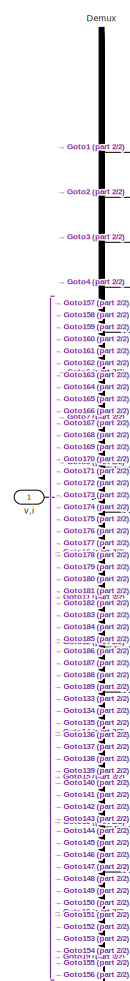
[diagram: powergui/EquivalentModel7/Yout - part 1/2, top left region]
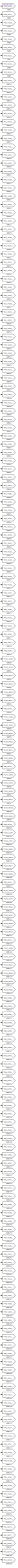
[diagram: powergui/EquivalentModel7/Yout - part 2/2, right side, full height]
BLOCK [SubSystem] powergui/EquivalentModel7/Yout
BLOCK [Demux] powergui/EquivalentModel7/Yout/Demux
  Outputs = [1 1 1 1 1 1 1 1 1 1 1 1 1 1 1 1 1 1 1 1 1 1 1 1 1 1 1 1 1 1 1 1 1 1 1 1 1 1 1 1 1 1 1 1 1 1 1 1 1 1 1 1 1 1 1 1 1 1 1 1 1 1 1 1 1 1 1 1 1 1 1 1 1 1 1 1 1 1 1 1 1 1 1 1 1 1 1 1 1 1 1 1 1 1 1 1 1 1 1 1 1 1 1 1 1 1 1 1 1 1 1 1 1 1 1 1 1 1 1 1 1 1 1 1 1 1 1 1 1 1 1 1 1 1 1 1 1 1 1 1 1 1 1 1 1 1 1 1 1 1 1 1 1 1 1 1 1 1 1 1 1 1 1 1 1 1 1 1 1 1 1 1 1 1 1 1 1 1 1 1 1 1 1 1 1 1 1 1 1]
BLOCK [Goto] powergui/EquivalentModel7/Yout/Goto1
  GotoTag = T49_4116_3650335588622
  TagVisibility = global
BLOCK [Goto] powergui/EquivalentModel7/Yout/Goto10
  GotoTag = T49_4124_3641987207670
  TagVisibility = global
BLOCK [Goto] powergui/EquivalentModel7/Yout/Goto100
  GotoTag = T90_8140_13612757086921
  TagVisibility = global
BLOCK [Goto] powergui/EquivalentModel7/Yout/Goto101
  GotoTag = T142_12396_28275147940751
  TagVisibility = global
BLOCK [Goto] powergui/EquivalentModel7/Yout/Goto102
  GotoTag = T143_12447_28473281648995
  TagVisibility = global
BLOCK [Goto] powergui/EquivalentModel7/Yout/Goto103
  GotoTag = T110_9615_17342993552607
  TagVisibility = global
BLOCK [Goto] powergui/EquivalentModel7/Yout/Goto104
  GotoTag = T110_9616_17349190141231
  TagVisibility = global
BLOCK [Goto] powergui/EquivalentModel7/Yout/Goto105
  GotoTag = T110_9617_17355711256400
  TagVisibility = global
BLOCK [Goto] powergui/EquivalentModel7/Yout/Goto106
  GotoTag = T110_9618_17362556898115
  TagVisibility = global
BLOCK [Goto] powergui/EquivalentModel7/Yout/Goto107
  GotoTag = T90_8141_13611919667542
  TagVisibility = global
BLOCK [Goto] powergui/EquivalentModel7/Yout/Goto108
  GotoTag = T142_12397_28271871950996
  TagVisibility = global
BLOCK [Goto] powergui/EquivalentModel7/Yout/Goto109
  GotoTag = T143_12448_28470006231249
  TagVisibility = global
BLOCK [Goto] powergui/EquivalentModel7/Yout/Goto11
  GotoTag = T49_4125_3643668997721
  TagVisibility = global
BLOCK [Goto] powergui/EquivalentModel7/Yout/Goto110
  GotoTag = T110_9616_17341197099851
  TagVisibility = global
BLOCK [Goto] powergui/EquivalentModel7/Yout/Goto111
  GotoTag = T110_9617_17347392014853
  TagVisibility = global
BLOCK [Goto] powergui/EquivalentModel7/Yout/Goto112
  GotoTag = T110_9618_17353911456401
  TagVisibility = global
BLOCK [Goto] powergui/EquivalentModel7/Yout/Goto113
  GotoTag = T110_9619_17360755424495
  TagVisibility = global
BLOCK [Goto] powergui/EquivalentModel7/Yout/Goto114
  GotoTag = T90_8142_13611207581718
  TagVisibility = global
BLOCK [Goto] powergui/EquivalentModel7/Yout/Goto115
  GotoTag = T142_12398_28268675398002
  TagVisibility = global
BLOCK [Goto] powergui/EquivalentModel7/Yout/Goto116
  GotoTag = T143_12449_28466809694761
  TagVisibility = global
BLOCK [Goto] powergui/EquivalentModel7/Yout/Goto117
  GotoTag = T110_9617_17339503192731
  TagVisibility = global
BLOCK [Goto] powergui/EquivalentModel7/Yout/Goto118
  GotoTag = T110_9618_17345696434112
  TagVisibility = global
BLOCK [Goto] powergui/EquivalentModel7/Yout/Goto119
  GotoTag = T110_9619_17352214202038
  TagVisibility = global
BLOCK [Goto] powergui/EquivalentModel7/Yout/Goto12
  GotoTag = T49_4126_3645465440833
  TagVisibility = global
BLOCK [Goto] powergui/EquivalentModel7/Yout/Goto120
  GotoTag = T110_9620_17359056496510
  TagVisibility = global
BLOCK [Goto] powergui/EquivalentModel7/Yout/Goto121
  GotoTag = T68_5758_6656026278227
  TagVisibility = global
BLOCK [Goto] powergui/EquivalentModel7/Yout/Goto122
  GotoTag = T68_5759_6659345433055
  TagVisibility = global
BLOCK [Goto] powergui/EquivalentModel7/Yout/Goto123
  GotoTag = T68_5760_6662848146708
  TagVisibility = global
BLOCK [Goto] powergui/EquivalentModel7/Yout/Goto124
  GotoTag = T68_5759_6654277366521
  TagVisibility = global
BLOCK [Goto] powergui/EquivalentModel7/Yout/Goto125
  GotoTag = T68_5760_6657594638251
  TagVisibility = global
BLOCK [Goto] powergui/EquivalentModel7/Yout/Goto126
  GotoTag = T68_5761_6661095468804
  TagVisibility = global
BLOCK [Goto] powergui/EquivalentModel7/Yout/Goto127
  GotoTag = T68_5759_6653902862658
  TagVisibility = global
BLOCK [Goto] powergui/EquivalentModel7/Yout/Goto128
  GotoTag = T68_5760_6657220585222
  TagVisibility = global
BLOCK [Goto] powergui/EquivalentModel7/Yout/Goto129
  GotoTag = T68_5761_6660721866609
  TagVisibility = global
BLOCK [Goto] powergui/EquivalentModel7/Yout/Goto13
  GotoTag = T51_4213_3913888470431
  TagVisibility = global
BLOCK [Goto] powergui/EquivalentModel7/Yout/Goto130
  GotoTag = T68_5760_6652152966497
  TagVisibility = global
BLOCK [Goto] powergui/EquivalentModel7/Yout/Goto131
  GotoTag = T68_5761_6655468805961
  TagVisibility = global
BLOCK [Goto] powergui/EquivalentModel7/Yout/Goto132
  GotoTag = T68_5762_6658968204249
  TagVisibility = global
BLOCK [Goto] powergui/EquivalentModel7/Yout/Goto133
  GotoTag = T68_5760_6651829614442
  TagVisibility = global
BLOCK [Goto] powergui/EquivalentModel7/Yout/Goto134
  GotoTag = T68_5761_6655145904741
  TagVisibility = global
BLOCK [Goto] powergui/EquivalentModel7/Yout/Goto135
  GotoTag = T68_5762_6658645753863
  TagVisibility = global
BLOCK [Goto] powergui/EquivalentModel7/Yout/Goto136
  GotoTag = T68_5761_6650078733826
  TagVisibility = global
BLOCK [Goto] powergui/EquivalentModel7/Yout/Goto137
  GotoTag = T68_5762_6653393141025
  TagVisibility = global
BLOCK [Goto] powergui/EquivalentModel7/Yout/Goto138
  GotoTag = T68_5763_6656891107048
  TagVisibility = global
BLOCK [Goto] powergui/EquivalentModel7/Yout/Goto139
  GotoTag = T50_4219_3761739255118
  TagVisibility = global
BLOCK [Goto] powergui/EquivalentModel7/Yout/Goto14
  GotoTag = T51_4214_3915859784784
  TagVisibility = global
BLOCK [Goto] powergui/EquivalentModel7/Yout/Goto140
  GotoTag = T50_4220_3763481241229
  TagVisibility = global
BLOCK [Goto] powergui/EquivalentModel7/Yout/Goto141
  GotoTag = T50_4221_3765341166939
  TagVisibility = global
BLOCK [Goto] powergui/EquivalentModel7/Yout/Goto142
  GotoTag = T65_5740_7084414460096
  TagVisibility = global
BLOCK [Goto] powergui/EquivalentModel7/Yout/Goto143
  GotoTag = T65_5741_7083683141428
  TagVisibility = global
BLOCK [Goto] powergui/EquivalentModel7/Yout/Goto144
  GotoTag = T65_5742_7083102161529
  TagVisibility = global
BLOCK [Goto] powergui/EquivalentModel7/Yout/Goto145
  GotoTag = T49_4104_3617955902908
  TagVisibility = global
BLOCK [Goto] powergui/EquivalentModel7/Yout/Goto146
  GotoTag = T49_4105_3619679371871
  TagVisibility = global
BLOCK [Goto] powergui/EquivalentModel7/Yout/Goto147
  GotoTag = T49_4106_3621517493895
  TagVisibility = global
BLOCK [Goto] powergui/EquivalentModel7/Yout/Goto148
  GotoTag = T49_4106_3615518113793
  TagVisibility = global
BLOCK [Goto] powergui/EquivalentModel7/Yout/Goto149
  GotoTag = T49_4107_3617237977313
  TagVisibility = global
BLOCK [Goto] powergui/EquivalentModel7/Yout/Goto15
  GotoTag = T51_4215_3917952328941
  TagVisibility = global
BLOCK [Goto] powergui/EquivalentModel7/Yout/Goto150
  GotoTag = T49_4108_3619072493895
  TagVisibility = global
BLOCK [Goto] powergui/EquivalentModel7/Yout/Goto151
  GotoTag = T49_4110_3611426209031
  TagVisibility = global
BLOCK [Goto] powergui/EquivalentModel7/Yout/Goto152
  GotoTag = T49_4111_3613138861667
  TagVisibility = global
BLOCK [Goto] powergui/EquivalentModel7/Yout/Goto153
  GotoTag = T49_4112_3614966167364
  TagVisibility = global
BLOCK [Goto] powergui/EquivalentModel7/Yout/Goto154
  GotoTag = T49_4112_3609772093384
  TagVisibility = global
BLOCK [Goto] powergui/EquivalentModel7/Yout/Goto155
  GotoTag = T49_4113_3611481140578
  TagVisibility = global
BLOCK [Goto] powergui/EquivalentModel7/Yout/Goto156
  GotoTag = T49_4114_3613304840833
  TagVisibility = global
BLOCK [Goto] powergui/EquivalentModel7/Yout/Goto157
  GotoTag = T49_4107_3614202962083
  TagVisibility = global
BLOCK [Goto] powergui/EquivalentModel7/Yout/Goto158
  GotoTag = T49_4108_3615921081471
  TagVisibility = global
BLOCK [Goto] powergui/EquivalentModel7/Yout/Goto159
  GotoTag = T49_4109_3617753853920
  TagVisibility = global
BLOCK [Goto] powergui/EquivalentModel7/Yout/Goto16
  GotoTag = T49_4119_3646521602083
  TagVisibility = global
BLOCK [Goto] powergui/EquivalentModel7/Yout/Goto160
  GotoTag = T49_4109_3612023764804
  TagVisibility = global
BLOCK [Goto] powergui/EquivalentModel7/Yout/Goto161
  GotoTag = T49_4110_3613738278750
  TagVisibility = global
BLOCK [Goto] powergui/EquivalentModel7/Yout/Goto162
  GotoTag = T49_4111_3615567445757
  TagVisibility = global
BLOCK [Goto] powergui/EquivalentModel7/Yout/Goto163
  GotoTag = T50_4121_3836145463710
  TagVisibility = global
BLOCK [Goto] powergui/EquivalentModel7/Yout/Goto164
  GotoTag = T50_4122_3838064724914
  TagVisibility = global
BLOCK [Goto] powergui/EquivalentModel7/Yout/Goto165
  GotoTag = T50_4123_3840101925718
  TagVisibility = global
BLOCK [Goto] powergui/EquivalentModel7/Yout/Goto166
  GotoTag = T50_4120_3836783074433
  TagVisibility = global
BLOCK [Goto] powergui/EquivalentModel7/Yout/Goto167
  GotoTag = T50_4121_3838704166322
  TagVisibility = global
BLOCK [Goto] powergui/EquivalentModel7/Yout/Goto168
  GotoTag = T50_4122_3840743197812
  TagVisibility = global
BLOCK [Goto] powergui/EquivalentModel7/Yout/Goto169
  GotoTag = T49_4114_3607187124252
  TagVisibility = global
BLOCK [Goto] powergui/EquivalentModel7/Yout/Goto17
  GotoTag = T49_4120_3648212464328
  TagVisibility = global
BLOCK [Goto] powergui/EquivalentModel7/Yout/Goto170
  GotoTag = T49_4115_3608892683180
  TagVisibility = global
BLOCK [Goto] powergui/EquivalentModel7/Yout/Goto171
  GotoTag = T49_4116_3610712895170
  TagVisibility = global
BLOCK [Goto] powergui/EquivalentModel7/Yout/Goto172
  GotoTag = T49_4113_3607363929396
  TagVisibility = global
BLOCK [Goto] powergui/EquivalentModel7/Yout/Goto173
  GotoTag = T49_4114_3609071466811
  TagVisibility = global
BLOCK [Goto] powergui/EquivalentModel7/Yout/Goto174
  GotoTag = T49_4115_3610893657287
  TagVisibility = global
BLOCK [Goto] powergui/EquivalentModel7/Yout/Goto175
  GotoTag = T49_4117_3603768147083
  TagVisibility = global
BLOCK [Goto] powergui/EquivalentModel7/Yout/Goto176
  GotoTag = T49_4118_3605468473614
  TagVisibility = global
BLOCK [Goto] powergui/EquivalentModel7/Yout/Goto177
  GotoTag = T49_4119_3607283453206
  TagVisibility = global
BLOCK [Goto] powergui/EquivalentModel7/Yout/Goto178
  GotoTag = T49_4120_3600899341752
  TagVisibility = global
BLOCK [Goto] powergui/EquivalentModel7/Yout/Goto179
  GotoTag = T49_4121_3602594435884
  TagVisibility = global
BLOCK [Goto] powergui/EquivalentModel7/Yout/Goto18
  GotoTag = T49_4121_3650017979634
  TagVisibility = global
BLOCK [Goto] powergui/EquivalentModel7/Yout/Goto180
  GotoTag = T49_4122_3604404183078
  TagVisibility = global
BLOCK [Goto] powergui/EquivalentModel7/Yout/Goto181
  GotoTag = T49_4113_3608343918750
  TagVisibility = global
BLOCK [Goto] powergui/EquivalentModel7/Yout/Goto182
  GotoTag = T49_4114_3610051690519
  TagVisibility = global
BLOCK [Goto] powergui/EquivalentModel7/Yout/Goto183
  GotoTag = T49_4115_3611874115349
  TagVisibility = global
BLOCK [Goto] powergui/EquivalentModel7/Yout/Goto184
  GotoTag = T91_8175_13525563263162
  TagVisibility = global
BLOCK [Goto] powergui/EquivalentModel7/Yout/Goto185
  GotoTag = T91_8176_13524746083465
  TagVisibility = global
BLOCK [Goto] powergui/EquivalentModel7/Yout/Goto186
  GotoTag = T91_8177_13524052860032
  TagVisibility = global
BLOCK [Goto] powergui/EquivalentModel7/Yout/Goto187
  GotoTag = T91_8176_13522412737624
  TagVisibility = global
BLOCK [Goto] powergui/EquivalentModel7/Yout/Goto188
  GotoTag = T91_8177_13521594633619
  TagVisibility = global
BLOCK [Goto] powergui/EquivalentModel7/Yout/Goto189
  GotoTag = T91_8178_13520900485878
  TagVisibility = global
BLOCK [Goto] powergui/EquivalentModel7/Yout/Goto19
  GotoTag = T49_4121_3644301261947
  TagVisibility = global
BLOCK [Goto] powergui/EquivalentModel7/Yout/Goto2
  GotoTag = T49_4117_3652031800442
  TagVisibility = global
BLOCK [Goto] powergui/EquivalentModel7/Yout/Goto20
  GotoTag = T49_4122_3645988518750
  TagVisibility = global
BLOCK [Goto] powergui/EquivalentModel7/Yout/Goto21
  GotoTag = T49_4123_3647790428614
  TagVisibility = global
BLOCK [Goto] powergui/EquivalentModel7/Yout/Goto22
  GotoTag = T50_4133_3871291858061
  TagVisibility = global
BLOCK [Goto] powergui/EquivalentModel7/Yout/Goto23
  GotoTag = T50_4134_3873183619086
  TagVisibility = global
BLOCK [Goto] powergui/EquivalentModel7/Yout/Goto24
  GotoTag = T50_4135_3875193319710
  TagVisibility = global
BLOCK [Goto] powergui/EquivalentModel7/Yout/Goto25
  GotoTag = T51_4221_3905209944941
  TagVisibility = global
BLOCK [Goto] powergui/EquivalentModel7/Yout/Goto26
  GotoTag = T51_4222_3907167304784
  TagVisibility = global
BLOCK [Goto] powergui/EquivalentModel7/Yout/Goto27
  GotoTag = T51_4223_3909245894431
  TagVisibility = global
BLOCK [Goto] powergui/EquivalentModel7/Yout/Goto28
  GotoTag = T51_4214_3912588766596
  TagVisibility = global
BLOCK [Goto] powergui/EquivalentModel7/Yout/Goto29
  GotoTag = T51_4215_3914558393325
  TagVisibility = global
BLOCK [Goto] powergui/EquivalentModel7/Yout/Goto3
  GotoTag = T49_4118_3653842665323
  TagVisibility = global
BLOCK [Goto] powergui/EquivalentModel7/Yout/Goto30
  GotoTag = T51_4216_3916649249859
  TagVisibility = global
BLOCK [Goto] powergui/EquivalentModel7/Yout/Goto31
  GotoTag = T51_4216_3910040236400
  TagVisibility = global
BLOCK [Goto] powergui/EquivalentModel7/Yout/Goto32
  GotoTag = T51_4217_3912006374502
  TagVisibility = global
BLOCK [Goto] powergui/EquivalentModel7/Yout/Goto33
  GotoTag = T51_4218_3914093742408
  TagVisibility = global
BLOCK [Goto] powergui/EquivalentModel7/Yout/Goto34
  GotoTag = T50_4132_3871950385127
  TagVisibility = global
BLOCK [Goto] powergui/EquivalentModel7/Yout/Goto35
  GotoTag = T50_4133_3873843976837
  TagVisibility = global
BLOCK [Goto] powergui/EquivalentModel7/Yout/Goto36
  GotoTag = T50_4134_3875855508147
  TagVisibility = global
BLOCK [Goto] powergui/EquivalentModel7/Yout/Goto37
  GotoTag = T51_4220_3905696117184
  TagVisibility = global
BLOCK [Goto] powergui/EquivalentModel7/Yout/Goto38
  GotoTag = T51_4221_3907655278031
  TagVisibility = global
BLOCK [Goto] powergui/EquivalentModel7/Yout/Goto39
  GotoTag = T51_4222_3909735668682
  TagVisibility = global
BLOCK [Goto] powergui/EquivalentModel7/Yout/Goto4
  GotoTag = T49_4118_3647856656650
  TagVisibility = global
BLOCK [Goto] powergui/EquivalentModel7/Yout/Goto40
  GotoTag = T49_4126_3639362432823
  TagVisibility = global
BLOCK [Goto] powergui/EquivalentModel7/Yout/Goto41
  GotoTag = T49_4127_3641040734609
  TagVisibility = global
BLOCK [Goto] powergui/EquivalentModel7/Yout/Goto42
  GotoTag = T49_4128_3642833689456
  TagVisibility = global
BLOCK [Goto] powergui/EquivalentModel7/Yout/Goto43
  GotoTag = T49_4119_3646521713495
  TagVisibility = global
BLOCK [Goto] powergui/EquivalentModel7/Yout/Goto44
  GotoTag = T49_4120_3648212692917
  TagVisibility = global
BLOCK [Goto] powergui/EquivalentModel7/Yout/Goto45
  GotoTag = T49_4121_3650018325400
  TagVisibility = global
BLOCK [Goto] powergui/EquivalentModel7/Yout/Goto46
  GotoTag = T49_4121_3644034883563
  TagVisibility = global
BLOCK [Goto] powergui/EquivalentModel7/Yout/Goto47
  GotoTag = T49_4122_3645722257543
  TagVisibility = global
BLOCK [Goto] powergui/EquivalentModel7/Yout/Goto48
  GotoTag = T49_4123_3647524284583
  TagVisibility = global
BLOCK [Goto] powergui/EquivalentModel7/Yout/Goto49
  GotoTag = T49_4121_3644284781097
  TagVisibility = global
BLOCK [Goto] powergui/EquivalentModel7/Yout/Goto5
  GotoTag = T49_4119_3649549263027
  TagVisibility = global
BLOCK [Goto] powergui/EquivalentModel7/Yout/Goto50
  GotoTag = T49_4122_3645972272253
  TagVisibility = global
BLOCK [Goto] powergui/EquivalentModel7/Yout/Goto51
  GotoTag = T49_4123_3647774416471
  TagVisibility = global
BLOCK [Goto] powergui/EquivalentModel7/Yout/Goto52
  GotoTag = T50_4133_3870752337637
  TagVisibility = global
BLOCK [Goto] powergui/EquivalentModel7/Yout/Goto53
  GotoTag = T50_4134_3872644329159
  TagVisibility = global
BLOCK [Goto] powergui/EquivalentModel7/Yout/Goto54
  GotoTag = T50_4135_3874654260282
  TagVisibility = global
BLOCK [Goto] powergui/EquivalentModel7/Yout/Goto55
  GotoTag = T49_4125_3639561815111
  TagVisibility = global
BLOCK [Goto] powergui/EquivalentModel7/Yout/Goto56
  GotoTag = T49_4126_3641242095383
  TagVisibility = global
BLOCK [Goto] powergui/EquivalentModel7/Yout/Goto57
  GotoTag = T49_4127_3643037028716
  TagVisibility = global
BLOCK [Goto] powergui/EquivalentModel7/Yout/Goto58
  GotoTag = T51_4223_3902127549208
  TagVisibility = global
BLOCK [Goto] powergui/EquivalentModel7/Yout/Goto59
  GotoTag = T51_4224_3904081647184
  TagVisibility = global
BLOCK [Goto] powergui/EquivalentModel7/Yout/Goto6
  GotoTag = T49_4120_3651356522466
  TagVisibility = global
BLOCK [Goto] powergui/EquivalentModel7/Yout/Goto60
  GotoTag = T51_4225_3906156974965
  TagVisibility = global
BLOCK [Goto] powergui/EquivalentModel7/Yout/Goto61
  GotoTag = T49_4129_3635883747083
  TagVisibility = global
BLOCK [Goto] powergui/EquivalentModel7/Yout/Goto62
  GotoTag = T49_4130_3637556816471
  TagVisibility = global
BLOCK [Goto] powergui/EquivalentModel7/Yout/Goto63
  GotoTag = T49_4131_3639344538920
  TagVisibility = global
BLOCK [Goto] powergui/EquivalentModel7/Yout/Goto64
  GotoTag = T51_4222_3903111774784
  TagVisibility = global
BLOCK [Goto] powergui/EquivalentModel7/Yout/Goto65
  GotoTag = T51_4223_3905067673765
  TagVisibility = global
BLOCK [Goto] powergui/EquivalentModel7/Yout/Goto66
  GotoTag = T51_4224_3907144802549
  TagVisibility = global
BLOCK [Goto] powergui/EquivalentModel7/Yout/Goto67
  GotoTag = T49_4132_3632955233180
  TagVisibility = global
BLOCK [Goto] powergui/EquivalentModel7/Yout/Goto68
  GotoTag = T49_4133_3634623070170
  TagVisibility = global
BLOCK [Goto] powergui/EquivalentModel7/Yout/Goto69
  GotoTag = T49_4134_3636405560221
  TagVisibility = global
BLOCK [Goto] powergui/EquivalentModel7/Yout/Goto7
  GotoTag = T49_4122_3643682466173
  TagVisibility = global
BLOCK [Goto] powergui/EquivalentModel7/Yout/Goto70
  GotoTag = T49_4125_3640544478750
  TagVisibility = global
BLOCK [Goto] powergui/EquivalentModel7/Yout/Goto71
  GotoTag = T49_4126_3642224993376
  TagVisibility = global
BLOCK [Goto] powergui/EquivalentModel7/Yout/Goto72
  GotoTag = T49_4127_3644020161063
  TagVisibility = global
BLOCK [Goto] powergui/EquivalentModel7/Yout/Goto73
  GotoTag = T50_4214_3757914253882
  TagVisibility = global
BLOCK [Goto] powergui/EquivalentModel7/Yout/Goto74
  GotoTag = T50_4215_3759664471429
  TagVisibility = global
BLOCK [Goto] powergui/EquivalentModel7/Yout/Goto75
  GotoTag = T50_4216_3761532628576
  TagVisibility = global
BLOCK [Goto] powergui/EquivalentModel7/Yout/Goto76
  GotoTag = T50_4215_3756626744082
  TagVisibility = global
BLOCK [Goto] powergui/EquivalentModel7/Yout/Goto77
  GotoTag = T50_4216_3758375130943
  TagVisibility = global
BLOCK [Goto] powergui/EquivalentModel7/Yout/Goto78
  GotoTag = T50_4217_3760241457404
  TagVisibility = global
BLOCK [Goto] powergui/EquivalentModel7/Yout/Goto79
  GotoTag = T90_8139_13615949796674
  TagVisibility = global
BLOCK [Goto] powergui/EquivalentModel7/Yout/Goto8
  GotoTag = T49_4123_3645367861667
  TagVisibility = global
BLOCK [Goto] powergui/EquivalentModel7/Yout/Goto80
  GotoTag = T142_12395_28279007178150
  TagVisibility = global
BLOCK [Goto] powergui/EquivalentModel7/Yout/Goto81
  GotoTag = T143_12446_28477128809614
  TagVisibility = global
BLOCK [Goto] powergui/EquivalentModel7/Yout/Goto82
  GotoTag = T110_9614_17346347292190
  TagVisibility = global
BLOCK [Goto] powergui/EquivalentModel7/Yout/Goto83
  GotoTag = T110_9615_17352545003990
  TagVisibility = global
BLOCK [Goto] powergui/EquivalentModel7/Yout/Goto84
  GotoTag = T110_9616_17359067242335
  TagVisibility = global
BLOCK [Goto] powergui/EquivalentModel7/Yout/Goto85
  GotoTag = T110_9617_17365914007226
  TagVisibility = global
BLOCK [Goto] powergui/EquivalentModel7/Yout/Goto86
  GotoTag = T90_8140_13615113322373
  TagVisibility = global
BLOCK [Goto] powergui/EquivalentModel7/Yout/Goto87
  GotoTag = T142_12396_28275731566483
  TagVisibility = global
BLOCK [Goto] powergui/EquivalentModel7/Yout/Goto88
  GotoTag = T143_12447_28473853764668
  TagVisibility = global
BLOCK [Goto] powergui/EquivalentModel7/Yout/Goto89
  GotoTag = T110_9615_17344551470800
  TagVisibility = global
BLOCK [Goto] powergui/EquivalentModel7/Yout/Goto9
  GotoTag = T49_4124_3647167910221
  TagVisibility = global
BLOCK [Goto] powergui/EquivalentModel7/Yout/Goto90
  GotoTag = T110_9616_17350747508978
  TagVisibility = global
BLOCK [Goto] powergui/EquivalentModel7/Yout/Goto91
  GotoTag = T110_9617_17357268073702
  TagVisibility = global
BLOCK [Goto] powergui/EquivalentModel7/Yout/Goto92
  GotoTag = T110_9618_17364113164972
  TagVisibility = global
BLOCK [Goto] powergui/EquivalentModel7/Yout/Goto93
  GotoTag = T90_8141_13614402181628
  TagVisibility = global
BLOCK [Goto] powergui/EquivalentModel7/Yout/Goto94
  GotoTag = T142_12397_28272535391577
  TagVisibility = global
BLOCK [Goto] powergui/EquivalentModel7/Yout/Goto95
  GotoTag = T143_12448_28470657600980
  TagVisibility = global
BLOCK [Goto] powergui/EquivalentModel7/Yout/Goto96
  GotoTag = T110_9616_17342858195046
  TagVisibility = global
BLOCK [Goto] powergui/EquivalentModel7/Yout/Goto97
  GotoTag = T110_9617_17349052559603
  TagVisibility = global
BLOCK [Goto] powergui/EquivalentModel7/Yout/Goto98
  GotoTag = T110_9618_17355571450706
  TagVisibility = global
BLOCK [Goto] powergui/EquivalentModel7/Yout/Goto99
  GotoTag = T110_9619_17362414868354
  TagVisibility = global
BLOCK [Inport] powergui/EquivalentModel7/Yout/v,i
BLOCK [SubSystem] powergui/EquivalentModel8
BLOCK [SubSystem] powergui/EquivalentModel8/Sources
BLOCK [From] powergui/EquivalentModel8/Sources/From1
  GotoTag = T76_6362_8157671371865
  TagVisibility = global
BLOCK [From] powergui/EquivalentModel8/Sources/From10
  GotoTag = T64_5310_5295653632001
  TagVisibility = global
BLOCK [From] powergui/EquivalentModel8/Sources/From11
  GotoTag = T64_5311_5299492212815
  TagVisibility = global
BLOCK [From] powergui/EquivalentModel8/Sources/From12
  GotoTag = T64_5312_5303513198628
  TagVisibility = global
BLOCK [From] powergui/EquivalentModel8/Sources/From13
  GotoTag = T64_5311_5294472482259
  TagVisibility = global
BLOCK [From] powergui/EquivalentModel8/Sources/From14
  GotoTag = T64_5312_5298308956009
  TagVisibility = global
BLOCK [From] powergui/EquivalentModel8/Sources/From15
  GotoTag = T64_5313_5302327834759
  TagVisibility = global
BLOCK [From] powergui/EquivalentModel8/Sources/From2
  GotoTag = T76_6363_8161760195360
  TagVisibility = global
BLOCK [From] powergui/EquivalentModel8/Sources/From3
  GotoTag = T76_6364_8166059344118
  TagVisibility = global
BLOCK [From] powergui/EquivalentModel8/Sources/From4
  GotoTag = T76_6363_8155613182770
  TagVisibility = global
BLOCK [From] powergui/EquivalentModel8/Sources/From5
  GotoTag = T76_6364_8159700262181
  TagVisibility = global
BLOCK [From] powergui/EquivalentModel8/Sources/From6
  GotoTag = T76_6365_8163997666854
  TagVisibility = global
BLOCK [From] powergui/EquivalentModel8/Sources/From7
  GotoTag = T86_7684_12813851395750
  TagVisibility = global
BLOCK [From] powergui/EquivalentModel8/Sources/From8
  GotoTag = T86_7685_12811155999157
  TagVisibility = global
BLOCK [From] powergui/EquivalentModel8/Sources/From9
  GotoTag = T86_7686_12808574230705
  TagVisibility = global
BLOCK [Mux] powergui/EquivalentModel8/Sources/Mux
  DisplayOption = bar
  Inputs = [1 1 1 1 1 1 1 1 1 1 1 1 1 1 1]
BLOCK [Outport] powergui/EquivalentModel8/Sources/u
  VectorParamsAs1DForOutWhenUnconnected = off
BLOCK [S-Function] powergui/EquivalentModel8/State-Space
  EnableBusSupport = off
  FunctionName = ssn_sfun_v1
  Parameters = 8,0
  SFcnIsStateOwnerBlock = on
  SFcnStateName = MOV_segment19,xn_g1,MOV_segment19,MOV_segment19,MOV_segment19,MOV_segment19,MOV_segment19,MOV_segment19,MOV_segment19,MOV_segment19,MOV_segment19,MOV_segment19,MOV_segment19,MOV_segment19,MOV_segment19,MOV_segment19,MOV_segment19,MOV_segment19,MOV_segment19,MOV_segment19
  SFunctionDeploymentMode = off
BLOCK [SubSystem] powergui/EquivalentModel8/Yout
BLOCK [Demux] powergui/EquivalentModel8/Yout/Demux
  Outputs = [1 1 1 1 1 1 1 1 1 1 1 1 1 1 1 1 1 1 1 1 1 1 1 1 1 1 1 1 1 1 1 1 1 1 1 1 1 1 1 1 1 1 1 1 1 1 1 1 1 1 1 1 1 1 1 1 1 1 1 1 1 1 1]
BLOCK [Goto] powergui/EquivalentModel8/Yout/Goto1
  GotoTag = T50_4178_3770194684718
  TagVisibility = global
BLOCK [Goto] powergui/EquivalentModel8/Yout/Goto10
  GotoTag = T50_4175_3773621968571
  TagVisibility = global
BLOCK [Goto] powergui/EquivalentModel8/Yout/Goto11
  GotoTag = T50_4176_3775439549147
  TagVisibility = global
BLOCK [Goto] powergui/EquivalentModel8/Yout/Goto12
  GotoTag = T50_4177_3777375069322
  TagVisibility = global
BLOCK [Goto] powergui/EquivalentModel8/Yout/Goto13
  GotoTag = T50_4177_3771217647771
  TagVisibility = global
BLOCK [Goto] powergui/EquivalentModel8/Yout/Goto14
  GotoTag = T50_4178_3773031566976
  TagVisibility = global
BLOCK [Goto] powergui/EquivalentModel8/Yout/Goto15
  GotoTag = T50_4179_3774963425780
  TagVisibility = global
BLOCK [Goto] powergui/EquivalentModel8/Yout/Goto16
  GotoTag = T50_4179_3769086237371
  TagVisibility = global
BLOCK [Goto] powergui/EquivalentModel8/Yout/Goto17
  GotoTag = T50_4180_3770896495204
  TagVisibility = global
BLOCK [Goto] powergui/EquivalentModel8/Yout/Goto18
  GotoTag = T50_4181_3772824692637
  TagVisibility = global
BLOCK [Goto] powergui/EquivalentModel8/Yout/Goto19
  GotoTag = T50_4181_3767227737371
  TagVisibility = global
BLOCK [Goto] powergui/EquivalentModel8/Yout/Goto2
  GotoTag = T50_4179_3772006715612
  TagVisibility = global
BLOCK [Goto] powergui/EquivalentModel8/Yout/Goto20
  GotoTag = T50_4182_3769034333833
  TagVisibility = global
BLOCK [Goto] powergui/EquivalentModel8/Yout/Goto21
  GotoTag = T50_4183_3770958869894
  TagVisibility = global
BLOCK [Goto] powergui/EquivalentModel8/Yout/Goto22
  GotoTag = T51_4193_3996555987396
  TagVisibility = global
BLOCK [Goto] powergui/EquivalentModel8/Yout/Goto23
  GotoTag = T51_4194_3998568537325
  TagVisibility = global
BLOCK [Goto] powergui/EquivalentModel8/Yout/Goto24
  GotoTag = T51_4195_4000702317059
  TagVisibility = global
BLOCK [Goto] powergui/EquivalentModel8/Yout/Goto25
  GotoTag = T50_4177_3771607862449
  TagVisibility = global
BLOCK [Goto] powergui/EquivalentModel8/Yout/Goto26
  GotoTag = T50_4178_3773421896902
  TagVisibility = global
BLOCK [Goto] powergui/EquivalentModel8/Yout/Goto27
  GotoTag = T50_4179_3775353870955
  TagVisibility = global
BLOCK [Goto] powergui/EquivalentModel8/Yout/Goto28
  GotoTag = T50_4179_3769198147363
  TagVisibility = global
BLOCK [Goto] powergui/EquivalentModel8/Yout/Goto29
  GotoTag = T50_4180_3771008520445
  TagVisibility = global
BLOCK [Goto] powergui/EquivalentModel8/Yout/Goto3
  GotoTag = T50_4180_3773936686106
  TagVisibility = global
BLOCK [Goto] powergui/EquivalentModel8/Yout/Goto30
  GotoTag = T50_4181_3772936833127
  TagVisibility = global
BLOCK [Goto] powergui/EquivalentModel8/Yout/Goto31
  GotoTag = T69_5816_6866872389864
  TagVisibility = global
BLOCK [Goto] powergui/EquivalentModel8/Yout/Goto32
  GotoTag = T69_5817_6870305348355
  TagVisibility = global
BLOCK [Goto] powergui/EquivalentModel8/Yout/Goto33
  GotoTag = T69_5818_6873925208005
  TagVisibility = global
BLOCK [Goto] powergui/EquivalentModel8/Yout/Goto34
  GotoTag = T69_5817_6865149256752
  TagVisibility = global
BLOCK [Goto] powergui/EquivalentModel8/Yout/Goto35
  GotoTag = T69_5818_6868580312140
  TagVisibility = global
BLOCK [Goto] powergui/EquivalentModel8/Yout/Goto36
  GotoTag = T69_5819_6872198268687
  TagVisibility = global
BLOCK [Goto] powergui/EquivalentModel8/Yout/Goto37
  GotoTag = T65_5741_7082189833928
  TagVisibility = global
BLOCK [Goto] powergui/EquivalentModel8/Yout/Goto38
  GotoTag = T65_5742_7081457039966
  TagVisibility = global
BLOCK [Goto] powergui/EquivalentModel8/Yout/Goto39
  GotoTag = T65_5743_7080874584774
  TagVisibility = global
BLOCK [Goto] powergui/EquivalentModel8/Yout/Goto4
  GotoTag = T50_4180_3768338881861
  TagVisibility = global
BLOCK [Goto] powergui/EquivalentModel8/Yout/Goto40
  GotoTag = T50_4166_3735959240147
  TagVisibility = global
BLOCK [Goto] powergui/EquivalentModel8/Yout/Goto41
  GotoTag = T50_4167_3737798771220
  TagVisibility = global
BLOCK [Goto] powergui/EquivalentModel8/Yout/Goto42
  GotoTag = T50_4168_3739756241894
  TagVisibility = global
BLOCK [Goto] powergui/EquivalentModel8/Yout/Goto43
  GotoTag = T50_4168_3734145269976
  TagVisibility = global
BLOCK [Goto] powergui/EquivalentModel8/Yout/Goto44
  GotoTag = T50_4169_3735981139678
  TagVisibility = global
BLOCK [Goto] powergui/EquivalentModel8/Yout/Goto45
  GotoTag = T50_4170_3737934948980
  TagVisibility = global
BLOCK [Goto] powergui/EquivalentModel8/Yout/Goto46
  GotoTag = T50_4163_3739323116588
  TagVisibility = global
BLOCK [Goto] powergui/EquivalentModel8/Yout/Goto47
  GotoTag = T50_4164_3741168197343
  TagVisibility = global
BLOCK [Goto] powergui/EquivalentModel8/Yout/Goto48
  GotoTag = T50_4165_3743131217698
  TagVisibility = global
BLOCK [Goto] powergui/EquivalentModel8/Yout/Goto49
  GotoTag = T50_4165_3736960628473
  TagVisibility = global
BLOCK [Goto] powergui/EquivalentModel8/Yout/Goto5
  GotoTag = T50_4181_3770147251384
  TagVisibility = global
BLOCK [Goto] powergui/EquivalentModel8/Yout/Goto50
  GotoTag = T50_4166_3738802047857
  TagVisibility = global
BLOCK [Goto] powergui/EquivalentModel8/Yout/Goto51
  GotoTag = T50_4167_3740761406841
  TagVisibility = global
BLOCK [Goto] powergui/EquivalentModel8/Yout/Goto52
  GotoTag = T50_4167_3734871050759
  TagVisibility = global
BLOCK [Goto] powergui/EquivalentModel8/Yout/Goto53
  GotoTag = T50_4168_3736708808771
  TagVisibility = global
BLOCK [Goto] powergui/EquivalentModel8/Yout/Goto54
  GotoTag = T50_4169_3738664506384
  TagVisibility = global
BLOCK [Goto] powergui/EquivalentModel8/Yout/Goto55
  GotoTag = T50_4169_3733054383445
  TagVisibility = global
BLOCK [Goto] powergui/EquivalentModel8/Yout/Goto56
  GotoTag = T50_4170_3734888480086
  TagVisibility = global
BLOCK [Goto] powergui/EquivalentModel8/Yout/Goto57
  GotoTag = T50_4171_3736840516327
  TagVisibility = global
BLOCK [Goto] powergui/EquivalentModel8/Yout/Goto58
  GotoTag = T51_4181_3959492351631
  TagVisibility = global
BLOCK [Goto] powergui/EquivalentModel8/Yout/Goto59
  GotoTag = T51_4182_3961532636149
  TagVisibility = global
BLOCK [Goto] powergui/EquivalentModel8/Yout/Goto6
  GotoTag = T50_4182_3772073560506
  TagVisibility = global
BLOCK [Goto] powergui/EquivalentModel8/Yout/Goto60
  GotoTag = T51_4183_3963694150471
  TagVisibility = global
BLOCK [Goto] powergui/EquivalentModel8/Yout/Goto61
  GotoTag = T50_4167_3734981643984
  TagVisibility = global
BLOCK [Goto] powergui/EquivalentModel8/Yout/Goto62
  GotoTag = T50_4168_3736819517245
  TagVisibility = global
BLOCK [Goto] powergui/EquivalentModel8/Yout/Goto63
  GotoTag = T50_4169_3738775330106
  TagVisibility = global
BLOCK [Goto] powergui/EquivalentModel8/Yout/Goto7
  GotoTag = T52_4278_4033724564084
  TagVisibility = global
BLOCK [Goto] powergui/EquivalentModel8/Yout/Goto8
  GotoTag = T52_4279_4035807346531
  TagVisibility = global
BLOCK [Goto] powergui/EquivalentModel8/Yout/Goto9
  GotoTag = T52_4280_4038014652440
  TagVisibility = global
BLOCK [Inport] powergui/EquivalentModel8/Yout/v,i
BLOCK [Ground] powergui/Ground
BLOCK [Terminator] powergui/Terminator
BLOCK [SubSystem] sc_console
BLOCK [Reference] sc_console/OpComm  REF=rtlab/OpComm
  SourceBlock = rtlab/OpComm
  SourceType = RT-LAB OpComm
BLOCK [Scope] sc_console/Ps
  Floating = off
  NumInputPorts = 1
  ScopeSpecificationString = Simulink.scopes.TimeScopeBlockCfg('CurrentConfiguration', extmgr.ConfigurationSet(extmgr.Configuration('Core','General UI',true,'FigureColor',[1 1 1]),extmgr.Configuration('Core','Source UI',true),extmgr.Configuration('Sources','WiredSimulink',true,'DataLoggingSaveFormat','StructureWithTime','DataLoggingDecimation','1','DataLoggingDecimateData',true),extmgr.Configuration('Visuals','Time Domain',tr...<+2233ch>
BLOCK [Inport] sc_console/Psub
BLOCK [Scope] sc_console/Qs
  Floating = off
  NumInputPorts = 1
  ScopeSpecificationString = Simulink.scopes.TimeScopeBlockCfg('CurrentConfiguration', extmgr.ConfigurationSet(extmgr.Configuration('Core','General UI',true,'FigureColor',[1 1 1]),extmgr.Configuration('Core','Source UI',true),extmgr.Configuration('Sources','WiredSimulink',true,'DataLoggingSaveFormat','StructureWithTime','DataLoggingDecimation','1','DataLoggingDecimateData',true,'DataLoggingVariableName','ScopeData1'),extmgr.C...<+2222ch>
BLOCK [Inport] sc_console/Qsub
  Port = 2
ANNOTATION (root): Model Created by Arun Suresh, Dr. Sukumar Kamalasadan, University of North Carolina, Charlotte
ANNOTATION (root): Please consider citing following papers if the model was useful for your research A. Suresh, R. Bisht and S. Kamalasadan, "A Coordinated Control Architecture With Inverter-Based Resources and Legacy Controllers of Power Distribution System for Voltage Profile Balance," in IEEE Transactions on Industry Applications, vol. 58, no. 5, pp. 6701-6712, Sept.-Oct. 2022, doi: 10.1109/TIA.2022.3183030. A. S...<+256ch>
ANNOTATION (root): CORE 1
ANNOTATION (root): CORE 2
ANNOTATION SM_34p/Regulator 3/Single Phase SVR_A/Line Drop Compensator: Vm=Vsec-Isec(Rc+jXc)
ANNOTATION SM_34p/Regulator 3/Single Phase SVR_A/Transformer with Taps: Isec on CT Ratio base
ANNOTATION SM_34p/Regulator 3/Single Phase SVR_A/Transformer with Taps: Vsec on Pt Ratio base
ANNOTATION SM_34p/Regulator 3/Single Phase SVR_A/Transformer with Taps/SSN OLTC xfo v2: DO NOT MODIFY THIS PART in COLOR (USED INTERNALLy by SSN) .............................................................
ANNOTATION SM_34p/Regulator 3/Single Phase SVR_A/Transformer with Taps/SSN OLTC xfo v2: Saturable core logic
ANNOTATION SM_34p/Regulator 3/Single Phase SVR_A/Transformer with Taps/SSN OLTC xfo v2: These gains are required to avoid a MAJOR Simulink bug that did not see the selector Hist block in R2011b | | |
ANNOTATION SM_34p/Regulator 3/Single Phase SVR_A/Transformer with Taps/SSN OLTC xfo v2: correction C.Dufour 7 dec 2017 R(1,3)=0 (not 1)
ANNOTATION SM_34p/Regulator 3/Single Phase SVR_A/Transformer with Taps/SSN OLTC xfo v2: mapping transfo: terminal order in vector a b c d -> 1 2 3 4
ANNOTATION SM_34p/Regulator 3/Single Phase SVR_A/Voltage Regulator Control/Tap Changer Control/Edge Detector: Edge or Slope Detector
ANNOTATION SM_34p/Regulator 3/Single Phase SVR_B/Line Drop Compensator: Vm=Vsec-Isec(Rc+jXc)
ANNOTATION SM_34p/Regulator 3/Single Phase SVR_B/Transformer with Taps: Isec on CT Ratio base
ANNOTATION SM_34p/Regulator 3/Single Phase SVR_B/Transformer with Taps: Vsec on Pt Ratio base
ANNOTATION SM_34p/Regulator 3/Single Phase SVR_B/Transformer with Taps/SSN OLTC xfo v2: DO NOT MODIFY THIS PART in COLOR (USED INTERNALLy by SSN) .............................................................
ANNOTATION SM_34p/Regulator 3/Single Phase SVR_B/Transformer with Taps/SSN OLTC xfo v2: Saturable core logic
ANNOTATION SM_34p/Regulator 3/Single Phase SVR_B/Transformer with Taps/SSN OLTC xfo v2: These gains are required to avoid a MAJOR Simulink bug that did not see the selector Hist block in R2011b | | |
ANNOTATION SM_34p/Regulator 3/Single Phase SVR_B/Transformer with Taps/SSN OLTC xfo v2: correction C.Dufour 7 dec 2017 R(1,3)=0 (not 1)
ANNOTATION SM_34p/Regulator 3/Single Phase SVR_B/Transformer with Taps/SSN OLTC xfo v2: mapping transfo: terminal order in vector a b c d -> 1 2 3 4
ANNOTATION SM_34p/Regulator 3/Single Phase SVR_B/Voltage Regulator Control/Tap Changer Control/Edge Detector: Edge or Slope Detector
ANNOTATION SM_34p/Regulator 3/Single Phase SVR_C/Line Drop Compensator: Vm=Vsec-Isec(Rc+jXc)
ANNOTATION SM_34p/Regulator 3/Single Phase SVR_C/Transformer with Taps: Isec on CT Ratio base
ANNOTATION SM_34p/Regulator 3/Single Phase SVR_C/Transformer with Taps: Vsec on Pt Ratio base
ANNOTATION SM_34p/Regulator 3/Single Phase SVR_C/Transformer with Taps/SSN OLTC xfo v2: DO NOT MODIFY THIS PART in COLOR (USED INTERNALLy by SSN) .............................................................
ANNOTATION SM_34p/Regulator 3/Single Phase SVR_C/Transformer with Taps/SSN OLTC xfo v2: Saturable core logic
ANNOTATION SM_34p/Regulator 3/Single Phase SVR_C/Transformer with Taps/SSN OLTC xfo v2: These gains are required to avoid a MAJOR Simulink bug that did not see the selector Hist block in R2011b | | |
ANNOTATION SM_34p/Regulator 3/Single Phase SVR_C/Transformer with Taps/SSN OLTC xfo v2: correction C.Dufour 7 dec 2017 R(1,3)=0 (not 1)
ANNOTATION SM_34p/Regulator 3/Single Phase SVR_C/Transformer with Taps/SSN OLTC xfo v2: mapping transfo: terminal order in vector a b c d -> 1 2 3 4
ANNOTATION SM_34p/Regulator 3/Single Phase SVR_C/Voltage Regulator Control/Tap Changer Control/Edge Detector: Edge or Slope Detector
ANNOTATION SM_34p/Regulator 4/Single Phase SVR_A/Line Drop Compensator: Vm=Vsec-Isec(Rc+jXc)
ANNOTATION SM_34p/Regulator 4/Single Phase SVR_A/Transformer with Taps: Isec on CT Ratio base
ANNOTATION SM_34p/Regulator 4/Single Phase SVR_A/Transformer with Taps: Vsec on Pt Ratio base
ANNOTATION SM_34p/Regulator 4/Single Phase SVR_A/Transformer with Taps/SSN OLTC xfo v2: DO NOT MODIFY THIS PART in COLOR (USED INTERNALLy by SSN) .............................................................
ANNOTATION SM_34p/Regulator 4/Single Phase SVR_A/Transformer with Taps/SSN OLTC xfo v2: Saturable core logic
ANNOTATION SM_34p/Regulator 4/Single Phase SVR_A/Transformer with Taps/SSN OLTC xfo v2: These gains are required to avoid a MAJOR Simulink bug that did not see the selector Hist block in R2011b | | |
ANNOTATION SM_34p/Regulator 4/Single Phase SVR_A/Transformer with Taps/SSN OLTC xfo v2: correction C.Dufour 7 dec 2017 R(1,3)=0 (not 1)
ANNOTATION SM_34p/Regulator 4/Single Phase SVR_A/Transformer with Taps/SSN OLTC xfo v2: mapping transfo: terminal order in vector a b c d -> 1 2 3 4
ANNOTATION SM_34p/Regulator 4/Single Phase SVR_A/Voltage Regulator Control/Tap Changer Control/Edge Detector: Edge or Slope Detector
ANNOTATION SM_34p/Regulator 4/Single Phase SVR_B/Line Drop Compensator: Vm=Vsec-Isec(Rc+jXc)
ANNOTATION SM_34p/Regulator 4/Single Phase SVR_B/Transformer with Taps: Isec on CT Ratio base
ANNOTATION SM_34p/Regulator 4/Single Phase SVR_B/Transformer with Taps: Vsec on Pt Ratio base
ANNOTATION SM_34p/Regulator 4/Single Phase SVR_B/Transformer with Taps/SSN OLTC xfo v2: DO NOT MODIFY THIS PART in COLOR (USED INTERNALLy by SSN) .............................................................
ANNOTATION SM_34p/Regulator 4/Single Phase SVR_B/Transformer with Taps/SSN OLTC xfo v2: Saturable core logic
ANNOTATION SM_34p/Regulator 4/Single Phase SVR_B/Transformer with Taps/SSN OLTC xfo v2: These gains are required to avoid a MAJOR Simulink bug that did not see the selector Hist block in R2011b | | |
ANNOTATION SM_34p/Regulator 4/Single Phase SVR_B/Transformer with Taps/SSN OLTC xfo v2: correction C.Dufour 7 dec 2017 R(1,3)=0 (not 1)
ANNOTATION SM_34p/Regulator 4/Single Phase SVR_B/Transformer with Taps/SSN OLTC xfo v2: mapping transfo: terminal order in vector a b c d -> 1 2 3 4
ANNOTATION SM_34p/Regulator 4/Single Phase SVR_B/Voltage Regulator Control/Tap Changer Control/Edge Detector: Edge or Slope Detector
ANNOTATION SM_34p/Regulator 4/Single Phase SVR_C/Line Drop Compensator: Vm=Vsec-Isec(Rc+jXc)
ANNOTATION SM_34p/Regulator 4/Single Phase SVR_C/Transformer with Taps: Isec on CT Ratio base
ANNOTATION SM_34p/Regulator 4/Single Phase SVR_C/Transformer with Taps: Vsec on Pt Ratio base
ANNOTATION SM_34p/Regulator 4/Single Phase SVR_C/Transformer with Taps/SSN OLTC xfo v2: DO NOT MODIFY THIS PART in COLOR (USED INTERNALLy by SSN) .............................................................
ANNOTATION SM_34p/Regulator 4/Single Phase SVR_C/Transformer with Taps/SSN OLTC xfo v2: Saturable core logic
ANNOTATION SM_34p/Regulator 4/Single Phase SVR_C/Transformer with Taps/SSN OLTC xfo v2: These gains are required to avoid a MAJOR Simulink bug that did not see the selector Hist block in R2011b | | |
ANNOTATION SM_34p/Regulator 4/Single Phase SVR_C/Transformer with Taps/SSN OLTC xfo v2: correction C.Dufour 7 dec 2017 R(1,3)=0 (not 1)
ANNOTATION SM_34p/Regulator 4/Single Phase SVR_C/Transformer with Taps/SSN OLTC xfo v2: mapping transfo: terminal order in vector a b c d -> 1 2 3 4
ANNOTATION SM_34p/Regulator 4/Single Phase SVR_C/Voltage Regulator Control/Tap Changer Control/Edge Detector: Edge or Slope Detector
ANNOTATION SM_34p/Substation Power: PHASE A
ANNOTATION SM_34p/Substation Power: PHASE B
ANNOTATION SM_34p/Substation Power: PHASE C
ANNOTATION SM_34p/Substation Power: TOTAL
ANNOTATION SM_34p/Substation Power: SYSTEM PHASE PHASE PHASE TOTAL INPUT -------(A)-------|-------(B)-------|-------(C)-------|------------------- kW : 759.136 | 666.663 | 617.072 | 2042.872 kVAr : 171.727 | 90.137 | 28.394 | 290.258
ANNOTATION powergui: Graphical user interface for the analysis of Simscape Power Systems (Specialized Technology) circuits. Place the Powergui block in the top-level of your model and double-click on it to open the GUI.
LINE SM_34p/From7:1 -> SM_34p/Power (Positive-Sequence):2
LINE SM_34p/From:1 -> SM_34p/Power (Positive-Sequence):1
LINE SM_34p/Node Voltages/From10:1 -> SM_34p/Node Voltages/Mux3:10
LINE SM_34p/Node Voltages/From11:1 -> SM_34p/Node Voltages/Mux1:2
LINE SM_34p/Node Voltages/From12:1 -> SM_34p/Node Voltages/Mux1:4
LINE SM_34p/Node Voltages/From13:1 -> SM_34p/Node Voltages/Mux1:3
LINE SM_34p/Node Voltages/From14:1 -> SM_34p/Node Voltages/Mux1:6
LINE SM_34p/Node Voltages/From15:1 -> SM_34p/Node Voltages/Mux1:8
LINE SM_34p/Node Voltages/From16:1 -> SM_34p/Node Voltages/Mux1:7
LINE SM_34p/Node Voltages/From17:1 -> SM_34p/Node Voltages/Mux1:5
LINE SM_34p/Node Voltages/From18:1 -> SM_34p/Node Voltages/Mux1:10
LINE SM_34p/Node Voltages/From19:1 -> SM_34p/Node Voltages/Mux1:9
LINE SM_34p/Node Voltages/From1:1 -> SM_34p/Node Voltages/Mux3:2
LINE SM_34p/Node Voltages/From20:1 -> SM_34p/Node Voltages/Mux4:2
LINE SM_34p/Node Voltages/From21:1 -> SM_34p/Node Voltages/Mux4:4
LINE SM_34p/Node Voltages/From22:1 -> SM_34p/Node Voltages/Mux4:3
LINE SM_34p/Node Voltages/From23:1 -> SM_34p/Node Voltages/Mux4:6
LINE SM_34p/Node Voltages/From24:1 -> SM_34p/Node Voltages/Mux4:8
LINE SM_34p/Node Voltages/From25:1 -> SM_34p/Node Voltages/Mux4:7
LINE SM_34p/Node Voltages/From26:1 -> SM_34p/Node Voltages/Mux4:5
LINE SM_34p/Node Voltages/From27:1 -> SM_34p/Node Voltages/Mux4:10
LINE SM_34p/Node Voltages/From28:1 -> SM_34p/Node Voltages/Mux4:9
LINE SM_34p/Node Voltages/From29:1 -> SM_34p/Node Voltages/Mux4:1
LINE SM_34p/Node Voltages/From2:1 -> SM_34p/Node Voltages/Mux3:3
LINE SM_34p/Node Voltages/From30:1 -> SM_34p/Node Voltages/Mux5:2
LINE SM_34p/Node Voltages/From31:1 -> SM_34p/Node Voltages/Gain4:1
LINE SM_34p/Node Voltages/From32:1 -> SM_34p/Node Voltages/Mux5:3
LINE SM_34p/Node Voltages/From33:1 -> SM_34p/Node Voltages/Gain2:1
LINE SM_34p/Node Voltages/From35:1 -> SM_34p/Node Voltages/Mux5:7
LINE SM_34p/Node Voltages/From36:1 -> SM_34p/Node Voltages/Gain1:1
LINE SM_34p/Node Voltages/From39:1 -> SM_34p/Node Voltages/Mux5:1
LINE SM_34p/Node Voltages/From3:1 -> SM_34p/Node Voltages/Mux3:4
LINE SM_34p/Node Voltages/From41:1 -> SM_34p/Node Voltages/Mux1:1
LINE SM_34p/Node Voltages/From4:1 -> SM_34p/Node Voltages/Mux3:5
LINE SM_34p/Node Voltages/From5:1 -> SM_34p/Node Voltages/Mux3:6
LINE SM_34p/Node Voltages/From6:1 -> SM_34p/Node Voltages/Mux3:1
LINE SM_34p/Node Voltages/From7:1 -> SM_34p/Node Voltages/Mux3:7
LINE SM_34p/Node Voltages/From8:1 -> SM_34p/Node Voltages/Mux3:8
LINE SM_34p/Node Voltages/From9:1 -> SM_34p/Node Voltages/Mux3:9
LINE SM_34p/Node Voltages/Gain1:1 -> SM_34p/Node Voltages/Mux5:5
LINE SM_34p/Node Voltages/Gain2:1 -> SM_34p/Node Voltages/Mux5:6
LINE SM_34p/Node Voltages/Gain3:1 -> SM_34p/Node Voltages/To Workspace:1
LINE SM_34p/Node Voltages/Gain4:1 -> SM_34p/Node Voltages/Mux5:4
LINE SM_34p/Node Voltages/Mux1:1 -> SM_34p/Node Voltages/Mux2:2
LINE SM_34p/Node Voltages/Mux2:1 -> SM_34p/Node Voltages/RMS7:1
LINE SM_34p/Node Voltages/Mux3:1 -> SM_34p/Node Voltages/Mux2:1
LINE SM_34p/Node Voltages/Mux4:1 -> SM_34p/Node Voltages/Mux2:3
LINE SM_34p/Node Voltages/Mux5:1 -> SM_34p/Node Voltages/Mux2:4
LINE SM_34p/Node Voltages/RMS7:1 -> SM_34p/Node Voltages/Gain3:1
NET SM_34p/Power (Positive-Sequence):1 -> SM_34p/Display2:1, SM_34p/Psub:1
NET SM_34p/Power (Positive-Sequence):2 -> SM_34p/Display4:1, SM_34p/Qsub:1
LINE SM_34p/Regulator 3/Mux:1 -> SM_34p/Regulator 3/Tap:1
LINE SM_34p/Regulator 3/Single Phase SVR_A/Line Drop Compensator/Isec:1 -> SM_34p/Regulator 3/Single Phase SVR_A/Line Drop Compensator/CTS  :1
LINE SM_34p/Regulator 3/Single Phase SVR_A/Line Drop Compensator/RMS:1 -> SM_34p/Regulator 3/Single Phase SVR_A/Line Drop Compensator/Vm:1
LINE SM_34p/Regulator 3/Single Phase SVR_A/Line Drop Compensator/VRelay:1 -> SM_34p/Regulator 3/Single Phase SVR_A/Line Drop Compensator/RMS:1
LINE SM_34p/Regulator 3/Single Phase SVR_A/Line Drop Compensator/Vsec:1 -> SM_34p/Regulator 3/Single Phase SVR_A/Line Drop Compensator/PTS  :1
NET SM_34p/Regulator 3/Single Phase SVR_A/Line Drop Compensator:1 -> SM_34p/Regulator 3/Single Phase SVR_A/Goto1:1, SM_34p/Regulator 3/Single Phase SVR_A/Voltage Regulator Control:1
LINE SM_34p/Regulator 3/Single Phase SVR_A/Transformer with Taps/    :1 -> SM_34p/Regulator 3/Single Phase SVR_A/Transformer with Taps/Memory1:1
LINE SM_34p/Regulator 3/Single Phase SVR_A/Transformer with Taps/ 1:1 -> SM_34p/Regulator 3/Single Phase SVR_A/Transformer with Taps/Memory:1
LINE SM_34p/Regulator 3/Single Phase SVR_A/Transformer with Taps/Back-Euler:1 -> SM_34p/Regulator 3/Single Phase SVR_A/Transformer with Taps/Mux1:2
LINE SM_34p/Regulator 3/Single Phase SVR_A/Transformer with Taps/CT1:1 -> SM_34p/Regulator 3/Single Phase SVR_A/Transformer with Taps/ 1:1
LINE SM_34p/Regulator 3/Single Phase SVR_A/Transformer with Taps/Fcn:1 -> SM_34p/Regulator 3/Single Phase SVR_A/Transformer with Taps/x:1
LINE SM_34p/Regulator 3/Single Phase SVR_A/Transformer with Taps/Memory1:1 -> SM_34p/Regulator 3/Single Phase SVR_A/Transformer with Taps/Vsec:1
LINE SM_34p/Regulator 3/Single Phase SVR_A/Transformer with Taps/Memory:1 -> SM_34p/Regulator 3/Single Phase SVR_A/Transformer with Taps/Isec:1
LINE SM_34p/Regulator 3/Single Phase SVR_A/Transformer with Taps/Mux1:1 -> SM_34p/Regulator 3/Single Phase SVR_A/Transformer with Taps/SSN OLTC xfo v2:1
LINE SM_34p/Regulator 3/Single Phase SVR_A/Transformer with Taps/N:1 -> SM_34p/Regulator 3/Single Phase SVR_A/Transformer with Taps/Fcn:1
LINE SM_34p/Regulator 3/Single Phase SVR_A/Transformer with Taps/PT:1 -> SM_34p/Regulator 3/Single Phase SVR_A/Transformer with Taps/    :1
LINE SM_34p/Regulator 3/Single Phase SVR_A/Transformer with Taps/SSN OLTC xfo v2:1 -> SM_34p/Regulator 3/Single Phase SVR_A/Transformer with Taps/   :1
LINE SM_34p/Regulator 3/Single Phase SVR_A/Transformer with Taps/Transfo R2-L2-turnratio:1 -> SM_34p/Regulator 3/Single Phase SVR_A/Transformer with Taps/x:2
LINE SM_34p/Regulator 3/Single Phase SVR_A/Transformer with Taps/x:1 -> SM_34p/Regulator 3/Single Phase SVR_A/Transformer with Taps/Mux1:1
LINE SM_34p/Regulator 3/Single Phase SVR_A/Transformer with Taps:1 -> SM_34p/Regulator 3/Single Phase SVR_A/Line Drop Compensator:1
LINE SM_34p/Regulator 3/Single Phase SVR_A/Transformer with Taps:2 -> SM_34p/Regulator 3/Single Phase SVR_A/Line Drop Compensator:2
LINE SM_34p/Regulator 3/Single Phase SVR_A/Voltage Regulator Control/Constant:1 -> SM_34p/Regulator 3/Single Phase SVR_A/Voltage Regulator Control/Voltage regulator:3
LINE SM_34p/Regulator 3/Single Phase SVR_A/Voltage Regulator Control/Tap Changer Control/Constant1:1 -> SM_34p/Regulator 3/Single Phase SVR_A/Voltage Regulator Control/Tap Changer Control/Switch:3
LINE SM_34p/Regulator 3/Single Phase SVR_A/Voltage Regulator Control/Tap Changer Control/Constant:1 -> SM_34p/Regulator 3/Single Phase SVR_A/Voltage Regulator Control/Tap Changer Control/Switch:1
LINE SM_34p/Regulator 3/Single Phase SVR_A/Voltage Regulator Control/Tap Changer Control/Determine tap position/Memory:1 -> SM_34p/Regulator 3/Single Phase SVR_A/Voltage Regulator Control/Tap Changer Control/Determine tap position/Sum:2
LINE SM_34p/Regulator 3/Single Phase SVR_A/Voltage Regulator Control/Tap Changer Control/Determine tap position/NewTap:1 -> SM_34p/Regulator 3/Single Phase SVR_A/Voltage Regulator Control/Tap Changer Control/Determine tap position/Sum:1
NET SM_34p/Regulator 3/Single Phase SVR_A/Voltage Regulator Control/Tap Changer Control/Determine tap position/Saturation:1 -> SM_34p/Regulator 3/Single Phase SVR_A/Voltage Regulator Control/Tap Changer Control/Determine tap position/Memory:1, SM_34p/Regulator 3/Single Phase SVR_A/Voltage Regulator Control/Tap Changer Control/Determine tap position/TapNo:1
LINE SM_34p/Regulator 3/Single Phase SVR_A/Voltage Regulator Control/Tap Changer Control/Determine tap position/Sum:1 -> SM_34p/Regulator 3/Single Phase SVR_A/Voltage Regulator Control/Tap Changer Control/Determine tap position/Saturation:1
NET SM_34p/Regulator 3/Single Phase SVR_A/Voltage Regulator Control/Tap Changer Control/Determine tap position:1 -> SM_34p/Regulator 3/Single Phase SVR_A/Voltage Regulator Control/Tap Changer Control/Mechanical Delay:1, SM_34p/Regulator 3/Single Phase SVR_A/Voltage Regulator Control/Tap Changer Control/Relational Operator:1
NET SM_34p/Regulator 3/Single Phase SVR_A/Voltage Regulator Control/Tap Changer Control/Down :1 -> SM_34p/Regulator 3/Single Phase SVR_A/Voltage Regulator Control/Tap Changer Control/Logical Operator:2, SM_34p/Regulator 3/Single Phase SVR_A/Voltage Regulator Control/Tap Changer Control/Switch:2
LINE SM_34p/Regulator 3/Single Phase SVR_A/Voltage Regulator Control/Tap Changer Control/Edge Detector:1 -> SM_34p/Regulator 3/Single Phase SVR_A/Voltage Regulator Control/Tap Changer Control/Logical Operator1:2
LINE SM_34p/Regulator 3/Single Phase SVR_A/Voltage Regulator Control/Tap Changer Control/Logical Operator1:1 -> SM_34p/Regulator 3/Single Phase SVR_A/Voltage Regulator Control/Tap Changer Control/Determine tap position:trigger
LINE SM_34p/Regulator 3/Single Phase SVR_A/Voltage Regulator Control/Tap Changer Control/Logical Operator:1 -> SM_34p/Regulator 3/Single Phase SVR_A/Voltage Regulator Control/Tap Changer Control/Edge Detector:1
NET SM_34p/Regulator 3/Single Phase SVR_A/Voltage Regulator Control/Tap Changer Control/Mechanical Delay:1 -> SM_34p/Regulator 3/Single Phase SVR_A/Voltage Regulator Control/Tap Changer Control/Relational Operator:2, SM_34p/Regulator 3/Single Phase SVR_A/Voltage Regulator Control/Tap Changer Control/TapNo:1
NET SM_34p/Regulator 3/Single Phase SVR_A/Voltage Regulator Control/Tap Changer Control/Memory:1 -> SM_34p/Regulator 3/Single Phase SVR_A/Voltage Regulator Control/Tap Changer Control/Logical Operator1:1, SM_34p/Regulator 3/Single Phase SVR_A/Voltage Regulator Control/Tap Changer Control/Ready:1
LINE SM_34p/Regulator 3/Single Phase SVR_A/Voltage Regulator Control/Tap Changer Control/Relational Operator:1 -> SM_34p/Regulator 3/Single Phase SVR_A/Voltage Regulator Control/Tap Changer Control/Memory:1
LINE SM_34p/Regulator 3/Single Phase SVR_A/Voltage Regulator Control/Tap Changer Control/Switch:1 -> SM_34p/Regulator 3/Single Phase SVR_A/Voltage Regulator Control/Tap Changer Control/Determine tap position:1
LINE SM_34p/Regulator 3/Single Phase SVR_A/Voltage Regulator Control/Tap Changer Control/Up :1 -> SM_34p/Regulator 3/Single Phase SVR_A/Voltage Regulator Control/Tap Changer Control/Logical Operator:1
NET SM_34p/Regulator 3/Single Phase SVR_A/Voltage Regulator Control/Tap Changer Control:1 -> SM_34p/Regulator 3/Single Phase SVR_A/Voltage Regulator Control/N:1, SM_34p/Regulator 3/Single Phase SVR_A/Voltage Regulator Control/Tap:1
LINE SM_34p/Regulator 3/Single Phase SVR_A/Voltage Regulator Control/Tap Changer Control:2 -> SM_34p/Regulator 3/Single Phase SVR_A/Voltage Regulator Control/Voltage regulator:2
LINE SM_34p/Regulator 3/Single Phase SVR_A/Voltage Regulator Control/Vm:1 -> SM_34p/Regulator 3/Single Phase SVR_A/Voltage Regulator Control/Voltage regulator:1
NET SM_34p/Regulator 3/Single Phase SVR_A/Voltage Regulator Control/Voltage regulator/Dead Zone:1 -> SM_34p/Regulator 3/Single Phase SVR_A/Voltage Regulator Control/Voltage regulator/Relational Operator1:1, SM_34p/Regulator 3/Single Phase SVR_A/Voltage Regulator Control/Voltage regulator/Relational Operator:1
NET SM_34p/Regulator 3/Single Phase SVR_A/Voltage Regulator Control/Voltage regulator/Discrete Variable Time Delay:1 -> SM_34p/Regulator 3/Single Phase SVR_A/Voltage Regulator Control/Voltage regulator/Logical Operator1:1, SM_34p/Regulator 3/Single Phase SVR_A/Voltage Regulator Control/Voltage regulator/Logical Operator:2
LINE SM_34p/Regulator 3/Single Phase SVR_A/Voltage Regulator Control/Voltage regulator/Logical Operator1:1 -> SM_34p/Regulator 3/Single Phase SVR_A/Voltage Regulator Control/Voltage regulator/On Delay1:1
LINE SM_34p/Regulator 3/Single Phase SVR_A/Voltage Regulator Control/Voltage regulator/Logical Operator:1 -> SM_34p/Regulator 3/Single Phase SVR_A/Voltage Regulator Control/Voltage regulator/On Delay:1
LINE SM_34p/Regulator 3/Single Phase SVR_A/Voltage Regulator Control/Voltage regulator/On Delay1:1 -> SM_34p/Regulator 3/Single Phase SVR_A/Voltage Regulator Control/Voltage regulator/Down:1
LINE SM_34p/Regulator 3/Single Phase SVR_A/Voltage Regulator Control/Voltage regulator/On Delay:1 -> SM_34p/Regulator 3/Single Phase SVR_A/Voltage Regulator Control/Voltage regulator/Up:1
LINE SM_34p/Regulator 3/Single Phase SVR_A/Voltage Regulator Control/Voltage regulator/Ready:1 -> SM_34p/Regulator 3/Single Phase SVR_A/Voltage Regulator Control/Voltage regulator/Discrete Variable Time Delay:1
LINE SM_34p/Regulator 3/Single Phase SVR_A/Voltage Regulator Control/Voltage regulator/RegOn:1 -> SM_34p/Regulator 3/Single Phase SVR_A/Voltage Regulator Control/Voltage regulator/Switch:2
LINE SM_34p/Regulator 3/Single Phase SVR_A/Voltage Regulator Control/Voltage regulator/Relational Operator1:1 -> SM_34p/Regulator 3/Single Phase SVR_A/Voltage Regulator Control/Voltage regulator/Logical Operator1:2
LINE SM_34p/Regulator 3/Single Phase SVR_A/Voltage Regulator Control/Voltage regulator/Relational Operator:1 -> SM_34p/Regulator 3/Single Phase SVR_A/Voltage Regulator Control/Voltage regulator/Logical Operator:1
LINE SM_34p/Regulator 3/Single Phase SVR_A/Voltage Regulator Control/Voltage regulator/Sum:1 -> SM_34p/Regulator 3/Single Phase SVR_A/Voltage Regulator Control/Voltage regulator/Switch:1
LINE SM_34p/Regulator 3/Single Phase SVR_A/Voltage Regulator Control/Voltage regulator/Switch:1 -> SM_34p/Regulator 3/Single Phase SVR_A/Voltage Regulator Control/Voltage regulator/Dead Zone:1
LINE SM_34p/Regulator 3/Single Phase SVR_A/Voltage Regulator Control/Voltage regulator/Vmes (pu):1 -> SM_34p/Regulator 3/Single Phase SVR_A/Voltage Regulator Control/Voltage regulator/Sum:2
LINE SM_34p/Regulator 3/Single Phase SVR_A/Voltage Regulator Control/Voltage regulator/Vref1:1 -> SM_34p/Regulator 3/Single Phase SVR_A/Voltage Regulator Control/Voltage regulator/Relational Operator:2
LINE SM_34p/Regulator 3/Single Phase SVR_A/Voltage Regulator Control/Voltage regulator/Vref2:1 -> SM_34p/Regulator 3/Single Phase SVR_A/Voltage Regulator Control/Voltage regulator/Switch:3
LINE SM_34p/Regulator 3/Single Phase SVR_A/Voltage Regulator Control/Voltage regulator/Vref3:1 -> SM_34p/Regulator 3/Single Phase SVR_A/Voltage Regulator Control/Voltage regulator/Relational Operator1:2
LINE SM_34p/Regulator 3/Single Phase SVR_A/Voltage Regulator Control/Voltage regulator/Vref4:1 -> SM_34p/Regulator 3/Single Phase SVR_A/Voltage Regulator Control/Voltage regulator/Discrete Variable Time Delay:2
LINE SM_34p/Regulator 3/Single Phase SVR_A/Voltage Regulator Control/Voltage regulator/Vref:1 -> SM_34p/Regulator 3/Single Phase SVR_A/Voltage Regulator Control/Voltage regulator/Sum:1
LINE SM_34p/Regulator 3/Single Phase SVR_A/Voltage Regulator Control/Voltage regulator:1 -> SM_34p/Regulator 3/Single Phase SVR_A/Voltage Regulator Control/Tap Changer Control:1
LINE SM_34p/Regulator 3/Single Phase SVR_A/Voltage Regulator Control/Voltage regulator:2 -> SM_34p/Regulator 3/Single Phase SVR_A/Voltage Regulator Control/Tap Changer Control:2
LINE SM_34p/Regulator 3/Single Phase SVR_A/Voltage Regulator Control:1 -> SM_34p/Regulator 3/Single Phase SVR_A/Transformer with Taps:1
LINE SM_34p/Regulator 3/Single Phase SVR_A/Voltage Regulator Control:2 -> SM_34p/Regulator 3/Single Phase SVR_A/Tap:1
LINE SM_34p/Regulator 3/Single Phase SVR_A:1 -> SM_34p/Regulator 3/Mux:1
LINE SM_34p/Regulator 3/Single Phase SVR_B/Line Drop Compensator/Isec:1 -> SM_34p/Regulator 3/Single Phase SVR_B/Line Drop Compensator/CTS  :1
LINE SM_34p/Regulator 3/Single Phase SVR_B/Line Drop Compensator/RMS:1 -> SM_34p/Regulator 3/Single Phase SVR_B/Line Drop Compensator/Vm:1
LINE SM_34p/Regulator 3/Single Phase SVR_B/Line Drop Compensator/VRelay:1 -> SM_34p/Regulator 3/Single Phase SVR_B/Line Drop Compensator/RMS:1
LINE SM_34p/Regulator 3/Single Phase SVR_B/Line Drop Compensator/Vsec:1 -> SM_34p/Regulator 3/Single Phase SVR_B/Line Drop Compensator/PTS  :1
NET SM_34p/Regulator 3/Single Phase SVR_B/Line Drop Compensator:1 -> SM_34p/Regulator 3/Single Phase SVR_B/Goto:1, SM_34p/Regulator 3/Single Phase SVR_B/Voltage Regulator Control:1
LINE SM_34p/Regulator 3/Single Phase SVR_B/Transformer with Taps/    :1 -> SM_34p/Regulator 3/Single Phase SVR_B/Transformer with Taps/Memory1:1
LINE SM_34p/Regulator 3/Single Phase SVR_B/Transformer with Taps/ 1:1 -> SM_34p/Regulator 3/Single Phase SVR_B/Transformer with Taps/Memory:1
LINE SM_34p/Regulator 3/Single Phase SVR_B/Transformer with Taps/Back-Euler:1 -> SM_34p/Regulator 3/Single Phase SVR_B/Transformer with Taps/Mux1:2
LINE SM_34p/Regulator 3/Single Phase SVR_B/Transformer with Taps/CT1:1 -> SM_34p/Regulator 3/Single Phase SVR_B/Transformer with Taps/ 1:1
LINE SM_34p/Regulator 3/Single Phase SVR_B/Transformer with Taps/Fcn:1 -> SM_34p/Regulator 3/Single Phase SVR_B/Transformer with Taps/x:1
LINE SM_34p/Regulator 3/Single Phase SVR_B/Transformer with Taps/Memory1:1 -> SM_34p/Regulator 3/Single Phase SVR_B/Transformer with Taps/Vsec:1
LINE SM_34p/Regulator 3/Single Phase SVR_B/Transformer with Taps/Memory:1 -> SM_34p/Regulator 3/Single Phase SVR_B/Transformer with Taps/Isec:1
LINE SM_34p/Regulator 3/Single Phase SVR_B/Transformer with Taps/Mux1:1 -> SM_34p/Regulator 3/Single Phase SVR_B/Transformer with Taps/SSN OLTC xfo v2:1
LINE SM_34p/Regulator 3/Single Phase SVR_B/Transformer with Taps/N:1 -> SM_34p/Regulator 3/Single Phase SVR_B/Transformer with Taps/Fcn:1
LINE SM_34p/Regulator 3/Single Phase SVR_B/Transformer with Taps/PT:1 -> SM_34p/Regulator 3/Single Phase SVR_B/Transformer with Taps/    :1
LINE SM_34p/Regulator 3/Single Phase SVR_B/Transformer with Taps/SSN OLTC xfo v2:1 -> SM_34p/Regulator 3/Single Phase SVR_B/Transformer with Taps/   :1
LINE SM_34p/Regulator 3/Single Phase SVR_B/Transformer with Taps/Transfo R2-L2-turnratio:1 -> SM_34p/Regulator 3/Single Phase SVR_B/Transformer with Taps/x:2
LINE SM_34p/Regulator 3/Single Phase SVR_B/Transformer with Taps/x:1 -> SM_34p/Regulator 3/Single Phase SVR_B/Transformer with Taps/Mux1:1
LINE SM_34p/Regulator 3/Single Phase SVR_B/Transformer with Taps:1 -> SM_34p/Regulator 3/Single Phase SVR_B/Line Drop Compensator:1
LINE SM_34p/Regulator 3/Single Phase SVR_B/Transformer with Taps:2 -> SM_34p/Regulator 3/Single Phase SVR_B/Line Drop Compensator:2
LINE SM_34p/Regulator 3/Single Phase SVR_B/Voltage Regulator Control/Constant:1 -> SM_34p/Regulator 3/Single Phase SVR_B/Voltage Regulator Control/Voltage regulator:3
LINE SM_34p/Regulator 3/Single Phase SVR_B/Voltage Regulator Control/Tap Changer Control/Constant1:1 -> SM_34p/Regulator 3/Single Phase SVR_B/Voltage Regulator Control/Tap Changer Control/Switch:3
LINE SM_34p/Regulator 3/Single Phase SVR_B/Voltage Regulator Control/Tap Changer Control/Constant:1 -> SM_34p/Regulator 3/Single Phase SVR_B/Voltage Regulator Control/Tap Changer Control/Switch:1
LINE SM_34p/Regulator 3/Single Phase SVR_B/Voltage Regulator Control/Tap Changer Control/Determine tap position/Memory:1 -> SM_34p/Regulator 3/Single Phase SVR_B/Voltage Regulator Control/Tap Changer Control/Determine tap position/Sum:2
LINE SM_34p/Regulator 3/Single Phase SVR_B/Voltage Regulator Control/Tap Changer Control/Determine tap position/NewTap:1 -> SM_34p/Regulator 3/Single Phase SVR_B/Voltage Regulator Control/Tap Changer Control/Determine tap position/Sum:1
NET SM_34p/Regulator 3/Single Phase SVR_B/Voltage Regulator Control/Tap Changer Control/Determine tap position/Saturation:1 -> SM_34p/Regulator 3/Single Phase SVR_B/Voltage Regulator Control/Tap Changer Control/Determine tap position/Memory:1, SM_34p/Regulator 3/Single Phase SVR_B/Voltage Regulator Control/Tap Changer Control/Determine tap position/TapNo:1
LINE SM_34p/Regulator 3/Single Phase SVR_B/Voltage Regulator Control/Tap Changer Control/Determine tap position/Sum:1 -> SM_34p/Regulator 3/Single Phase SVR_B/Voltage Regulator Control/Tap Changer Control/Determine tap position/Saturation:1
NET SM_34p/Regulator 3/Single Phase SVR_B/Voltage Regulator Control/Tap Changer Control/Determine tap position:1 -> SM_34p/Regulator 3/Single Phase SVR_B/Voltage Regulator Control/Tap Changer Control/Mechanical Delay:1, SM_34p/Regulator 3/Single Phase SVR_B/Voltage Regulator Control/Tap Changer Control/Relational Operator:1
NET SM_34p/Regulator 3/Single Phase SVR_B/Voltage Regulator Control/Tap Changer Control/Down :1 -> SM_34p/Regulator 3/Single Phase SVR_B/Voltage Regulator Control/Tap Changer Control/Logical Operator:2, SM_34p/Regulator 3/Single Phase SVR_B/Voltage Regulator Control/Tap Changer Control/Switch:2
LINE SM_34p/Regulator 3/Single Phase SVR_B/Voltage Regulator Control/Tap Changer Control/Edge Detector:1 -> SM_34p/Regulator 3/Single Phase SVR_B/Voltage Regulator Control/Tap Changer Control/Logical Operator1:2
LINE SM_34p/Regulator 3/Single Phase SVR_B/Voltage Regulator Control/Tap Changer Control/Logical Operator1:1 -> SM_34p/Regulator 3/Single Phase SVR_B/Voltage Regulator Control/Tap Changer Control/Determine tap position:trigger
LINE SM_34p/Regulator 3/Single Phase SVR_B/Voltage Regulator Control/Tap Changer Control/Logical Operator:1 -> SM_34p/Regulator 3/Single Phase SVR_B/Voltage Regulator Control/Tap Changer Control/Edge Detector:1
NET SM_34p/Regulator 3/Single Phase SVR_B/Voltage Regulator Control/Tap Changer Control/Mechanical Delay:1 -> SM_34p/Regulator 3/Single Phase SVR_B/Voltage Regulator Control/Tap Changer Control/Relational Operator:2, SM_34p/Regulator 3/Single Phase SVR_B/Voltage Regulator Control/Tap Changer Control/TapNo:1
NET SM_34p/Regulator 3/Single Phase SVR_B/Voltage Regulator Control/Tap Changer Control/Memory:1 -> SM_34p/Regulator 3/Single Phase SVR_B/Voltage Regulator Control/Tap Changer Control/Logical Operator1:1, SM_34p/Regulator 3/Single Phase SVR_B/Voltage Regulator Control/Tap Changer Control/Ready:1
LINE SM_34p/Regulator 3/Single Phase SVR_B/Voltage Regulator Control/Tap Changer Control/Relational Operator:1 -> SM_34p/Regulator 3/Single Phase SVR_B/Voltage Regulator Control/Tap Changer Control/Memory:1
LINE SM_34p/Regulator 3/Single Phase SVR_B/Voltage Regulator Control/Tap Changer Control/Switch:1 -> SM_34p/Regulator 3/Single Phase SVR_B/Voltage Regulator Control/Tap Changer Control/Determine tap position:1
LINE SM_34p/Regulator 3/Single Phase SVR_B/Voltage Regulator Control/Tap Changer Control/Up :1 -> SM_34p/Regulator 3/Single Phase SVR_B/Voltage Regulator Control/Tap Changer Control/Logical Operator:1
NET SM_34p/Regulator 3/Single Phase SVR_B/Voltage Regulator Control/Tap Changer Control:1 -> SM_34p/Regulator 3/Single Phase SVR_B/Voltage Regulator Control/N:1, SM_34p/Regulator 3/Single Phase SVR_B/Voltage Regulator Control/Tap:1
LINE SM_34p/Regulator 3/Single Phase SVR_B/Voltage Regulator Control/Tap Changer Control:2 -> SM_34p/Regulator 3/Single Phase SVR_B/Voltage Regulator Control/Voltage regulator:2
LINE SM_34p/Regulator 3/Single Phase SVR_B/Voltage Regulator Control/Vm:1 -> SM_34p/Regulator 3/Single Phase SVR_B/Voltage Regulator Control/Voltage regulator:1
NET SM_34p/Regulator 3/Single Phase SVR_B/Voltage Regulator Control/Voltage regulator/Dead Zone:1 -> SM_34p/Regulator 3/Single Phase SVR_B/Voltage Regulator Control/Voltage regulator/Relational Operator1:1, SM_34p/Regulator 3/Single Phase SVR_B/Voltage Regulator Control/Voltage regulator/Relational Operator:1
NET SM_34p/Regulator 3/Single Phase SVR_B/Voltage Regulator Control/Voltage regulator/Discrete Variable Time Delay:1 -> SM_34p/Regulator 3/Single Phase SVR_B/Voltage Regulator Control/Voltage regulator/Logical Operator1:1, SM_34p/Regulator 3/Single Phase SVR_B/Voltage Regulator Control/Voltage regulator/Logical Operator:2
LINE SM_34p/Regulator 3/Single Phase SVR_B/Voltage Regulator Control/Voltage regulator/Logical Operator1:1 -> SM_34p/Regulator 3/Single Phase SVR_B/Voltage Regulator Control/Voltage regulator/On Delay1:1
LINE SM_34p/Regulator 3/Single Phase SVR_B/Voltage Regulator Control/Voltage regulator/Logical Operator:1 -> SM_34p/Regulator 3/Single Phase SVR_B/Voltage Regulator Control/Voltage regulator/On Delay:1
LINE SM_34p/Regulator 3/Single Phase SVR_B/Voltage Regulator Control/Voltage regulator/On Delay1:1 -> SM_34p/Regulator 3/Single Phase SVR_B/Voltage Regulator Control/Voltage regulator/Down:1
LINE SM_34p/Regulator 3/Single Phase SVR_B/Voltage Regulator Control/Voltage regulator/On Delay:1 -> SM_34p/Regulator 3/Single Phase SVR_B/Voltage Regulator Control/Voltage regulator/Up:1
LINE SM_34p/Regulator 3/Single Phase SVR_B/Voltage Regulator Control/Voltage regulator/Ready:1 -> SM_34p/Regulator 3/Single Phase SVR_B/Voltage Regulator Control/Voltage regulator/Discrete Variable Time Delay:1
LINE SM_34p/Regulator 3/Single Phase SVR_B/Voltage Regulator Control/Voltage regulator/RegOn:1 -> SM_34p/Regulator 3/Single Phase SVR_B/Voltage Regulator Control/Voltage regulator/Switch:2
LINE SM_34p/Regulator 3/Single Phase SVR_B/Voltage Regulator Control/Voltage regulator/Relational Operator1:1 -> SM_34p/Regulator 3/Single Phase SVR_B/Voltage Regulator Control/Voltage regulator/Logical Operator1:2
LINE SM_34p/Regulator 3/Single Phase SVR_B/Voltage Regulator Control/Voltage regulator/Relational Operator:1 -> SM_34p/Regulator 3/Single Phase SVR_B/Voltage Regulator Control/Voltage regulator/Logical Operator:1
LINE SM_34p/Regulator 3/Single Phase SVR_B/Voltage Regulator Control/Voltage regulator/Sum:1 -> SM_34p/Regulator 3/Single Phase SVR_B/Voltage Regulator Control/Voltage regulator/Switch:1
LINE SM_34p/Regulator 3/Single Phase SVR_B/Voltage Regulator Control/Voltage regulator/Switch:1 -> SM_34p/Regulator 3/Single Phase SVR_B/Voltage Regulator Control/Voltage regulator/Dead Zone:1
LINE SM_34p/Regulator 3/Single Phase SVR_B/Voltage Regulator Control/Voltage regulator/Vmes (pu):1 -> SM_34p/Regulator 3/Single Phase SVR_B/Voltage Regulator Control/Voltage regulator/Sum:2
LINE SM_34p/Regulator 3/Single Phase SVR_B/Voltage Regulator Control/Voltage regulator/Vref1:1 -> SM_34p/Regulator 3/Single Phase SVR_B/Voltage Regulator Control/Voltage regulator/Relational Operator:2
LINE SM_34p/Regulator 3/Single Phase SVR_B/Voltage Regulator Control/Voltage regulator/Vref2:1 -> SM_34p/Regulator 3/Single Phase SVR_B/Voltage Regulator Control/Voltage regulator/Switch:3
LINE SM_34p/Regulator 3/Single Phase SVR_B/Voltage Regulator Control/Voltage regulator/Vref3:1 -> SM_34p/Regulator 3/Single Phase SVR_B/Voltage Regulator Control/Voltage regulator/Relational Operator1:2
LINE SM_34p/Regulator 3/Single Phase SVR_B/Voltage Regulator Control/Voltage regulator/Vref4:1 -> SM_34p/Regulator 3/Single Phase SVR_B/Voltage Regulator Control/Voltage regulator/Discrete Variable Time Delay:2
LINE SM_34p/Regulator 3/Single Phase SVR_B/Voltage Regulator Control/Voltage regulator/Vref:1 -> SM_34p/Regulator 3/Single Phase SVR_B/Voltage Regulator Control/Voltage regulator/Sum:1
LINE SM_34p/Regulator 3/Single Phase SVR_B/Voltage Regulator Control/Voltage regulator:1 -> SM_34p/Regulator 3/Single Phase SVR_B/Voltage Regulator Control/Tap Changer Control:1
LINE SM_34p/Regulator 3/Single Phase SVR_B/Voltage Regulator Control/Voltage regulator:2 -> SM_34p/Regulator 3/Single Phase SVR_B/Voltage Regulator Control/Tap Changer Control:2
LINE SM_34p/Regulator 3/Single Phase SVR_B/Voltage Regulator Control:1 -> SM_34p/Regulator 3/Single Phase SVR_B/Transformer with Taps:1
LINE SM_34p/Regulator 3/Single Phase SVR_B/Voltage Regulator Control:2 -> SM_34p/Regulator 3/Single Phase SVR_B/Tap:1
LINE SM_34p/Regulator 3/Single Phase SVR_B:1 -> SM_34p/Regulator 3/Mux:2
LINE SM_34p/Regulator 3/Single Phase SVR_C/Line Drop Compensator/Isec:1 -> SM_34p/Regulator 3/Single Phase SVR_C/Line Drop Compensator/CTS  :1
LINE SM_34p/Regulator 3/Single Phase SVR_C/Line Drop Compensator/RMS:1 -> SM_34p/Regulator 3/Single Phase SVR_C/Line Drop Compensator/Vm:1
LINE SM_34p/Regulator 3/Single Phase SVR_C/Line Drop Compensator/VRelay:1 -> SM_34p/Regulator 3/Single Phase SVR_C/Line Drop Compensator/RMS:1
LINE SM_34p/Regulator 3/Single Phase SVR_C/Line Drop Compensator/Vsec:1 -> SM_34p/Regulator 3/Single Phase SVR_C/Line Drop Compensator/PTS  :1
NET SM_34p/Regulator 3/Single Phase SVR_C/Line Drop Compensator:1 -> SM_34p/Regulator 3/Single Phase SVR_C/Goto:1, SM_34p/Regulator 3/Single Phase SVR_C/Voltage Regulator Control:1
LINE SM_34p/Regulator 3/Single Phase SVR_C/Transformer with Taps/    :1 -> SM_34p/Regulator 3/Single Phase SVR_C/Transformer with Taps/Memory1:1
LINE SM_34p/Regulator 3/Single Phase SVR_C/Transformer with Taps/ 1:1 -> SM_34p/Regulator 3/Single Phase SVR_C/Transformer with Taps/Memory:1
LINE SM_34p/Regulator 3/Single Phase SVR_C/Transformer with Taps/Back-Euler:1 -> SM_34p/Regulator 3/Single Phase SVR_C/Transformer with Taps/Mux1:2
LINE SM_34p/Regulator 3/Single Phase SVR_C/Transformer with Taps/CT1:1 -> SM_34p/Regulator 3/Single Phase SVR_C/Transformer with Taps/ 1:1
LINE SM_34p/Regulator 3/Single Phase SVR_C/Transformer with Taps/Fcn:1 -> SM_34p/Regulator 3/Single Phase SVR_C/Transformer with Taps/x:1
LINE SM_34p/Regulator 3/Single Phase SVR_C/Transformer with Taps/Memory1:1 -> SM_34p/Regulator 3/Single Phase SVR_C/Transformer with Taps/Vsec:1
LINE SM_34p/Regulator 3/Single Phase SVR_C/Transformer with Taps/Memory:1 -> SM_34p/Regulator 3/Single Phase SVR_C/Transformer with Taps/Isec:1
LINE SM_34p/Regulator 3/Single Phase SVR_C/Transformer with Taps/Mux1:1 -> SM_34p/Regulator 3/Single Phase SVR_C/Transformer with Taps/SSN OLTC xfo v2:1
LINE SM_34p/Regulator 3/Single Phase SVR_C/Transformer with Taps/N:1 -> SM_34p/Regulator 3/Single Phase SVR_C/Transformer with Taps/Fcn:1
LINE SM_34p/Regulator 3/Single Phase SVR_C/Transformer with Taps/PT:1 -> SM_34p/Regulator 3/Single Phase SVR_C/Transformer with Taps/    :1
LINE SM_34p/Regulator 3/Single Phase SVR_C/Transformer with Taps/SSN OLTC xfo v2:1 -> SM_34p/Regulator 3/Single Phase SVR_C/Transformer with Taps/   :1
LINE SM_34p/Regulator 3/Single Phase SVR_C/Transformer with Taps/Transfo R2-L2-turnratio:1 -> SM_34p/Regulator 3/Single Phase SVR_C/Transformer with Taps/x:2
LINE SM_34p/Regulator 3/Single Phase SVR_C/Transformer with Taps/x:1 -> SM_34p/Regulator 3/Single Phase SVR_C/Transformer with Taps/Mux1:1
LINE SM_34p/Regulator 3/Single Phase SVR_C/Transformer with Taps:1 -> SM_34p/Regulator 3/Single Phase SVR_C/Line Drop Compensator:1
LINE SM_34p/Regulator 3/Single Phase SVR_C/Transformer with Taps:2 -> SM_34p/Regulator 3/Single Phase SVR_C/Line Drop Compensator:2
LINE SM_34p/Regulator 3/Single Phase SVR_C/Voltage Regulator Control/Constant:1 -> SM_34p/Regulator 3/Single Phase SVR_C/Voltage Regulator Control/Voltage regulator:3
LINE SM_34p/Regulator 3/Single Phase SVR_C/Voltage Regulator Control/Tap Changer Control/Constant1:1 -> SM_34p/Regulator 3/Single Phase SVR_C/Voltage Regulator Control/Tap Changer Control/Switch:3
LINE SM_34p/Regulator 3/Single Phase SVR_C/Voltage Regulator Control/Tap Changer Control/Constant:1 -> SM_34p/Regulator 3/Single Phase SVR_C/Voltage Regulator Control/Tap Changer Control/Switch:1
LINE SM_34p/Regulator 3/Single Phase SVR_C/Voltage Regulator Control/Tap Changer Control/Determine tap position/Memory:1 -> SM_34p/Regulator 3/Single Phase SVR_C/Voltage Regulator Control/Tap Changer Control/Determine tap position/Sum:2
LINE SM_34p/Regulator 3/Single Phase SVR_C/Voltage Regulator Control/Tap Changer Control/Determine tap position/NewTap:1 -> SM_34p/Regulator 3/Single Phase SVR_C/Voltage Regulator Control/Tap Changer Control/Determine tap position/Sum:1
NET SM_34p/Regulator 3/Single Phase SVR_C/Voltage Regulator Control/Tap Changer Control/Determine tap position/Saturation:1 -> SM_34p/Regulator 3/Single Phase SVR_C/Voltage Regulator Control/Tap Changer Control/Determine tap position/Memory:1, SM_34p/Regulator 3/Single Phase SVR_C/Voltage Regulator Control/Tap Changer Control/Determine tap position/TapNo:1
LINE SM_34p/Regulator 3/Single Phase SVR_C/Voltage Regulator Control/Tap Changer Control/Determine tap position/Sum:1 -> SM_34p/Regulator 3/Single Phase SVR_C/Voltage Regulator Control/Tap Changer Control/Determine tap position/Saturation:1
NET SM_34p/Regulator 3/Single Phase SVR_C/Voltage Regulator Control/Tap Changer Control/Determine tap position:1 -> SM_34p/Regulator 3/Single Phase SVR_C/Voltage Regulator Control/Tap Changer Control/Mechanical Delay:1, SM_34p/Regulator 3/Single Phase SVR_C/Voltage Regulator Control/Tap Changer Control/Relational Operator:1
NET SM_34p/Regulator 3/Single Phase SVR_C/Voltage Regulator Control/Tap Changer Control/Down :1 -> SM_34p/Regulator 3/Single Phase SVR_C/Voltage Regulator Control/Tap Changer Control/Logical Operator:2, SM_34p/Regulator 3/Single Phase SVR_C/Voltage Regulator Control/Tap Changer Control/Switch:2
LINE SM_34p/Regulator 3/Single Phase SVR_C/Voltage Regulator Control/Tap Changer Control/Edge Detector:1 -> SM_34p/Regulator 3/Single Phase SVR_C/Voltage Regulator Control/Tap Changer Control/Logical Operator1:2
LINE SM_34p/Regulator 3/Single Phase SVR_C/Voltage Regulator Control/Tap Changer Control/Logical Operator1:1 -> SM_34p/Regulator 3/Single Phase SVR_C/Voltage Regulator Control/Tap Changer Control/Determine tap position:trigger
LINE SM_34p/Regulator 3/Single Phase SVR_C/Voltage Regulator Control/Tap Changer Control/Logical Operator:1 -> SM_34p/Regulator 3/Single Phase SVR_C/Voltage Regulator Control/Tap Changer Control/Edge Detector:1
NET SM_34p/Regulator 3/Single Phase SVR_C/Voltage Regulator Control/Tap Changer Control/Mechanical Delay:1 -> SM_34p/Regulator 3/Single Phase SVR_C/Voltage Regulator Control/Tap Changer Control/Relational Operator:2, SM_34p/Regulator 3/Single Phase SVR_C/Voltage Regulator Control/Tap Changer Control/TapNo:1
NET SM_34p/Regulator 3/Single Phase SVR_C/Voltage Regulator Control/Tap Changer Control/Memory:1 -> SM_34p/Regulator 3/Single Phase SVR_C/Voltage Regulator Control/Tap Changer Control/Logical Operator1:1, SM_34p/Regulator 3/Single Phase SVR_C/Voltage Regulator Control/Tap Changer Control/Ready:1
LINE SM_34p/Regulator 3/Single Phase SVR_C/Voltage Regulator Control/Tap Changer Control/Relational Operator:1 -> SM_34p/Regulator 3/Single Phase SVR_C/Voltage Regulator Control/Tap Changer Control/Memory:1
LINE SM_34p/Regulator 3/Single Phase SVR_C/Voltage Regulator Control/Tap Changer Control/Switch:1 -> SM_34p/Regulator 3/Single Phase SVR_C/Voltage Regulator Control/Tap Changer Control/Determine tap position:1
LINE SM_34p/Regulator 3/Single Phase SVR_C/Voltage Regulator Control/Tap Changer Control/Up :1 -> SM_34p/Regulator 3/Single Phase SVR_C/Voltage Regulator Control/Tap Changer Control/Logical Operator:1
NET SM_34p/Regulator 3/Single Phase SVR_C/Voltage Regulator Control/Tap Changer Control:1 -> SM_34p/Regulator 3/Single Phase SVR_C/Voltage Regulator Control/N:1, SM_34p/Regulator 3/Single Phase SVR_C/Voltage Regulator Control/Tap:1
LINE SM_34p/Regulator 3/Single Phase SVR_C/Voltage Regulator Control/Tap Changer Control:2 -> SM_34p/Regulator 3/Single Phase SVR_C/Voltage Regulator Control/Voltage regulator:2
LINE SM_34p/Regulator 3/Single Phase SVR_C/Voltage Regulator Control/Vm:1 -> SM_34p/Regulator 3/Single Phase SVR_C/Voltage Regulator Control/Voltage regulator:1
NET SM_34p/Regulator 3/Single Phase SVR_C/Voltage Regulator Control/Voltage regulator/Dead Zone:1 -> SM_34p/Regulator 3/Single Phase SVR_C/Voltage Regulator Control/Voltage regulator/Relational Operator1:1, SM_34p/Regulator 3/Single Phase SVR_C/Voltage Regulator Control/Voltage regulator/Relational Operator:1
NET SM_34p/Regulator 3/Single Phase SVR_C/Voltage Regulator Control/Voltage regulator/Discrete Variable Time Delay:1 -> SM_34p/Regulator 3/Single Phase SVR_C/Voltage Regulator Control/Voltage regulator/Logical Operator1:1, SM_34p/Regulator 3/Single Phase SVR_C/Voltage Regulator Control/Voltage regulator/Logical Operator:2
LINE SM_34p/Regulator 3/Single Phase SVR_C/Voltage Regulator Control/Voltage regulator/Logical Operator1:1 -> SM_34p/Regulator 3/Single Phase SVR_C/Voltage Regulator Control/Voltage regulator/On Delay1:1
LINE SM_34p/Regulator 3/Single Phase SVR_C/Voltage Regulator Control/Voltage regulator/Logical Operator:1 -> SM_34p/Regulator 3/Single Phase SVR_C/Voltage Regulator Control/Voltage regulator/On Delay:1
LINE SM_34p/Regulator 3/Single Phase SVR_C/Voltage Regulator Control/Voltage regulator/On Delay1:1 -> SM_34p/Regulator 3/Single Phase SVR_C/Voltage Regulator Control/Voltage regulator/Down:1
LINE SM_34p/Regulator 3/Single Phase SVR_C/Voltage Regulator Control/Voltage regulator/On Delay:1 -> SM_34p/Regulator 3/Single Phase SVR_C/Voltage Regulator Control/Voltage regulator/Up:1
LINE SM_34p/Regulator 3/Single Phase SVR_C/Voltage Regulator Control/Voltage regulator/Ready:1 -> SM_34p/Regulator 3/Single Phase SVR_C/Voltage Regulator Control/Voltage regulator/Discrete Variable Time Delay:1
LINE SM_34p/Regulator 3/Single Phase SVR_C/Voltage Regulator Control/Voltage regulator/RegOn:1 -> SM_34p/Regulator 3/Single Phase SVR_C/Voltage Regulator Control/Voltage regulator/Switch:2
LINE SM_34p/Regulator 3/Single Phase SVR_C/Voltage Regulator Control/Voltage regulator/Relational Operator1:1 -> SM_34p/Regulator 3/Single Phase SVR_C/Voltage Regulator Control/Voltage regulator/Logical Operator1:2
LINE SM_34p/Regulator 3/Single Phase SVR_C/Voltage Regulator Control/Voltage regulator/Relational Operator:1 -> SM_34p/Regulator 3/Single Phase SVR_C/Voltage Regulator Control/Voltage regulator/Logical Operator:1
LINE SM_34p/Regulator 3/Single Phase SVR_C/Voltage Regulator Control/Voltage regulator/Sum:1 -> SM_34p/Regulator 3/Single Phase SVR_C/Voltage Regulator Control/Voltage regulator/Switch:1
LINE SM_34p/Regulator 3/Single Phase SVR_C/Voltage Regulator Control/Voltage regulator/Switch:1 -> SM_34p/Regulator 3/Single Phase SVR_C/Voltage Regulator Control/Voltage regulator/Dead Zone:1
LINE SM_34p/Regulator 3/Single Phase SVR_C/Voltage Regulator Control/Voltage regulator/Vmes (pu):1 -> SM_34p/Regulator 3/Single Phase SVR_C/Voltage Regulator Control/Voltage regulator/Sum:2
LINE SM_34p/Regulator 3/Single Phase SVR_C/Voltage Regulator Control/Voltage regulator/Vref1:1 -> SM_34p/Regulator 3/Single Phase SVR_C/Voltage Regulator Control/Voltage regulator/Relational Operator:2
LINE SM_34p/Regulator 3/Single Phase SVR_C/Voltage Regulator Control/Voltage regulator/Vref2:1 -> SM_34p/Regulator 3/Single Phase SVR_C/Voltage Regulator Control/Voltage regulator/Switch:3
LINE SM_34p/Regulator 3/Single Phase SVR_C/Voltage Regulator Control/Voltage regulator/Vref3:1 -> SM_34p/Regulator 3/Single Phase SVR_C/Voltage Regulator Control/Voltage regulator/Relational Operator1:2
LINE SM_34p/Regulator 3/Single Phase SVR_C/Voltage Regulator Control/Voltage regulator/Vref4:1 -> SM_34p/Regulator 3/Single Phase SVR_C/Voltage Regulator Control/Voltage regulator/Discrete Variable Time Delay:2
LINE SM_34p/Regulator 3/Single Phase SVR_C/Voltage Regulator Control/Voltage regulator/Vref:1 -> SM_34p/Regulator 3/Single Phase SVR_C/Voltage Regulator Control/Voltage regulator/Sum:1
LINE SM_34p/Regulator 3/Single Phase SVR_C/Voltage Regulator Control/Voltage regulator:1 -> SM_34p/Regulator 3/Single Phase SVR_C/Voltage Regulator Control/Tap Changer Control:1
LINE SM_34p/Regulator 3/Single Phase SVR_C/Voltage Regulator Control/Voltage regulator:2 -> SM_34p/Regulator 3/Single Phase SVR_C/Voltage Regulator Control/Tap Changer Control:2
LINE SM_34p/Regulator 3/Single Phase SVR_C/Voltage Regulator Control:1 -> SM_34p/Regulator 3/Single Phase SVR_C/Transformer with Taps:1
LINE SM_34p/Regulator 3/Single Phase SVR_C/Voltage Regulator Control:2 -> SM_34p/Regulator 3/Single Phase SVR_C/Tap:1
LINE SM_34p/Regulator 3/Single Phase SVR_C:1 -> SM_34p/Regulator 3/Mux:3
LINE SM_34p/Regulator 3:1 -> SM_34p/Goto:1
LINE SM_34p/Regulator 4/Mux:1 -> SM_34p/Regulator 4/Tap:1
LINE SM_34p/Regulator 4/Single Phase SVR_A/Line Drop Compensator/Isec:1 -> SM_34p/Regulator 4/Single Phase SVR_A/Line Drop Compensator/CTS  :1
LINE SM_34p/Regulator 4/Single Phase SVR_A/Line Drop Compensator/RMS:1 -> SM_34p/Regulator 4/Single Phase SVR_A/Line Drop Compensator/Vm:1
LINE SM_34p/Regulator 4/Single Phase SVR_A/Line Drop Compensator/VRelay:1 -> SM_34p/Regulator 4/Single Phase SVR_A/Line Drop Compensator/RMS:1
LINE SM_34p/Regulator 4/Single Phase SVR_A/Line Drop Compensator/Vsec:1 -> SM_34p/Regulator 4/Single Phase SVR_A/Line Drop Compensator/PTS  :1
NET SM_34p/Regulator 4/Single Phase SVR_A/Line Drop Compensator:1 -> SM_34p/Regulator 4/Single Phase SVR_A/Goto:1, SM_34p/Regulator 4/Single Phase SVR_A/Voltage Regulator Control:1
LINE SM_34p/Regulator 4/Single Phase SVR_A/Transformer with Taps/    :1 -> SM_34p/Regulator 4/Single Phase SVR_A/Transformer with Taps/Memory1:1
LINE SM_34p/Regulator 4/Single Phase SVR_A/Transformer with Taps/ 1:1 -> SM_34p/Regulator 4/Single Phase SVR_A/Transformer with Taps/Memory:1
LINE SM_34p/Regulator 4/Single Phase SVR_A/Transformer with Taps/Back-Euler:1 -> SM_34p/Regulator 4/Single Phase SVR_A/Transformer with Taps/Mux1:2
LINE SM_34p/Regulator 4/Single Phase SVR_A/Transformer with Taps/CT1:1 -> SM_34p/Regulator 4/Single Phase SVR_A/Transformer with Taps/ 1:1
LINE SM_34p/Regulator 4/Single Phase SVR_A/Transformer with Taps/Fcn:1 -> SM_34p/Regulator 4/Single Phase SVR_A/Transformer with Taps/x:1
LINE SM_34p/Regulator 4/Single Phase SVR_A/Transformer with Taps/Memory1:1 -> SM_34p/Regulator 4/Single Phase SVR_A/Transformer with Taps/Vsec:1
LINE SM_34p/Regulator 4/Single Phase SVR_A/Transformer with Taps/Memory:1 -> SM_34p/Regulator 4/Single Phase SVR_A/Transformer with Taps/Isec:1
LINE SM_34p/Regulator 4/Single Phase SVR_A/Transformer with Taps/Mux1:1 -> SM_34p/Regulator 4/Single Phase SVR_A/Transformer with Taps/SSN OLTC xfo v2:1
LINE SM_34p/Regulator 4/Single Phase SVR_A/Transformer with Taps/N:1 -> SM_34p/Regulator 4/Single Phase SVR_A/Transformer with Taps/Fcn:1
LINE SM_34p/Regulator 4/Single Phase SVR_A/Transformer with Taps/PT:1 -> SM_34p/Regulator 4/Single Phase SVR_A/Transformer with Taps/    :1
LINE SM_34p/Regulator 4/Single Phase SVR_A/Transformer with Taps/SSN OLTC xfo v2:1 -> SM_34p/Regulator 4/Single Phase SVR_A/Transformer with Taps/   :1
LINE SM_34p/Regulator 4/Single Phase SVR_A/Transformer with Taps/Transfo R2-L2-turnratio:1 -> SM_34p/Regulator 4/Single Phase SVR_A/Transformer with Taps/x:2
LINE SM_34p/Regulator 4/Single Phase SVR_A/Transformer with Taps/x:1 -> SM_34p/Regulator 4/Single Phase SVR_A/Transformer with Taps/Mux1:1
LINE SM_34p/Regulator 4/Single Phase SVR_A/Transformer with Taps:1 -> SM_34p/Regulator 4/Single Phase SVR_A/Line Drop Compensator:1
LINE SM_34p/Regulator 4/Single Phase SVR_A/Transformer with Taps:2 -> SM_34p/Regulator 4/Single Phase SVR_A/Line Drop Compensator:2
LINE SM_34p/Regulator 4/Single Phase SVR_A/Voltage Regulator Control/Constant:1 -> SM_34p/Regulator 4/Single Phase SVR_A/Voltage Regulator Control/Voltage regulator:3
LINE SM_34p/Regulator 4/Single Phase SVR_A/Voltage Regulator Control/Tap Changer Control/Constant1:1 -> SM_34p/Regulator 4/Single Phase SVR_A/Voltage Regulator Control/Tap Changer Control/Switch:3
LINE SM_34p/Regulator 4/Single Phase SVR_A/Voltage Regulator Control/Tap Changer Control/Constant:1 -> SM_34p/Regulator 4/Single Phase SVR_A/Voltage Regulator Control/Tap Changer Control/Switch:1
LINE SM_34p/Regulator 4/Single Phase SVR_A/Voltage Regulator Control/Tap Changer Control/Determine tap position/Memory:1 -> SM_34p/Regulator 4/Single Phase SVR_A/Voltage Regulator Control/Tap Changer Control/Determine tap position/Sum:2
LINE SM_34p/Regulator 4/Single Phase SVR_A/Voltage Regulator Control/Tap Changer Control/Determine tap position/NewTap:1 -> SM_34p/Regulator 4/Single Phase SVR_A/Voltage Regulator Control/Tap Changer Control/Determine tap position/Sum:1
NET SM_34p/Regulator 4/Single Phase SVR_A/Voltage Regulator Control/Tap Changer Control/Determine tap position/Saturation:1 -> SM_34p/Regulator 4/Single Phase SVR_A/Voltage Regulator Control/Tap Changer Control/Determine tap position/Memory:1, SM_34p/Regulator 4/Single Phase SVR_A/Voltage Regulator Control/Tap Changer Control/Determine tap position/TapNo:1
LINE SM_34p/Regulator 4/Single Phase SVR_A/Voltage Regulator Control/Tap Changer Control/Determine tap position/Sum:1 -> SM_34p/Regulator 4/Single Phase SVR_A/Voltage Regulator Control/Tap Changer Control/Determine tap position/Saturation:1
NET SM_34p/Regulator 4/Single Phase SVR_A/Voltage Regulator Control/Tap Changer Control/Determine tap position:1 -> SM_34p/Regulator 4/Single Phase SVR_A/Voltage Regulator Control/Tap Changer Control/Mechanical Delay:1, SM_34p/Regulator 4/Single Phase SVR_A/Voltage Regulator Control/Tap Changer Control/Relational Operator:1
NET SM_34p/Regulator 4/Single Phase SVR_A/Voltage Regulator Control/Tap Changer Control/Down :1 -> SM_34p/Regulator 4/Single Phase SVR_A/Voltage Regulator Control/Tap Changer Control/Logical Operator:2, SM_34p/Regulator 4/Single Phase SVR_A/Voltage Regulator Control/Tap Changer Control/Switch:2
LINE SM_34p/Regulator 4/Single Phase SVR_A/Voltage Regulator Control/Tap Changer Control/Edge Detector:1 -> SM_34p/Regulator 4/Single Phase SVR_A/Voltage Regulator Control/Tap Changer Control/Logical Operator1:2
LINE SM_34p/Regulator 4/Single Phase SVR_A/Voltage Regulator Control/Tap Changer Control/Logical Operator1:1 -> SM_34p/Regulator 4/Single Phase SVR_A/Voltage Regulator Control/Tap Changer Control/Determine tap position:trigger
LINE SM_34p/Regulator 4/Single Phase SVR_A/Voltage Regulator Control/Tap Changer Control/Logical Operator:1 -> SM_34p/Regulator 4/Single Phase SVR_A/Voltage Regulator Control/Tap Changer Control/Edge Detector:1
NET SM_34p/Regulator 4/Single Phase SVR_A/Voltage Regulator Control/Tap Changer Control/Mechanical Delay:1 -> SM_34p/Regulator 4/Single Phase SVR_A/Voltage Regulator Control/Tap Changer Control/Relational Operator:2, SM_34p/Regulator 4/Single Phase SVR_A/Voltage Regulator Control/Tap Changer Control/TapNo:1
NET SM_34p/Regulator 4/Single Phase SVR_A/Voltage Regulator Control/Tap Changer Control/Memory:1 -> SM_34p/Regulator 4/Single Phase SVR_A/Voltage Regulator Control/Tap Changer Control/Logical Operator1:1, SM_34p/Regulator 4/Single Phase SVR_A/Voltage Regulator Control/Tap Changer Control/Ready:1
LINE SM_34p/Regulator 4/Single Phase SVR_A/Voltage Regulator Control/Tap Changer Control/Relational Operator:1 -> SM_34p/Regulator 4/Single Phase SVR_A/Voltage Regulator Control/Tap Changer Control/Memory:1
LINE SM_34p/Regulator 4/Single Phase SVR_A/Voltage Regulator Control/Tap Changer Control/Switch:1 -> SM_34p/Regulator 4/Single Phase SVR_A/Voltage Regulator Control/Tap Changer Control/Determine tap position:1
LINE SM_34p/Regulator 4/Single Phase SVR_A/Voltage Regulator Control/Tap Changer Control/Up :1 -> SM_34p/Regulator 4/Single Phase SVR_A/Voltage Regulator Control/Tap Changer Control/Logical Operator:1
NET SM_34p/Regulator 4/Single Phase SVR_A/Voltage Regulator Control/Tap Changer Control:1 -> SM_34p/Regulator 4/Single Phase SVR_A/Voltage Regulator Control/N:1, SM_34p/Regulator 4/Single Phase SVR_A/Voltage Regulator Control/Tap:1
LINE SM_34p/Regulator 4/Single Phase SVR_A/Voltage Regulator Control/Tap Changer Control:2 -> SM_34p/Regulator 4/Single Phase SVR_A/Voltage Regulator Control/Voltage regulator:2
LINE SM_34p/Regulator 4/Single Phase SVR_A/Voltage Regulator Control/Vm:1 -> SM_34p/Regulator 4/Single Phase SVR_A/Voltage Regulator Control/Voltage regulator:1
NET SM_34p/Regulator 4/Single Phase SVR_A/Voltage Regulator Control/Voltage regulator/Dead Zone:1 -> SM_34p/Regulator 4/Single Phase SVR_A/Voltage Regulator Control/Voltage regulator/Relational Operator1:1, SM_34p/Regulator 4/Single Phase SVR_A/Voltage Regulator Control/Voltage regulator/Relational Operator:1
NET SM_34p/Regulator 4/Single Phase SVR_A/Voltage Regulator Control/Voltage regulator/Discrete Variable Time Delay:1 -> SM_34p/Regulator 4/Single Phase SVR_A/Voltage Regulator Control/Voltage regulator/Logical Operator1:1, SM_34p/Regulator 4/Single Phase SVR_A/Voltage Regulator Control/Voltage regulator/Logical Operator:2
LINE SM_34p/Regulator 4/Single Phase SVR_A/Voltage Regulator Control/Voltage regulator/Logical Operator1:1 -> SM_34p/Regulator 4/Single Phase SVR_A/Voltage Regulator Control/Voltage regulator/On Delay1:1
LINE SM_34p/Regulator 4/Single Phase SVR_A/Voltage Regulator Control/Voltage regulator/Logical Operator:1 -> SM_34p/Regulator 4/Single Phase SVR_A/Voltage Regulator Control/Voltage regulator/On Delay:1
LINE SM_34p/Regulator 4/Single Phase SVR_A/Voltage Regulator Control/Voltage regulator/On Delay1:1 -> SM_34p/Regulator 4/Single Phase SVR_A/Voltage Regulator Control/Voltage regulator/Down:1
LINE SM_34p/Regulator 4/Single Phase SVR_A/Voltage Regulator Control/Voltage regulator/On Delay:1 -> SM_34p/Regulator 4/Single Phase SVR_A/Voltage Regulator Control/Voltage regulator/Up:1
LINE SM_34p/Regulator 4/Single Phase SVR_A/Voltage Regulator Control/Voltage regulator/Ready:1 -> SM_34p/Regulator 4/Single Phase SVR_A/Voltage Regulator Control/Voltage regulator/Discrete Variable Time Delay:1
LINE SM_34p/Regulator 4/Single Phase SVR_A/Voltage Regulator Control/Voltage regulator/RegOn:1 -> SM_34p/Regulator 4/Single Phase SVR_A/Voltage Regulator Control/Voltage regulator/Switch:2
LINE SM_34p/Regulator 4/Single Phase SVR_A/Voltage Regulator Control/Voltage regulator/Relational Operator1:1 -> SM_34p/Regulator 4/Single Phase SVR_A/Voltage Regulator Control/Voltage regulator/Logical Operator1:2
LINE SM_34p/Regulator 4/Single Phase SVR_A/Voltage Regulator Control/Voltage regulator/Relational Operator:1 -> SM_34p/Regulator 4/Single Phase SVR_A/Voltage Regulator Control/Voltage regulator/Logical Operator:1
LINE SM_34p/Regulator 4/Single Phase SVR_A/Voltage Regulator Control/Voltage regulator/Sum:1 -> SM_34p/Regulator 4/Single Phase SVR_A/Voltage Regulator Control/Voltage regulator/Switch:1
LINE SM_34p/Regulator 4/Single Phase SVR_A/Voltage Regulator Control/Voltage regulator/Switch:1 -> SM_34p/Regulator 4/Single Phase SVR_A/Voltage Regulator Control/Voltage regulator/Dead Zone:1
LINE SM_34p/Regulator 4/Single Phase SVR_A/Voltage Regulator Control/Voltage regulator/Vmes (pu):1 -> SM_34p/Regulator 4/Single Phase SVR_A/Voltage Regulator Control/Voltage regulator/Sum:2
LINE SM_34p/Regulator 4/Single Phase SVR_A/Voltage Regulator Control/Voltage regulator/Vref1:1 -> SM_34p/Regulator 4/Single Phase SVR_A/Voltage Regulator Control/Voltage regulator/Relational Operator:2
LINE SM_34p/Regulator 4/Single Phase SVR_A/Voltage Regulator Control/Voltage regulator/Vref2:1 -> SM_34p/Regulator 4/Single Phase SVR_A/Voltage Regulator Control/Voltage regulator/Switch:3
LINE SM_34p/Regulator 4/Single Phase SVR_A/Voltage Regulator Control/Voltage regulator/Vref3:1 -> SM_34p/Regulator 4/Single Phase SVR_A/Voltage Regulator Control/Voltage regulator/Relational Operator1:2
LINE SM_34p/Regulator 4/Single Phase SVR_A/Voltage Regulator Control/Voltage regulator/Vref4:1 -> SM_34p/Regulator 4/Single Phase SVR_A/Voltage Regulator Control/Voltage regulator/Discrete Variable Time Delay:2
LINE SM_34p/Regulator 4/Single Phase SVR_A/Voltage Regulator Control/Voltage regulator/Vref:1 -> SM_34p/Regulator 4/Single Phase SVR_A/Voltage Regulator Control/Voltage regulator/Sum:1
LINE SM_34p/Regulator 4/Single Phase SVR_A/Voltage Regulator Control/Voltage regulator:1 -> SM_34p/Regulator 4/Single Phase SVR_A/Voltage Regulator Control/Tap Changer Control:1
LINE SM_34p/Regulator 4/Single Phase SVR_A/Voltage Regulator Control/Voltage regulator:2 -> SM_34p/Regulator 4/Single Phase SVR_A/Voltage Regulator Control/Tap Changer Control:2
LINE SM_34p/Regulator 4/Single Phase SVR_A/Voltage Regulator Control:1 -> SM_34p/Regulator 4/Single Phase SVR_A/Transformer with Taps:1
LINE SM_34p/Regulator 4/Single Phase SVR_A/Voltage Regulator Control:2 -> SM_34p/Regulator 4/Single Phase SVR_A/Tap:1
LINE SM_34p/Regulator 4/Single Phase SVR_A:1 -> SM_34p/Regulator 4/Mux:1
LINE SM_34p/Regulator 4/Single Phase SVR_B/Line Drop Compensator/Isec:1 -> SM_34p/Regulator 4/Single Phase SVR_B/Line Drop Compensator/CTS  :1
LINE SM_34p/Regulator 4/Single Phase SVR_B/Line Drop Compensator/RMS:1 -> SM_34p/Regulator 4/Single Phase SVR_B/Line Drop Compensator/Vm:1
LINE SM_34p/Regulator 4/Single Phase SVR_B/Line Drop Compensator/VRelay:1 -> SM_34p/Regulator 4/Single Phase SVR_B/Line Drop Compensator/RMS:1
LINE SM_34p/Regulator 4/Single Phase SVR_B/Line Drop Compensator/Vsec:1 -> SM_34p/Regulator 4/Single Phase SVR_B/Line Drop Compensator/PTS  :1
NET SM_34p/Regulator 4/Single Phase SVR_B/Line Drop Compensator:1 -> SM_34p/Regulator 4/Single Phase SVR_B/Goto:1, SM_34p/Regulator 4/Single Phase SVR_B/Voltage Regulator Control:1
LINE SM_34p/Regulator 4/Single Phase SVR_B/Transformer with Taps/    :1 -> SM_34p/Regulator 4/Single Phase SVR_B/Transformer with Taps/Memory1:1
LINE SM_34p/Regulator 4/Single Phase SVR_B/Transformer with Taps/ 1:1 -> SM_34p/Regulator 4/Single Phase SVR_B/Transformer with Taps/Memory:1
LINE SM_34p/Regulator 4/Single Phase SVR_B/Transformer with Taps/Back-Euler:1 -> SM_34p/Regulator 4/Single Phase SVR_B/Transformer with Taps/Mux1:2
LINE SM_34p/Regulator 4/Single Phase SVR_B/Transformer with Taps/CT1:1 -> SM_34p/Regulator 4/Single Phase SVR_B/Transformer with Taps/ 1:1
LINE SM_34p/Regulator 4/Single Phase SVR_B/Transformer with Taps/Fcn:1 -> SM_34p/Regulator 4/Single Phase SVR_B/Transformer with Taps/x:1
LINE SM_34p/Regulator 4/Single Phase SVR_B/Transformer with Taps/Memory1:1 -> SM_34p/Regulator 4/Single Phase SVR_B/Transformer with Taps/Vsec:1
LINE SM_34p/Regulator 4/Single Phase SVR_B/Transformer with Taps/Memory:1 -> SM_34p/Regulator 4/Single Phase SVR_B/Transformer with Taps/Isec:1
LINE SM_34p/Regulator 4/Single Phase SVR_B/Transformer with Taps/Mux1:1 -> SM_34p/Regulator 4/Single Phase SVR_B/Transformer with Taps/SSN OLTC xfo v2:1
LINE SM_34p/Regulator 4/Single Phase SVR_B/Transformer with Taps/N:1 -> SM_34p/Regulator 4/Single Phase SVR_B/Transformer with Taps/Fcn:1
LINE SM_34p/Regulator 4/Single Phase SVR_B/Transformer with Taps/PT:1 -> SM_34p/Regulator 4/Single Phase SVR_B/Transformer with Taps/    :1
LINE SM_34p/Regulator 4/Single Phase SVR_B/Transformer with Taps/SSN OLTC xfo v2:1 -> SM_34p/Regulator 4/Single Phase SVR_B/Transformer with Taps/   :1
LINE SM_34p/Regulator 4/Single Phase SVR_B/Transformer with Taps/Transfo R2-L2-turnratio:1 -> SM_34p/Regulator 4/Single Phase SVR_B/Transformer with Taps/x:2
LINE SM_34p/Regulator 4/Single Phase SVR_B/Transformer with Taps/x:1 -> SM_34p/Regulator 4/Single Phase SVR_B/Transformer with Taps/Mux1:1
LINE SM_34p/Regulator 4/Single Phase SVR_B/Transformer with Taps:1 -> SM_34p/Regulator 4/Single Phase SVR_B/Line Drop Compensator:1
LINE SM_34p/Regulator 4/Single Phase SVR_B/Transformer with Taps:2 -> SM_34p/Regulator 4/Single Phase SVR_B/Line Drop Compensator:2
LINE SM_34p/Regulator 4/Single Phase SVR_B/Voltage Regulator Control/Constant:1 -> SM_34p/Regulator 4/Single Phase SVR_B/Voltage Regulator Control/Voltage regulator:3
LINE SM_34p/Regulator 4/Single Phase SVR_B/Voltage Regulator Control/Tap Changer Control/Constant1:1 -> SM_34p/Regulator 4/Single Phase SVR_B/Voltage Regulator Control/Tap Changer Control/Switch:3
LINE SM_34p/Regulator 4/Single Phase SVR_B/Voltage Regulator Control/Tap Changer Control/Constant:1 -> SM_34p/Regulator 4/Single Phase SVR_B/Voltage Regulator Control/Tap Changer Control/Switch:1
LINE SM_34p/Regulator 4/Single Phase SVR_B/Voltage Regulator Control/Tap Changer Control/Determine tap position/Memory:1 -> SM_34p/Regulator 4/Single Phase SVR_B/Voltage Regulator Control/Tap Changer Control/Determine tap position/Sum:2
LINE SM_34p/Regulator 4/Single Phase SVR_B/Voltage Regulator Control/Tap Changer Control/Determine tap position/NewTap:1 -> SM_34p/Regulator 4/Single Phase SVR_B/Voltage Regulator Control/Tap Changer Control/Determine tap position/Sum:1
NET SM_34p/Regulator 4/Single Phase SVR_B/Voltage Regulator Control/Tap Changer Control/Determine tap position/Saturation:1 -> SM_34p/Regulator 4/Single Phase SVR_B/Voltage Regulator Control/Tap Changer Control/Determine tap position/Memory:1, SM_34p/Regulator 4/Single Phase SVR_B/Voltage Regulator Control/Tap Changer Control/Determine tap position/TapNo:1
LINE SM_34p/Regulator 4/Single Phase SVR_B/Voltage Regulator Control/Tap Changer Control/Determine tap position/Sum:1 -> SM_34p/Regulator 4/Single Phase SVR_B/Voltage Regulator Control/Tap Changer Control/Determine tap position/Saturation:1
NET SM_34p/Regulator 4/Single Phase SVR_B/Voltage Regulator Control/Tap Changer Control/Determine tap position:1 -> SM_34p/Regulator 4/Single Phase SVR_B/Voltage Regulator Control/Tap Changer Control/Mechanical Delay:1, SM_34p/Regulator 4/Single Phase SVR_B/Voltage Regulator Control/Tap Changer Control/Relational Operator:1
NET SM_34p/Regulator 4/Single Phase SVR_B/Voltage Regulator Control/Tap Changer Control/Down :1 -> SM_34p/Regulator 4/Single Phase SVR_B/Voltage Regulator Control/Tap Changer Control/Logical Operator:2, SM_34p/Regulator 4/Single Phase SVR_B/Voltage Regulator Control/Tap Changer Control/Switch:2
LINE SM_34p/Regulator 4/Single Phase SVR_B/Voltage Regulator Control/Tap Changer Control/Edge Detector:1 -> SM_34p/Regulator 4/Single Phase SVR_B/Voltage Regulator Control/Tap Changer Control/Logical Operator1:2
LINE SM_34p/Regulator 4/Single Phase SVR_B/Voltage Regulator Control/Tap Changer Control/Logical Operator1:1 -> SM_34p/Regulator 4/Single Phase SVR_B/Voltage Regulator Control/Tap Changer Control/Determine tap position:trigger
LINE SM_34p/Regulator 4/Single Phase SVR_B/Voltage Regulator Control/Tap Changer Control/Logical Operator:1 -> SM_34p/Regulator 4/Single Phase SVR_B/Voltage Regulator Control/Tap Changer Control/Edge Detector:1
NET SM_34p/Regulator 4/Single Phase SVR_B/Voltage Regulator Control/Tap Changer Control/Mechanical Delay:1 -> SM_34p/Regulator 4/Single Phase SVR_B/Voltage Regulator Control/Tap Changer Control/Relational Operator:2, SM_34p/Regulator 4/Single Phase SVR_B/Voltage Regulator Control/Tap Changer Control/TapNo:1
NET SM_34p/Regulator 4/Single Phase SVR_B/Voltage Regulator Control/Tap Changer Control/Memory:1 -> SM_34p/Regulator 4/Single Phase SVR_B/Voltage Regulator Control/Tap Changer Control/Logical Operator1:1, SM_34p/Regulator 4/Single Phase SVR_B/Voltage Regulator Control/Tap Changer Control/Ready:1
LINE SM_34p/Regulator 4/Single Phase SVR_B/Voltage Regulator Control/Tap Changer Control/Relational Operator:1 -> SM_34p/Regulator 4/Single Phase SVR_B/Voltage Regulator Control/Tap Changer Control/Memory:1
LINE SM_34p/Regulator 4/Single Phase SVR_B/Voltage Regulator Control/Tap Changer Control/Switch:1 -> SM_34p/Regulator 4/Single Phase SVR_B/Voltage Regulator Control/Tap Changer Control/Determine tap position:1
LINE SM_34p/Regulator 4/Single Phase SVR_B/Voltage Regulator Control/Tap Changer Control/Up :1 -> SM_34p/Regulator 4/Single Phase SVR_B/Voltage Regulator Control/Tap Changer Control/Logical Operator:1
NET SM_34p/Regulator 4/Single Phase SVR_B/Voltage Regulator Control/Tap Changer Control:1 -> SM_34p/Regulator 4/Single Phase SVR_B/Voltage Regulator Control/N:1, SM_34p/Regulator 4/Single Phase SVR_B/Voltage Regulator Control/Tap:1
LINE SM_34p/Regulator 4/Single Phase SVR_B/Voltage Regulator Control/Tap Changer Control:2 -> SM_34p/Regulator 4/Single Phase SVR_B/Voltage Regulator Control/Voltage regulator:2
LINE SM_34p/Regulator 4/Single Phase SVR_B/Voltage Regulator Control/Vm:1 -> SM_34p/Regulator 4/Single Phase SVR_B/Voltage Regulator Control/Voltage regulator:1
NET SM_34p/Regulator 4/Single Phase SVR_B/Voltage Regulator Control/Voltage regulator/Dead Zone:1 -> SM_34p/Regulator 4/Single Phase SVR_B/Voltage Regulator Control/Voltage regulator/Relational Operator1:1, SM_34p/Regulator 4/Single Phase SVR_B/Voltage Regulator Control/Voltage regulator/Relational Operator:1
NET SM_34p/Regulator 4/Single Phase SVR_B/Voltage Regulator Control/Voltage regulator/Discrete Variable Time Delay:1 -> SM_34p/Regulator 4/Single Phase SVR_B/Voltage Regulator Control/Voltage regulator/Logical Operator1:1, SM_34p/Regulator 4/Single Phase SVR_B/Voltage Regulator Control/Voltage regulator/Logical Operator:2
LINE SM_34p/Regulator 4/Single Phase SVR_B/Voltage Regulator Control/Voltage regulator/Logical Operator1:1 -> SM_34p/Regulator 4/Single Phase SVR_B/Voltage Regulator Control/Voltage regulator/On Delay1:1
LINE SM_34p/Regulator 4/Single Phase SVR_B/Voltage Regulator Control/Voltage regulator/Logical Operator:1 -> SM_34p/Regulator 4/Single Phase SVR_B/Voltage Regulator Control/Voltage regulator/On Delay:1
LINE SM_34p/Regulator 4/Single Phase SVR_B/Voltage Regulator Control/Voltage regulator/On Delay1:1 -> SM_34p/Regulator 4/Single Phase SVR_B/Voltage Regulator Control/Voltage regulator/Down:1
LINE SM_34p/Regulator 4/Single Phase SVR_B/Voltage Regulator Control/Voltage regulator/On Delay:1 -> SM_34p/Regulator 4/Single Phase SVR_B/Voltage Regulator Control/Voltage regulator/Up:1
LINE SM_34p/Regulator 4/Single Phase SVR_B/Voltage Regulator Control/Voltage regulator/Ready:1 -> SM_34p/Regulator 4/Single Phase SVR_B/Voltage Regulator Control/Voltage regulator/Discrete Variable Time Delay:1
LINE SM_34p/Regulator 4/Single Phase SVR_B/Voltage Regulator Control/Voltage regulator/RegOn:1 -> SM_34p/Regulator 4/Single Phase SVR_B/Voltage Regulator Control/Voltage regulator/Switch:2
LINE SM_34p/Regulator 4/Single Phase SVR_B/Voltage Regulator Control/Voltage regulator/Relational Operator1:1 -> SM_34p/Regulator 4/Single Phase SVR_B/Voltage Regulator Control/Voltage regulator/Logical Operator1:2
LINE SM_34p/Regulator 4/Single Phase SVR_B/Voltage Regulator Control/Voltage regulator/Relational Operator:1 -> SM_34p/Regulator 4/Single Phase SVR_B/Voltage Regulator Control/Voltage regulator/Logical Operator:1
LINE SM_34p/Regulator 4/Single Phase SVR_B/Voltage Regulator Control/Voltage regulator/Sum:1 -> SM_34p/Regulator 4/Single Phase SVR_B/Voltage Regulator Control/Voltage regulator/Switch:1
LINE SM_34p/Regulator 4/Single Phase SVR_B/Voltage Regulator Control/Voltage regulator/Switch:1 -> SM_34p/Regulator 4/Single Phase SVR_B/Voltage Regulator Control/Voltage regulator/Dead Zone:1
LINE SM_34p/Regulator 4/Single Phase SVR_B/Voltage Regulator Control/Voltage regulator/Vmes (pu):1 -> SM_34p/Regulator 4/Single Phase SVR_B/Voltage Regulator Control/Voltage regulator/Sum:2
LINE SM_34p/Regulator 4/Single Phase SVR_B/Voltage Regulator Control/Voltage regulator/Vref1:1 -> SM_34p/Regulator 4/Single Phase SVR_B/Voltage Regulator Control/Voltage regulator/Relational Operator:2
LINE SM_34p/Regulator 4/Single Phase SVR_B/Voltage Regulator Control/Voltage regulator/Vref2:1 -> SM_34p/Regulator 4/Single Phase SVR_B/Voltage Regulator Control/Voltage regulator/Switch:3
LINE SM_34p/Regulator 4/Single Phase SVR_B/Voltage Regulator Control/Voltage regulator/Vref3:1 -> SM_34p/Regulator 4/Single Phase SVR_B/Voltage Regulator Control/Voltage regulator/Relational Operator1:2
LINE SM_34p/Regulator 4/Single Phase SVR_B/Voltage Regulator Control/Voltage regulator/Vref4:1 -> SM_34p/Regulator 4/Single Phase SVR_B/Voltage Regulator Control/Voltage regulator/Discrete Variable Time Delay:2
LINE SM_34p/Regulator 4/Single Phase SVR_B/Voltage Regulator Control/Voltage regulator/Vref:1 -> SM_34p/Regulator 4/Single Phase SVR_B/Voltage Regulator Control/Voltage regulator/Sum:1
LINE SM_34p/Regulator 4/Single Phase SVR_B/Voltage Regulator Control/Voltage regulator:1 -> SM_34p/Regulator 4/Single Phase SVR_B/Voltage Regulator Control/Tap Changer Control:1
LINE SM_34p/Regulator 4/Single Phase SVR_B/Voltage Regulator Control/Voltage regulator:2 -> SM_34p/Regulator 4/Single Phase SVR_B/Voltage Regulator Control/Tap Changer Control:2
LINE SM_34p/Regulator 4/Single Phase SVR_B/Voltage Regulator Control:1 -> SM_34p/Regulator 4/Single Phase SVR_B/Transformer with Taps:1
LINE SM_34p/Regulator 4/Single Phase SVR_B/Voltage Regulator Control:2 -> SM_34p/Regulator 4/Single Phase SVR_B/Tap:1
LINE SM_34p/Regulator 4/Single Phase SVR_B:1 -> SM_34p/Regulator 4/Mux:2
LINE SM_34p/Regulator 4/Single Phase SVR_C/Line Drop Compensator/Isec:1 -> SM_34p/Regulator 4/Single Phase SVR_C/Line Drop Compensator/CTS  :1
LINE SM_34p/Regulator 4/Single Phase SVR_C/Line Drop Compensator/RMS:1 -> SM_34p/Regulator 4/Single Phase SVR_C/Line Drop Compensator/Vm:1
LINE SM_34p/Regulator 4/Single Phase SVR_C/Line Drop Compensator/VRelay:1 -> SM_34p/Regulator 4/Single Phase SVR_C/Line Drop Compensator/RMS:1
LINE SM_34p/Regulator 4/Single Phase SVR_C/Line Drop Compensator/Vsec:1 -> SM_34p/Regulator 4/Single Phase SVR_C/Line Drop Compensator/PTS  :1
NET SM_34p/Regulator 4/Single Phase SVR_C/Line Drop Compensator:1 -> SM_34p/Regulator 4/Single Phase SVR_C/Goto:1, SM_34p/Regulator 4/Single Phase SVR_C/Voltage Regulator Control:1
LINE SM_34p/Regulator 4/Single Phase SVR_C/Transformer with Taps/    :1 -> SM_34p/Regulator 4/Single Phase SVR_C/Transformer with Taps/Memory1:1
LINE SM_34p/Regulator 4/Single Phase SVR_C/Transformer with Taps/ 1:1 -> SM_34p/Regulator 4/Single Phase SVR_C/Transformer with Taps/Memory:1
LINE SM_34p/Regulator 4/Single Phase SVR_C/Transformer with Taps/Back-Euler:1 -> SM_34p/Regulator 4/Single Phase SVR_C/Transformer with Taps/Mux1:2
LINE SM_34p/Regulator 4/Single Phase SVR_C/Transformer with Taps/CT1:1 -> SM_34p/Regulator 4/Single Phase SVR_C/Transformer with Taps/ 1:1
LINE SM_34p/Regulator 4/Single Phase SVR_C/Transformer with Taps/Fcn:1 -> SM_34p/Regulator 4/Single Phase SVR_C/Transformer with Taps/x:1
LINE SM_34p/Regulator 4/Single Phase SVR_C/Transformer with Taps/Memory1:1 -> SM_34p/Regulator 4/Single Phase SVR_C/Transformer with Taps/Vsec:1
LINE SM_34p/Regulator 4/Single Phase SVR_C/Transformer with Taps/Memory:1 -> SM_34p/Regulator 4/Single Phase SVR_C/Transformer with Taps/Isec:1
LINE SM_34p/Regulator 4/Single Phase SVR_C/Transformer with Taps/Mux1:1 -> SM_34p/Regulator 4/Single Phase SVR_C/Transformer with Taps/SSN OLTC xfo v2:1
LINE SM_34p/Regulator 4/Single Phase SVR_C/Transformer with Taps/N:1 -> SM_34p/Regulator 4/Single Phase SVR_C/Transformer with Taps/Fcn:1
LINE SM_34p/Regulator 4/Single Phase SVR_C/Transformer with Taps/PT:1 -> SM_34p/Regulator 4/Single Phase SVR_C/Transformer with Taps/    :1
LINE SM_34p/Regulator 4/Single Phase SVR_C/Transformer with Taps/SSN OLTC xfo v2:1 -> SM_34p/Regulator 4/Single Phase SVR_C/Transformer with Taps/   :1
LINE SM_34p/Regulator 4/Single Phase SVR_C/Transformer with Taps/Transfo R2-L2-turnratio:1 -> SM_34p/Regulator 4/Single Phase SVR_C/Transformer with Taps/x:2
LINE SM_34p/Regulator 4/Single Phase SVR_C/Transformer with Taps/x:1 -> SM_34p/Regulator 4/Single Phase SVR_C/Transformer with Taps/Mux1:1
LINE SM_34p/Regulator 4/Single Phase SVR_C/Transformer with Taps:1 -> SM_34p/Regulator 4/Single Phase SVR_C/Line Drop Compensator:1
LINE SM_34p/Regulator 4/Single Phase SVR_C/Transformer with Taps:2 -> SM_34p/Regulator 4/Single Phase SVR_C/Line Drop Compensator:2
LINE SM_34p/Regulator 4/Single Phase SVR_C/Voltage Regulator Control/Constant:1 -> SM_34p/Regulator 4/Single Phase SVR_C/Voltage Regulator Control/Voltage regulator:3
LINE SM_34p/Regulator 4/Single Phase SVR_C/Voltage Regulator Control/Tap Changer Control/Constant1:1 -> SM_34p/Regulator 4/Single Phase SVR_C/Voltage Regulator Control/Tap Changer Control/Switch:3
LINE SM_34p/Regulator 4/Single Phase SVR_C/Voltage Regulator Control/Tap Changer Control/Constant:1 -> SM_34p/Regulator 4/Single Phase SVR_C/Voltage Regulator Control/Tap Changer Control/Switch:1
LINE SM_34p/Regulator 4/Single Phase SVR_C/Voltage Regulator Control/Tap Changer Control/Determine tap position/Memory:1 -> SM_34p/Regulator 4/Single Phase SVR_C/Voltage Regulator Control/Tap Changer Control/Determine tap position/Sum:2
LINE SM_34p/Regulator 4/Single Phase SVR_C/Voltage Regulator Control/Tap Changer Control/Determine tap position/NewTap:1 -> SM_34p/Regulator 4/Single Phase SVR_C/Voltage Regulator Control/Tap Changer Control/Determine tap position/Sum:1
NET SM_34p/Regulator 4/Single Phase SVR_C/Voltage Regulator Control/Tap Changer Control/Determine tap position/Saturation:1 -> SM_34p/Regulator 4/Single Phase SVR_C/Voltage Regulator Control/Tap Changer Control/Determine tap position/Memory:1, SM_34p/Regulator 4/Single Phase SVR_C/Voltage Regulator Control/Tap Changer Control/Determine tap position/TapNo:1
LINE SM_34p/Regulator 4/Single Phase SVR_C/Voltage Regulator Control/Tap Changer Control/Determine tap position/Sum:1 -> SM_34p/Regulator 4/Single Phase SVR_C/Voltage Regulator Control/Tap Changer Control/Determine tap position/Saturation:1
NET SM_34p/Regulator 4/Single Phase SVR_C/Voltage Regulator Control/Tap Changer Control/Determine tap position:1 -> SM_34p/Regulator 4/Single Phase SVR_C/Voltage Regulator Control/Tap Changer Control/Mechanical Delay:1, SM_34p/Regulator 4/Single Phase SVR_C/Voltage Regulator Control/Tap Changer Control/Relational Operator:1
NET SM_34p/Regulator 4/Single Phase SVR_C/Voltage Regulator Control/Tap Changer Control/Down :1 -> SM_34p/Regulator 4/Single Phase SVR_C/Voltage Regulator Control/Tap Changer Control/Logical Operator:2, SM_34p/Regulator 4/Single Phase SVR_C/Voltage Regulator Control/Tap Changer Control/Switch:2
LINE SM_34p/Regulator 4/Single Phase SVR_C/Voltage Regulator Control/Tap Changer Control/Edge Detector:1 -> SM_34p/Regulator 4/Single Phase SVR_C/Voltage Regulator Control/Tap Changer Control/Logical Operator1:2
LINE SM_34p/Regulator 4/Single Phase SVR_C/Voltage Regulator Control/Tap Changer Control/Logical Operator1:1 -> SM_34p/Regulator 4/Single Phase SVR_C/Voltage Regulator Control/Tap Changer Control/Determine tap position:trigger
LINE SM_34p/Regulator 4/Single Phase SVR_C/Voltage Regulator Control/Tap Changer Control/Logical Operator:1 -> SM_34p/Regulator 4/Single Phase SVR_C/Voltage Regulator Control/Tap Changer Control/Edge Detector:1
NET SM_34p/Regulator 4/Single Phase SVR_C/Voltage Regulator Control/Tap Changer Control/Mechanical Delay:1 -> SM_34p/Regulator 4/Single Phase SVR_C/Voltage Regulator Control/Tap Changer Control/Relational Operator:2, SM_34p/Regulator 4/Single Phase SVR_C/Voltage Regulator Control/Tap Changer Control/TapNo:1
NET SM_34p/Regulator 4/Single Phase SVR_C/Voltage Regulator Control/Tap Changer Control/Memory:1 -> SM_34p/Regulator 4/Single Phase SVR_C/Voltage Regulator Control/Tap Changer Control/Logical Operator1:1, SM_34p/Regulator 4/Single Phase SVR_C/Voltage Regulator Control/Tap Changer Control/Ready:1
LINE SM_34p/Regulator 4/Single Phase SVR_C/Voltage Regulator Control/Tap Changer Control/Relational Operator:1 -> SM_34p/Regulator 4/Single Phase SVR_C/Voltage Regulator Control/Tap Changer Control/Memory:1
LINE SM_34p/Regulator 4/Single Phase SVR_C/Voltage Regulator Control/Tap Changer Control/Switch:1 -> SM_34p/Regulator 4/Single Phase SVR_C/Voltage Regulator Control/Tap Changer Control/Determine tap position:1
LINE SM_34p/Regulator 4/Single Phase SVR_C/Voltage Regulator Control/Tap Changer Control/Up :1 -> SM_34p/Regulator 4/Single Phase SVR_C/Voltage Regulator Control/Tap Changer Control/Logical Operator:1
NET SM_34p/Regulator 4/Single Phase SVR_C/Voltage Regulator Control/Tap Changer Control:1 -> SM_34p/Regulator 4/Single Phase SVR_C/Voltage Regulator Control/N:1, SM_34p/Regulator 4/Single Phase SVR_C/Voltage Regulator Control/Tap:1
LINE SM_34p/Regulator 4/Single Phase SVR_C/Voltage Regulator Control/Tap Changer Control:2 -> SM_34p/Regulator 4/Single Phase SVR_C/Voltage Regulator Control/Voltage regulator:2
LINE SM_34p/Regulator 4/Single Phase SVR_C/Voltage Regulator Control/Vm:1 -> SM_34p/Regulator 4/Single Phase SVR_C/Voltage Regulator Control/Voltage regulator:1
NET SM_34p/Regulator 4/Single Phase SVR_C/Voltage Regulator Control/Voltage regulator/Dead Zone:1 -> SM_34p/Regulator 4/Single Phase SVR_C/Voltage Regulator Control/Voltage regulator/Relational Operator1:1, SM_34p/Regulator 4/Single Phase SVR_C/Voltage Regulator Control/Voltage regulator/Relational Operator:1
NET SM_34p/Regulator 4/Single Phase SVR_C/Voltage Regulator Control/Voltage regulator/Discrete Variable Time Delay:1 -> SM_34p/Regulator 4/Single Phase SVR_C/Voltage Regulator Control/Voltage regulator/Logical Operator1:1, SM_34p/Regulator 4/Single Phase SVR_C/Voltage Regulator Control/Voltage regulator/Logical Operator:2
LINE SM_34p/Regulator 4/Single Phase SVR_C/Voltage Regulator Control/Voltage regulator/Logical Operator1:1 -> SM_34p/Regulator 4/Single Phase SVR_C/Voltage Regulator Control/Voltage regulator/On Delay1:1
LINE SM_34p/Regulator 4/Single Phase SVR_C/Voltage Regulator Control/Voltage regulator/Logical Operator:1 -> SM_34p/Regulator 4/Single Phase SVR_C/Voltage Regulator Control/Voltage regulator/On Delay:1
LINE SM_34p/Regulator 4/Single Phase SVR_C/Voltage Regulator Control/Voltage regulator/On Delay1:1 -> SM_34p/Regulator 4/Single Phase SVR_C/Voltage Regulator Control/Voltage regulator/Down:1
LINE SM_34p/Regulator 4/Single Phase SVR_C/Voltage Regulator Control/Voltage regulator/On Delay:1 -> SM_34p/Regulator 4/Single Phase SVR_C/Voltage Regulator Control/Voltage regulator/Up:1
LINE SM_34p/Regulator 4/Single Phase SVR_C/Voltage Regulator Control/Voltage regulator/Ready:1 -> SM_34p/Regulator 4/Single Phase SVR_C/Voltage Regulator Control/Voltage regulator/Discrete Variable Time Delay:1
LINE SM_34p/Regulator 4/Single Phase SVR_C/Voltage Regulator Control/Voltage regulator/RegOn:1 -> SM_34p/Regulator 4/Single Phase SVR_C/Voltage Regulator Control/Voltage regulator/Switch:2
LINE SM_34p/Regulator 4/Single Phase SVR_C/Voltage Regulator Control/Voltage regulator/Relational Operator1:1 -> SM_34p/Regulator 4/Single Phase SVR_C/Voltage Regulator Control/Voltage regulator/Logical Operator1:2
LINE SM_34p/Regulator 4/Single Phase SVR_C/Voltage Regulator Control/Voltage regulator/Relational Operator:1 -> SM_34p/Regulator 4/Single Phase SVR_C/Voltage Regulator Control/Voltage regulator/Logical Operator:1
LINE SM_34p/Regulator 4/Single Phase SVR_C/Voltage Regulator Control/Voltage regulator/Sum:1 -> SM_34p/Regulator 4/Single Phase SVR_C/Voltage Regulator Control/Voltage regulator/Switch:1
LINE SM_34p/Regulator 4/Single Phase SVR_C/Voltage Regulator Control/Voltage regulator/Switch:1 -> SM_34p/Regulator 4/Single Phase SVR_C/Voltage Regulator Control/Voltage regulator/Dead Zone:1
LINE SM_34p/Regulator 4/Single Phase SVR_C/Voltage Regulator Control/Voltage regulator/Vmes (pu):1 -> SM_34p/Regulator 4/Single Phase SVR_C/Voltage Regulator Control/Voltage regulator/Sum:2
LINE SM_34p/Regulator 4/Single Phase SVR_C/Voltage Regulator Control/Voltage regulator/Vref1:1 -> SM_34p/Regulator 4/Single Phase SVR_C/Voltage Regulator Control/Voltage regulator/Relational Operator:2
LINE SM_34p/Regulator 4/Single Phase SVR_C/Voltage Regulator Control/Voltage regulator/Vref2:1 -> SM_34p/Regulator 4/Single Phase SVR_C/Voltage Regulator Control/Voltage regulator/Switch:3
LINE SM_34p/Regulator 4/Single Phase SVR_C/Voltage Regulator Control/Voltage regulator/Vref3:1 -> SM_34p/Regulator 4/Single Phase SVR_C/Voltage Regulator Control/Voltage regulator/Relational Operator1:2
LINE SM_34p/Regulator 4/Single Phase SVR_C/Voltage Regulator Control/Voltage regulator/Vref4:1 -> SM_34p/Regulator 4/Single Phase SVR_C/Voltage Regulator Control/Voltage regulator/Discrete Variable Time Delay:2
LINE SM_34p/Regulator 4/Single Phase SVR_C/Voltage Regulator Control/Voltage regulator/Vref:1 -> SM_34p/Regulator 4/Single Phase SVR_C/Voltage Regulator Control/Voltage regulator/Sum:1
LINE SM_34p/Regulator 4/Single Phase SVR_C/Voltage Regulator Control/Voltage regulator:1 -> SM_34p/Regulator 4/Single Phase SVR_C/Voltage Regulator Control/Tap Changer Control:1
LINE SM_34p/Regulator 4/Single Phase SVR_C/Voltage Regulator Control/Voltage regulator:2 -> SM_34p/Regulator 4/Single Phase SVR_C/Voltage Regulator Control/Tap Changer Control:2
LINE SM_34p/Regulator 4/Single Phase SVR_C/Voltage Regulator Control:1 -> SM_34p/Regulator 4/Single Phase SVR_C/Transformer with Taps:1
LINE SM_34p/Regulator 4/Single Phase SVR_C/Voltage Regulator Control:2 -> SM_34p/Regulator 4/Single Phase SVR_C/Tap:1
LINE SM_34p/Regulator 4/Single Phase SVR_C:1 -> SM_34p/Regulator 4/Mux:3
LINE SM_34p/Regulator 4:1 -> SM_34p/Goto1:1
LINE SM_34p/Regulator Taps/Band Width1:1 -> SM_34p/Regulator Taps/Gain2:1
LINE SM_34p/Regulator Taps/Band Width2:1 -> SM_34p/Regulator Taps/Gain1:1
LINE SM_34p/Regulator Taps/Band Width3:1 -> SM_34p/Regulator Taps/Gain3:1
LINE SM_34p/Regulator Taps/Band Width:1 -> SM_34p/Regulator Taps/Gain:1
LINE SM_34p/Regulator Taps/From1:1 -> SM_34p/Regulator Taps/Tap1:1
LINE SM_34p/Regulator Taps/From2:1 -> SM_34p/Regulator Taps/Scope3:2
LINE SM_34p/Regulator Taps/From3:1 -> SM_34p/Regulator Taps/Scope3:3
LINE SM_34p/Regulator Taps/From4:1 -> SM_34p/Regulator Taps/Scope3:4
LINE SM_34p/Regulator Taps/From5:1 -> SM_34p/Regulator Taps/Scope1:2
LINE SM_34p/Regulator Taps/From6:1 -> SM_34p/Regulator Taps/Scope1:3
LINE SM_34p/Regulator Taps/From7:1 -> SM_34p/Regulator Taps/Scope1:4
LINE SM_34p/Regulator Taps/From:1 -> SM_34p/Regulator Taps/Tap:1
LINE SM_34p/Regulator Taps/Gain1:1 -> SM_34p/Regulator Taps/Sum2:2
LINE SM_34p/Regulator Taps/Gain2:1 -> SM_34p/Regulator Taps/Sum1:2
LINE SM_34p/Regulator Taps/Gain3:1 -> SM_34p/Regulator Taps/Sum3:2
LINE SM_34p/Regulator Taps/Gain:1 -> SM_34p/Regulator Taps/Sum:2
LINE SM_34p/Regulator Taps/Sum1:1 -> SM_34p/Regulator Taps/Scope3:5
LINE SM_34p/Regulator Taps/Sum2:1 -> SM_34p/Regulator Taps/Scope1:1
LINE SM_34p/Regulator Taps/Sum3:1 -> SM_34p/Regulator Taps/Scope1:5
LINE SM_34p/Regulator Taps/Sum:1 -> SM_34p/Regulator Taps/Scope3:1
LINE SM_34p/Regulator Taps/Vref1:1 -> SM_34p/Regulator Taps/Sum1:1
LINE SM_34p/Regulator Taps/Vref2:1 -> SM_34p/Regulator Taps/Sum2:1
LINE SM_34p/Regulator Taps/Vref3:1 -> SM_34p/Regulator Taps/Sum3:1
LINE SM_34p/Regulator Taps/Vref:1 -> SM_34p/Regulator Taps/Sum:1
LINE SM_34p/Substation Power/Demux1:1 -> SM_34p/Substation Power/Power:2
LINE SM_34p/Substation Power/Demux1:2 -> SM_34p/Substation Power/Power1:2
LINE SM_34p/Substation Power/Demux1:3 -> SM_34p/Substation Power/Power2:2
LINE SM_34p/Substation Power/Demux:1 -> SM_34p/Substation Power/Power:1
LINE SM_34p/Substation Power/Demux:2 -> SM_34p/Substation Power/Power1:1
LINE SM_34p/Substation Power/Demux:3 -> SM_34p/Substation Power/Power2:1
LINE SM_34p/Substation Power/From1:1 -> SM_34p/Substation Power/Demux:1
LINE SM_34p/Substation Power/From2:1 -> SM_34p/Substation Power/Demux1:1
LINE SM_34p/Substation Power/From3:1 -> SM_34p/Substation Power/Power (Positive-Sequence):1
LINE SM_34p/Substation Power/From4:1 -> SM_34p/Substation Power/Power (Positive-Sequence):2
LINE SM_34p/Substation Power/Gain1:1 -> SM_34p/Substation Power/Display1:1
LINE SM_34p/Substation Power/Gain2:1 -> SM_34p/Substation Power/Display2:1
LINE SM_34p/Substation Power/Gain3:1 -> SM_34p/Substation Power/Display3:1
LINE SM_34p/Substation Power/Gain4:1 -> SM_34p/Substation Power/Display4:1
LINE SM_34p/Substation Power/Gain5:1 -> SM_34p/Substation Power/Display5:1
LINE SM_34p/Substation Power/Gain6:1 -> SM_34p/Substation Power/Display6:1
LINE SM_34p/Substation Power/Gain7:1 -> SM_34p/Substation Power/Display7:1
LINE SM_34p/Substation Power/Gain:1 -> SM_34p/Substation Power/Display:1
LINE SM_34p/Substation Power/Power (Positive-Sequence):1 -> SM_34p/Substation Power/Gain:1
LINE SM_34p/Substation Power/Power (Positive-Sequence):2 -> SM_34p/Substation Power/Gain1:1
LINE SM_34p/Substation Power/Power1:1 -> SM_34p/Substation Power/Gain4:1
LINE SM_34p/Substation Power/Power1:2 -> SM_34p/Substation Power/Gain5:1
LINE SM_34p/Substation Power/Power2:1 -> SM_34p/Substation Power/Gain6:1
LINE SM_34p/Substation Power/Power2:2 -> SM_34p/Substation Power/Gain7:1
LINE SM_34p/Substation Power/Power:1 -> SM_34p/Substation Power/Gain2:1
LINE SM_34p/Substation Power/Power:2 -> SM_34p/Substation Power/Gain3:1
LINE SM_34p:1 -> sc_console:1
LINE SM_34p:2 -> sc_console:2
LINE sc_console/OpComm:1 -> sc_console/Ps:1
LINE sc_console/OpComm:2 -> sc_console/Qs:1
LINE sc_console/Psub:1 -> sc_console/OpComm:1
LINE sc_console/Qsub:1 -> sc_console/OpComm:2
PLINE SM_34p/800-802 300:LConn1 -- SM_34p/Series RLC Branch3:RConn1
PLINE SM_34p/800-802 300:LConn2 -- SM_34p/Series RLC Branch4:RConn1
PLINE SM_34p/800-802 300:LConn3 -- SM_34p/Series RLC Branch5:RConn1
PLINE SM_34p/800-802 300:RConn1 -- SM_34p/802:LConn1
PLINE SM_34p/800-802 300:RConn2 -- SM_34p/802:LConn2
PLINE SM_34p/800-802 300:RConn3 -- SM_34p/802:LConn3
PLINE SM_34p/800:LConn1 -- SM_34p/Three-Phase Source:RConn1
PLINE SM_34p/800:LConn2 -- SM_34p/Three-Phase Source:RConn2
PLINE SM_34p/800:LConn3 -- SM_34p/Three-Phase Source:RConn3
PLINE SM_34p/800:RConn1 -- SM_34p/Series RLC Branch3:LConn1
PLINE SM_34p/800:RConn2 -- SM_34p/Series RLC Branch4:LConn1
PLINE SM_34p/800:RConn3 -- SM_34p/Series RLC Branch5:LConn1
PNET net1: SM_34p/802 Y PQ:LConn1 -- SM_34p/802-806 300:LConn1 -- SM_34p/802:RConn1
PNET net2: SM_34p/802 Y PQ:LConn2 -- SM_34p/802-806 300:LConn2 -- SM_34p/802:RConn2
PNET net3: SM_34p/802 Y PQ:LConn3 -- SM_34p/802-806 300:LConn3 -- SM_34p/802:RConn3
PLINE SM_34p/802-806 300:RConn1 -- SM_34p/806:LConn1
PLINE SM_34p/802-806 300:RConn2 -- SM_34p/806:LConn2
PLINE SM_34p/802-806 300:RConn3 -- SM_34p/806:LConn3
PNET net4: SM_34p/806 Y PQ:LConn1 -- SM_34p/806-808 300:LConn1 -- SM_34p/806:RConn1
PNET net5: SM_34p/806 Y PQ:LConn2 -- SM_34p/806-808 300:LConn2 -- SM_34p/806:RConn2
PNET net6: SM_34p/806 Y PQ:LConn3 -- SM_34p/806-808 300:LConn3 -- SM_34p/806:RConn3
PLINE SM_34p/806-808 300:RConn1 -- SM_34p/808:LConn1
PLINE SM_34p/806-808 300:RConn2 -- SM_34p/808:LConn2
PLINE SM_34p/806-808 300:RConn3 -- SM_34p/808:LConn3
PNET net7: SM_34p/808 Y I:LConn1 -- SM_34p/808-810 303:LConn1 -- SM_34p/808-812 300:LConn2 -- SM_34p/808:RConn2
PLINE SM_34p/808 Y I:RConn1 -- SM_34p/Ground1:LConn1
PLINE SM_34p/808-810 303:RConn1 -- SM_34p/810:RConn1
PLINE SM_34p/808-812 300:LConn1 -- SM_34p/808:RConn1
PLINE SM_34p/808-812 300:LConn3 -- SM_34p/808:RConn3
PLINE SM_34p/808-812 300:RConn1 -- SM_34p/812:LConn1
PLINE SM_34p/808-812 300:RConn2 -- SM_34p/812:LConn2
PLINE SM_34p/808-812 300:RConn3 -- SM_34p/812:LConn3
PLINE SM_34p/810 Y I:LConn1 -- SM_34p/810:LConn1
PLINE SM_34p/810 Y I:RConn1 -- SM_34p/Ground3:LConn1
PLINE SM_34p/810/1:LConn1 -- SM_34p/810/Ground12:LConn1
PLINE SM_34p/810/1:LConn2 -- SM_34p/810/B:RConn1
PLINE SM_34p/810/1:LConn3 -- SM_34p/810/Ground2:LConn1
PLINE SM_34p/810/1:RConn1 -- SM_34p/810/Ground9:LConn1
PLINE SM_34p/810/1:RConn2 -- SM_34p/810/b:RConn1
PLINE SM_34p/810/1:RConn3 -- SM_34p/810/Ground1:LConn1
PLINE SM_34p/812-814 300:LConn1 -- SM_34p/812:RConn1
PLINE SM_34p/812-814 300:LConn2 -- SM_34p/812:RConn2
PLINE SM_34p/812-814 300:LConn3 -- SM_34p/812:RConn3
PLINE SM_34p/812-814 300:RConn1 -- SM_34p/814:LConn1
PLINE SM_34p/812-814 300:RConn2 -- SM_34p/814:LConn2
PLINE SM_34p/812-814 300:RConn3 -- SM_34p/814:LConn3
PLINE SM_34p/814-850 301:LConn1 -- SM_34p/RG10:RConn1
PLINE SM_34p/814-850 301:LConn2 -- SM_34p/RG10:RConn2
PLINE SM_34p/814-850 301:LConn3 -- SM_34p/RG10:RConn3
PLINE SM_34p/814-850 301:RConn1 -- SM_34p/850:LConn1
PLINE SM_34p/814-850 301:RConn2 -- SM_34p/850:LConn2
PLINE SM_34p/814-850 301:RConn3 -- SM_34p/850:LConn3
PLINE SM_34p/814:RConn1 -- SM_34p/Regulator 3:LConn1
PLINE SM_34p/814:RConn2 -- SM_34p/Regulator 3:LConn2
PLINE SM_34p/814:RConn3 -- SM_34p/Regulator 3:LConn3
PLINE SM_34p/816 :LConn1 -- SM_34p/850-816 301:RConn1
PLINE SM_34p/816 :LConn2 -- SM_34p/850-816 301:RConn2
PLINE SM_34p/816 :LConn3 -- SM_34p/850-816 301:RConn3
PNET net8: SM_34p/816 :RConn1 -- SM_34p/816 D I:LConn1 -- SM_34p/816-818 302:LConn1 -- SM_34p/816-824 301:LConn1
PNET net9: SM_34p/816 :RConn2 -- SM_34p/816 D I:LConn2 -- SM_34p/816-824 301:LConn2
PNET net10: SM_34p/816 :RConn3 -- SM_34p/816 D I:LConn3 -- SM_34p/816-824 301:LConn3
PLINE SM_34p/816-818 302:RConn1 -- SM_34p/818:RConn1
PNET net11: SM_34p/816-824 301:RConn1 -- SM_34p/824 :LConn1 -- SM_34p/824 D I:LConn1 -- SM_34p/824 Y PQ:LConn1 -- SM_34p/824-828 301:LConn1
PNET net12: SM_34p/816-824 301:RConn2 -- SM_34p/824 :LConn2 -- SM_34p/824 D I:LConn2 -- SM_34p/824 Y PQ:LConn2 -- SM_34p/824-828 301:LConn2
PNET net13: SM_34p/816-824 301:RConn3 -- SM_34p/824 :LConn3 -- SM_34p/824 D I:LConn3 -- SM_34p/824 Y PQ:LConn3 -- SM_34p/824-828 301:LConn3
PNET net14: SM_34p/818 Y Z:LConn1 -- SM_34p/818-820 302:LConn1 -- SM_34p/818:LConn1
PLINE SM_34p/818 Y Z:RConn1 -- SM_34p/Ground2:LConn1
PNET net15: SM_34p/818-820 302:RConn1 -- SM_34p/820:RConn1 -- SM_34p/820Y Z:LConn1
PLINE SM_34p/818/1:LConn1 -- SM_34p/818/A:RConn1
PLINE SM_34p/818/1:LConn2 -- SM_34p/818/Ground12:LConn1
PLINE SM_34p/818/1:LConn3 -- SM_34p/818/Ground2:LConn1
PLINE SM_34p/818/1:RConn1 -- SM_34p/818/a:RConn1
PLINE SM_34p/818/1:RConn2 -- SM_34p/818/Ground9:LConn1
PLINE SM_34p/818/1:RConn3 -- SM_34p/818/Ground1:LConn1
PNET net16: SM_34p/820 Y PQ:LConn1 -- SM_34p/820-822 302:LConn1 -- SM_34p/820:LConn1
PLINE SM_34p/820 Y PQ:RConn1 -- SM_34p/Ground5:LConn1
PLINE SM_34p/820-822 302:RConn1 -- SM_34p/822:RConn1
PLINE SM_34p/820/1:LConn1 -- SM_34p/820/A:RConn1
PLINE SM_34p/820/1:LConn2 -- SM_34p/820/Ground12:LConn1
PLINE SM_34p/820/1:LConn3 -- SM_34p/820/Ground2:LConn1
PLINE SM_34p/820/1:RConn1 -- SM_34p/820/a:RConn1
PLINE SM_34p/820/1:RConn2 -- SM_34p/820/Ground9:LConn1
PLINE SM_34p/820/1:RConn3 -- SM_34p/820/Ground1:LConn1
PLINE SM_34p/820Y Z:RConn1 -- SM_34p/Ground4:LConn1
PLINE SM_34p/822 Y PQ:LConn1 -- SM_34p/822:LConn1
PLINE SM_34p/822 Y PQ:RConn1 -- SM_34p/Ground6:LConn1
PLINE SM_34p/822/1:LConn1 -- SM_34p/822/A:RConn1
PLINE SM_34p/822/1:LConn2 -- SM_34p/822/Ground12:LConn1
PLINE SM_34p/822/1:LConn3 -- SM_34p/822/Ground2:LConn1
PLINE SM_34p/822/1:RConn1 -- SM_34p/822/a:RConn1
PLINE SM_34p/822/1:RConn2 -- SM_34p/822/Ground9:LConn1
PLINE SM_34p/822/1:RConn3 -- SM_34p/822/Ground1:LConn1
PNET net17: SM_34p/824 :RConn2 -- SM_34p/824 Y I:LConn1 -- SM_34p/824-826 303:LConn1
PLINE SM_34p/824 Y I:RConn1 -- SM_34p/Ground7:LConn1
PLINE SM_34p/824-826 303:RConn1 -- SM_34p/826:RConn1
PNET net18: SM_34p/824-828 301:RConn1 -- SM_34p/828 Y PQ:LConn1 -- SM_34p/828:LConn1
PNET net19: SM_34p/824-828 301:RConn2 -- SM_34p/828 Y PQ:LConn2 -- SM_34p/828:LConn2
PNET net20: SM_34p/824-828 301:RConn3 -- SM_34p/828 Y PQ:LConn3 -- SM_34p/828:LConn3
PLINE SM_34p/826 Y I:LConn1 -- SM_34p/826:LConn1
PLINE SM_34p/826 Y I:RConn1 -- SM_34p/Ground8:LConn1
PLINE SM_34p/826/1:LConn1 -- SM_34p/826/Ground12:LConn1
PLINE SM_34p/826/1:LConn2 -- SM_34p/826/B:RConn1
PLINE SM_34p/826/1:LConn3 -- SM_34p/826/Ground2:LConn1
PLINE SM_34p/826/1:RConn1 -- SM_34p/826/Ground9:LConn1
PLINE SM_34p/826/1:RConn2 -- SM_34p/826/b:RConn1
PLINE SM_34p/826/1:RConn3 -- SM_34p/826/Ground1:LConn1
PNET net21: SM_34p/828 Y PQ1:LConn1 -- SM_34p/828-830 301:LConn1 -- SM_34p/828:RConn1
PNET net22: SM_34p/828 Y PQ1:LConn2 -- SM_34p/828-830 301:LConn2 -- SM_34p/828:RConn2
PNET net23: SM_34p/828 Y PQ1:LConn3 -- SM_34p/828-830 301:LConn3 -- SM_34p/828:RConn3
PLINE SM_34p/828-830 301:RConn1 -- SM_34p/SSN2:LConn1
PLINE SM_34p/828-830 301:RConn2 -- SM_34p/SSN2:LConn2
PLINE SM_34p/828-830 301:RConn3 -- SM_34p/SSN2:LConn3
PNET net24: SM_34p/830 D Z:LConn1 -- SM_34p/830-854 301:LConn1 -- SM_34p/830:RConn1
PNET net25: SM_34p/830 D Z:LConn2 -- SM_34p/830-854 301:LConn2 -- SM_34p/830:RConn2
PNET net26: SM_34p/830 D Z:LConn3 -- SM_34p/830-854 301:LConn3 -- SM_34p/830:RConn3
PNET net27: SM_34p/830 Y PQ:LConn1 -- SM_34p/830:LConn1 -- SM_34p/SSN2:RConn1
PNET net28: SM_34p/830 Y PQ:LConn2 -- SM_34p/830:LConn2 -- SM_34p/SSN2:RConn2
PNET net29: SM_34p/830 Y PQ:LConn3 -- SM_34p/830:LConn3 -- SM_34p/SSN2:RConn3
PLINE SM_34p/830-854 301:RConn1 -- SM_34p/854:LConn1
PLINE SM_34p/830-854 301:RConn2 -- SM_34p/854:LConn2
PLINE SM_34p/830-854 301:RConn3 -- SM_34p/854:LConn3
PNET net30: SM_34p/832 D Z:LConn1 -- SM_34p/832-858 301:LConn1 -- SM_34p/832:RConn1 -- SM_34p/Three-Phase Transformer (Two Windings):LConn3
PNET net31: SM_34p/832 D Z:LConn2 -- SM_34p/832-858 301:LConn2 -- SM_34p/832:RConn2 -- SM_34p/Three-Phase Transformer (Two Windings):LConn2
PNET net32: SM_34p/832 D Z:LConn3 -- SM_34p/832-858 301:LConn3 -- SM_34p/832:RConn3 -- SM_34p/Three-Phase Transformer (Two Windings):LConn1
PLINE SM_34p/832-858 301:RConn1 -- SM_34p/858:LConn1
PLINE SM_34p/832-858 301:RConn2 -- SM_34p/858:LConn2
PLINE SM_34p/832-858 301:RConn3 -- SM_34p/858:LConn3
PLINE SM_34p/832:LConn1 -- SM_34p/852-832 301:RConn1
PLINE SM_34p/832:LConn2 -- SM_34p/852-832 301:RConn2
PLINE SM_34p/832:LConn3 -- SM_34p/852-832 301:RConn3
PLINE SM_34p/850-816 301:LConn1 -- SM_34p/SSN1:RConn1
PLINE SM_34p/850-816 301:LConn2 -- SM_34p/SSN1:RConn2
PNET net33: SM_34p/850-816 301:LConn3 -- SM_34p/SSN group tag:LConn1 -- SM_34p/SSN1:RConn3
PLINE SM_34p/850:RConn1 -- SM_34p/SSN1:LConn1
PLINE SM_34p/850:RConn2 -- SM_34p/SSN1:LConn2
PNET net34: SM_34p/850:RConn3 -- SM_34p/SSN group tag1:LConn1 -- SM_34p/SSN1:LConn3
PLINE SM_34p/852 :LConn1 -- SM_34p/854-852 301:RConn1
PLINE SM_34p/852 :LConn2 -- SM_34p/854-852 301:RConn2
PLINE SM_34p/852 :LConn3 -- SM_34p/854-852 301:RConn3
PLINE SM_34p/852 :RConn1 -- SM_34p/Regulator 4:LConn1
PLINE SM_34p/852 :RConn2 -- SM_34p/Regulator 4:LConn2
PLINE SM_34p/852 :RConn3 -- SM_34p/Regulator 4:LConn3
PLINE SM_34p/852-832 301:LConn1 -- SM_34p/RG11:RConn1
PLINE SM_34p/852-832 301:LConn2 -- SM_34p/RG11:RConn2
PLINE SM_34p/852-832 301:LConn3 -- SM_34p/RG11:RConn3
PNET net35: SM_34p/854 Y PQ:LConn1 -- SM_34p/854-852 301:LConn2 -- SM_34p/854-856 303:LConn1 -- SM_34p/854:RConn2
PLINE SM_34p/854 Y PQ:RConn1 -- SM_34p/Ground9:LConn1
PLINE SM_34p/854-852 301:LConn1 -- SM_34p/854:RConn1
PLINE SM_34p/854-852 301:LConn3 -- SM_34p/854:RConn3
PLINE SM_34p/854-856 303:RConn1 -- SM_34p/856:RConn1
PLINE SM_34p/856 Y PQ:LConn1 -- SM_34p/856:LConn1
PLINE SM_34p/856 Y PQ:RConn1 -- SM_34p/Ground10:LConn1
PLINE SM_34p/856/1:LConn1 -- SM_34p/856/Ground12:LConn1
PLINE SM_34p/856/1:LConn2 -- SM_34p/856/B:RConn1
PLINE SM_34p/856/1:LConn3 -- SM_34p/856/Ground2:LConn1
PLINE SM_34p/856/1:RConn1 -- SM_34p/856/Ground9:LConn1
PLINE SM_34p/856/1:RConn2 -- SM_34p/856/b:RConn1
PLINE SM_34p/856/1:RConn3 -- SM_34p/856/Ground1:LConn1
PNET net36: SM_34p/858 D PQ:LConn1 -- SM_34p/858-834 301:LConn1 -- SM_34p/SSN3:RConn1
PNET net37: SM_34p/858 D PQ:LConn2 -- SM_34p/858-834 301:LConn2 -- SM_34p/SSN3:RConn2
PNET net38: SM_34p/858 D PQ:LConn3 -- SM_34p/858-834 301:LConn3 -- SM_34p/SSN3:RConn3
PNET net39: SM_34p/858 D Z:LConn1 -- SM_34p/858 Y PQ:LConn1 -- SM_34p/858-864 302:LConn1 -- SM_34p/858:RConn1 -- SM_34p/SSN3:LConn1
PNET net40: SM_34p/858 D Z:LConn2 -- SM_34p/858:RConn2 -- SM_34p/SSN3:LConn2
PNET net41: SM_34p/858 D Z:LConn3 -- SM_34p/858:RConn3 -- SM_34p/SSN3:LConn3
PLINE SM_34p/858 Y PQ:RConn1 -- SM_34p/Ground12:LConn1
PLINE SM_34p/858-834 301:RConn1 -- SM_34p/858a:RConn1
PLINE SM_34p/858-834 301:RConn2 -- SM_34p/858b:RConn1
PLINE SM_34p/858-834 301:RConn3 -- SM_34p/858c:RConn1
PLINE SM_34p/858-864 302:RConn1 -- SM_34p/864:RConn1
PLINE SM_34p/864 Y PQ:LConn1 -- SM_34p/864:LConn1
PLINE SM_34p/864 Y PQ:RConn1 -- SM_34p/Ground11:LConn1
PLINE SM_34p/864/1:LConn1 -- SM_34p/864/A:RConn1
PLINE SM_34p/864/1:LConn2 -- SM_34p/864/Ground12:LConn1
PLINE SM_34p/864/1:LConn3 -- SM_34p/864/Ground2:LConn1
PLINE SM_34p/864/1:RConn1 -- SM_34p/864/a:RConn1
PLINE SM_34p/864/1:RConn2 -- SM_34p/864/Ground9:LConn1
PLINE SM_34p/864/1:RConn3 -- SM_34p/864/Ground1:LConn1
PLINE SM_34p/888-890 300:LConn1 -- SM_34p/888:RConn1
PLINE SM_34p/888-890 300:LConn2 -- SM_34p/888:RConn2
PLINE SM_34p/888-890 300:LConn3 -- SM_34p/888:RConn3
PLINE SM_34p/888-890 300:RConn1 -- SM_34p/890:LConn1
PLINE SM_34p/888-890 300:RConn2 -- SM_34p/890:LConn2
PLINE SM_34p/888-890 300:RConn3 -- SM_34p/890:LConn3
PLINE SM_34p/888:LConn1 -- SM_34p/XF10:RConn1
PLINE SM_34p/888:LConn2 -- SM_34p/XF10:RConn2
PLINE SM_34p/888:LConn3 -- SM_34p/XF10:RConn3
PLINE SM_34p/890 D I:LConn1 -- SM_34p/890:RConn1
PLINE SM_34p/890 D I:LConn2 -- SM_34p/890:RConn2
PLINE SM_34p/890 D I:LConn3 -- SM_34p/890:RConn3
PLINE SM_34p/RG10:LConn1 -- SM_34p/Regulator 3:RConn1
PLINE SM_34p/RG10:LConn2 -- SM_34p/Regulator 3:RConn2
PLINE SM_34p/RG10:LConn3 -- SM_34p/Regulator 3:RConn3
PLINE SM_34p/RG11:LConn1 -- SM_34p/Regulator 4:RConn1
PLINE SM_34p/RG11:LConn2 -- SM_34p/Regulator 4:RConn2
PLINE SM_34p/RG11:LConn3 -- SM_34p/Regulator 4:RConn3
PLINE SM_34p/Regulator 3/A:RConn1 -- SM_34p/Regulator 3/Single Phase SVR_A:LConn1
PLINE SM_34p/Regulator 3/B:RConn1 -- SM_34p/Regulator 3/Single Phase SVR_B:LConn1
PLINE SM_34p/Regulator 3/C:RConn1 -- SM_34p/Regulator 3/Single Phase SVR_C:LConn1
PLINE SM_34p/Regulator 3/Single Phase SVR_A/L:RConn1 -- SM_34p/Regulator 3/Single Phase SVR_A/Transformer with Taps:RConn1
PNET net42: SM_34p/Regulator 3/Single Phase SVR_A/Line Drop Compensator/        :LConn1 -- SM_34p/Regulator 3/Single Phase SVR_A/Line Drop Compensator/CTS  :RConn1 -- SM_34p/Regulator 3/Single Phase SVR_A/Line Drop Compensator/Raux:LConn1 -- SM_34p/Regulator 3/Single Phase SVR_A/Line Drop Compensator/Rc+jXc:LConn1
PNET net43: SM_34p/Regulator 3/Single Phase SVR_A/Line Drop Compensator/        :LConn2 -- SM_34p/Regulator 3/Single Phase SVR_A/Line Drop Compensator/CTS  :LConn1 -- SM_34p/Regulator 3/Single Phase SVR_A/Line Drop Compensator/Raux:RConn1 -- SM_34p/Regulator 3/Single Phase SVR_A/Line Drop Compensator/Rc+jXc:RConn1
PLINE SM_34p/Regulator 3/Single Phase SVR_A/Line Drop Compensator/        :RConn1 -- SM_34p/Regulator 3/Single Phase SVR_A/Line Drop Compensator/PTS  :RConn1
PLINE SM_34p/Regulator 3/Single Phase SVR_A/Line Drop Compensator/        :RConn2 -- SM_34p/Regulator 3/Single Phase SVR_A/Line Drop Compensator/VRelay:LConn1
PLINE SM_34p/Regulator 3/Single Phase SVR_A/Line Drop Compensator/PTS  :LConn1 -- SM_34p/Regulator 3/Single Phase SVR_A/Line Drop Compensator/VRelay:LConn2
PLINE SM_34p/Regulator 3/Single Phase SVR_A/S:RConn1 -- SM_34p/Regulator 3/Single Phase SVR_A/Transformer with Taps:LConn1
PLINE SM_34p/Regulator 3/Single Phase SVR_A/Transformer with Taps/CT1:LConn1 -- SM_34p/Regulator 3/Single Phase SVR_A/Transformer with Taps/L:RConn1
PNET net44: SM_34p/Regulator 3/Single Phase SVR_A/Transformer with Taps/CT1:RConn1 -- SM_34p/Regulator 3/Single Phase SVR_A/Transformer with Taps/PT:LConn1 -- SM_34p/Regulator 3/Single Phase SVR_A/Transformer with Taps/SSN Interface Block (1ph)2:RConn1
PLINE SM_34p/Regulator 3/Single Phase SVR_A/Transformer with Taps/Ground1:LConn1 -- SM_34p/Regulator 3/Single Phase SVR_A/Transformer with Taps/PT:LConn2
PLINE SM_34p/Regulator 3/Single Phase SVR_A/Transformer with Taps/S:RConn1 -- SM_34p/Regulator 3/Single Phase SVR_A/Transformer with Taps/SSN Interface Block (1ph):LConn1
PLINE SM_34p/Regulator 3/Single Phase SVR_A/Transformer with Taps/SSN Interface Block (1ph)2:LConn1 -- SM_34p/Regulator 3/Single Phase SVR_A/Transformer with Taps/SSN OLTC xfo v2:RConn1
PLINE SM_34p/Regulator 3/Single Phase SVR_A/Transformer with Taps/SSN Interface Block (1ph):RConn1 -- SM_34p/Regulator 3/Single Phase SVR_A/Transformer with Taps/SSN OLTC xfo v2:LConn1
PLINE SM_34p/Regulator 3/Single Phase SVR_A:RConn1 -- SM_34p/Regulator 3/a:RConn1
PLINE SM_34p/Regulator 3/Single Phase SVR_B/L:RConn1 -- SM_34p/Regulator 3/Single Phase SVR_B/Transformer with Taps:RConn1
PNET net45: SM_34p/Regulator 3/Single Phase SVR_B/Line Drop Compensator/        :LConn1 -- SM_34p/Regulator 3/Single Phase SVR_B/Line Drop Compensator/CTS  :RConn1 -- SM_34p/Regulator 3/Single Phase SVR_B/Line Drop Compensator/Raux:LConn1 -- SM_34p/Regulator 3/Single Phase SVR_B/Line Drop Compensator/Rc+jXc:LConn1
PNET net46: SM_34p/Regulator 3/Single Phase SVR_B/Line Drop Compensator/        :LConn2 -- SM_34p/Regulator 3/Single Phase SVR_B/Line Drop Compensator/CTS  :LConn1 -- SM_34p/Regulator 3/Single Phase SVR_B/Line Drop Compensator/Raux:RConn1 -- SM_34p/Regulator 3/Single Phase SVR_B/Line Drop Compensator/Rc+jXc:RConn1
PLINE SM_34p/Regulator 3/Single Phase SVR_B/Line Drop Compensator/        :RConn1 -- SM_34p/Regulator 3/Single Phase SVR_B/Line Drop Compensator/PTS  :RConn1
PLINE SM_34p/Regulator 3/Single Phase SVR_B/Line Drop Compensator/        :RConn2 -- SM_34p/Regulator 3/Single Phase SVR_B/Line Drop Compensator/VRelay:LConn1
PLINE SM_34p/Regulator 3/Single Phase SVR_B/Line Drop Compensator/PTS  :LConn1 -- SM_34p/Regulator 3/Single Phase SVR_B/Line Drop Compensator/VRelay:LConn2
PLINE SM_34p/Regulator 3/Single Phase SVR_B/S:RConn1 -- SM_34p/Regulator 3/Single Phase SVR_B/Transformer with Taps:LConn1
PLINE SM_34p/Regulator 3/Single Phase SVR_B/Transformer with Taps/CT1:LConn1 -- SM_34p/Regulator 3/Single Phase SVR_B/Transformer with Taps/L:RConn1
PNET net47: SM_34p/Regulator 3/Single Phase SVR_B/Transformer with Taps/CT1:RConn1 -- SM_34p/Regulator 3/Single Phase SVR_B/Transformer with Taps/PT:LConn1 -- SM_34p/Regulator 3/Single Phase SVR_B/Transformer with Taps/SSN Interface Block (1ph)2:RConn1
PLINE SM_34p/Regulator 3/Single Phase SVR_B/Transformer with Taps/Ground1:LConn1 -- SM_34p/Regulator 3/Single Phase SVR_B/Transformer with Taps/PT:LConn2
PLINE SM_34p/Regulator 3/Single Phase SVR_B/Transformer with Taps/S:RConn1 -- SM_34p/Regulator 3/Single Phase SVR_B/Transformer with Taps/SSN Interface Block (1ph):LConn1
PLINE SM_34p/Regulator 3/Single Phase SVR_B/Transformer with Taps/SSN Interface Block (1ph)2:LConn1 -- SM_34p/Regulator 3/Single Phase SVR_B/Transformer with Taps/SSN OLTC xfo v2:RConn1
PLINE SM_34p/Regulator 3/Single Phase SVR_B/Transformer with Taps/SSN Interface Block (1ph):RConn1 -- SM_34p/Regulator 3/Single Phase SVR_B/Transformer with Taps/SSN OLTC xfo v2:LConn1
PLINE SM_34p/Regulator 3/Single Phase SVR_B:RConn1 -- SM_34p/Regulator 3/b:RConn1
PLINE SM_34p/Regulator 3/Single Phase SVR_C/L:RConn1 -- SM_34p/Regulator 3/Single Phase SVR_C/Transformer with Taps:RConn1
PNET net48: SM_34p/Regulator 3/Single Phase SVR_C/Line Drop Compensator/        :LConn1 -- SM_34p/Regulator 3/Single Phase SVR_C/Line Drop Compensator/CTS  :RConn1 -- SM_34p/Regulator 3/Single Phase SVR_C/Line Drop Compensator/Raux:LConn1 -- SM_34p/Regulator 3/Single Phase SVR_C/Line Drop Compensator/Rc+jXc:LConn1
PNET net49: SM_34p/Regulator 3/Single Phase SVR_C/Line Drop Compensator/        :LConn2 -- SM_34p/Regulator 3/Single Phase SVR_C/Line Drop Compensator/CTS  :LConn1 -- SM_34p/Regulator 3/Single Phase SVR_C/Line Drop Compensator/Raux:RConn1 -- SM_34p/Regulator 3/Single Phase SVR_C/Line Drop Compensator/Rc+jXc:RConn1
PLINE SM_34p/Regulator 3/Single Phase SVR_C/Line Drop Compensator/        :RConn1 -- SM_34p/Regulator 3/Single Phase SVR_C/Line Drop Compensator/PTS  :RConn1
PLINE SM_34p/Regulator 3/Single Phase SVR_C/Line Drop Compensator/        :RConn2 -- SM_34p/Regulator 3/Single Phase SVR_C/Line Drop Compensator/VRelay:LConn1
PLINE SM_34p/Regulator 3/Single Phase SVR_C/Line Drop Compensator/PTS  :LConn1 -- SM_34p/Regulator 3/Single Phase SVR_C/Line Drop Compensator/VRelay:LConn2
PLINE SM_34p/Regulator 3/Single Phase SVR_C/S:RConn1 -- SM_34p/Regulator 3/Single Phase SVR_C/Transformer with Taps:LConn1
PLINE SM_34p/Regulator 3/Single Phase SVR_C/Transformer with Taps/CT1:LConn1 -- SM_34p/Regulator 3/Single Phase SVR_C/Transformer with Taps/L:RConn1
PNET net50: SM_34p/Regulator 3/Single Phase SVR_C/Transformer with Taps/CT1:RConn1 -- SM_34p/Regulator 3/Single Phase SVR_C/Transformer with Taps/PT:LConn1 -- SM_34p/Regulator 3/Single Phase SVR_C/Transformer with Taps/SSN Interface Block (1ph)2:RConn1
PLINE SM_34p/Regulator 3/Single Phase SVR_C/Transformer with Taps/Ground1:LConn1 -- SM_34p/Regulator 3/Single Phase SVR_C/Transformer with Taps/PT:LConn2
PLINE SM_34p/Regulator 3/Single Phase SVR_C/Transformer with Taps/S:RConn1 -- SM_34p/Regulator 3/Single Phase SVR_C/Transformer with Taps/SSN Interface Block (1ph):LConn1
PLINE SM_34p/Regulator 3/Single Phase SVR_C/Transformer with Taps/SSN Interface Block (1ph)2:LConn1 -- SM_34p/Regulator 3/Single Phase SVR_C/Transformer with Taps/SSN OLTC xfo v2:RConn1
PLINE SM_34p/Regulator 3/Single Phase SVR_C/Transformer with Taps/SSN Interface Block (1ph):RConn1 -- SM_34p/Regulator 3/Single Phase SVR_C/Transformer with Taps/SSN OLTC xfo v2:LConn1
PLINE SM_34p/Regulator 3/Single Phase SVR_C:RConn1 -- SM_34p/Regulator 3/c:RConn1
PLINE SM_34p/Regulator 4/A:RConn1 -- SM_34p/Regulator 4/Single Phase SVR_A:LConn1
PLINE SM_34p/Regulator 4/B:RConn1 -- SM_34p/Regulator 4/Single Phase SVR_B:LConn1
PLINE SM_34p/Regulator 4/C:RConn1 -- SM_34p/Regulator 4/Single Phase SVR_C:LConn1
PLINE SM_34p/Regulator 4/Single Phase SVR_A/L:RConn1 -- SM_34p/Regulator 4/Single Phase SVR_A/Transformer with Taps:RConn1
PNET net51: SM_34p/Regulator 4/Single Phase SVR_A/Line Drop Compensator/        :LConn1 -- SM_34p/Regulator 4/Single Phase SVR_A/Line Drop Compensator/CTS  :RConn1 -- SM_34p/Regulator 4/Single Phase SVR_A/Line Drop Compensator/Raux:LConn1 -- SM_34p/Regulator 4/Single Phase SVR_A/Line Drop Compensator/Rc+jXc:LConn1
PNET net52: SM_34p/Regulator 4/Single Phase SVR_A/Line Drop Compensator/        :LConn2 -- SM_34p/Regulator 4/Single Phase SVR_A/Line Drop Compensator/CTS  :LConn1 -- SM_34p/Regulator 4/Single Phase SVR_A/Line Drop Compensator/Raux:RConn1 -- SM_34p/Regulator 4/Single Phase SVR_A/Line Drop Compensator/Rc+jXc:RConn1
PLINE SM_34p/Regulator 4/Single Phase SVR_A/Line Drop Compensator/        :RConn1 -- SM_34p/Regulator 4/Single Phase SVR_A/Line Drop Compensator/PTS  :RConn1
PLINE SM_34p/Regulator 4/Single Phase SVR_A/Line Drop Compensator/        :RConn2 -- SM_34p/Regulator 4/Single Phase SVR_A/Line Drop Compensator/VRelay:LConn1
PLINE SM_34p/Regulator 4/Single Phase SVR_A/Line Drop Compensator/PTS  :LConn1 -- SM_34p/Regulator 4/Single Phase SVR_A/Line Drop Compensator/VRelay:LConn2
PLINE SM_34p/Regulator 4/Single Phase SVR_A/S:RConn1 -- SM_34p/Regulator 4/Single Phase SVR_A/Transformer with Taps:LConn1
PLINE SM_34p/Regulator 4/Single Phase SVR_A/Transformer with Taps/CT1:LConn1 -- SM_34p/Regulator 4/Single Phase SVR_A/Transformer with Taps/L:RConn1
PNET net53: SM_34p/Regulator 4/Single Phase SVR_A/Transformer with Taps/CT1:RConn1 -- SM_34p/Regulator 4/Single Phase SVR_A/Transformer with Taps/PT:LConn1 -- SM_34p/Regulator 4/Single Phase SVR_A/Transformer with Taps/SSN Interface Block (1ph)2:RConn1
PLINE SM_34p/Regulator 4/Single Phase SVR_A/Transformer with Taps/Ground1:LConn1 -- SM_34p/Regulator 4/Single Phase SVR_A/Transformer with Taps/PT:LConn2
PLINE SM_34p/Regulator 4/Single Phase SVR_A/Transformer with Taps/S:RConn1 -- SM_34p/Regulator 4/Single Phase SVR_A/Transformer with Taps/SSN Interface Block (1ph):LConn1
PLINE SM_34p/Regulator 4/Single Phase SVR_A/Transformer with Taps/SSN Interface Block (1ph)2:LConn1 -- SM_34p/Regulator 4/Single Phase SVR_A/Transformer with Taps/SSN OLTC xfo v2:RConn1
PLINE SM_34p/Regulator 4/Single Phase SVR_A/Transformer with Taps/SSN Interface Block (1ph):RConn1 -- SM_34p/Regulator 4/Single Phase SVR_A/Transformer with Taps/SSN OLTC xfo v2:LConn1
PLINE SM_34p/Regulator 4/Single Phase SVR_A:RConn1 -- SM_34p/Regulator 4/a:RConn1
PLINE SM_34p/Regulator 4/Single Phase SVR_B/L:RConn1 -- SM_34p/Regulator 4/Single Phase SVR_B/Transformer with Taps:RConn1
PNET net54: SM_34p/Regulator 4/Single Phase SVR_B/Line Drop Compensator/        :LConn1 -- SM_34p/Regulator 4/Single Phase SVR_B/Line Drop Compensator/CTS  :RConn1 -- SM_34p/Regulator 4/Single Phase SVR_B/Line Drop Compensator/Raux:LConn1 -- SM_34p/Regulator 4/Single Phase SVR_B/Line Drop Compensator/Rc+jXc:LConn1
PNET net55: SM_34p/Regulator 4/Single Phase SVR_B/Line Drop Compensator/        :LConn2 -- SM_34p/Regulator 4/Single Phase SVR_B/Line Drop Compensator/CTS  :LConn1 -- SM_34p/Regulator 4/Single Phase SVR_B/Line Drop Compensator/Raux:RConn1 -- SM_34p/Regulator 4/Single Phase SVR_B/Line Drop Compensator/Rc+jXc:RConn1
PLINE SM_34p/Regulator 4/Single Phase SVR_B/Line Drop Compensator/        :RConn1 -- SM_34p/Regulator 4/Single Phase SVR_B/Line Drop Compensator/PTS  :RConn1
PLINE SM_34p/Regulator 4/Single Phase SVR_B/Line Drop Compensator/        :RConn2 -- SM_34p/Regulator 4/Single Phase SVR_B/Line Drop Compensator/VRelay:LConn1
PLINE SM_34p/Regulator 4/Single Phase SVR_B/Line Drop Compensator/PTS  :LConn1 -- SM_34p/Regulator 4/Single Phase SVR_B/Line Drop Compensator/VRelay:LConn2
PLINE SM_34p/Regulator 4/Single Phase SVR_B/S:RConn1 -- SM_34p/Regulator 4/Single Phase SVR_B/Transformer with Taps:LConn1
PLINE SM_34p/Regulator 4/Single Phase SVR_B/Transformer with Taps/CT1:LConn1 -- SM_34p/Regulator 4/Single Phase SVR_B/Transformer with Taps/L:RConn1
PNET net56: SM_34p/Regulator 4/Single Phase SVR_B/Transformer with Taps/CT1:RConn1 -- SM_34p/Regulator 4/Single Phase SVR_B/Transformer with Taps/PT:LConn1 -- SM_34p/Regulator 4/Single Phase SVR_B/Transformer with Taps/SSN Interface Block (1ph)2:RConn1
PLINE SM_34p/Regulator 4/Single Phase SVR_B/Transformer with Taps/Ground1:LConn1 -- SM_34p/Regulator 4/Single Phase SVR_B/Transformer with Taps/PT:LConn2
PLINE SM_34p/Regulator 4/Single Phase SVR_B/Transformer with Taps/S:RConn1 -- SM_34p/Regulator 4/Single Phase SVR_B/Transformer with Taps/SSN Interface Block (1ph):LConn1
PLINE SM_34p/Regulator 4/Single Phase SVR_B/Transformer with Taps/SSN Interface Block (1ph)2:LConn1 -- SM_34p/Regulator 4/Single Phase SVR_B/Transformer with Taps/SSN OLTC xfo v2:RConn1
PLINE SM_34p/Regulator 4/Single Phase SVR_B/Transformer with Taps/SSN Interface Block (1ph):RConn1 -- SM_34p/Regulator 4/Single Phase SVR_B/Transformer with Taps/SSN OLTC xfo v2:LConn1
PLINE SM_34p/Regulator 4/Single Phase SVR_B:RConn1 -- SM_34p/Regulator 4/b:RConn1
PLINE SM_34p/Regulator 4/Single Phase SVR_C/L:RConn1 -- SM_34p/Regulator 4/Single Phase SVR_C/Transformer with Taps:RConn1
PNET net57: SM_34p/Regulator 4/Single Phase SVR_C/Line Drop Compensator/        :LConn1 -- SM_34p/Regulator 4/Single Phase SVR_C/Line Drop Compensator/CTS  :RConn1 -- SM_34p/Regulator 4/Single Phase SVR_C/Line Drop Compensator/Raux:LConn1 -- SM_34p/Regulator 4/Single Phase SVR_C/Line Drop Compensator/Rc+jXc:LConn1
PNET net58: SM_34p/Regulator 4/Single Phase SVR_C/Line Drop Compensator/        :LConn2 -- SM_34p/Regulator 4/Single Phase SVR_C/Line Drop Compensator/CTS  :LConn1 -- SM_34p/Regulator 4/Single Phase SVR_C/Line Drop Compensator/Raux:RConn1 -- SM_34p/Regulator 4/Single Phase SVR_C/Line Drop Compensator/Rc+jXc:RConn1
PLINE SM_34p/Regulator 4/Single Phase SVR_C/Line Drop Compensator/        :RConn1 -- SM_34p/Regulator 4/Single Phase SVR_C/Line Drop Compensator/PTS  :RConn1
PLINE SM_34p/Regulator 4/Single Phase SVR_C/Line Drop Compensator/        :RConn2 -- SM_34p/Regulator 4/Single Phase SVR_C/Line Drop Compensator/VRelay:LConn1
PLINE SM_34p/Regulator 4/Single Phase SVR_C/Line Drop Compensator/PTS  :LConn1 -- SM_34p/Regulator 4/Single Phase SVR_C/Line Drop Compensator/VRelay:LConn2
PLINE SM_34p/Regulator 4/Single Phase SVR_C/S:RConn1 -- SM_34p/Regulator 4/Single Phase SVR_C/Transformer with Taps:LConn1
PLINE SM_34p/Regulator 4/Single Phase SVR_C/Transformer with Taps/CT1:LConn1 -- SM_34p/Regulator 4/Single Phase SVR_C/Transformer with Taps/L:RConn1
PNET net59: SM_34p/Regulator 4/Single Phase SVR_C/Transformer with Taps/CT1:RConn1 -- SM_34p/Regulator 4/Single Phase SVR_C/Transformer with Taps/PT:LConn1 -- SM_34p/Regulator 4/Single Phase SVR_C/Transformer with Taps/SSN Interface Block (1ph)2:RConn1
PLINE SM_34p/Regulator 4/Single Phase SVR_C/Transformer with Taps/Ground1:LConn1 -- SM_34p/Regulator 4/Single Phase SVR_C/Transformer with Taps/PT:LConn2
PLINE SM_34p/Regulator 4/Single Phase SVR_C/Transformer with Taps/S:RConn1 -- SM_34p/Regulator 4/Single Phase SVR_C/Transformer with Taps/SSN Interface Block (1ph):LConn1
PLINE SM_34p/Regulator 4/Single Phase SVR_C/Transformer with Taps/SSN Interface Block (1ph)2:LConn1 -- SM_34p/Regulator 4/Single Phase SVR_C/Transformer with Taps/SSN OLTC xfo v2:RConn1
PLINE SM_34p/Regulator 4/Single Phase SVR_C/Transformer with Taps/SSN Interface Block (1ph):RConn1 -- SM_34p/Regulator 4/Single Phase SVR_C/Transformer with Taps/SSN OLTC xfo v2:LConn1
PLINE SM_34p/Regulator 4/Single Phase SVR_C:RConn1 -- SM_34p/Regulator 4/c:RConn1
PLINE SM_34p/Three-Phase Transformer (Two Windings):RConn1 -- SM_34p/XF10:LConn1
PLINE SM_34p/Three-Phase Transformer (Two Windings):RConn2 -- SM_34p/XF10:LConn2
PLINE SM_34p/Three-Phase Transformer (Two Windings):RConn3 -- SM_34p/XF10:LConn3
PLINE SM_34p:RConn1 -- StubLine5:LConn1
PLINE SM_34p:RConn2 -- StubLine5:LConn2
PLINE SM_34p:RConn3 -- StubLine5:LConn3
PNET net60: SS_34p1/834 D PQ:LConn1 -- SS_34p1/834:LConn1 -- SS_34p1/834A:RConn1
PNET net61: SS_34p1/834 D PQ:LConn2 -- SS_34p1/834:LConn2 -- SS_34p1/834B:RConn1
PNET net62: SS_34p1/834 D PQ:LConn3 -- SS_34p1/834:LConn3 -- SS_34p1/834C:RConn1
PNET net63: SS_34p1/834 D Z:LConn1 -- SS_34p1/834-842 301:LConn1 -- SS_34p1/834-860 301:LConn1 -- SS_34p1/834:RConn1
PNET net64: SS_34p1/834 D Z:LConn2 -- SS_34p1/834-842 301:LConn2 -- SS_34p1/834-860 301:LConn2 -- SS_34p1/834:RConn2
PNET net65: SS_34p1/834 D Z:LConn3 -- SS_34p1/834-842 301:LConn3 -- SS_34p1/834-860 301:LConn3 -- SS_34p1/834:RConn3
PLINE SS_34p1/834-842 301:RConn1 -- SS_34p1/842:LConn1
PLINE SS_34p1/834-842 301:RConn2 -- SS_34p1/842:LConn2
PLINE SS_34p1/834-842 301:RConn3 -- SS_34p1/842:LConn3
PLINE SS_34p1/834-860 301:RConn1 -- SS_34p1/SSN4:LConn1
PLINE SS_34p1/834-860 301:RConn2 -- SS_34p1/SSN4:LConn2
PLINE SS_34p1/834-860 301:RConn3 -- SS_34p1/SSN4:LConn3
PNET net66: SS_34p1/836 D I:LConn1 -- SS_34p1/836-840 301:LConn1 -- SS_34p1/836-862 301:LConn1 -- SS_34p1/836:RConn1
PNET net67: SS_34p1/836 D I:LConn2 -- SS_34p1/836-840 301:LConn2 -- SS_34p1/836-862 301:LConn2 -- SS_34p1/836:RConn2
PNET net68: SS_34p1/836 D I:LConn3 -- SS_34p1/836-840 301:LConn3 -- SS_34p1/836-862 301:LConn3 -- SS_34p1/836:RConn3
PNET net69: SS_34p1/836 D PQ:LConn1 -- SS_34p1/836:LConn1 -- SS_34p1/860-836 301:RConn1
PNET net70: SS_34p1/836 D PQ:LConn2 -- SS_34p1/836:LConn2 -- SS_34p1/860-836 301:RConn2
PNET net71: SS_34p1/836 D PQ:LConn3 -- SS_34p1/836:LConn3 -- SS_34p1/860-836 301:RConn3
PNET net72: SS_34p1/836-840 301:RConn1 -- SS_34p1/840 D I:LConn1 -- SS_34p1/840:LConn1
PNET net73: SS_34p1/836-840 301:RConn2 -- SS_34p1/840 D I:LConn2 -- SS_34p1/840:LConn2
PNET net74: SS_34p1/836-840 301:RConn3 -- SS_34p1/840 D I:LConn3 -- SS_34p1/840:LConn3
PLINE SS_34p1/836-862 301:RConn1 -- SS_34p1/862:LConn1
PLINE SS_34p1/836-862 301:RConn2 -- SS_34p1/862:LConn2
PLINE SS_34p1/836-862 301:RConn3 -- SS_34p1/862:LConn3
PLINE SS_34p1/838 Y PQ:LConn1 -- SS_34p1/838:LConn1
PLINE SS_34p1/838 Y PQ:RConn1 -- SS_34p1/Ground14:LConn1
PLINE SS_34p1/838/1:LConn1 -- SS_34p1/838/Ground12:LConn1
PLINE SS_34p1/838/1:LConn2 -- SS_34p1/838/B:RConn1
PLINE SS_34p1/838/1:LConn3 -- SS_34p1/838/Ground2:LConn1
PLINE SS_34p1/838/1:RConn1 -- SS_34p1/838/Ground9:LConn1
PLINE SS_34p1/838/1:RConn2 -- SS_34p1/838/b:RConn1
PLINE SS_34p1/838/1:RConn3 -- SS_34p1/838/Ground1:LConn1
PLINE SS_34p1/838:RConn1 -- SS_34p1/862-838 304:RConn1
PLINE SS_34p1/840 Y I:LConn1 -- SS_34p1/840:RConn1
PLINE SS_34p1/840 Y I:LConn2 -- SS_34p1/840:RConn2
PLINE SS_34p1/840 Y I:LConn3 -- SS_34p1/840:RConn3
PNET net75: SS_34p1/842 Y PQ:LConn1 -- SS_34p1/842-844 301:LConn1 -- SS_34p1/842:RConn1
PNET net76: SS_34p1/842 Y PQ:LConn2 -- SS_34p1/842-844 301:LConn2 -- SS_34p1/842:RConn2
PNET net77: SS_34p1/842 Y PQ:LConn3 -- SS_34p1/842-844 301:LConn3 -- SS_34p1/842:RConn3
PNET net78: SS_34p1/842-844 301:RConn1 -- SS_34p1/844 Y PQ:LConn1 -- SS_34p1/844:LConn1
PNET net79: SS_34p1/842-844 301:RConn2 -- SS_34p1/844 Y PQ:LConn2 -- SS_34p1/844:LConn2
PNET net80: SS_34p1/842-844 301:RConn3 -- SS_34p1/844 Y PQ:LConn3 -- SS_34p1/844:LConn3
PNET net81: SS_34p1/844 Y PQ1:LConn1 -- SS_34p1/844 Y Z:LConn1 -- SS_34p1/844 Yg Z:LConn1 -- SS_34p1/844-846 301:LConn1 -- SS_34p1/844:RConn1
PNET net82: SS_34p1/844 Y PQ1:LConn2 -- SS_34p1/844 Y Z:LConn2 -- SS_34p1/844 Yg Z:LConn2 -- SS_34p1/844-846 301:LConn2 -- SS_34p1/844:RConn2
PNET net83: SS_34p1/844 Y PQ1:LConn3 -- SS_34p1/844 Y Z:LConn3 -- SS_34p1/844 Yg Z:LConn3 -- SS_34p1/844-846 301:LConn3 -- SS_34p1/844:RConn3
PNET net84: SS_34p1/844-846 301:RConn1 -- SS_34p1/846 Y PQ:LConn1 -- SS_34p1/846:LConn1
PNET net85: SS_34p1/844-846 301:RConn2 -- SS_34p1/846 Y PQ:LConn2 -- SS_34p1/846:LConn2
PNET net86: SS_34p1/844-846 301:RConn3 -- SS_34p1/846 Y PQ:LConn3 -- SS_34p1/846:LConn3
PNET net87: SS_34p1/846 Y PQ1:LConn1 -- SS_34p1/846-848 301:LConn1 -- SS_34p1/846:RConn1
PNET net88: SS_34p1/846 Y PQ1:LConn2 -- SS_34p1/846-848 301:LConn2 -- SS_34p1/846:RConn2
PNET net89: SS_34p1/846 Y PQ1:LConn3 -- SS_34p1/846-848 301:LConn3 -- SS_34p1/846:RConn3
PNET net90: SS_34p1/846-848 301:RConn1 -- SS_34p1/848 :LConn1 -- SS_34p1/848 Y PQ:LConn1
PNET net91: SS_34p1/846-848 301:RConn2 -- SS_34p1/848 :LConn2 -- SS_34p1/848 Y PQ:LConn2
PNET net92: SS_34p1/846-848 301:RConn3 -- SS_34p1/848 :LConn3 -- SS_34p1/848 Y PQ:LConn3
PNET net93: SS_34p1/848 :RConn1 -- SS_34p1/848 D PQ:LConn1 -- SS_34p1/848 Y Z:LConn1
PNET net94: SS_34p1/848 :RConn2 -- SS_34p1/848 D PQ:LConn2 -- SS_34p1/848 Y Z:LConn2
PNET net95: SS_34p1/848 :RConn3 -- SS_34p1/848 D PQ:LConn3 -- SS_34p1/848 Y Z:LConn3
PNET net96: SS_34p1/860 D PQ:LConn1 -- SS_34p1/860 Y PQ:LConn1 -- SS_34p1/860-836 301:LConn1 -- SS_34p1/860:RConn1
PNET net97: SS_34p1/860 D PQ:LConn2 -- SS_34p1/860 Y PQ:LConn2 -- SS_34p1/860-836 301:LConn2 -- SS_34p1/860:RConn2
PNET net98: SS_34p1/860 D PQ:LConn3 -- SS_34p1/860 Y PQ:LConn3 -- SS_34p1/860-836 301:LConn3 -- SS_34p1/860:RConn3
PNET net99: SS_34p1/860 D Z:LConn1 -- SS_34p1/860:LConn1 -- SS_34p1/SSN4:RConn1
PNET net100: SS_34p1/860 D Z:LConn2 -- SS_34p1/860:LConn2 -- SS_34p1/SSN4:RConn2
PNET net101: SS_34p1/860 D Z:LConn3 -- SS_34p1/860:LConn3 -- SS_34p1/SSN4:RConn3
PNET net102: SS_34p1/862 Y PQ:LConn1 -- SS_34p1/862-838 304:LConn1 -- SS_34p1/862:RConn2
PLINE SS_34p1/862 Y PQ:RConn1 -- SS_34p1/Ground13:LConn1
PLINE SS_34p1:LConn1 -- StubLine5:RConn1
PLINE SS_34p1:LConn2 -- StubLine5:RConn2
PLINE SS_34p1:LConn3 -- StubLine5:RConn3
note: NET lines group one-source signal fan-out (src -> all destinations, sorted); 1:1 wires keep LINE; PNET lines group multi-terminal physical nets as a canonical sorted terminal list (undirected conserving connections); 2-terminal nets keep the pairwise PLINE form
